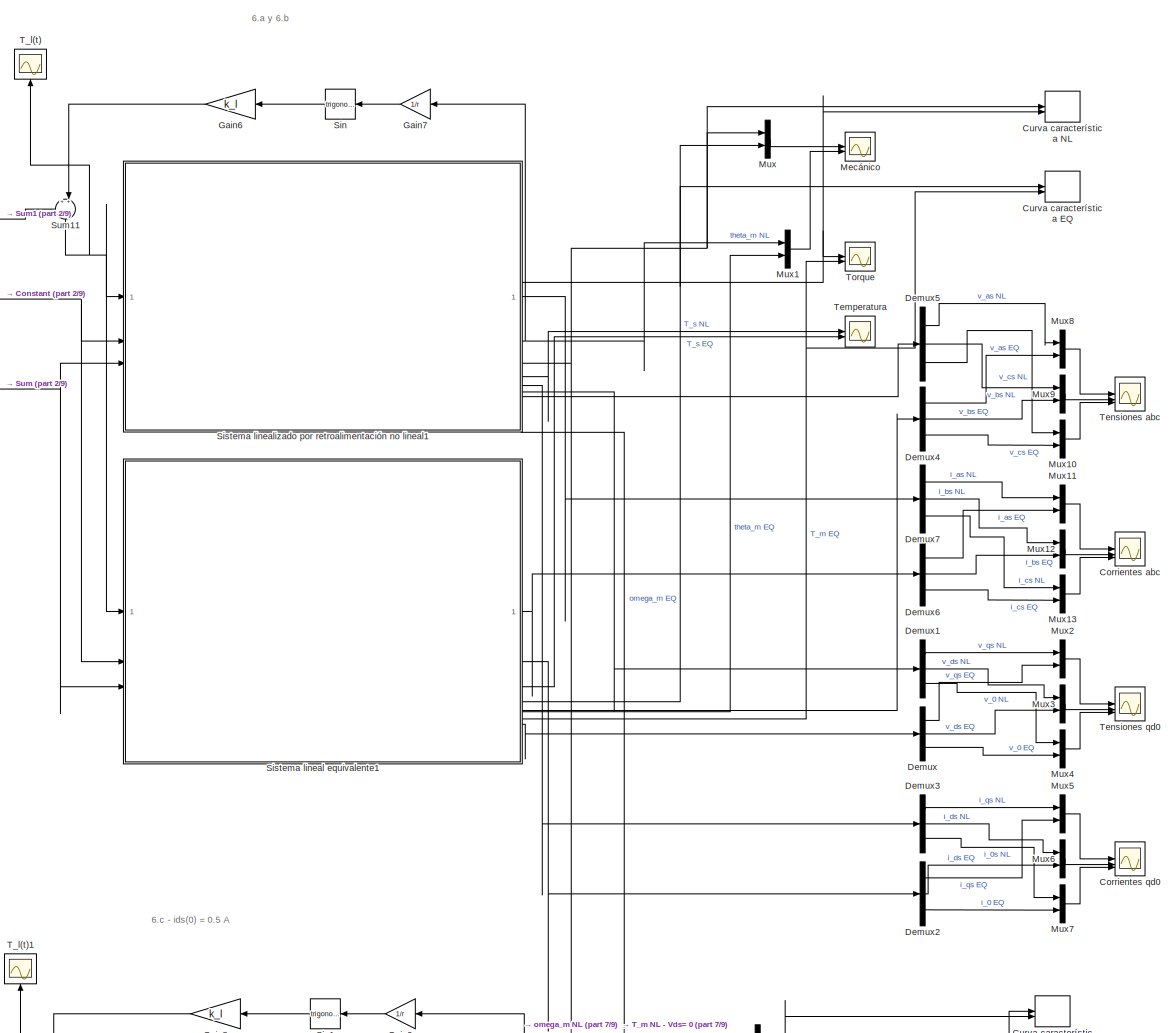
[diagram: root canvas - part 1/9, top right region]
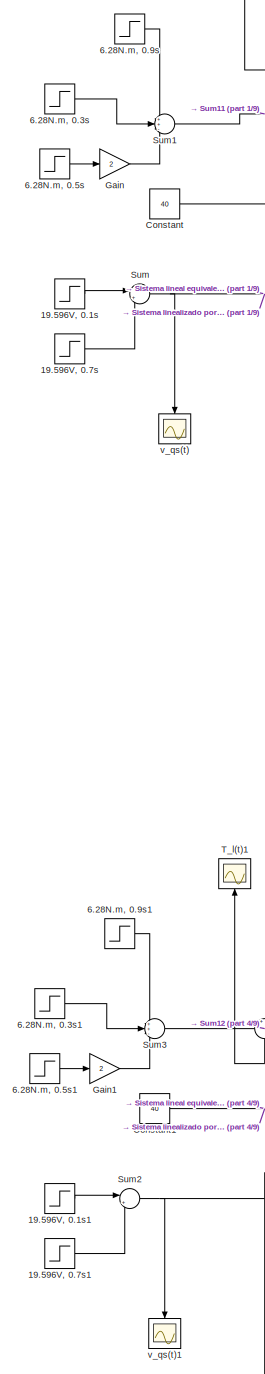
[diagram: root canvas - part 2/9, top center region]
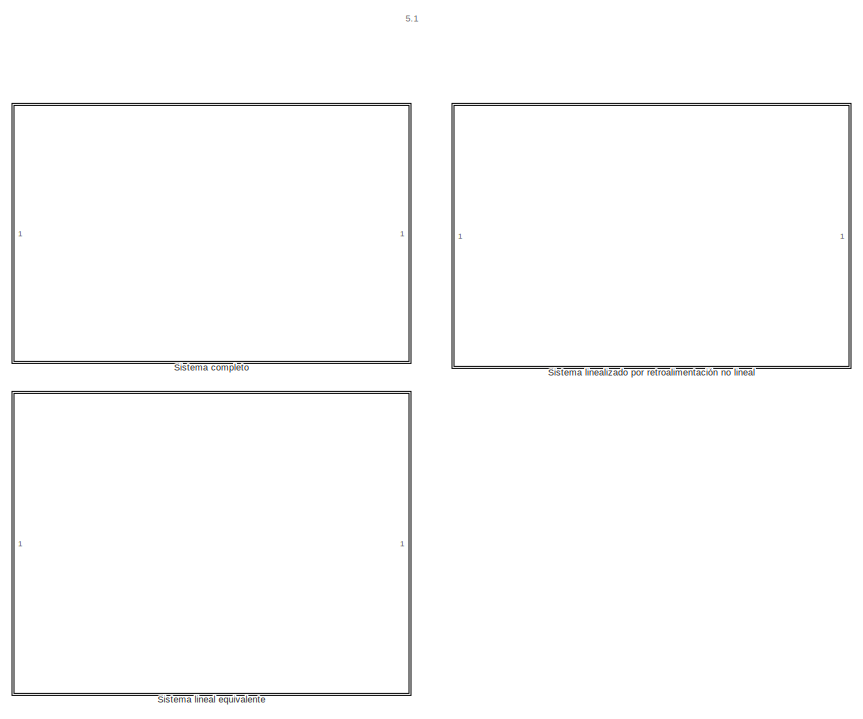
[diagram: root canvas - part 3/9, top left region]
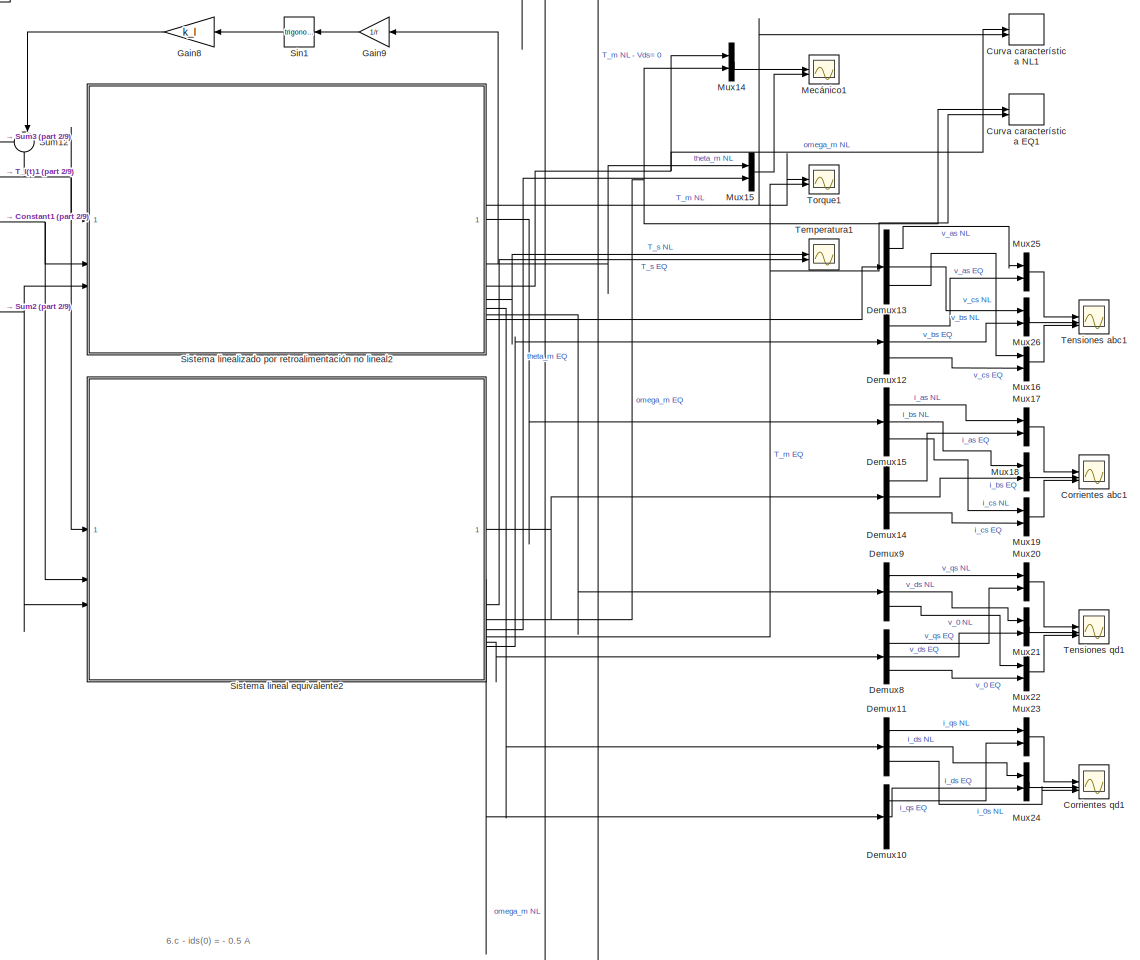
[diagram: root canvas - part 4/9, middle right region]
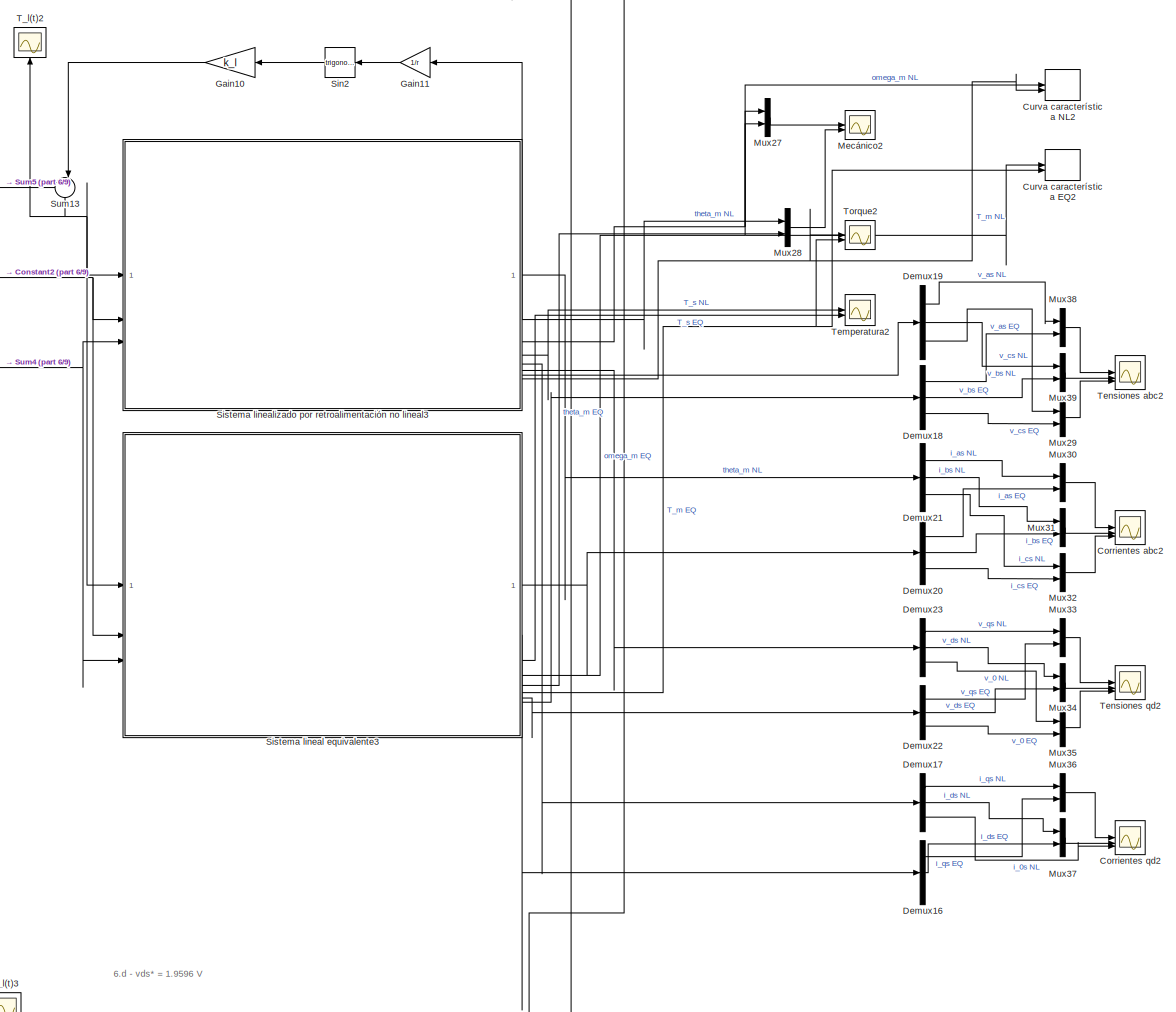
[diagram: root canvas - part 5/9, middle right region]
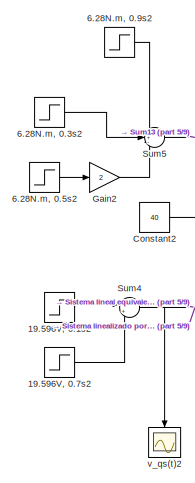
[diagram: root canvas - part 6/9, central region]
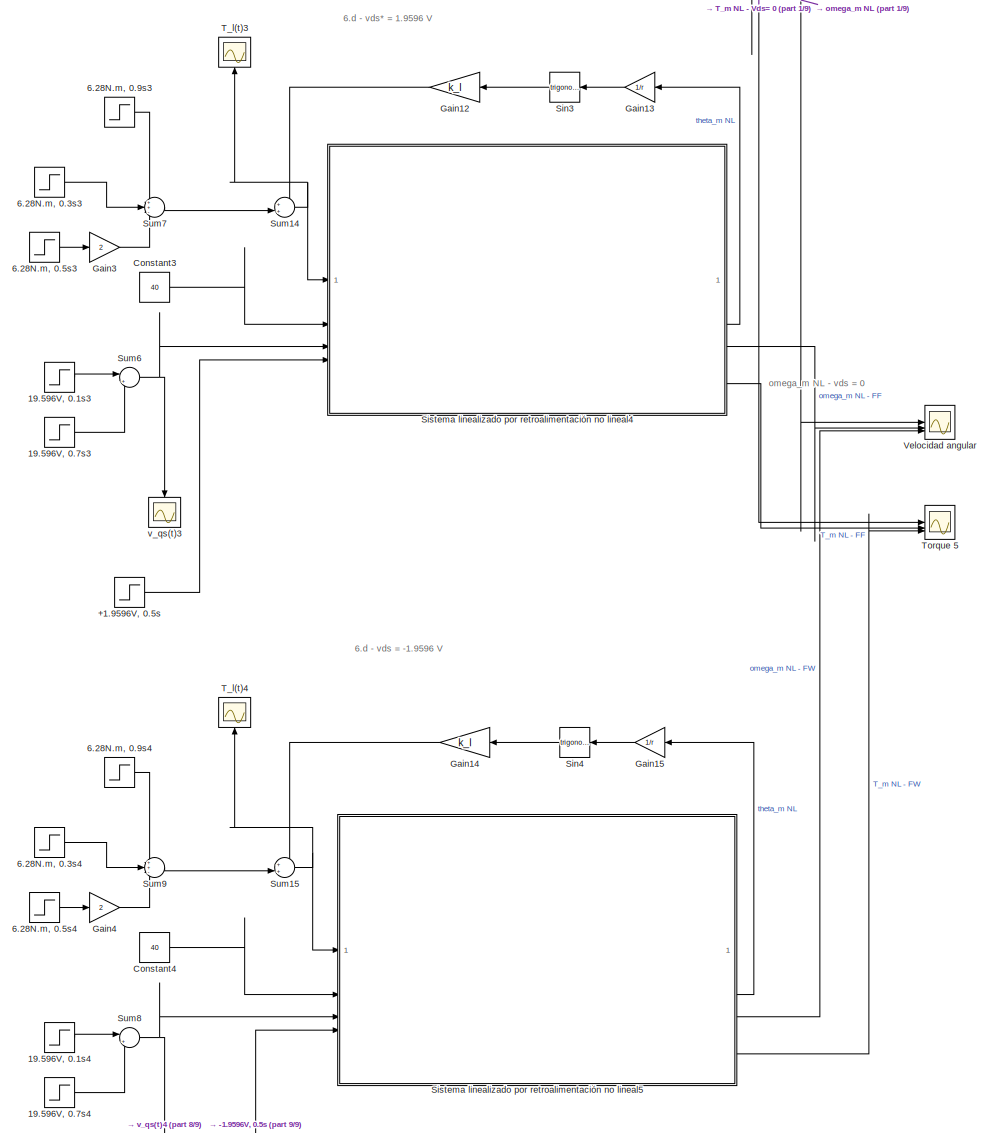
[diagram: root canvas - part 7/9, bottom center region]
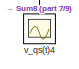
[diagram: root canvas - part 8/9, bottom center region]
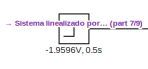
[diagram: root canvas - part 9/9, bottom center region]
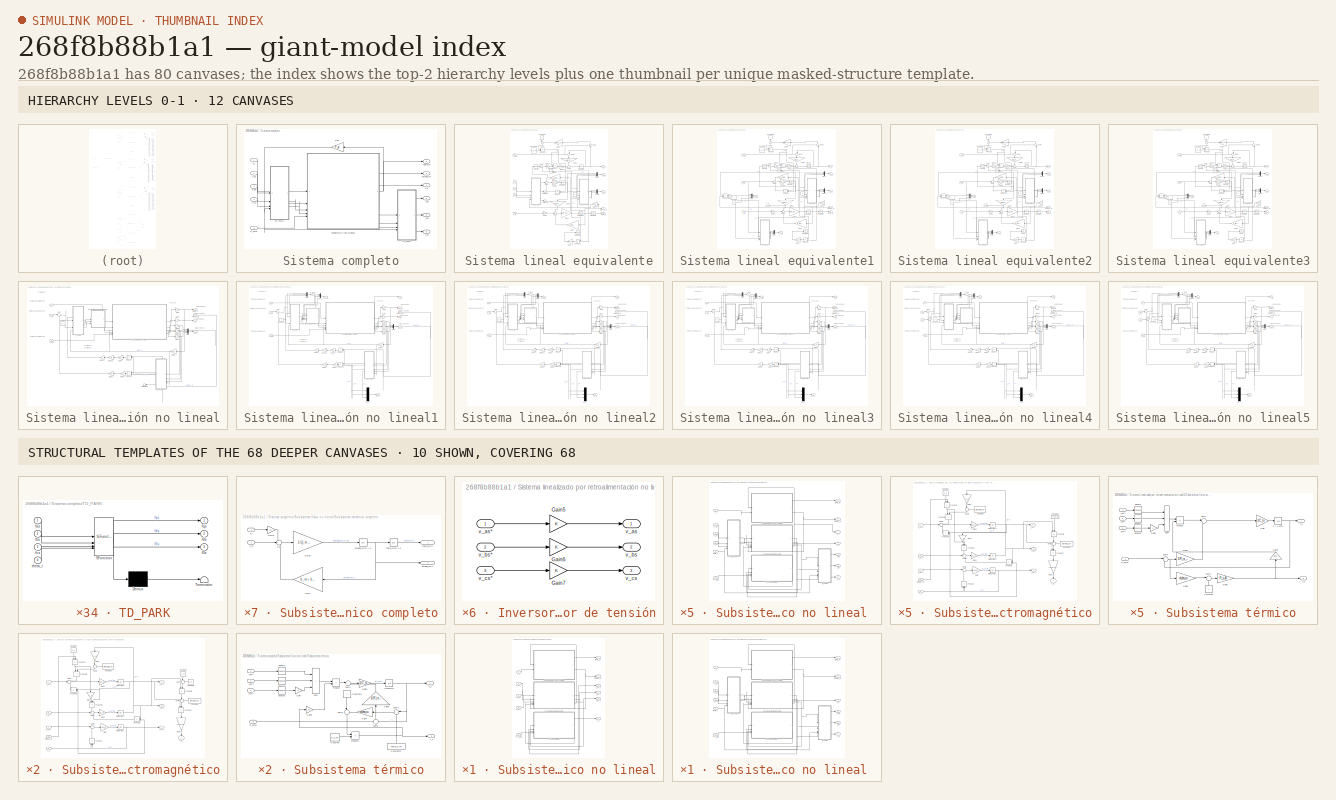
[diagram: thumbnail index - top-2 hierarchy levels (12 canvases) + 10 structural-template representatives of the remaining 68 canvases]
MODEL slx_268f8b88b1a1
KIND model
CONFIG AbsTol = auto
CONFIG EnableMultiTasking = off
CONFIG FixedStep = auto
CONFIG InitFcn = parametros
CONFIG MaxStep = 1e-4
CONFIG MinStep = auto
CONFIG RelTol = 1e-3
CONFIG SampleTimeConstraint = Unconstrained
CONFIG SolverName = VariableStepAuto
CONFIG StartTime = 0.0
CONFIG StopTime = 1
BLOCK [Step] +1.9596V, 0.5s
  After = 1.9596
  SampleTime = 0
  Time = .5
BLOCK [Step] -1.9596V, 0.5s
  After = -1.9596
  SampleTime = 0
  Time = .5
BLOCK [Step] 19.596V, 0.1s
  After = 19.596
  SampleTime = 0
  Time = .1
BLOCK [Step] 19.596V, 0.1s1
  After = 19.596
  SampleTime = 0
  Time = .1
BLOCK [Step] 19.596V, 0.1s2
  After = 19.596
  SampleTime = 0
  Time = .1
BLOCK [Step] 19.596V, 0.1s3
  After = 19.596
  SampleTime = 0
  Time = .1
BLOCK [Step] 19.596V, 0.1s4
  After = 19.596
  SampleTime = 0
  Time = .1
BLOCK [Step] 19.596V, 0.7s
  After = 19.596
  SampleTime = 0
  Time = .7
BLOCK [Step] 19.596V, 0.7s1
  After = 19.596
  SampleTime = 0
  Time = .7
BLOCK [Step] 19.596V, 0.7s2
  After = 19.596
  SampleTime = 0
  Time = .7
BLOCK [Step] 19.596V, 0.7s3
  After = 19.596
  SampleTime = 0
  Time = .7
BLOCK [Step] 19.596V, 0.7s4
  After = 19.596
  SampleTime = 0
  Time = .7
BLOCK [Step] 6.28N.m, 0.3s
  After = 6.28
  SampleTime = 0
  Time = 0.3
BLOCK [Step] 6.28N.m, 0.3s1
  After = 6.28
  SampleTime = 0
  Time = 0.3
BLOCK [Step] 6.28N.m, 0.3s2
  After = 6.28
  SampleTime = 0
  Time = 0.3
BLOCK [Step] 6.28N.m, 0.3s3
  After = 6.28
  SampleTime = 0
  Time = 0.3
BLOCK [Step] 6.28N.m, 0.3s4
  After = 6.28
  SampleTime = 0
  Time = 0.3
BLOCK [Step] 6.28N.m, 0.5s
  After = 6.28
  SampleTime = 0
  Time = .5
BLOCK [Step] 6.28N.m, 0.5s1
  After = 6.28
  SampleTime = 0
  Time = .5
BLOCK [Step] 6.28N.m, 0.5s2
  After = 6.28
  SampleTime = 0
  Time = .5
BLOCK [Step] 6.28N.m, 0.5s3
  After = 6.28
  SampleTime = 0
  Time = .5
BLOCK [Step] 6.28N.m, 0.5s4
  After = 6.28
  SampleTime = 0
  Time = .5
BLOCK [Step] 6.28N.m, 0.9s
  After = 6.28
  SampleTime = 0
  Time = .9
BLOCK [Step] 6.28N.m, 0.9s1
  After = 6.28
  SampleTime = 0
  Time = .9
BLOCK [Step] 6.28N.m, 0.9s2
  After = 6.28
  SampleTime = 0
  Time = .9
BLOCK [Step] 6.28N.m, 0.9s3
  After = 6.28
  SampleTime = 0
  Time = .9
BLOCK [Step] 6.28N.m, 0.9s4
  After = 6.28
  SampleTime = 0
  Time = .9
BLOCK [Constant] Constant
  Value = 40
BLOCK [Constant] Constant1
  Value = 40
BLOCK [Constant] Constant2
  Value = 40
BLOCK [Constant] Constant3
  Value = 40
BLOCK [Constant] Constant4
  Value = 40
BLOCK [Scope] Corrientes abc
  Floating = off
  NumInputPorts = 3
  ScopeSpecificationString = Simulink.scopes.TimeScopeBlockCfg('CurrentConfiguration', extmgr.ConfigurationSet(extmgr.Configuration('Core','General UI',true),extmgr.Configuration('Core','Source UI',true),extmgr.Configuration('Sources','WiredSimulink',true,'DataLoggingVariableName','ScopeData8'),extmgr.Configuration('Visuals','Time Domain',true,'SerializedDisplays',{struct('MinYLimReal','-13.63396','MaxYLimReal','13.25479','YL...<+3020ch>
BLOCK [Scope] Corrientes abc1
  Floating = off
  NumInputPorts = 3
  ScopeSpecificationString = Simulink.scopes.TimeScopeBlockCfg('CurrentConfiguration', extmgr.ConfigurationSet(extmgr.Configuration('Core','General UI',true),extmgr.Configuration('Core','Source UI',true),extmgr.Configuration('Sources','WiredSimulink',true,'DataLoggingVariableName','ScopeData9'),extmgr.Configuration('Visuals','Time Domain',true,'SerializedDisplays',{struct('MinYLimReal','-13.63401','MaxYLimReal','13.25476','YL...<+3025ch>
BLOCK [Scope] Corrientes abc2
  Floating = off
  NumInputPorts = 3
  ScopeSpecificationString = Simulink.scopes.TimeScopeBlockCfg('CurrentConfiguration', extmgr.ConfigurationSet(extmgr.Configuration('Core','General UI',true),extmgr.Configuration('Core','Source UI',true),extmgr.Configuration('Sources','WiredSimulink',true,'DataLoggingVariableName','ScopeData18'),extmgr.Configuration('Visuals','Time Domain',true,'SerializedDisplays',{struct('MinYLimReal','-13.82007','MaxYLimReal','13.27538','Y...<+3022ch>
BLOCK [Scope] Corrientes qd0
  Floating = off
  NumInputPorts = 3
  ScopeSpecificationString = Simulink.scopes.TimeScopeBlockCfg('CurrentConfiguration', extmgr.ConfigurationSet(extmgr.Configuration('Core','General UI',true),extmgr.Configuration('Core','Source UI',true),extmgr.Configuration('Sources','WiredSimulink',true,'DataLoggingVariableName','ScopeData4'),extmgr.Configuration('Visuals','Time Domain',true,'SerializedDisplays',{struct('MinYLimReal','-13.10692','MaxYLimReal','3.97511','YLa...<+3454ch>
BLOCK [Scope] Corrientes qd1
  Floating = off
  NumInputPorts = 3
  ScopeSpecificationString = Simulink.scopes.TimeScopeBlockCfg('CurrentConfiguration', extmgr.ConfigurationSet(extmgr.Configuration('Core','General UI',true),extmgr.Configuration('Core','Source UI',true),extmgr.Configuration('Sources','WiredSimulink',true,'DataLoggingVariableName','ScopeData10'),extmgr.Configuration('Visuals','Time Domain',true,'SerializedDisplays',{struct('MinYLimReal','-13.95819','MaxYLimReal','13.3111','YL...<+3031ch>
BLOCK [Scope] Corrientes qd2
  Floating = off
  NumInputPorts = 3
  ScopeSpecificationString = Simulink.scopes.TimeScopeBlockCfg('CurrentConfiguration', extmgr.ConfigurationSet(extmgr.Configuration('Core','General UI',true),extmgr.Configuration('Core','Source UI',true),extmgr.Configuration('Sources','WiredSimulink',true,'DataLoggingVariableName','ScopeData19'),extmgr.Configuration('Visuals','Time Domain',true,'SerializedDisplays',{struct('MinYLimReal','-13.66618','MaxYLimReal','13.27874','Y...<+3112ch>
BLOCK [Record] Curva característica EQ
  CompatibilityTag = XY
  FileSettingsInternal = {"entries":[{"content":{"excelSettings":{"content":{},"type":"Streamout.ExcelSettings"}},"type":"Streamout.FileSettingStorage","uuid":""}],"packageUris":["http:\/\/schema.mathworks.com\/mf0\/streamout_blocks\/R2020a"],"version":"1.0"}  <repeated x6 — deduplicated; at blocks: Curva característica EQ, Curva característica EQ1, Curva característica EQ2, Curva característica NL, Curva característica NL1, Curva característica NL2>
  Layout = [1 1]
  SignalsInternal = {"entries":[{"content":{"signals":[{"content":{"blockPath":[],"dimensions":[1],"domain":"","lineColor":"#0072bd","lineWidth":2,"plots":[ 1 ],"port":1,"signalID":1,"signalName":"omega_m EQ"},"type":"RecordBlkView.Signal","uuid":""},{"content":{"blockPath":[],"dimensions":[1],"domain":"","lineColor":"#d95319","lineWidth":2,"plots":[ 1 ],"port":2,"signalID":2,"signalName":"T_m EQ"},"type":"RecordBlkV...<+168ch>
  VisualizationBindings = {"xyplotplugin":{"info":[{"series":[{"bindingParametersList":[{"parameter":"X-Axis","signalID":1,"signalName":"omega_m EQ"},{"parameter":"Y-Axis","signalID":2,"signalName":"T_m EQ"}],"seriesID":0}],"subplotID":1}]}}
BLOCK [Record] Curva característica EQ1
  CompatibilityTag = XY
  Layout = [1 1]
  SignalsInternal = {"entries":[{"content":{"signals":[{"content":{"blockPath":[],"dimensions":[1],"domain":"","lineColor":"#77ac30","lineWidth":2,"port":1,"signalID":1,"signalName":"omega_m EQ"},"type":"RecordBlkView.Signal","uuid":""},{"content":{"blockPath":[],"dimensions":[1],"domain":"","lineColor":"#4dbeee","lineWidth":2,"port":2,"signalID":2,"signalName":"T_m EQ"},"type":"RecordBlkView.Signal","uuid":""}]},"ty...<+140ch>
  VisualizationBindings = {"xyplotplugin":{"info":[{"series":[],"subplotID":1}]}}
BLOCK [Record] Curva característica EQ2
  CompatibilityTag = XY
  Layout = [1 1]
  SignalsInternal = {"entries":[{"content":{"signals":[{"content":{"blockPath":[],"dimensions":[1],"domain":"","lineColor":"#ff6929","lineWidth":2,"port":1,"signalID":1,"signalName":"omega_m EQ"},"type":"RecordBlkView.Signal","uuid":""},{"content":{"blockPath":[],"dimensions":[1],"domain":"","lineColor":"#b746ff","lineWidth":2,"port":2,"signalID":2,"signalName":"T_m EQ"},"type":"RecordBlkView.Signal","uuid":""}]},"ty...<+140ch>
  VisualizationBindings = {"xyplotplugin":{"info":[{"series":[],"subplotID":1}]}}
BLOCK [Record] Curva característica NL
  CompatibilityTag = XY
  Layout = [1 1]
  SignalsInternal = {"entries":[{"content":{"signals":[{"content":{"blockPath":[],"dimensions":[1],"domain":"","lineColor":"#edb120","lineWidth":2,"plots":[ 1 ],"port":1,"signalID":1,"signalName":"omega_m NL"},"type":"RecordBlkView.Signal","uuid":""},{"content":{"blockPath":[],"dimensions":[1],"domain":"","lineColor":"#7e2f8e","lineWidth":2,"plots":[ 1 ],"port":2,"signalID":2,"signalName":"T_m NL - Vds= 0"},"type":"R...<+177ch>
  VisualizationBindings = {"xyplotplugin":{"info":[{"series":[{"bindingParametersList":[{"parameter":"X-Axis","signalID":1,"signalName":"omega_m NL"},{"parameter":"Y-Axis","signalID":2,"signalName":"T_m NL - Vds= 0"}],"seriesID":0}],"subplotID":1}]}}
BLOCK [Record] Curva característica NL1
  CompatibilityTag = XY
  Layout = [1 1]
  SignalsInternal = {"entries":[{"content":{"signals":[{"content":{"blockPath":[],"dimensions":[1],"domain":"","lineColor":"#a2142f","lineWidth":2,"plots":[ 1 ],"port":1,"signalID":1,"signalName":"omega_m NL"},"type":"RecordBlkView.Signal","uuid":""},{"content":{"blockPath":[],"dimensions":[1],"domain":"","lineColor":"#139fff","lineWidth":2,"plots":[ 1 ],"port":2,"signalID":2,"signalName":"T_m NL"},"type":"RecordBlkV...<+168ch>
  VisualizationBindings = {"xyplotplugin":{"info":[{"series":[{"bindingParametersList":[{"parameter":"X-Axis","signalID":1,"signalName":"omega_m NL"},{"parameter":"Y-Axis","signalID":2,"signalName":"T_m NL"}],"seriesID":0}],"subplotID":1}]}}
BLOCK [Record] Curva característica NL2
  CompatibilityTag = XY
  Layout = [1 1]
  SignalsInternal = {"entries":[{"content":{"signals":[{"content":{"blockPath":[],"dimensions":[1],"domain":"","lineColor":"#64d413","lineWidth":2,"port":1,"signalID":1,"signalName":"omega_m NL"},"type":"RecordBlkView.Signal","uuid":""},{"content":{"blockPath":[],"dimensions":[1],"domain":"","lineColor":"#ff13a6","lineWidth":2,"port":2,"signalID":2,"signalName":"T_m NL"},"type":"RecordBlkView.Signal","uuid":""}]},"ty...<+140ch>
  VisualizationBindings = {"xyplotplugin":{"info":[{"series":[],"subplotID":1}]}}
BLOCK [Demux] Demux
  Outputs = 3
BLOCK [Demux] Demux1
  Outputs = 3
BLOCK [Demux] Demux10
  Outputs = 3
BLOCK [Demux] Demux11
  Outputs = 3
BLOCK [Demux] Demux12
  Outputs = 3
BLOCK [Demux] Demux13
  Outputs = 3
BLOCK [Demux] Demux14
  Outputs = 3
BLOCK [Demux] Demux15
  Outputs = 3
BLOCK [Demux] Demux16
  Outputs = 3
BLOCK [Demux] Demux17
  Outputs = 3
BLOCK [Demux] Demux18
  Outputs = 3
BLOCK [Demux] Demux19
  Outputs = 3
BLOCK [Demux] Demux2
  Outputs = 3
BLOCK [Demux] Demux20
  Outputs = 3
BLOCK [Demux] Demux21
  Outputs = 3
BLOCK [Demux] Demux22
  Outputs = 3
BLOCK [Demux] Demux23
  Outputs = 3
BLOCK [Demux] Demux3
  Outputs = 3
BLOCK [Demux] Demux4
  Outputs = 3
BLOCK [Demux] Demux5
  Outputs = 3
BLOCK [Demux] Demux6
  Outputs = 3
BLOCK [Demux] Demux7
  Outputs = 3
BLOCK [Demux] Demux8
  Outputs = 3
BLOCK [Demux] Demux9
  Outputs = 3
BLOCK [Gain] Gain
  Gain = 2
BLOCK [Gain] Gain1
  Gain = 2
BLOCK [Gain] Gain10
  Gain = k_l
  NameLocation = top
BLOCK [Gain] Gain11
  Gain = 1/r
  NameLocation = top
BLOCK [Gain] Gain12
  Gain = k_l
  NameLocation = top
BLOCK [Gain] Gain13
  Gain = 1/r
  NameLocation = top
BLOCK [Gain] Gain14
  Gain = k_l
  NameLocation = top
BLOCK [Gain] Gain15
  Gain = 1/r
  NameLocation = top
BLOCK [Gain] Gain2
  Gain = 2
BLOCK [Gain] Gain3
  Gain = 2
BLOCK [Gain] Gain4
  Gain = 2
BLOCK [Gain] Gain6
  Gain = k_l
  NameLocation = top
BLOCK [Gain] Gain7
  Gain = 1/r
  NameLocation = top
BLOCK [Gain] Gain8
  Gain = k_l
  NameLocation = top
BLOCK [Gain] Gain9
  Gain = 1/r
  NameLocation = top
BLOCK [Scope] Mecánico
  Floating = off
  NumInputPorts = 2
  ScopeSpecificationString = Simulink.scopes.TimeScopeBlockCfg('CurrentConfiguration', extmgr.ConfigurationSet(extmgr.Configuration('Core','General UI',true),extmgr.Configuration('Core','Source UI',true),extmgr.Configuration('Sources','WiredSimulink',true),extmgr.Configuration('Visuals','Time Domain',true,'SerializedDisplays',{struct('MinYLimReal','-121.91134','MaxYLimReal','535.49206','YLabelReal','','MinYLimMag',' 0.00000',...<+2313ch>
BLOCK [Scope] Mecánico1
  Floating = off
  NumInputPorts = 2
  ScopeSpecificationString = Simulink.scopes.TimeScopeBlockCfg('CurrentConfiguration', extmgr.ConfigurationSet(extmgr.Configuration('Core','General UI',true),extmgr.Configuration('Core','Source UI',true),extmgr.Configuration('Sources','WiredSimulink',true,'DataLoggingVariableName','ScopeData11'),extmgr.Configuration('Visuals','Time Domain',true,'SerializedDisplays',{struct('MinYLimReal','404.07604','MaxYLimReal','404.08289','...<+2655ch>
BLOCK [Scope] Mecánico2
  Floating = off
  NumInputPorts = 2
  ScopeSpecificationString = Simulink.scopes.TimeScopeBlockCfg('CurrentConfiguration', extmgr.ConfigurationSet(extmgr.Configuration('Core','General UI',true),extmgr.Configuration('Core','Source UI',true),extmgr.Configuration('Sources','WiredSimulink',true,'DataLoggingVariableName','ScopeData20'),extmgr.Configuration('Visuals','Time Domain',true,'SerializedDisplays',{struct('MinYLimReal','404.07604','MaxYLimReal','404.08289','...<+2655ch>
BLOCK [Mux] Mux
  DisplayOption = bar
  Inputs = 2
BLOCK [Mux] Mux1
  DisplayOption = bar
  Inputs = 2
BLOCK [Mux] Mux10
  DisplayOption = bar
  Inputs = 2
BLOCK [Mux] Mux11
  DisplayOption = bar
  Inputs = 2
BLOCK [Mux] Mux12
  DisplayOption = bar
  Inputs = 2
BLOCK [Mux] Mux13
  DisplayOption = bar
  Inputs = 2
BLOCK [Mux] Mux14
  DisplayOption = bar
  Inputs = 2
BLOCK [Mux] Mux15
  DisplayOption = bar
  Inputs = 2
BLOCK [Mux] Mux16
  DisplayOption = bar
  Inputs = 2
BLOCK [Mux] Mux17
  DisplayOption = bar
  Inputs = 2
BLOCK [Mux] Mux18
  DisplayOption = bar
  Inputs = 2
BLOCK [Mux] Mux19
  DisplayOption = bar
  Inputs = 2
BLOCK [Mux] Mux2
  DisplayOption = bar
  Inputs = 2
BLOCK [Mux] Mux20
  DisplayOption = bar
  Inputs = 2
BLOCK [Mux] Mux21
  DisplayOption = bar
  Inputs = 2
BLOCK [Mux] Mux22
  DisplayOption = bar
  Inputs = 2
BLOCK [Mux] Mux23
  DisplayOption = bar
  Inputs = 2
BLOCK [Mux] Mux24
  DisplayOption = bar
  Inputs = 2
BLOCK [Mux] Mux25
  DisplayOption = bar
  Inputs = 2
BLOCK [Mux] Mux26
  DisplayOption = bar
  Inputs = 2
BLOCK [Mux] Mux27
  DisplayOption = bar
  Inputs = 2
BLOCK [Mux] Mux28
  DisplayOption = bar
  Inputs = 2
BLOCK [Mux] Mux29
  DisplayOption = bar
  Inputs = 2
BLOCK [Mux] Mux3
  DisplayOption = bar
  Inputs = 2
BLOCK [Mux] Mux30
  DisplayOption = bar
  Inputs = 2
BLOCK [Mux] Mux31
  DisplayOption = bar
  Inputs = 2
BLOCK [Mux] Mux32
  DisplayOption = bar
  Inputs = 2
BLOCK [Mux] Mux33
  DisplayOption = bar
  Inputs = 2
BLOCK [Mux] Mux34
  DisplayOption = bar
  Inputs = 2
BLOCK [Mux] Mux35
  DisplayOption = bar
  Inputs = 2
BLOCK [Mux] Mux36
  DisplayOption = bar
  Inputs = 2
BLOCK [Mux] Mux37
  DisplayOption = bar
  Inputs = 2
BLOCK [Mux] Mux38
  DisplayOption = bar
  Inputs = 2
BLOCK [Mux] Mux39
  DisplayOption = bar
  Inputs = 2
BLOCK [Mux] Mux4
  DisplayOption = bar
  Inputs = 2
BLOCK [Mux] Mux5
  DisplayOption = bar
  Inputs = 2
BLOCK [Mux] Mux6
  DisplayOption = bar
  Inputs = 2
BLOCK [Mux] Mux7
  DisplayOption = bar
  Inputs = 2
BLOCK [Mux] Mux8
  DisplayOption = bar
  Inputs = 2
BLOCK [Mux] Mux9
  DisplayOption = bar
  Inputs = 2
BLOCK [Trigonometry] Sin
  NameLocation = top
BLOCK [Trigonometry] Sin1
  NameLocation = top
BLOCK [Trigonometry] Sin2
  NameLocation = top
BLOCK [Trigonometry] Sin3
  NameLocation = top
BLOCK [Trigonometry] Sin4
  NameLocation = top
BLOCK [SubSystem] Sistema completo
BLOCK [Gain] Sistema completo/Gain
  Gain = P_p
  NameLocation = top
BLOCK [SubSystem] Sistema completo/Subsistema físico no lineal
BLOCK [SubSystem] Sistema completo/Subsistema físico no lineal/Subsistema electromagnético
BLOCK [Constant] Sistema completo/Subsistema físico no lineal/Subsistema electromagnético/Constant
  NameLocation = left
  Value = P_p
BLOCK [Constant] Sistema completo/Subsistema físico no lineal/Subsistema electromagnético/Constant1
  NameLocation = top
  Value = lambda_m
BLOCK [Constant] Sistema completo/Subsistema físico no lineal/Subsistema electromagnético/Constant2
  NameLocation = left
  Value = L_d
BLOCK [Constant] Sistema completo/Subsistema físico no lineal/Subsistema electromagnético/Constant3
  NameLocation = top
  Value = L_q
BLOCK [Constant] Sistema completo/Subsistema físico no lineal/Subsistema electromagnético/Constant4
  NameLocation = top
  Value = lambda_m
BLOCK [Gain] Sistema completo/Subsistema físico no lineal/Subsistema electromagnético/Gain
  Gain = 1/L_ls
BLOCK [Gain] Sistema completo/Subsistema físico no lineal/Subsistema electromagnético/Gain1
  Gain = 1/L_d
BLOCK [Gain] Sistema completo/Subsistema físico no lineal/Subsistema electromagnético/Gain2
  Gain = 1/L_q
BLOCK [Gain] Sistema completo/Subsistema físico no lineal/Subsistema electromagnético/Gain3
  Gain = L_d
  NameLocation = left
BLOCK [Gain] Sistema completo/Subsistema físico no lineal/Subsistema electromagnético/Gain4
  Gain = L_q
  NameLocation = left
BLOCK [Gain] Sistema completo/Subsistema físico no lineal/Subsistema electromagnético/Gain5
  Gain = (3/2)*P_p
  NameLocation = left
BLOCK [Integrator] Sistema completo/Subsistema físico no lineal/Subsistema electromagnético/Integrator1
BLOCK [Integrator] Sistema completo/Subsistema físico no lineal/Subsistema electromagnético/Integrator2
BLOCK [Integrator] Sistema completo/Subsistema físico no lineal/Subsistema electromagnético/Integrator3
BLOCK [Product] Sistema completo/Subsistema físico no lineal/Subsistema electromagnético/Product
  NameLocation = right
BLOCK [Product] Sistema completo/Subsistema físico no lineal/Subsistema electromagnético/Product1
  NameLocation = left
BLOCK [Product] Sistema completo/Subsistema físico no lineal/Subsistema electromagnético/Product2
  NameLocation = top
BLOCK [Product] Sistema completo/Subsistema físico no lineal/Subsistema electromagnético/Product3
  NameLocation = top
BLOCK [Product] Sistema completo/Subsistema físico no lineal/Subsistema electromagnético/Product4
  NameLocation = left
BLOCK [Product] Sistema completo/Subsistema físico no lineal/Subsistema electromagnético/Product5
  NameLocation = left
BLOCK [Product] Sistema completo/Subsistema físico no lineal/Subsistema electromagnético/Product6
  NameLocation = left
BLOCK [Product] Sistema completo/Subsistema físico no lineal/Subsistema electromagnético/Product7
  NameLocation = left
BLOCK [Sum] Sistema completo/Subsistema físico no lineal/Subsistema electromagnético/Sum
  Inputs = |+-
  NameLocation = left
BLOCK [Sum] Sistema completo/Subsistema físico no lineal/Subsistema electromagnético/Sum1
  Inputs = |+-
BLOCK [Sum] Sistema completo/Subsistema físico no lineal/Subsistema electromagnético/Sum2
  Inputs = ++-
BLOCK [Sum] Sistema completo/Subsistema físico no lineal/Subsistema electromagnético/Sum3
  Inputs = -+-
BLOCK [Sum] Sistema completo/Subsistema físico no lineal/Subsistema electromagnético/Sum4
  Inputs = |++
  NameLocation = left
BLOCK [Sum] Sistema completo/Subsistema físico no lineal/Subsistema electromagnético/Sum5
  Inputs = |++
  NameLocation = left
BLOCK [Outport] Sistema completo/Subsistema físico no lineal/Subsistema electromagnético/T_m
  NameLocation = left
  Port = 4
BLOCK [Outport] Sistema completo/Subsistema físico no lineal/Subsistema electromagnético/i_0s^r
BLOCK [Outport] Sistema completo/Subsistema físico no lineal/Subsistema electromagnético/i_ds^r
  Port = 2
BLOCK [Outport] Sistema completo/Subsistema físico no lineal/Subsistema electromagnético/i_qs^r
  Port = 3
BLOCK [Inport] Sistema completo/Subsistema físico no lineal/Subsistema electromagnético/omega_m
  Port = 4
BLOCK [Inport] Sistema completo/Subsistema físico no lineal/Subsistema electromagnético/r_s
  Port = 5
BLOCK [Inport] Sistema completo/Subsistema físico no lineal/Subsistema electromagnético/v_0s^r
  Port = 3
BLOCK [Inport] Sistema completo/Subsistema físico no lineal/Subsistema electromagnético/v_ds^r
  Port = 2
BLOCK [Inport] Sistema completo/Subsistema físico no lineal/Subsistema electromagnético/v_qs^r
BLOCK [SubSystem] Sistema completo/Subsistema físico no lineal/Subsistema mecánico completo
BLOCK [Gain] Sistema completo/Subsistema físico no lineal/Subsistema mecánico completo/Gain
  Gain = b_m + b_l / (r^2)
  NameLocation = top
BLOCK [Gain] Sistema completo/Subsistema físico no lineal/Subsistema mecánico completo/Gain1
  Gain = 1/r
BLOCK [Gain] Sistema completo/Subsistema físico no lineal/Subsistema mecánico completo/Gain2
  Gain = 1/(J_m + J_l / r^2)
BLOCK [Sum] Sistema completo/Subsistema físico no lineal/Subsistema mecánico completo/Sum
  Inputs = -+-
BLOCK [Inport] Sistema completo/Subsistema físico no lineal/Subsistema mecánico completo/T_l
  Port = 2
BLOCK [Inport] Sistema completo/Subsistema físico no lineal/Subsistema mecánico completo/T_m
BLOCK [Integrator] Sistema completo/Subsistema físico no lineal/Subsistema mecánico completo/omega_m(0) = 0
BLOCK [Outport] Sistema completo/Subsistema físico no lineal/Subsistema mecánico completo/omega_m(t)
  Port = 2
BLOCK [Integrator] Sistema completo/Subsistema físico no lineal/Subsistema mecánico completo/theta_m(0) = 0
BLOCK [Outport] Sistema completo/Subsistema físico no lineal/Subsistema mecánico completo/theta_m(t)
BLOCK [SubSystem] Sistema completo/Subsistema físico no lineal/Subsistema térmico
BLOCK [Constant] Sistema completo/Subsistema físico no lineal/Subsistema térmico/Constant
  Value = R_s_40
BLOCK [Constant] Sistema completo/Subsistema físico no lineal/Subsistema térmico/Constant1
  NameLocation = left
BLOCK [Constant] Sistema completo/Subsistema físico no lineal/Subsistema térmico/Constant2
  NameLocation = right
  Value = Temp_s_ref
BLOCK [Gain] Sistema completo/Subsistema físico no lineal/Subsistema térmico/Gain
  Gain = 2
BLOCK [Gain] Sistema completo/Subsistema físico no lineal/Subsistema térmico/Gain1
  Gain = 1.5
BLOCK [Gain] Sistema completo/Subsistema físico no lineal/Subsistema térmico/Gain2
  Gain = 1/C_ts
BLOCK [Gain] Sistema completo/Subsistema físico no lineal/Subsistema térmico/Gain3
  Gain = 1/(R_ts_amb)
  NameLocation = right
BLOCK [Gain] Sistema completo/Subsistema físico no lineal/Subsistema térmico/Gain4
  Gain = alpha_cu
  NameLocation = top
BLOCK [Integrator] Sistema completo/Subsistema físico no lineal/Subsistema térmico/Integrator
BLOCK [Product] Sistema completo/Subsistema físico no lineal/Subsistema térmico/Product
BLOCK [Product] Sistema completo/Subsistema físico no lineal/Subsistema térmico/Product1
BLOCK [Math] Sistema completo/Subsistema físico no lineal/Subsistema térmico/Square
  Operator = square
BLOCK [Math] Sistema completo/Subsistema físico no lineal/Subsistema térmico/Square1
  Operator = square
BLOCK [Math] Sistema completo/Subsistema físico no lineal/Subsistema térmico/Square2
  Operator = square
BLOCK [Sum] Sistema completo/Subsistema físico no lineal/Subsistema térmico/Sum
  IconShape = rectangular
  Inputs = +++
BLOCK [Sum] Sistema completo/Subsistema físico no lineal/Subsistema térmico/Sum1
  Inputs = |+-
BLOCK [Sum] Sistema completo/Subsistema físico no lineal/Subsistema térmico/Sum2
  Inputs = -+
  NameLocation = right
BLOCK [Sum] Sistema completo/Subsistema físico no lineal/Subsistema térmico/Sum3
  Inputs = |++
  NameLocation = left
BLOCK [Sum] Sistema completo/Subsistema físico no lineal/Subsistema térmico/Sum4
  Inputs = |+-
  NameLocation = top
BLOCK [Outport] Sistema completo/Subsistema físico no lineal/Subsistema térmico/T_s
BLOCK [Inport] Sistema completo/Subsistema físico no lineal/Subsistema térmico/Tº_amb
  Port = 4
BLOCK [Inport] Sistema completo/Subsistema físico no lineal/Subsistema térmico/i_0s^r
  Port = 3
BLOCK [Inport] Sistema completo/Subsistema físico no lineal/Subsistema térmico/i_ds^r
  Port = 2
BLOCK [Inport] Sistema completo/Subsistema físico no lineal/Subsistema térmico/i_qs^r
BLOCK [Outport] Sistema completo/Subsistema físico no lineal/Subsistema térmico/r_s
  Port = 2
BLOCK [Inport] Sistema completo/Subsistema físico no lineal/T_l
BLOCK [Outport] Sistema completo/Subsistema físico no lineal/T_s
  Port = 3
BLOCK [Inport] Sistema completo/Subsistema físico no lineal/Tº_amb
  Port = 5
BLOCK [Outport] Sistema completo/Subsistema físico no lineal/i_0s^r
  Port = 6
BLOCK [Outport] Sistema completo/Subsistema físico no lineal/i_ds^r
  Port = 5
BLOCK [Outport] Sistema completo/Subsistema físico no lineal/i_qs^r
  Port = 4
BLOCK [Outport] Sistema completo/Subsistema físico no lineal/omega_m
  Port = 2
BLOCK [Outport] Sistema completo/Subsistema físico no lineal/theta_m
BLOCK [Inport] Sistema completo/Subsistema físico no lineal/v_0s^r
  Port = 4
BLOCK [Inport] Sistema completo/Subsistema físico no lineal/v_ds^r
  Port = 3
BLOCK [Inport] Sistema completo/Subsistema físico no lineal/v_qs^r
  Port = 2
BLOCK [SubSystem] Sistema completo/TD_PARK
  ErrorFcn = Stateflow.Translate.translate
  LibrarySourceBlock = simulink/User-Defined\nFunctions/MATLAB Function
  PermitHierarchicalResolution = ExplicitOnly
  SFBlockType = MATLAB Function
  TreatAsAtomicUnit = on
BLOCK [Demux] Sistema completo/TD_PARK/ Demux 
  Outputs = 1
BLOCK [S-Function] Sistema completo/TD_PARK/ SFunction 
  EnableBusSupport = on
  FunctionName = sf_sfun
  PortCounts = [4 4]
  SFcnIsStateOwnerBlock = off
  SFunctionDeploymentMode = off
  Tag = Stateflow S-Function 2
BLOCK [Terminator] Sistema completo/TD_PARK/ Terminator 
BLOCK [Outport] Sistema completo/TD_PARK/f0s
  Port = 3
BLOCK [Inport] Sistema completo/TD_PARK/fas
BLOCK [Inport] Sistema completo/TD_PARK/fbs
  Port = 2
BLOCK [Inport] Sistema completo/TD_PARK/fcs
  Port = 3
BLOCK [Outport] Sistema completo/TD_PARK/fds
  Port = 2
BLOCK [Outport] Sistema completo/TD_PARK/fqs
BLOCK [Inport] Sistema completo/TD_PARK/theta_r
  Port = 4
BLOCK [SubSystem] Sistema completo/TI_PARK
  ErrorFcn = Stateflow.Translate.translate
  LibrarySourceBlock = simulink/User-Defined\nFunctions/MATLAB Function
  PermitHierarchicalResolution = ExplicitOnly
  SFBlockType = MATLAB Function
  TreatAsAtomicUnit = on
BLOCK [Demux] Sistema completo/TI_PARK/ Demux 
  Outputs = 1
BLOCK [S-Function] Sistema completo/TI_PARK/ SFunction 
  EnableBusSupport = on
  FunctionName = sf_sfun
  PortCounts = [4 4]
  SFcnIsStateOwnerBlock = off
  SFunctionDeploymentMode = off
  Tag = Stateflow S-Function 1
BLOCK [Terminator] Sistema completo/TI_PARK/ Terminator 
BLOCK [Inport] Sistema completo/TI_PARK/f0s
  Port = 3
BLOCK [Outport] Sistema completo/TI_PARK/fas
BLOCK [Outport] Sistema completo/TI_PARK/fbs
  Port = 2
BLOCK [Outport] Sistema completo/TI_PARK/fcs
  Port = 3
BLOCK [Inport] Sistema completo/TI_PARK/fds
  Port = 2
BLOCK [Inport] Sistema completo/TI_PARK/fqs
BLOCK [Inport] Sistema completo/TI_PARK/theta_r
  Port = 4
BLOCK [Inport] Sistema completo/T_l
BLOCK [Outport] Sistema completo/T_s
  NameLocation = top
  Port = 3
BLOCK [Inport] Sistema completo/Tº_amb
  Port = 5
BLOCK [Outport] Sistema completo/i_as
  Port = 4
BLOCK [Outport] Sistema completo/i_bs
  Port = 5
BLOCK [Outport] Sistema completo/i_cs
  Port = 6
BLOCK [Outport] Sistema completo/omega_m
  Port = 2
BLOCK [Outport] Sistema completo/theta_m
BLOCK [Inport] Sistema completo/v_as
  Port = 2
BLOCK [Inport] Sistema completo/v_bs
  Port = 3
BLOCK [Inport] Sistema completo/v_cs
  Port = 4
BLOCK [SubSystem] Sistema lineal equivalente
BLOCK [Constant] Sistema lineal equivalente/Constant1
  Value = 0
BLOCK [Constant] Sistema lineal equivalente/Constant2
  Value = R_s_40
BLOCK [Constant] Sistema lineal equivalente/Constant3
  NameLocation = left
BLOCK [Gain] Sistema lineal equivalente/Gain
  Gain = -1/L_d
  NameLocation = top
BLOCK [Gain] Sistema lineal equivalente/Gain1
  Gain = b_l/r^2 + b_m
  NameLocation = top
BLOCK [Gain] Sistema lineal equivalente/Gain10
  Gain = 3/2
BLOCK [Gain] Sistema lineal equivalente/Gain11
  Gain = 1/C_ts
BLOCK [Gain] Sistema lineal equivalente/Gain2
  Gain = 1/r
BLOCK [Gain] Sistema lineal equivalente/Gain3
  Gain = (3/2)*P_p*lambda_m
  NameLocation = left
BLOCK [Gain] Sistema lineal equivalente/Gain4
  Gain = 1/(J_m+J_l/r^2)
BLOCK [Gain] Sistema lineal equivalente/Gain5
  Gain = alpha_cu
  NameLocation = top
BLOCK [Gain] Sistema lineal equivalente/Gain6
  Gain = 1/(C_ts*R_ts_amb)
  NameLocation = left
BLOCK [Gain] Sistema lineal equivalente/Gain7
  Gain = P_p*lambda_m
  NameLocation = top
BLOCK [Gain] Sistema lineal equivalente/Gain8
  Gain = 1/L_q
BLOCK [Gain] Sistema lineal equivalente/Gain9
  Gain = P_p
  NameLocation = top
BLOCK [Integrator] Sistema lineal equivalente/Integrator
BLOCK [Integrator] Sistema lineal equivalente/Integrator1
BLOCK [Integrator] Sistema lineal equivalente/Integrator2
BLOCK [Integrator] Sistema lineal equivalente/Integrator3
BLOCK [Integrator] Sistema lineal equivalente/Integrator4
BLOCK [Mux] Sistema lineal equivalente/Mux1
  DisplayOption = bar
  Inputs = 3
BLOCK [Mux] Sistema lineal equivalente/Mux2
  DisplayOption = bar
  Inputs = 3
BLOCK [Product] Sistema lineal equivalente/Product
BLOCK [Product] Sistema lineal equivalente/Product1
BLOCK [Product] Sistema lineal equivalente/Product2
  NameLocation = top
BLOCK [Product] Sistema lineal equivalente/Product3
  NameLocation = top
BLOCK [Math] Sistema lineal equivalente/Square
  Operator = square
BLOCK [Math] Sistema lineal equivalente/Square1
  NameLocation = top
  Operator = square
BLOCK [Sum] Sistema lineal equivalente/Sum
  Inputs = -+-
BLOCK [Sum] Sistema lineal equivalente/Sum1
  Inputs = +--
BLOCK [Sum] Sistema lineal equivalente/Sum2
  Inputs = -+|
BLOCK [Sum] Sistema lineal equivalente/Sum3
  Inputs = -+|
  NameLocation = left
BLOCK [Sum] Sistema lineal equivalente/Sum4
  Inputs = |++
  NameLocation = left
BLOCK [Sum] Sistema lineal equivalente/Sum5
  Inputs = -+|
  NameLocation = right
BLOCK [Sum] Sistema lineal equivalente/Sum6
  Inputs = |++
BLOCK [SubSystem] Sistema lineal equivalente/TD_PARK
  ErrorFcn = Stateflow.Translate.translate
  LibrarySourceBlock = simulink/User-Defined\nFunctions/MATLAB Function
  PermitHierarchicalResolution = ExplicitOnly
  SFBlockType = MATLAB Function
  TreatAsAtomicUnit = on
BLOCK [Demux] Sistema lineal equivalente/TD_PARK/ Demux 
  Outputs = 1
BLOCK [S-Function] Sistema lineal equivalente/TD_PARK/ SFunction 
  EnableBusSupport = on
  FunctionName = sf_sfun
  PortCounts = [4 4]
  SFcnIsStateOwnerBlock = off
  SFunctionDeploymentMode = off
  Tag = Stateflow S-Function 3
BLOCK [Terminator] Sistema lineal equivalente/TD_PARK/ Terminator 
BLOCK [Outport] Sistema lineal equivalente/TD_PARK/f0s
  Port = 3
BLOCK [Inport] Sistema lineal equivalente/TD_PARK/fas
BLOCK [Inport] Sistema lineal equivalente/TD_PARK/fbs
  Port = 2
BLOCK [Inport] Sistema lineal equivalente/TD_PARK/fcs
  Port = 3
BLOCK [Outport] Sistema lineal equivalente/TD_PARK/fds
  Port = 2
BLOCK [Outport] Sistema lineal equivalente/TD_PARK/fqs
BLOCK [Inport] Sistema lineal equivalente/TD_PARK/theta_r
  Port = 4
BLOCK [SubSystem] Sistema lineal equivalente/TI_PARK
  ErrorFcn = Stateflow.Translate.translate
  LibrarySourceBlock = simulink/User-Defined\nFunctions/MATLAB Function
  PermitHierarchicalResolution = ExplicitOnly
  SFBlockType = MATLAB Function
  TreatAsAtomicUnit = on
BLOCK [Demux] Sistema lineal equivalente/TI_PARK/ Demux 
  Outputs = 1
BLOCK [S-Function] Sistema lineal equivalente/TI_PARK/ SFunction 
  EnableBusSupport = on
  FunctionName = sf_sfun
  PortCounts = [4 4]
  SFcnIsStateOwnerBlock = off
  SFunctionDeploymentMode = off
  Tag = Stateflow S-Function 4
BLOCK [Terminator] Sistema lineal equivalente/TI_PARK/ Terminator 
BLOCK [Inport] Sistema lineal equivalente/TI_PARK/f0s
  Port = 3
BLOCK [Outport] Sistema lineal equivalente/TI_PARK/fas
BLOCK [Outport] Sistema lineal equivalente/TI_PARK/fbs
  Port = 2
BLOCK [Outport] Sistema lineal equivalente/TI_PARK/fcs
  Port = 3
BLOCK [Inport] Sistema lineal equivalente/TI_PARK/fds
  Port = 2
BLOCK [Inport] Sistema lineal equivalente/TI_PARK/fqs
BLOCK [Inport] Sistema lineal equivalente/TI_PARK/theta_r
  Port = 4
BLOCK [Inport] Sistema lineal equivalente/T_amb
  Port = 5
BLOCK [Inport] Sistema lineal equivalente/T_l(t)
  Port = 4
BLOCK [Outport] Sistema lineal equivalente/T_s
  Port = 3
BLOCK [Terminator] Sistema lineal equivalente/Terminator
BLOCK [Terminator] Sistema lineal equivalente/Terminator1
BLOCK [Outport] Sistema lineal equivalente/i_abc
BLOCK [Outport] Sistema lineal equivalente/i_qd0
  Port = 2
BLOCK [Outport] Sistema lineal equivalente/omega_m
  Port = 4
BLOCK [Outport] Sistema lineal equivalente/theta_m
  Port = 5
BLOCK [Inport] Sistema lineal equivalente/v_as
BLOCK [Inport] Sistema lineal equivalente/v_bs
  Port = 2
BLOCK [Inport] Sistema lineal equivalente/v_cs
  Port = 3
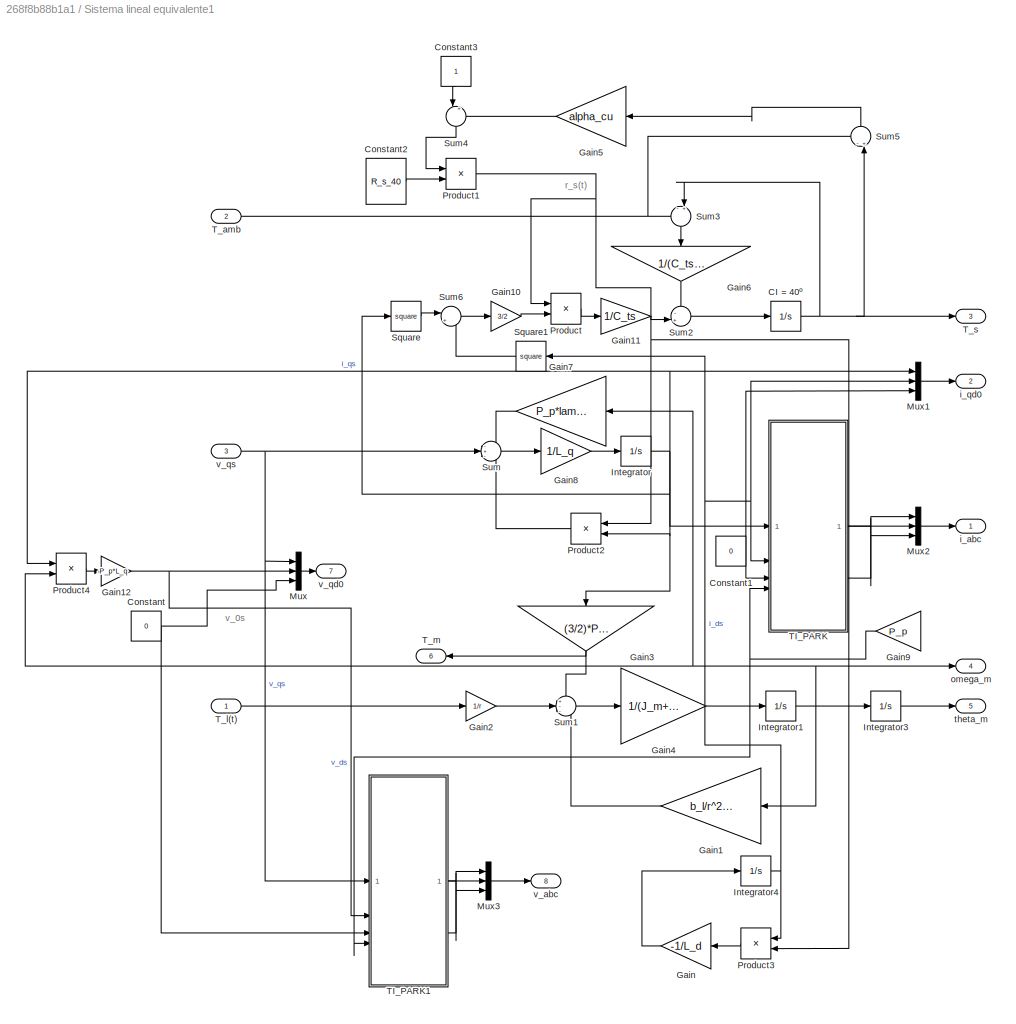
BLOCK [SubSystem] Sistema lineal equivalente1
BLOCK [Integrator] Sistema lineal equivalente1/CI = 40º
  InitialCondition = 40
BLOCK [Constant] Sistema lineal equivalente1/Constant
  Value = 0
BLOCK [Constant] Sistema lineal equivalente1/Constant1
  Value = 0
BLOCK [Constant] Sistema lineal equivalente1/Constant2
  Value = R_s_40
BLOCK [Constant] Sistema lineal equivalente1/Constant3
  NameLocation = left
BLOCK [Gain] Sistema lineal equivalente1/Gain
  Gain = -1/L_d
  NameLocation = top
BLOCK [Gain] Sistema lineal equivalente1/Gain1
  Gain = b_l/r^2 + b_m
  NameLocation = top
BLOCK [Gain] Sistema lineal equivalente1/Gain10
  Gain = 3/2
BLOCK [Gain] Sistema lineal equivalente1/Gain11
  Gain = 1/C_ts
BLOCK [Gain] Sistema lineal equivalente1/Gain12
  Gain = -P_p*L_q
BLOCK [Gain] Sistema lineal equivalente1/Gain2
  Gain = 1/r
BLOCK [Gain] Sistema lineal equivalente1/Gain3
  Gain = (3/2)*P_p*lambda_m
  NameLocation = left
BLOCK [Gain] Sistema lineal equivalente1/Gain4
  Gain = 1/(J_m+J_l/r^2)
BLOCK [Gain] Sistema lineal equivalente1/Gain5
  Gain = alpha_cu
  NameLocation = top
BLOCK [Gain] Sistema lineal equivalente1/Gain6
  Gain = 1/(C_ts*R_ts_amb)
  NameLocation = left
BLOCK [Gain] Sistema lineal equivalente1/Gain7
  Gain = P_p*lambda_m
  NameLocation = top
BLOCK [Gain] Sistema lineal equivalente1/Gain8
  Gain = 1/L_q
BLOCK [Gain] Sistema lineal equivalente1/Gain9
  Gain = P_p
  NameLocation = top
BLOCK [Integrator] Sistema lineal equivalente1/Integrator
BLOCK [Integrator] Sistema lineal equivalente1/Integrator1
BLOCK [Integrator] Sistema lineal equivalente1/Integrator3
BLOCK [Integrator] Sistema lineal equivalente1/Integrator4
BLOCK [Mux] Sistema lineal equivalente1/Mux
  DisplayOption = bar
  Inputs = 3
BLOCK [Mux] Sistema lineal equivalente1/Mux1
  DisplayOption = bar
  Inputs = 3
BLOCK [Mux] Sistema lineal equivalente1/Mux2
  DisplayOption = bar
  Inputs = 3
BLOCK [Mux] Sistema lineal equivalente1/Mux3
  DisplayOption = bar
  Inputs = 3
BLOCK [Product] Sistema lineal equivalente1/Product
BLOCK [Product] Sistema lineal equivalente1/Product1
BLOCK [Product] Sistema lineal equivalente1/Product2
  NameLocation = top
BLOCK [Product] Sistema lineal equivalente1/Product3
  NameLocation = top
BLOCK [Product] Sistema lineal equivalente1/Product4
BLOCK [Math] Sistema lineal equivalente1/Square
  Operator = square
BLOCK [Math] Sistema lineal equivalente1/Square1
  NameLocation = top
  Operator = square
BLOCK [Sum] Sistema lineal equivalente1/Sum
  Inputs = -+-
BLOCK [Sum] Sistema lineal equivalente1/Sum1
  Inputs = +--
BLOCK [Sum] Sistema lineal equivalente1/Sum2
  Inputs = -+|
BLOCK [Sum] Sistema lineal equivalente1/Sum3
  Inputs = -+|
  NameLocation = left
BLOCK [Sum] Sistema lineal equivalente1/Sum4
  Inputs = |++
  NameLocation = left
BLOCK [Sum] Sistema lineal equivalente1/Sum5
  Inputs = -+|
  NameLocation = right
BLOCK [Sum] Sistema lineal equivalente1/Sum6
  Inputs = |++
BLOCK [SubSystem] Sistema lineal equivalente1/TI_PARK
  ErrorFcn = Stateflow.Translate.translate
  LibrarySourceBlock = simulink/User-Defined\nFunctions/MATLAB Function
  PermitHierarchicalResolution = ExplicitOnly
  SFBlockType = MATLAB Function
  TreatAsAtomicUnit = on
BLOCK [Demux] Sistema lineal equivalente1/TI_PARK/ Demux 
  Outputs = 1
BLOCK [S-Function] Sistema lineal equivalente1/TI_PARK/ SFunction 
  EnableBusSupport = on
  FunctionName = sf_sfun
  PortCounts = [4 4]
  SFcnIsStateOwnerBlock = off
  SFunctionDeploymentMode = off
  Tag = Stateflow S-Function 10
BLOCK [Terminator] Sistema lineal equivalente1/TI_PARK/ Terminator 
BLOCK [Inport] Sistema lineal equivalente1/TI_PARK/f0s
  Port = 3
BLOCK [Outport] Sistema lineal equivalente1/TI_PARK/fas
BLOCK [Outport] Sistema lineal equivalente1/TI_PARK/fbs
  Port = 2
BLOCK [Outport] Sistema lineal equivalente1/TI_PARK/fcs
  Port = 3
BLOCK [Inport] Sistema lineal equivalente1/TI_PARK/fds
  Port = 2
BLOCK [Inport] Sistema lineal equivalente1/TI_PARK/fqs
BLOCK [Inport] Sistema lineal equivalente1/TI_PARK/theta_r
  Port = 4
BLOCK [SubSystem] Sistema lineal equivalente1/TI_PARK1
  ErrorFcn = Stateflow.Translate.translate
  LibrarySourceBlock = simulink/User-Defined\nFunctions/MATLAB Function
  PermitHierarchicalResolution = ExplicitOnly
  SFBlockType = MATLAB Function
  TreatAsAtomicUnit = on
BLOCK [Demux] Sistema lineal equivalente1/TI_PARK1/ Demux 
  Outputs = 1
BLOCK [S-Function] Sistema lineal equivalente1/TI_PARK1/ SFunction 
  EnableBusSupport = on
  FunctionName = sf_sfun
  PortCounts = [4 4]
  SFcnIsStateOwnerBlock = off
  SFunctionDeploymentMode = off
  Tag = Stateflow S-Function 9
BLOCK [Terminator] Sistema lineal equivalente1/TI_PARK1/ Terminator 
BLOCK [Inport] Sistema lineal equivalente1/TI_PARK1/f0s
  Port = 3
BLOCK [Outport] Sistema lineal equivalente1/TI_PARK1/fas
BLOCK [Outport] Sistema lineal equivalente1/TI_PARK1/fbs
  Port = 2
BLOCK [Outport] Sistema lineal equivalente1/TI_PARK1/fcs
  Port = 3
BLOCK [Inport] Sistema lineal equivalente1/TI_PARK1/fds
  Port = 2
BLOCK [Inport] Sistema lineal equivalente1/TI_PARK1/fqs
BLOCK [Inport] Sistema lineal equivalente1/TI_PARK1/theta_r
  Port = 4
BLOCK [Inport] Sistema lineal equivalente1/T_amb
  Port = 2
BLOCK [Inport] Sistema lineal equivalente1/T_l(t)
BLOCK [Outport] Sistema lineal equivalente1/T_m
  NameLocation = top
  Port = 6
BLOCK [Outport] Sistema lineal equivalente1/T_s
  Port = 3
BLOCK [Outport] Sistema lineal equivalente1/i_abc
BLOCK [Outport] Sistema lineal equivalente1/i_qd0
  Port = 2
BLOCK [Outport] Sistema lineal equivalente1/omega_m
  Port = 4
BLOCK [Outport] Sistema lineal equivalente1/theta_m
  Port = 5
BLOCK [Outport] Sistema lineal equivalente1/v_abc
  Port = 8
BLOCK [Outport] Sistema lineal equivalente1/v_qd0
  Port = 7
BLOCK [Inport] Sistema lineal equivalente1/v_qs
  Port = 3
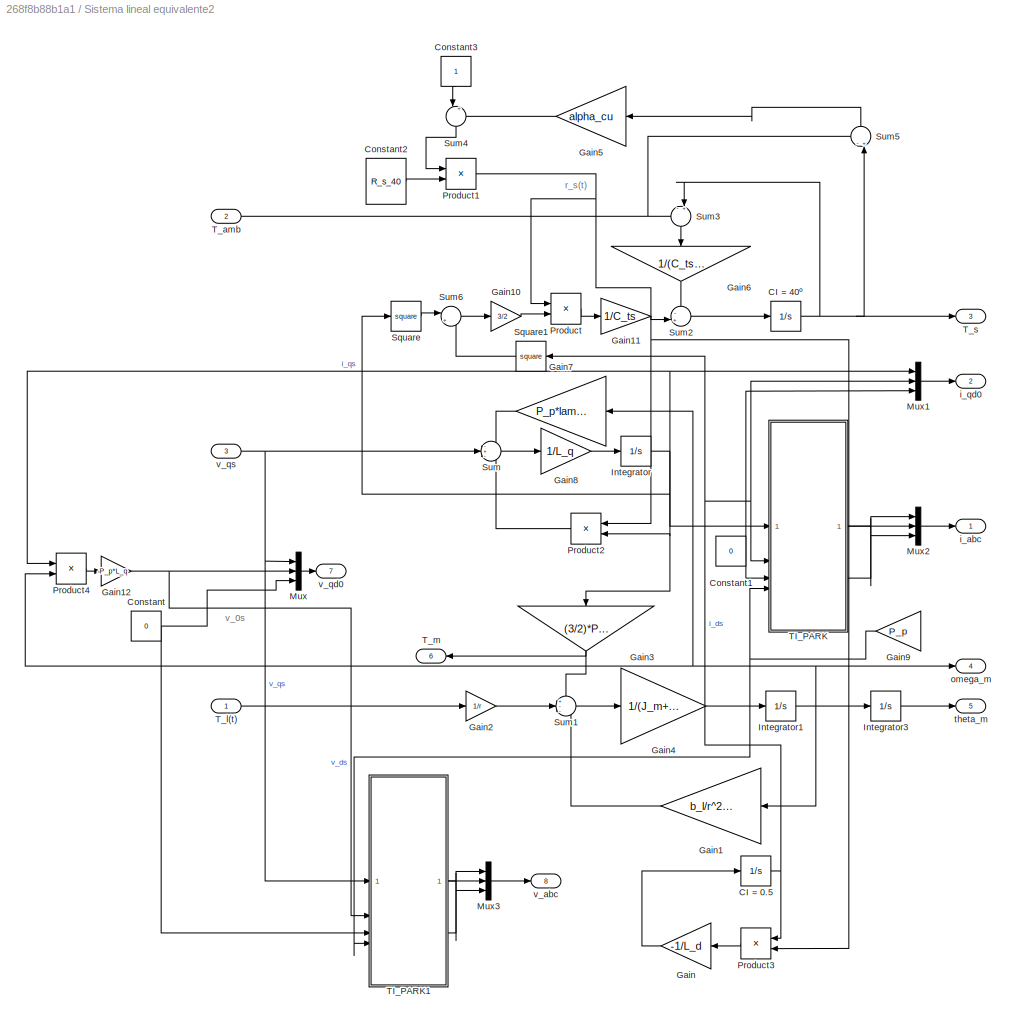
BLOCK [SubSystem] Sistema lineal equivalente2
BLOCK [Integrator] Sistema lineal equivalente2/CI = 0.5
  InitialCondition = 0.5
BLOCK [Integrator] Sistema lineal equivalente2/CI = 40º
  InitialCondition = 40
BLOCK [Constant] Sistema lineal equivalente2/Constant
  Value = 0
BLOCK [Constant] Sistema lineal equivalente2/Constant1
  Value = 0
BLOCK [Constant] Sistema lineal equivalente2/Constant2
  Value = R_s_40
BLOCK [Constant] Sistema lineal equivalente2/Constant3
  NameLocation = left
BLOCK [Gain] Sistema lineal equivalente2/Gain
  Gain = -1/L_d
  NameLocation = top
BLOCK [Gain] Sistema lineal equivalente2/Gain1
  Gain = b_l/r^2 + b_m
  NameLocation = top
BLOCK [Gain] Sistema lineal equivalente2/Gain10
  Gain = 3/2
BLOCK [Gain] Sistema lineal equivalente2/Gain11
  Gain = 1/C_ts
BLOCK [Gain] Sistema lineal equivalente2/Gain12
  Gain = -P_p*L_q
BLOCK [Gain] Sistema lineal equivalente2/Gain2
  Gain = 1/r
BLOCK [Gain] Sistema lineal equivalente2/Gain3
  Gain = (3/2)*P_p*lambda_m
  NameLocation = left
BLOCK [Gain] Sistema lineal equivalente2/Gain4
  Gain = 1/(J_m+J_l/r^2)
BLOCK [Gain] Sistema lineal equivalente2/Gain5
  Gain = alpha_cu
  NameLocation = top
BLOCK [Gain] Sistema lineal equivalente2/Gain6
  Gain = 1/(C_ts*R_ts_amb)
  NameLocation = left
BLOCK [Gain] Sistema lineal equivalente2/Gain7
  Gain = P_p*lambda_m
  NameLocation = top
BLOCK [Gain] Sistema lineal equivalente2/Gain8
  Gain = 1/L_q
BLOCK [Gain] Sistema lineal equivalente2/Gain9
  Gain = P_p
  NameLocation = top
BLOCK [Integrator] Sistema lineal equivalente2/Integrator
BLOCK [Integrator] Sistema lineal equivalente2/Integrator1
BLOCK [Integrator] Sistema lineal equivalente2/Integrator3
BLOCK [Mux] Sistema lineal equivalente2/Mux
  DisplayOption = bar
  Inputs = 3
BLOCK [Mux] Sistema lineal equivalente2/Mux1
  DisplayOption = bar
  Inputs = 3
BLOCK [Mux] Sistema lineal equivalente2/Mux2
  DisplayOption = bar
  Inputs = 3
BLOCK [Mux] Sistema lineal equivalente2/Mux3
  DisplayOption = bar
  Inputs = 3
BLOCK [Product] Sistema lineal equivalente2/Product
BLOCK [Product] Sistema lineal equivalente2/Product1
BLOCK [Product] Sistema lineal equivalente2/Product2
  NameLocation = top
BLOCK [Product] Sistema lineal equivalente2/Product3
  NameLocation = top
BLOCK [Product] Sistema lineal equivalente2/Product4
BLOCK [Math] Sistema lineal equivalente2/Square
  Operator = square
BLOCK [Math] Sistema lineal equivalente2/Square1
  NameLocation = top
  Operator = square
BLOCK [Sum] Sistema lineal equivalente2/Sum
  Inputs = -+-
BLOCK [Sum] Sistema lineal equivalente2/Sum1
  Inputs = +--
BLOCK [Sum] Sistema lineal equivalente2/Sum2
  Inputs = -+|
BLOCK [Sum] Sistema lineal equivalente2/Sum3
  Inputs = -+|
  NameLocation = left
BLOCK [Sum] Sistema lineal equivalente2/Sum4
  Inputs = |++
  NameLocation = left
BLOCK [Sum] Sistema lineal equivalente2/Sum5
  Inputs = -+|
  NameLocation = right
BLOCK [Sum] Sistema lineal equivalente2/Sum6
  Inputs = |++
BLOCK [SubSystem] Sistema lineal equivalente2/TI_PARK
  ErrorFcn = Stateflow.Translate.translate
  LibrarySourceBlock = simulink/User-Defined\nFunctions/MATLAB Function
  PermitHierarchicalResolution = ExplicitOnly
  SFBlockType = MATLAB Function
  TreatAsAtomicUnit = on
BLOCK [Demux] Sistema lineal equivalente2/TI_PARK/ Demux 
  Outputs = 1
BLOCK [S-Function] Sistema lineal equivalente2/TI_PARK/ SFunction 
  EnableBusSupport = on
  FunctionName = sf_sfun
  PortCounts = [4 4]
  SFcnIsStateOwnerBlock = off
  SFunctionDeploymentMode = off
  Tag = Stateflow S-Function 15
BLOCK [Terminator] Sistema lineal equivalente2/TI_PARK/ Terminator 
BLOCK [Inport] Sistema lineal equivalente2/TI_PARK/f0s
  Port = 3
BLOCK [Outport] Sistema lineal equivalente2/TI_PARK/fas
BLOCK [Outport] Sistema lineal equivalente2/TI_PARK/fbs
  Port = 2
BLOCK [Outport] Sistema lineal equivalente2/TI_PARK/fcs
  Port = 3
BLOCK [Inport] Sistema lineal equivalente2/TI_PARK/fds
  Port = 2
BLOCK [Inport] Sistema lineal equivalente2/TI_PARK/fqs
BLOCK [Inport] Sistema lineal equivalente2/TI_PARK/theta_r
  Port = 4
BLOCK [SubSystem] Sistema lineal equivalente2/TI_PARK1
  ErrorFcn = Stateflow.Translate.translate
  LibrarySourceBlock = simulink/User-Defined\nFunctions/MATLAB Function
  PermitHierarchicalResolution = ExplicitOnly
  SFBlockType = MATLAB Function
  TreatAsAtomicUnit = on
BLOCK [Demux] Sistema lineal equivalente2/TI_PARK1/ Demux 
  Outputs = 1
BLOCK [S-Function] Sistema lineal equivalente2/TI_PARK1/ SFunction 
  EnableBusSupport = on
  FunctionName = sf_sfun
  PortCounts = [4 4]
  SFcnIsStateOwnerBlock = off
  SFunctionDeploymentMode = off
  Tag = Stateflow S-Function 16
BLOCK [Terminator] Sistema lineal equivalente2/TI_PARK1/ Terminator 
BLOCK [Inport] Sistema lineal equivalente2/TI_PARK1/f0s
  Port = 3
BLOCK [Outport] Sistema lineal equivalente2/TI_PARK1/fas
BLOCK [Outport] Sistema lineal equivalente2/TI_PARK1/fbs
  Port = 2
BLOCK [Outport] Sistema lineal equivalente2/TI_PARK1/fcs
  Port = 3
BLOCK [Inport] Sistema lineal equivalente2/TI_PARK1/fds
  Port = 2
BLOCK [Inport] Sistema lineal equivalente2/TI_PARK1/fqs
BLOCK [Inport] Sistema lineal equivalente2/TI_PARK1/theta_r
  Port = 4
BLOCK [Inport] Sistema lineal equivalente2/T_amb
  Port = 2
BLOCK [Inport] Sistema lineal equivalente2/T_l(t)
BLOCK [Outport] Sistema lineal equivalente2/T_m
  NameLocation = top
  Port = 6
BLOCK [Outport] Sistema lineal equivalente2/T_s
  Port = 3
BLOCK [Outport] Sistema lineal equivalente2/i_abc
BLOCK [Outport] Sistema lineal equivalente2/i_qd0
  Port = 2
BLOCK [Outport] Sistema lineal equivalente2/omega_m
  Port = 4
BLOCK [Outport] Sistema lineal equivalente2/theta_m
  Port = 5
BLOCK [Outport] Sistema lineal equivalente2/v_abc
  Port = 8
BLOCK [Outport] Sistema lineal equivalente2/v_qd0
  Port = 7
BLOCK [Inport] Sistema lineal equivalente2/v_qs
  Port = 3
BLOCK [SubSystem] Sistema lineal equivalente3
BLOCK [Integrator] Sistema lineal equivalente3/CI = -0.5
  InitialCondition = -0.5
BLOCK [Integrator] Sistema lineal equivalente3/CI = 40º
  InitialCondition = 40
BLOCK [Constant] Sistema lineal equivalente3/Constant
  Value = 0
BLOCK [Constant] Sistema lineal equivalente3/Constant1
  Value = 0
BLOCK [Constant] Sistema lineal equivalente3/Constant2
  Value = R_s_40
BLOCK [Constant] Sistema lineal equivalente3/Constant3
  NameLocation = left
BLOCK [Gain] Sistema lineal equivalente3/Gain
  Gain = -1/L_d
  NameLocation = top
BLOCK [Gain] Sistema lineal equivalente3/Gain1
  Gain = b_l/r^2 + b_m
  NameLocation = top
BLOCK [Gain] Sistema lineal equivalente3/Gain10
  Gain = 3/2
BLOCK [Gain] Sistema lineal equivalente3/Gain11
  Gain = 1/C_ts
BLOCK [Gain] Sistema lineal equivalente3/Gain12
  Gain = -P_p*L_q
BLOCK [Gain] Sistema lineal equivalente3/Gain2
  Gain = 1/r
BLOCK [Gain] Sistema lineal equivalente3/Gain3
  Gain = (3/2)*P_p*lambda_m
  NameLocation = left
BLOCK [Gain] Sistema lineal equivalente3/Gain4
  Gain = 1/(J_m+J_l/r^2)
BLOCK [Gain] Sistema lineal equivalente3/Gain5
  Gain = alpha_cu
  NameLocation = top
BLOCK [Gain] Sistema lineal equivalente3/Gain6
  Gain = 1/(C_ts*R_ts_amb)
  NameLocation = left
BLOCK [Gain] Sistema lineal equivalente3/Gain7
  Gain = P_p*lambda_m
  NameLocation = top
BLOCK [Gain] Sistema lineal equivalente3/Gain8
  Gain = 1/L_q
BLOCK [Gain] Sistema lineal equivalente3/Gain9
  Gain = P_p
  NameLocation = top
BLOCK [Integrator] Sistema lineal equivalente3/Integrator
BLOCK [Integrator] Sistema lineal equivalente3/Integrator1
BLOCK [Integrator] Sistema lineal equivalente3/Integrator3
BLOCK [Mux] Sistema lineal equivalente3/Mux
  DisplayOption = bar
  Inputs = 3
BLOCK [Mux] Sistema lineal equivalente3/Mux1
  DisplayOption = bar
  Inputs = 3
BLOCK [Mux] Sistema lineal equivalente3/Mux2
  DisplayOption = bar
  Inputs = 3
BLOCK [Mux] Sistema lineal equivalente3/Mux3
  DisplayOption = bar
  Inputs = 3
BLOCK [Product] Sistema lineal equivalente3/Product
BLOCK [Product] Sistema lineal equivalente3/Product1
BLOCK [Product] Sistema lineal equivalente3/Product2
  NameLocation = top
BLOCK [Product] Sistema lineal equivalente3/Product3
  NameLocation = top
BLOCK [Product] Sistema lineal equivalente3/Product4
BLOCK [Math] Sistema lineal equivalente3/Square
  Operator = square
BLOCK [Math] Sistema lineal equivalente3/Square1
  NameLocation = top
  Operator = square
BLOCK [Sum] Sistema lineal equivalente3/Sum
  Inputs = -+-
BLOCK [Sum] Sistema lineal equivalente3/Sum1
  Inputs = +--
BLOCK [Sum] Sistema lineal equivalente3/Sum2
  Inputs = -+|
BLOCK [Sum] Sistema lineal equivalente3/Sum3
  Inputs = -+|
  NameLocation = left
BLOCK [Sum] Sistema lineal equivalente3/Sum4
  Inputs = |++
  NameLocation = left
BLOCK [Sum] Sistema lineal equivalente3/Sum5
  Inputs = -+|
  NameLocation = right
BLOCK [Sum] Sistema lineal equivalente3/Sum6
  Inputs = |++
BLOCK [SubSystem] Sistema lineal equivalente3/TI_PARK
  ErrorFcn = Stateflow.Translate.translate
  LibrarySourceBlock = simulink/User-Defined\nFunctions/MATLAB Function
  PermitHierarchicalResolution = ExplicitOnly
  SFBlockType = MATLAB Function
  TreatAsAtomicUnit = on
BLOCK [Demux] Sistema lineal equivalente3/TI_PARK/ Demux 
  Outputs = 1
BLOCK [S-Function] Sistema lineal equivalente3/TI_PARK/ SFunction 
  EnableBusSupport = on
  FunctionName = sf_sfun
  PortCounts = [4 4]
  SFcnIsStateOwnerBlock = off
  SFunctionDeploymentMode = off
  Tag = Stateflow S-Function 21
BLOCK [Terminator] Sistema lineal equivalente3/TI_PARK/ Terminator 
BLOCK [Inport] Sistema lineal equivalente3/TI_PARK/f0s
  Port = 3
BLOCK [Outport] Sistema lineal equivalente3/TI_PARK/fas
BLOCK [Outport] Sistema lineal equivalente3/TI_PARK/fbs
  Port = 2
BLOCK [Outport] Sistema lineal equivalente3/TI_PARK/fcs
  Port = 3
BLOCK [Inport] Sistema lineal equivalente3/TI_PARK/fds
  Port = 2
BLOCK [Inport] Sistema lineal equivalente3/TI_PARK/fqs
BLOCK [Inport] Sistema lineal equivalente3/TI_PARK/theta_r
  Port = 4
BLOCK [SubSystem] Sistema lineal equivalente3/TI_PARK1
  ErrorFcn = Stateflow.Translate.translate
  LibrarySourceBlock = simulink/User-Defined\nFunctions/MATLAB Function
  PermitHierarchicalResolution = ExplicitOnly
  SFBlockType = MATLAB Function
  TreatAsAtomicUnit = on
BLOCK [Demux] Sistema lineal equivalente3/TI_PARK1/ Demux 
  Outputs = 1
BLOCK [S-Function] Sistema lineal equivalente3/TI_PARK1/ SFunction 
  EnableBusSupport = on
  FunctionName = sf_sfun
  PortCounts = [4 4]
  SFcnIsStateOwnerBlock = off
  SFunctionDeploymentMode = off
  Tag = Stateflow S-Function 22
BLOCK [Terminator] Sistema lineal equivalente3/TI_PARK1/ Terminator 
BLOCK [Inport] Sistema lineal equivalente3/TI_PARK1/f0s
  Port = 3
BLOCK [Outport] Sistema lineal equivalente3/TI_PARK1/fas
BLOCK [Outport] Sistema lineal equivalente3/TI_PARK1/fbs
  Port = 2
BLOCK [Outport] Sistema lineal equivalente3/TI_PARK1/fcs
  Port = 3
BLOCK [Inport] Sistema lineal equivalente3/TI_PARK1/fds
  Port = 2
BLOCK [Inport] Sistema lineal equivalente3/TI_PARK1/fqs
BLOCK [Inport] Sistema lineal equivalente3/TI_PARK1/theta_r
  Port = 4
BLOCK [Inport] Sistema lineal equivalente3/T_amb
  Port = 2
BLOCK [Inport] Sistema lineal equivalente3/T_l(t)
BLOCK [Outport] Sistema lineal equivalente3/T_m
  NameLocation = top
  Port = 6
BLOCK [Outport] Sistema lineal equivalente3/T_s
  Port = 3
BLOCK [Outport] Sistema lineal equivalente3/i_abc
BLOCK [Outport] Sistema lineal equivalente3/i_qd0
  Port = 2
BLOCK [Outport] Sistema lineal equivalente3/omega_m
  Port = 4
BLOCK [Outport] Sistema lineal equivalente3/theta_m
  Port = 5
BLOCK [Outport] Sistema lineal equivalente3/v_abc
  Port = 8
BLOCK [Outport] Sistema lineal equivalente3/v_qd0
  Port = 7
BLOCK [Inport] Sistema lineal equivalente3/v_qs
  Port = 3
BLOCK [SubSystem] Sistema linealizado por retroalimentación no lineal
BLOCK [Constant] Sistema linealizado por retroalimentación no lineal/Constant
  Value = 0
BLOCK [Gain] Sistema linealizado por retroalimentación no lineal/Gain
BLOCK [Gain] Sistema linealizado por retroalimentación no lineal/Gain1
BLOCK [Gain] Sistema linealizado por retroalimentación no lineal/Gain10
  Gain = L_q
  NameLocation = top
BLOCK [Gain] Sistema linealizado por retroalimentación no lineal/Gain11
  Gain = -1
  NameLocation = top
BLOCK [Gain] Sistema linealizado por retroalimentación no lineal/Gain2
BLOCK [Gain] Sistema linealizado por retroalimentación no lineal/Gain3
BLOCK [Gain] Sistema linealizado por retroalimentación no lineal/Gain4
BLOCK [Gain] Sistema linealizado por retroalimentación no lineal/Gain5
  Gain = P_p
  NameLocation = top
BLOCK [Gain] Sistema linealizado por retroalimentación no lineal/Gain6
  Gain = L_d
  NameLocation = top
BLOCK [Gain] Sistema linealizado por retroalimentación no lineal/Gain8
  Gain = P_p
  NameLocation = top
BLOCK [Gain] Sistema linealizado por retroalimentación no lineal/Gain9
  Gain = P_p
  NameLocation = top
BLOCK [SubSystem] Sistema linealizado por retroalimentación no lineal/Inversor: Modulador de tensión
BLOCK [Gain] Sistema linealizado por retroalimentación no lineal/Inversor: Modulador de tensión/Gain5
BLOCK [Gain] Sistema linealizado por retroalimentación no lineal/Inversor: Modulador de tensión/Gain6
BLOCK [Gain] Sistema linealizado por retroalimentación no lineal/Inversor: Modulador de tensión/Gain7
BLOCK [Outport] Sistema linealizado por retroalimentación no lineal/Inversor: Modulador de tensión/v_as
BLOCK [Inport] Sistema linealizado por retroalimentación no lineal/Inversor: Modulador de tensión/v_as*
BLOCK [Outport] Sistema linealizado por retroalimentación no lineal/Inversor: Modulador de tensión/v_bs
  Port = 2
BLOCK [Inport] Sistema linealizado por retroalimentación no lineal/Inversor: Modulador de tensión/v_bs*
  Port = 2
BLOCK [Outport] Sistema linealizado por retroalimentación no lineal/Inversor: Modulador de tensión/v_cs
  Port = 3
BLOCK [Inport] Sistema linealizado por retroalimentación no lineal/Inversor: Modulador de tensión/v_cs*
  Port = 3
BLOCK [Mux] Sistema linealizado por retroalimentación no lineal/Mux
  DisplayOption = bar
  Inputs = 3
BLOCK [Product] Sistema linealizado por retroalimentación no lineal/Product
  NameLocation = top
BLOCK [Product] Sistema linealizado por retroalimentación no lineal/Product1
  NameLocation = top
BLOCK [SubSystem] Sistema linealizado por retroalimentación no lineal/Subsistema físico no lineal 
  PortSchema = {"entries":[{"content":{"sides":[{"content":{"connectorIds":["In1","In2","In3","In4","In5","In6"]},"type":"ConnectorPlacement.EquallySpacedRectSide","uuid":"df16c937-5b0d-437b-9581-4e7e4443d731"},{"content":{"connectorIds":["Out1","Out2","Out3","Out4","Out5"],"side":"RIGHT"},"type":"ConnectorPlacement.EquallySpacedRectSide","uuid":"58799b56-1bb2-4861-ad63-3fa3f8181ad5"},{"content":{"connectorIds":...<+304ch>
BLOCK [SubSystem] Sistema linealizado por retroalimentación no lineal/Subsistema físico no lineal /Subsistema electromagnético
BLOCK [Constant] Sistema linealizado por retroalimentación no lineal/Subsistema físico no lineal /Subsistema electromagnético/Constant
  NameLocation = left
  Value = P_p
BLOCK [Constant] Sistema linealizado por retroalimentación no lineal/Subsistema físico no lineal /Subsistema electromagnético/Constant1
  NameLocation = top
  Value = lambda_m
BLOCK [Constant] Sistema linealizado por retroalimentación no lineal/Subsistema físico no lineal /Subsistema electromagnético/Constant2
  NameLocation = left
  Value = L_d
BLOCK [Constant] Sistema linealizado por retroalimentación no lineal/Subsistema físico no lineal /Subsistema electromagnético/Constant3
  NameLocation = top
  Value = L_q
BLOCK [Constant] Sistema linealizado por retroalimentación no lineal/Subsistema físico no lineal /Subsistema electromagnético/Constant4
  NameLocation = top
  Value = lambda_m
BLOCK [Gain] Sistema linealizado por retroalimentación no lineal/Subsistema físico no lineal /Subsistema electromagnético/Gain
  Gain = 1/L_ls
BLOCK [Gain] Sistema linealizado por retroalimentación no lineal/Subsistema físico no lineal /Subsistema electromagnético/Gain1
  Gain = 1/L_d
BLOCK [Gain] Sistema linealizado por retroalimentación no lineal/Subsistema físico no lineal /Subsistema electromagnético/Gain2
  Gain = 1/L_q
BLOCK [Gain] Sistema linealizado por retroalimentación no lineal/Subsistema físico no lineal /Subsistema electromagnético/Gain3
  Gain = L_d
  NameLocation = left
BLOCK [Gain] Sistema linealizado por retroalimentación no lineal/Subsistema físico no lineal /Subsistema electromagnético/Gain4
  Gain = L_q
  NameLocation = left
BLOCK [Gain] Sistema linealizado por retroalimentación no lineal/Subsistema físico no lineal /Subsistema electromagnético/Gain5
  Gain = (3/2)*P_p
  NameLocation = left
BLOCK [Integrator] Sistema linealizado por retroalimentación no lineal/Subsistema físico no lineal /Subsistema electromagnético/Integrator1
BLOCK [Integrator] Sistema linealizado por retroalimentación no lineal/Subsistema físico no lineal /Subsistema electromagnético/Integrator2
BLOCK [Integrator] Sistema linealizado por retroalimentación no lineal/Subsistema físico no lineal /Subsistema electromagnético/Integrator3
BLOCK [Product] Sistema linealizado por retroalimentación no lineal/Subsistema físico no lineal /Subsistema electromagnético/Product
  NameLocation = right
BLOCK [Product] Sistema linealizado por retroalimentación no lineal/Subsistema físico no lineal /Subsistema electromagnético/Product1
  NameLocation = left
BLOCK [Product] Sistema linealizado por retroalimentación no lineal/Subsistema físico no lineal /Subsistema electromagnético/Product2
  NameLocation = top
BLOCK [Product] Sistema linealizado por retroalimentación no lineal/Subsistema físico no lineal /Subsistema electromagnético/Product3
  NameLocation = top
BLOCK [Product] Sistema linealizado por retroalimentación no lineal/Subsistema físico no lineal /Subsistema electromagnético/Product4
  NameLocation = left
BLOCK [Product] Sistema linealizado por retroalimentación no lineal/Subsistema físico no lineal /Subsistema electromagnético/Product5
  NameLocation = left
BLOCK [Product] Sistema linealizado por retroalimentación no lineal/Subsistema físico no lineal /Subsistema electromagnético/Product6
  NameLocation = left
BLOCK [Product] Sistema linealizado por retroalimentación no lineal/Subsistema físico no lineal /Subsistema electromagnético/Product7
  NameLocation = left
BLOCK [Sum] Sistema linealizado por retroalimentación no lineal/Subsistema físico no lineal /Subsistema electromagnético/Sum
  Inputs = |+-
  NameLocation = left
BLOCK [Sum] Sistema linealizado por retroalimentación no lineal/Subsistema físico no lineal /Subsistema electromagnético/Sum1
  Inputs = |+-
BLOCK [Sum] Sistema linealizado por retroalimentación no lineal/Subsistema físico no lineal /Subsistema electromagnético/Sum2
  Inputs = ++-
BLOCK [Sum] Sistema linealizado por retroalimentación no lineal/Subsistema físico no lineal /Subsistema electromagnético/Sum3
  Inputs = -+-
BLOCK [Sum] Sistema linealizado por retroalimentación no lineal/Subsistema físico no lineal /Subsistema electromagnético/Sum4
  Inputs = |++
  NameLocation = left
BLOCK [Sum] Sistema linealizado por retroalimentación no lineal/Subsistema físico no lineal /Subsistema electromagnético/Sum5
  Inputs = |++
  NameLocation = left
BLOCK [Outport] Sistema linealizado por retroalimentación no lineal/Subsistema físico no lineal /Subsistema electromagnético/T_m
  NameLocation = left
  Port = 4
BLOCK [Outport] Sistema linealizado por retroalimentación no lineal/Subsistema físico no lineal /Subsistema electromagnético/i_0s^r
BLOCK [Outport] Sistema linealizado por retroalimentación no lineal/Subsistema físico no lineal /Subsistema electromagnético/i_ds^r
  Port = 2
BLOCK [Outport] Sistema linealizado por retroalimentación no lineal/Subsistema físico no lineal /Subsistema electromagnético/i_qs^r
  Port = 3
BLOCK [Inport] Sistema linealizado por retroalimentación no lineal/Subsistema físico no lineal /Subsistema electromagnético/omega_m
  Port = 4
BLOCK [Inport] Sistema linealizado por retroalimentación no lineal/Subsistema físico no lineal /Subsistema electromagnético/r_s
  Port = 5
BLOCK [Inport] Sistema linealizado por retroalimentación no lineal/Subsistema físico no lineal /Subsistema electromagnético/v_0s^r
  Port = 3
BLOCK [Inport] Sistema linealizado por retroalimentación no lineal/Subsistema físico no lineal /Subsistema electromagnético/v_ds^r
  Port = 2
BLOCK [Inport] Sistema linealizado por retroalimentación no lineal/Subsistema físico no lineal /Subsistema electromagnético/v_qs^r
BLOCK [SubSystem] Sistema linealizado por retroalimentación no lineal/Subsistema físico no lineal /Subsistema mecánico completo
BLOCK [Gain] Sistema linealizado por retroalimentación no lineal/Subsistema físico no lineal /Subsistema mecánico completo/Gain
  Gain = b_m + b_l / (r^2)
  NameLocation = top
BLOCK [Gain] Sistema linealizado por retroalimentación no lineal/Subsistema físico no lineal /Subsistema mecánico completo/Gain1
  Gain = 1/r
BLOCK [Gain] Sistema linealizado por retroalimentación no lineal/Subsistema físico no lineal /Subsistema mecánico completo/Gain2
  Gain = 1/(J_m + J_l / r^2)
BLOCK [Sum] Sistema linealizado por retroalimentación no lineal/Subsistema físico no lineal /Subsistema mecánico completo/Sum
  Inputs = -+-
BLOCK [Inport] Sistema linealizado por retroalimentación no lineal/Subsistema físico no lineal /Subsistema mecánico completo/T_l
  Port = 2
BLOCK [Inport] Sistema linealizado por retroalimentación no lineal/Subsistema físico no lineal /Subsistema mecánico completo/T_m
BLOCK [Integrator] Sistema linealizado por retroalimentación no lineal/Subsistema físico no lineal /Subsistema mecánico completo/omega_m(0) = 0
BLOCK [Outport] Sistema linealizado por retroalimentación no lineal/Subsistema físico no lineal /Subsistema mecánico completo/omega_m(t)
  Port = 2
BLOCK [Integrator] Sistema linealizado por retroalimentación no lineal/Subsistema físico no lineal /Subsistema mecánico completo/theta_m(0) = 0
BLOCK [Outport] Sistema linealizado por retroalimentación no lineal/Subsistema físico no lineal /Subsistema mecánico completo/theta_m(t)
BLOCK [SubSystem] Sistema linealizado por retroalimentación no lineal/Subsistema físico no lineal /Subsistema térmico
BLOCK [Constant] Sistema linealizado por retroalimentación no lineal/Subsistema físico no lineal /Subsistema térmico/Constant
  Value = R_s_40
BLOCK [Constant] Sistema linealizado por retroalimentación no lineal/Subsistema físico no lineal /Subsistema térmico/Constant1
  NameLocation = left
BLOCK [Constant] Sistema linealizado por retroalimentación no lineal/Subsistema físico no lineal /Subsistema térmico/Constant2
  NameLocation = right
  Value = Temp_s_ref
BLOCK [Gain] Sistema linealizado por retroalimentación no lineal/Subsistema físico no lineal /Subsistema térmico/Gain
  Gain = 2
BLOCK [Gain] Sistema linealizado por retroalimentación no lineal/Subsistema físico no lineal /Subsistema térmico/Gain1
  Gain = 1.5
BLOCK [Gain] Sistema linealizado por retroalimentación no lineal/Subsistema físico no lineal /Subsistema térmico/Gain2
  Gain = 1/C_ts
BLOCK [Gain] Sistema linealizado por retroalimentación no lineal/Subsistema físico no lineal /Subsistema térmico/Gain3
  Gain = 1/(R_ts_amb)
  NameLocation = right
BLOCK [Gain] Sistema linealizado por retroalimentación no lineal/Subsistema físico no lineal /Subsistema térmico/Gain4
  Gain = alpha_cu
  NameLocation = top
BLOCK [Integrator] Sistema linealizado por retroalimentación no lineal/Subsistema físico no lineal /Subsistema térmico/Integrator
BLOCK [Product] Sistema linealizado por retroalimentación no lineal/Subsistema físico no lineal /Subsistema térmico/Product
BLOCK [Product] Sistema linealizado por retroalimentación no lineal/Subsistema físico no lineal /Subsistema térmico/Product1
BLOCK [Math] Sistema linealizado por retroalimentación no lineal/Subsistema físico no lineal /Subsistema térmico/Square
  Operator = square
BLOCK [Math] Sistema linealizado por retroalimentación no lineal/Subsistema físico no lineal /Subsistema térmico/Square1
  Operator = square
BLOCK [Math] Sistema linealizado por retroalimentación no lineal/Subsistema físico no lineal /Subsistema térmico/Square2
  Operator = square
BLOCK [Sum] Sistema linealizado por retroalimentación no lineal/Subsistema físico no lineal /Subsistema térmico/Sum
  IconShape = rectangular
  Inputs = +++
BLOCK [Sum] Sistema linealizado por retroalimentación no lineal/Subsistema físico no lineal /Subsistema térmico/Sum1
  Inputs = |+-
BLOCK [Sum] Sistema linealizado por retroalimentación no lineal/Subsistema físico no lineal /Subsistema térmico/Sum2
  Inputs = -+
  NameLocation = right
BLOCK [Sum] Sistema linealizado por retroalimentación no lineal/Subsistema físico no lineal /Subsistema térmico/Sum3
  Inputs = |++
  NameLocation = left
BLOCK [Sum] Sistema linealizado por retroalimentación no lineal/Subsistema físico no lineal /Subsistema térmico/Sum4
  Inputs = |+-
  NameLocation = top
BLOCK [Outport] Sistema linealizado por retroalimentación no lineal/Subsistema físico no lineal /Subsistema térmico/T_s
BLOCK [Inport] Sistema linealizado por retroalimentación no lineal/Subsistema físico no lineal /Subsistema térmico/Tº_amb
  Port = 4
BLOCK [Inport] Sistema linealizado por retroalimentación no lineal/Subsistema físico no lineal /Subsistema térmico/i_0s^r
  Port = 3
BLOCK [Inport] Sistema linealizado por retroalimentación no lineal/Subsistema físico no lineal /Subsistema térmico/i_ds^r
  Port = 2
BLOCK [Inport] Sistema linealizado por retroalimentación no lineal/Subsistema físico no lineal /Subsistema térmico/i_qs^r
BLOCK [Outport] Sistema linealizado por retroalimentación no lineal/Subsistema físico no lineal /Subsistema térmico/r_s
  Port = 2
BLOCK [SubSystem] Sistema linealizado por retroalimentación no lineal/Subsistema físico no lineal /TD_PARK
  ErrorFcn = Stateflow.Translate.translate
  LibrarySourceBlock = simulink/User-Defined\nFunctions/MATLAB Function
  PermitHierarchicalResolution = ExplicitOnly
  SFBlockType = MATLAB Function
  TreatAsAtomicUnit = on
BLOCK [Demux] Sistema linealizado por retroalimentación no lineal/Subsistema físico no lineal /TD_PARK/ Demux 
  Outputs = 1
BLOCK [S-Function] Sistema linealizado por retroalimentación no lineal/Subsistema físico no lineal /TD_PARK/ SFunction 
  EnableBusSupport = on
  FunctionName = sf_sfun
  PortCounts = [4 4]
  SFcnIsStateOwnerBlock = off
  SFunctionDeploymentMode = off
  Tag = Stateflow S-Function 5
BLOCK [Terminator] Sistema linealizado por retroalimentación no lineal/Subsistema físico no lineal /TD_PARK/ Terminator 
BLOCK [Outport] Sistema linealizado por retroalimentación no lineal/Subsistema físico no lineal /TD_PARK/f0s
  Port = 3
BLOCK [Inport] Sistema linealizado por retroalimentación no lineal/Subsistema físico no lineal /TD_PARK/fas
BLOCK [Inport] Sistema linealizado por retroalimentación no lineal/Subsistema físico no lineal /TD_PARK/fbs
  Port = 2
BLOCK [Inport] Sistema linealizado por retroalimentación no lineal/Subsistema físico no lineal /TD_PARK/fcs
  Port = 3
BLOCK [Outport] Sistema linealizado por retroalimentación no lineal/Subsistema físico no lineal /TD_PARK/fds
  Port = 2
BLOCK [Outport] Sistema linealizado por retroalimentación no lineal/Subsistema físico no lineal /TD_PARK/fqs
BLOCK [Inport] Sistema linealizado por retroalimentación no lineal/Subsistema físico no lineal /TD_PARK/theta_r
  Port = 4
BLOCK [SubSystem] Sistema linealizado por retroalimentación no lineal/Subsistema físico no lineal /TI_PARK
  ErrorFcn = Stateflow.Translate.translate
  LibrarySourceBlock = simulink/User-Defined\nFunctions/MATLAB Function
  PermitHierarchicalResolution = ExplicitOnly
  SFBlockType = MATLAB Function
  TreatAsAtomicUnit = on
BLOCK [Demux] Sistema linealizado por retroalimentación no lineal/Subsistema físico no lineal /TI_PARK/ Demux 
  Outputs = 1
BLOCK [S-Function] Sistema linealizado por retroalimentación no lineal/Subsistema físico no lineal /TI_PARK/ SFunction 
  EnableBusSupport = on
  FunctionName = sf_sfun
  PortCounts = [4 4]
  SFcnIsStateOwnerBlock = off
  SFunctionDeploymentMode = off
  Tag = Stateflow S-Function 6
BLOCK [Terminator] Sistema linealizado por retroalimentación no lineal/Subsistema físico no lineal /TI_PARK/ Terminator 
BLOCK [Inport] Sistema linealizado por retroalimentación no lineal/Subsistema físico no lineal /TI_PARK/f0s
  Port = 3
BLOCK [Outport] Sistema linealizado por retroalimentación no lineal/Subsistema físico no lineal /TI_PARK/fas
BLOCK [Outport] Sistema linealizado por retroalimentación no lineal/Subsistema físico no lineal /TI_PARK/fbs
  Port = 2
BLOCK [Outport] Sistema linealizado por retroalimentación no lineal/Subsistema físico no lineal /TI_PARK/fcs
  Port = 3
BLOCK [Inport] Sistema linealizado por retroalimentación no lineal/Subsistema físico no lineal /TI_PARK/fds
  Port = 2
BLOCK [Inport] Sistema linealizado por retroalimentación no lineal/Subsistema físico no lineal /TI_PARK/fqs
BLOCK [Inport] Sistema linealizado por retroalimentación no lineal/Subsistema físico no lineal /TI_PARK/theta_r
  Port = 4
BLOCK [Inport] Sistema linealizado por retroalimentación no lineal/Subsistema físico no lineal /T_l
BLOCK [Outport] Sistema linealizado por retroalimentación no lineal/Subsistema físico no lineal /T_s
  NameLocation = top
  Port = 2
BLOCK [Inport] Sistema linealizado por retroalimentación no lineal/Subsistema físico no lineal /Tº_amb
  Port = 6
BLOCK [Outport] Sistema linealizado por retroalimentación no lineal/Subsistema físico no lineal /i_as
  Port = 3
BLOCK [Outport] Sistema linealizado por retroalimentación no lineal/Subsistema físico no lineal /i_bs
  Port = 4
BLOCK [Outport] Sistema linealizado por retroalimentación no lineal/Subsistema físico no lineal /i_cs
  Port = 5
BLOCK [Outport] Sistema linealizado por retroalimentación no lineal/Subsistema físico no lineal /omega_m
  Port = 6
BLOCK [Outport] Sistema linealizado por retroalimentación no lineal/Subsistema físico no lineal /theta_m
BLOCK [Inport] Sistema linealizado por retroalimentación no lineal/Subsistema físico no lineal /theta_r
  Port = 5
BLOCK [Inport] Sistema linealizado por retroalimentación no lineal/Subsistema físico no lineal /v_as
  Port = 2
BLOCK [Inport] Sistema linealizado por retroalimentación no lineal/Subsistema físico no lineal /v_bs
  Port = 3
BLOCK [Inport] Sistema linealizado por retroalimentación no lineal/Subsistema físico no lineal /v_cs
  Port = 4
BLOCK [Sum] Sistema linealizado por retroalimentación no lineal/Sum
  Inputs = |++
BLOCK [SubSystem] Sistema linealizado por retroalimentación no lineal/TD_PARK
  ErrorFcn = Stateflow.Translate.translate
  LibrarySourceBlock = simulink/User-Defined\nFunctions/MATLAB Function
  NameLocation = top
  PermitHierarchicalResolution = ExplicitOnly
  SFBlockType = MATLAB Function
  TreatAsAtomicUnit = on
BLOCK [Demux] Sistema linealizado por retroalimentación no lineal/TD_PARK/ Demux 
  Outputs = 1
BLOCK [S-Function] Sistema linealizado por retroalimentación no lineal/TD_PARK/ SFunction 
  EnableBusSupport = on
  FunctionName = sf_sfun
  PortCounts = [4 4]
  SFcnIsStateOwnerBlock = off
  SFunctionDeploymentMode = off
  Tag = Stateflow S-Function 8
BLOCK [Terminator] Sistema linealizado por retroalimentación no lineal/TD_PARK/ Terminator 
BLOCK [Outport] Sistema linealizado por retroalimentación no lineal/TD_PARK/f0s
  Port = 3
BLOCK [Inport] Sistema linealizado por retroalimentación no lineal/TD_PARK/fas
BLOCK [Inport] Sistema linealizado por retroalimentación no lineal/TD_PARK/fbs
  Port = 2
BLOCK [Inport] Sistema linealizado por retroalimentación no lineal/TD_PARK/fcs
  Port = 3
BLOCK [Outport] Sistema linealizado por retroalimentación no lineal/TD_PARK/fds
  Port = 2
BLOCK [Outport] Sistema linealizado por retroalimentación no lineal/TD_PARK/fqs
BLOCK [Inport] Sistema linealizado por retroalimentación no lineal/TD_PARK/theta_r
  Port = 4
BLOCK [SubSystem] Sistema linealizado por retroalimentación no lineal/TI_PARK
  ErrorFcn = Stateflow.Translate.translate
  LibrarySourceBlock = simulink/User-Defined\nFunctions/MATLAB Function
  PermitHierarchicalResolution = ExplicitOnly
  SFBlockType = MATLAB Function
  TreatAsAtomicUnit = on
BLOCK [Demux] Sistema linealizado por retroalimentación no lineal/TI_PARK/ Demux 
  Outputs = 1
BLOCK [S-Function] Sistema linealizado por retroalimentación no lineal/TI_PARK/ SFunction 
  EnableBusSupport = on
  FunctionName = sf_sfun
  PortCounts = [4 4]
  SFcnIsStateOwnerBlock = off
  SFunctionDeploymentMode = off
  Tag = Stateflow S-Function 7
BLOCK [Terminator] Sistema linealizado por retroalimentación no lineal/TI_PARK/ Terminator 
BLOCK [Inport] Sistema linealizado por retroalimentación no lineal/TI_PARK/f0s
  Port = 3
BLOCK [Outport] Sistema linealizado por retroalimentación no lineal/TI_PARK/fas
BLOCK [Outport] Sistema linealizado por retroalimentación no lineal/TI_PARK/fbs
  Port = 2
BLOCK [Outport] Sistema linealizado por retroalimentación no lineal/TI_PARK/fcs
  Port = 3
BLOCK [Inport] Sistema linealizado por retroalimentación no lineal/TI_PARK/fds
  Port = 2
BLOCK [Inport] Sistema linealizado por retroalimentación no lineal/TI_PARK/fqs
BLOCK [Inport] Sistema linealizado por retroalimentación no lineal/TI_PARK/theta_r
  Port = 4
BLOCK [Inport] Sistema linealizado por retroalimentación no lineal/T_l
BLOCK [Outport] Sistema linealizado por retroalimentación no lineal/T_s
  Port = 4
BLOCK [Terminator] Sistema linealizado por retroalimentación no lineal/Terminator1
  NameLocation = top
BLOCK [Inport] Sistema linealizado por retroalimentación no lineal/Tº_amb
  Port = 2
BLOCK [Outport] Sistema linealizado por retroalimentación no lineal/i_abcs
BLOCK [Outport] Sistema linealizado por retroalimentación no lineal/omega_m
  Port = 3
BLOCK [Outport] Sistema linealizado por retroalimentación no lineal/theta_m
  Port = 2
BLOCK [Inport] Sistema linealizado por retroalimentación no lineal/v_qs
  Port = 3
BLOCK [SubSystem] Sistema linealizado por retroalimentación no lineal1
BLOCK [Constant] Sistema linealizado por retroalimentación no lineal1/Constant
  Value = 0
BLOCK [Gain] Sistema linealizado por retroalimentación no lineal1/Gain
BLOCK [Gain] Sistema linealizado por retroalimentación no lineal1/Gain1
BLOCK [Gain] Sistema linealizado por retroalimentación no lineal1/Gain10
  Gain = L_q
  NameLocation = top
BLOCK [Gain] Sistema linealizado por retroalimentación no lineal1/Gain11
  Gain = -1
  NameLocation = top
BLOCK [Gain] Sistema linealizado por retroalimentación no lineal1/Gain2
BLOCK [Gain] Sistema linealizado por retroalimentación no lineal1/Gain3
BLOCK [Gain] Sistema linealizado por retroalimentación no lineal1/Gain4
BLOCK [Gain] Sistema linealizado por retroalimentación no lineal1/Gain5
  Gain = P_p
  NameLocation = top
BLOCK [Gain] Sistema linealizado por retroalimentación no lineal1/Gain6
  Gain = L_d
  NameLocation = top
BLOCK [Gain] Sistema linealizado por retroalimentación no lineal1/Gain8
  Gain = P_p
  NameLocation = top
BLOCK [Gain] Sistema linealizado por retroalimentación no lineal1/Gain9
  Gain = P_p
  NameLocation = top
BLOCK [SubSystem] Sistema linealizado por retroalimentación no lineal1/Inversor: Modulador de tensión
BLOCK [Gain] Sistema linealizado por retroalimentación no lineal1/Inversor: Modulador de tensión/Gain5
BLOCK [Gain] Sistema linealizado por retroalimentación no lineal1/Inversor: Modulador de tensión/Gain6
BLOCK [Gain] Sistema linealizado por retroalimentación no lineal1/Inversor: Modulador de tensión/Gain7
BLOCK [Outport] Sistema linealizado por retroalimentación no lineal1/Inversor: Modulador de tensión/v_as
BLOCK [Inport] Sistema linealizado por retroalimentación no lineal1/Inversor: Modulador de tensión/v_as*
BLOCK [Outport] Sistema linealizado por retroalimentación no lineal1/Inversor: Modulador de tensión/v_bs
  Port = 2
BLOCK [Inport] Sistema linealizado por retroalimentación no lineal1/Inversor: Modulador de tensión/v_bs*
  Port = 2
BLOCK [Outport] Sistema linealizado por retroalimentación no lineal1/Inversor: Modulador de tensión/v_cs
  Port = 3
BLOCK [Inport] Sistema linealizado por retroalimentación no lineal1/Inversor: Modulador de tensión/v_cs*
  Port = 3
BLOCK [Mux] Sistema linealizado por retroalimentación no lineal1/Mux
  DisplayOption = bar
  Inputs = 3
BLOCK [Mux] Sistema linealizado por retroalimentación no lineal1/Mux1
  DisplayOption = bar
  Inputs = 3
BLOCK [Mux] Sistema linealizado por retroalimentación no lineal1/Mux2
  DisplayOption = bar
  Inputs = 3
BLOCK [Product] Sistema linealizado por retroalimentación no lineal1/Product
  NameLocation = top
BLOCK [Product] Sistema linealizado por retroalimentación no lineal1/Product1
  NameLocation = top
BLOCK [SubSystem] Sistema linealizado por retroalimentación no lineal1/Subsistema físico no lineal 
  PortSchema = {"entries":[{"content":{"sides":[{"content":{"connectorIds":["In1","In2","In3","In4","In5","In6"]},"type":"ConnectorPlacement.EquallySpacedRectSide","uuid":"df16c937-5b0d-437b-9581-4e7e4443d731"},{"content":{"connectorIds":["Out1","Out2","Out3","Out4","Out5"],"side":"RIGHT"},"type":"ConnectorPlacement.EquallySpacedRectSide","uuid":"58799b56-1bb2-4861-ad63-3fa3f8181ad5"},{"content":{"connectorIds":...<+311ch>  <repeated x5 — deduplicated; at blocks: Subsistema físico no lineal>
BLOCK [SubSystem] Sistema linealizado por retroalimentación no lineal1/Subsistema físico no lineal /Subsistema electromagnético
BLOCK [Constant] Sistema linealizado por retroalimentación no lineal1/Subsistema físico no lineal /Subsistema electromagnético/Constant
  NameLocation = left
  Value = P_p
BLOCK [Constant] Sistema linealizado por retroalimentación no lineal1/Subsistema físico no lineal /Subsistema electromagnético/Constant1
  NameLocation = top
  Value = lambda_m
BLOCK [Constant] Sistema linealizado por retroalimentación no lineal1/Subsistema físico no lineal /Subsistema electromagnético/Constant2
  NameLocation = left
  Value = L_d-L_q
BLOCK [Constant] Sistema linealizado por retroalimentación no lineal1/Subsistema físico no lineal /Subsistema electromagnético/Constant4
  NameLocation = top
  Value = lambda_m
BLOCK [Gain] Sistema linealizado por retroalimentación no lineal1/Subsistema físico no lineal /Subsistema electromagnético/Gain
  Gain = 1/L_ls
BLOCK [Gain] Sistema linealizado por retroalimentación no lineal1/Subsistema físico no lineal /Subsistema electromagnético/Gain1
  Gain = 1/L_d
BLOCK [Gain] Sistema linealizado por retroalimentación no lineal1/Subsistema físico no lineal /Subsistema electromagnético/Gain2
  Gain = 1/L_q
BLOCK [Gain] Sistema linealizado por retroalimentación no lineal1/Subsistema físico no lineal /Subsistema electromagnético/Gain3
  Gain = L_d
  NameLocation = left
BLOCK [Gain] Sistema linealizado por retroalimentación no lineal1/Subsistema físico no lineal /Subsistema electromagnético/Gain4
  Gain = L_q
  NameLocation = left
BLOCK [Gain] Sistema linealizado por retroalimentación no lineal1/Subsistema físico no lineal /Subsistema electromagnético/Gain5
  Gain = (3/2)*P_p
  NameLocation = left
BLOCK [Integrator] Sistema linealizado por retroalimentación no lineal1/Subsistema físico no lineal /Subsistema electromagnético/Integrator1
BLOCK [Integrator] Sistema linealizado por retroalimentación no lineal1/Subsistema físico no lineal /Subsistema electromagnético/Integrator2
BLOCK [Integrator] Sistema linealizado por retroalimentación no lineal1/Subsistema físico no lineal /Subsistema electromagnético/Integrator3
BLOCK [Product] Sistema linealizado por retroalimentación no lineal1/Subsistema físico no lineal /Subsistema electromagnético/Product
  NameLocation = right
BLOCK [Product] Sistema linealizado por retroalimentación no lineal1/Subsistema físico no lineal /Subsistema electromagnético/Product1
  NameLocation = left
BLOCK [Product] Sistema linealizado por retroalimentación no lineal1/Subsistema físico no lineal /Subsistema electromagnético/Product2
  NameLocation = top
BLOCK [Product] Sistema linealizado por retroalimentación no lineal1/Subsistema físico no lineal /Subsistema electromagnético/Product3
  NameLocation = top
BLOCK [Product] Sistema linealizado por retroalimentación no lineal1/Subsistema físico no lineal /Subsistema electromagnético/Product4
  NameLocation = left
BLOCK [Product] Sistema linealizado por retroalimentación no lineal1/Subsistema físico no lineal /Subsistema electromagnético/Product5
  NameLocation = left
BLOCK [Product] Sistema linealizado por retroalimentación no lineal1/Subsistema físico no lineal /Subsistema electromagnético/Product6
  NameLocation = left
BLOCK [Product] Sistema linealizado por retroalimentación no lineal1/Subsistema físico no lineal /Subsistema electromagnético/Product7
  NameLocation = left
BLOCK [Sum] Sistema linealizado por retroalimentación no lineal1/Subsistema físico no lineal /Subsistema electromagnético/Sum1
  Inputs = |+-
BLOCK [Sum] Sistema linealizado por retroalimentación no lineal1/Subsistema físico no lineal /Subsistema electromagnético/Sum2
  Inputs = ++-
BLOCK [Sum] Sistema linealizado por retroalimentación no lineal1/Subsistema físico no lineal /Subsistema electromagnético/Sum3
  Inputs = -+-
BLOCK [Sum] Sistema linealizado por retroalimentación no lineal1/Subsistema físico no lineal /Subsistema electromagnético/Sum4
  Inputs = |++
  NameLocation = left
BLOCK [Sum] Sistema linealizado por retroalimentación no lineal1/Subsistema físico no lineal /Subsistema electromagnético/Sum5
  Inputs = |++
  NameLocation = left
BLOCK [Outport] Sistema linealizado por retroalimentación no lineal1/Subsistema físico no lineal /Subsistema electromagnético/T_m
  NameLocation = left
  Port = 4
BLOCK [Outport] Sistema linealizado por retroalimentación no lineal1/Subsistema físico no lineal /Subsistema electromagnético/i_0s^r
BLOCK [Outport] Sistema linealizado por retroalimentación no lineal1/Subsistema físico no lineal /Subsistema electromagnético/i_ds^r
  Port = 2
BLOCK [Outport] Sistema linealizado por retroalimentación no lineal1/Subsistema físico no lineal /Subsistema electromagnético/i_qs^r
  Port = 3
BLOCK [Inport] Sistema linealizado por retroalimentación no lineal1/Subsistema físico no lineal /Subsistema electromagnético/omega_m
  Port = 4
BLOCK [Inport] Sistema linealizado por retroalimentación no lineal1/Subsistema físico no lineal /Subsistema electromagnético/r_s
  Port = 5
BLOCK [Inport] Sistema linealizado por retroalimentación no lineal1/Subsistema físico no lineal /Subsistema electromagnético/v_0s^r
  Port = 3
BLOCK [Inport] Sistema linealizado por retroalimentación no lineal1/Subsistema físico no lineal /Subsistema electromagnético/v_ds^r
  Port = 2
BLOCK [Inport] Sistema linealizado por retroalimentación no lineal1/Subsistema físico no lineal /Subsistema electromagnético/v_qs^r
BLOCK [SubSystem] Sistema linealizado por retroalimentación no lineal1/Subsistema físico no lineal /Subsistema mecánico completo
BLOCK [Gain] Sistema linealizado por retroalimentación no lineal1/Subsistema físico no lineal /Subsistema mecánico completo/Gain
  Gain = b_m +( b_l / (r^2))
  NameLocation = top
BLOCK [Gain] Sistema linealizado por retroalimentación no lineal1/Subsistema físico no lineal /Subsistema mecánico completo/Gain1
  Gain = 1/r
BLOCK [Gain] Sistema linealizado por retroalimentación no lineal1/Subsistema físico no lineal /Subsistema mecánico completo/Gain2
  Gain = 1/(J_m + J_l / (r^2))
BLOCK [Sum] Sistema linealizado por retroalimentación no lineal1/Subsistema físico no lineal /Subsistema mecánico completo/Sum
  Inputs = -+-
BLOCK [Inport] Sistema linealizado por retroalimentación no lineal1/Subsistema físico no lineal /Subsistema mecánico completo/T_l
  Port = 2
BLOCK [Inport] Sistema linealizado por retroalimentación no lineal1/Subsistema físico no lineal /Subsistema mecánico completo/T_m
BLOCK [Integrator] Sistema linealizado por retroalimentación no lineal1/Subsistema físico no lineal /Subsistema mecánico completo/omega_m(0) = 0
BLOCK [Outport] Sistema linealizado por retroalimentación no lineal1/Subsistema físico no lineal /Subsistema mecánico completo/omega_m(t)
  Port = 2
BLOCK [Integrator] Sistema linealizado por retroalimentación no lineal1/Subsistema físico no lineal /Subsistema mecánico completo/theta_m(0) = 0
BLOCK [Outport] Sistema linealizado por retroalimentación no lineal1/Subsistema físico no lineal /Subsistema mecánico completo/theta_m(t)
BLOCK [SubSystem] Sistema linealizado por retroalimentación no lineal1/Subsistema físico no lineal /Subsistema térmico
BLOCK [Integrator] Sistema linealizado por retroalimentación no lineal1/Subsistema físico no lineal /Subsistema térmico/CI = 40ºC
  InitialCondition = 40
BLOCK [Constant] Sistema linealizado por retroalimentación no lineal1/Subsistema físico no lineal /Subsistema térmico/Constant
  NameLocation = right
BLOCK [Gain] Sistema linealizado por retroalimentación no lineal1/Subsistema físico no lineal /Subsistema térmico/Gain
  Gain = 1/C_ts
BLOCK [Gain] Sistema linealizado por retroalimentación no lineal1/Subsistema físico no lineal /Subsistema térmico/Gain1
  Gain = 2
BLOCK [Gain] Sistema linealizado por retroalimentación no lineal1/Subsistema físico no lineal /Subsistema térmico/Gain2
  Gain = 3/2
  NameLocation = right
BLOCK [Gain] Sistema linealizado por retroalimentación no lineal1/Subsistema físico no lineal /Subsistema térmico/Gain3
  Gain = 1/R_ts_amb
BLOCK [Gain] Sistema linealizado por retroalimentación no lineal1/Subsistema físico no lineal /Subsistema térmico/Gain4
  Gain = alpha_cu
BLOCK [Gain] Sistema linealizado por retroalimentación no lineal1/Subsistema físico no lineal /Subsistema térmico/Gain5
  Gain = R_s_40
BLOCK [Product] Sistema linealizado por retroalimentación no lineal1/Subsistema físico no lineal /Subsistema térmico/Product
BLOCK [Math] Sistema linealizado por retroalimentación no lineal1/Subsistema físico no lineal /Subsistema térmico/Square
  Operator = square
BLOCK [Math] Sistema linealizado por retroalimentación no lineal1/Subsistema físico no lineal /Subsistema térmico/Square1
  Operator = square
BLOCK [Math] Sistema linealizado por retroalimentación no lineal1/Subsistema físico no lineal /Subsistema térmico/Square2
  Operator = square
BLOCK [Sum] Sistema linealizado por retroalimentación no lineal1/Subsistema físico no lineal /Subsistema térmico/Sum
  IconShape = rectangular
  Inputs = +++
BLOCK [Sum] Sistema linealizado por retroalimentación no lineal1/Subsistema físico no lineal /Subsistema térmico/Sum1
  Inputs = |+-
BLOCK [Sum] Sistema linealizado por retroalimentación no lineal1/Subsistema físico no lineal /Subsistema térmico/Sum2
  Inputs = |-+
BLOCK [Sum] Sistema linealizado por retroalimentación no lineal1/Subsistema físico no lineal /Subsistema térmico/Sum3
  Inputs = |++
BLOCK [Outport] Sistema linealizado por retroalimentación no lineal1/Subsistema físico no lineal /Subsistema térmico/T_s
BLOCK [Inport] Sistema linealizado por retroalimentación no lineal1/Subsistema físico no lineal /Subsistema térmico/Tº_amb
  Port = 4
BLOCK [Inport] Sistema linealizado por retroalimentación no lineal1/Subsistema físico no lineal /Subsistema térmico/i_0s^r
  Port = 3
BLOCK [Inport] Sistema linealizado por retroalimentación no lineal1/Subsistema físico no lineal /Subsistema térmico/i_ds^r
  Port = 2
BLOCK [Inport] Sistema linealizado por retroalimentación no lineal1/Subsistema físico no lineal /Subsistema térmico/i_qs^r
BLOCK [Outport] Sistema linealizado por retroalimentación no lineal1/Subsistema físico no lineal /Subsistema térmico/r_s
  Port = 2
BLOCK [SubSystem] Sistema linealizado por retroalimentación no lineal1/Subsistema físico no lineal /TD_PARK
  ErrorFcn = Stateflow.Translate.translate
  LibrarySourceBlock = simulink/User-Defined\nFunctions/MATLAB Function
  PermitHierarchicalResolution = ExplicitOnly
  SFBlockType = MATLAB Function
  TreatAsAtomicUnit = on
BLOCK [Demux] Sistema linealizado por retroalimentación no lineal1/Subsistema físico no lineal /TD_PARK/ Demux 
  Outputs = 1
BLOCK [S-Function] Sistema linealizado por retroalimentación no lineal1/Subsistema físico no lineal /TD_PARK/ SFunction 
  EnableBusSupport = on
  FunctionName = sf_sfun
  PortCounts = [4 4]
  SFcnIsStateOwnerBlock = off
  SFunctionDeploymentMode = off
  Tag = Stateflow S-Function 11
BLOCK [Terminator] Sistema linealizado por retroalimentación no lineal1/Subsistema físico no lineal /TD_PARK/ Terminator 
BLOCK [Outport] Sistema linealizado por retroalimentación no lineal1/Subsistema físico no lineal /TD_PARK/f0s
  Port = 3
BLOCK [Inport] Sistema linealizado por retroalimentación no lineal1/Subsistema físico no lineal /TD_PARK/fas
BLOCK [Inport] Sistema linealizado por retroalimentación no lineal1/Subsistema físico no lineal /TD_PARK/fbs
  Port = 2
BLOCK [Inport] Sistema linealizado por retroalimentación no lineal1/Subsistema físico no lineal /TD_PARK/fcs
  Port = 3
BLOCK [Outport] Sistema linealizado por retroalimentación no lineal1/Subsistema físico no lineal /TD_PARK/fds
  Port = 2
BLOCK [Outport] Sistema linealizado por retroalimentación no lineal1/Subsistema físico no lineal /TD_PARK/fqs
BLOCK [Inport] Sistema linealizado por retroalimentación no lineal1/Subsistema físico no lineal /TD_PARK/theta_r
  Port = 4
BLOCK [SubSystem] Sistema linealizado por retroalimentación no lineal1/Subsistema físico no lineal /TI_PARK
  ErrorFcn = Stateflow.Translate.translate
  LibrarySourceBlock = simulink/User-Defined\nFunctions/MATLAB Function
  PermitHierarchicalResolution = ExplicitOnly
  SFBlockType = MATLAB Function
  TreatAsAtomicUnit = on
BLOCK [Demux] Sistema linealizado por retroalimentación no lineal1/Subsistema físico no lineal /TI_PARK/ Demux 
  Outputs = 1
BLOCK [S-Function] Sistema linealizado por retroalimentación no lineal1/Subsistema físico no lineal /TI_PARK/ SFunction 
  EnableBusSupport = on
  FunctionName = sf_sfun
  PortCounts = [4 4]
  SFcnIsStateOwnerBlock = off
  SFunctionDeploymentMode = off
  Tag = Stateflow S-Function 12
BLOCK [Terminator] Sistema linealizado por retroalimentación no lineal1/Subsistema físico no lineal /TI_PARK/ Terminator 
BLOCK [Inport] Sistema linealizado por retroalimentación no lineal1/Subsistema físico no lineal /TI_PARK/f0s
  Port = 3
BLOCK [Outport] Sistema linealizado por retroalimentación no lineal1/Subsistema físico no lineal /TI_PARK/fas
BLOCK [Outport] Sistema linealizado por retroalimentación no lineal1/Subsistema físico no lineal /TI_PARK/fbs
  Port = 2
BLOCK [Outport] Sistema linealizado por retroalimentación no lineal1/Subsistema físico no lineal /TI_PARK/fcs
  Port = 3
BLOCK [Inport] Sistema linealizado por retroalimentación no lineal1/Subsistema físico no lineal /TI_PARK/fds
  Port = 2
BLOCK [Inport] Sistema linealizado por retroalimentación no lineal1/Subsistema físico no lineal /TI_PARK/fqs
BLOCK [Inport] Sistema linealizado por retroalimentación no lineal1/Subsistema físico no lineal /TI_PARK/theta_r
  Port = 4
BLOCK [Inport] Sistema linealizado por retroalimentación no lineal1/Subsistema físico no lineal /T_l
BLOCK [Outport] Sistema linealizado por retroalimentación no lineal1/Subsistema físico no lineal /T_m
  NameLocation = top
  Port = 7
BLOCK [Outport] Sistema linealizado por retroalimentación no lineal1/Subsistema físico no lineal /T_s
  NameLocation = top
  Port = 2
BLOCK [Inport] Sistema linealizado por retroalimentación no lineal1/Subsistema físico no lineal /Tº_amb
  Port = 6
BLOCK [Outport] Sistema linealizado por retroalimentación no lineal1/Subsistema físico no lineal /i_as
  Port = 3
BLOCK [Outport] Sistema linealizado por retroalimentación no lineal1/Subsistema físico no lineal /i_bs
  Port = 4
BLOCK [Outport] Sistema linealizado por retroalimentación no lineal1/Subsistema físico no lineal /i_cs
  Port = 5
BLOCK [Outport] Sistema linealizado por retroalimentación no lineal1/Subsistema físico no lineal /omega_m
  Port = 6
BLOCK [Outport] Sistema linealizado por retroalimentación no lineal1/Subsistema físico no lineal /theta_m
BLOCK [Inport] Sistema linealizado por retroalimentación no lineal1/Subsistema físico no lineal /theta_r
  Port = 5
BLOCK [Inport] Sistema linealizado por retroalimentación no lineal1/Subsistema físico no lineal /v_as
  Port = 2
BLOCK [Inport] Sistema linealizado por retroalimentación no lineal1/Subsistema físico no lineal /v_bs
  Port = 3
BLOCK [Inport] Sistema linealizado por retroalimentación no lineal1/Subsistema físico no lineal /v_cs
  Port = 4
BLOCK [Sum] Sistema linealizado por retroalimentación no lineal1/Sum
  Inputs = |++
BLOCK [SubSystem] Sistema linealizado por retroalimentación no lineal1/TD_PARK
  ErrorFcn = Stateflow.Translate.translate
  LibrarySourceBlock = simulink/User-Defined\nFunctions/MATLAB Function
  NameLocation = top
  PermitHierarchicalResolution = ExplicitOnly
  SFBlockType = MATLAB Function
  TreatAsAtomicUnit = on
BLOCK [Demux] Sistema linealizado por retroalimentación no lineal1/TD_PARK/ Demux 
  Outputs = 1
BLOCK [S-Function] Sistema linealizado por retroalimentación no lineal1/TD_PARK/ SFunction 
  EnableBusSupport = on
  FunctionName = sf_sfun
  PortCounts = [4 4]
  SFcnIsStateOwnerBlock = off
  SFunctionDeploymentMode = off
  Tag = Stateflow S-Function 13
BLOCK [Terminator] Sistema linealizado por retroalimentación no lineal1/TD_PARK/ Terminator 
BLOCK [Outport] Sistema linealizado por retroalimentación no lineal1/TD_PARK/f0s
  Port = 3
BLOCK [Inport] Sistema linealizado por retroalimentación no lineal1/TD_PARK/fas
BLOCK [Inport] Sistema linealizado por retroalimentación no lineal1/TD_PARK/fbs
  Port = 2
BLOCK [Inport] Sistema linealizado por retroalimentación no lineal1/TD_PARK/fcs
  Port = 3
BLOCK [Outport] Sistema linealizado por retroalimentación no lineal1/TD_PARK/fds
  Port = 2
BLOCK [Outport] Sistema linealizado por retroalimentación no lineal1/TD_PARK/fqs
BLOCK [Inport] Sistema linealizado por retroalimentación no lineal1/TD_PARK/theta_r
  Port = 4
BLOCK [SubSystem] Sistema linealizado por retroalimentación no lineal1/TI_PARK
  ErrorFcn = Stateflow.Translate.translate
  LibrarySourceBlock = simulink/User-Defined\nFunctions/MATLAB Function
  PermitHierarchicalResolution = ExplicitOnly
  SFBlockType = MATLAB Function
  TreatAsAtomicUnit = on
BLOCK [Demux] Sistema linealizado por retroalimentación no lineal1/TI_PARK/ Demux 
  Outputs = 1
BLOCK [S-Function] Sistema linealizado por retroalimentación no lineal1/TI_PARK/ SFunction 
  EnableBusSupport = on
  FunctionName = sf_sfun
  PortCounts = [4 4]
  SFcnIsStateOwnerBlock = off
  SFunctionDeploymentMode = off
  Tag = Stateflow S-Function 14
BLOCK [Terminator] Sistema linealizado por retroalimentación no lineal1/TI_PARK/ Terminator 
BLOCK [Inport] Sistema linealizado por retroalimentación no lineal1/TI_PARK/f0s
  Port = 3
BLOCK [Outport] Sistema linealizado por retroalimentación no lineal1/TI_PARK/fas
BLOCK [Outport] Sistema linealizado por retroalimentación no lineal1/TI_PARK/fbs
  Port = 2
BLOCK [Outport] Sistema linealizado por retroalimentación no lineal1/TI_PARK/fcs
  Port = 3
BLOCK [Inport] Sistema linealizado por retroalimentación no lineal1/TI_PARK/fds
  Port = 2
BLOCK [Inport] Sistema linealizado por retroalimentación no lineal1/TI_PARK/fqs
BLOCK [Inport] Sistema linealizado por retroalimentación no lineal1/TI_PARK/theta_r
  Port = 4
BLOCK [Inport] Sistema linealizado por retroalimentación no lineal1/T_l
BLOCK [Outport] Sistema linealizado por retroalimentación no lineal1/T_m
  Port = 8
BLOCK [Outport] Sistema linealizado por retroalimentación no lineal1/T_s
  Port = 4
BLOCK [Inport] Sistema linealizado por retroalimentación no lineal1/Tº_amb
  Port = 2
BLOCK [Outport] Sistema linealizado por retroalimentación no lineal1/i_abcs
BLOCK [Outport] Sistema linealizado por retroalimentación no lineal1/iqd0s
  Port = 5
BLOCK [Mux] Sistema linealizado por retroalimentación no lineal1/mux
  DisplayOption = bar
  Inputs = 3
BLOCK [Outport] Sistema linealizado por retroalimentación no lineal1/omega_m
  Port = 3
BLOCK [Outport] Sistema linealizado por retroalimentación no lineal1/theta_m
  Port = 2
BLOCK [Outport] Sistema linealizado por retroalimentación no lineal1/v_abc
  Port = 7
BLOCK [Outport] Sistema linealizado por retroalimentación no lineal1/v_qd0
  Port = 6
BLOCK [Inport] Sistema linealizado por retroalimentación no lineal1/v_qs
  Port = 3
BLOCK [SubSystem] Sistema linealizado por retroalimentación no lineal2
BLOCK [Constant] Sistema linealizado por retroalimentación no lineal2/Constant
  Value = 0
BLOCK [Gain] Sistema linealizado por retroalimentación no lineal2/Gain
BLOCK [Gain] Sistema linealizado por retroalimentación no lineal2/Gain1
BLOCK [Gain] Sistema linealizado por retroalimentación no lineal2/Gain10
  Gain = L_q
  NameLocation = top
BLOCK [Gain] Sistema linealizado por retroalimentación no lineal2/Gain11
  Gain = -1
  NameLocation = top
BLOCK [Gain] Sistema linealizado por retroalimentación no lineal2/Gain2
BLOCK [Gain] Sistema linealizado por retroalimentación no lineal2/Gain3
BLOCK [Gain] Sistema linealizado por retroalimentación no lineal2/Gain4
BLOCK [Gain] Sistema linealizado por retroalimentación no lineal2/Gain5
  Gain = P_p
  NameLocation = top
BLOCK [Gain] Sistema linealizado por retroalimentación no lineal2/Gain6
  Gain = L_d
  NameLocation = top
BLOCK [Gain] Sistema linealizado por retroalimentación no lineal2/Gain8
  Gain = P_p
  NameLocation = top
BLOCK [Gain] Sistema linealizado por retroalimentación no lineal2/Gain9
  Gain = P_p
  NameLocation = top
BLOCK [SubSystem] Sistema linealizado por retroalimentación no lineal2/Inversor: Modulador de tensión
BLOCK [Gain] Sistema linealizado por retroalimentación no lineal2/Inversor: Modulador de tensión/Gain5
BLOCK [Gain] Sistema linealizado por retroalimentación no lineal2/Inversor: Modulador de tensión/Gain6
BLOCK [Gain] Sistema linealizado por retroalimentación no lineal2/Inversor: Modulador de tensión/Gain7
BLOCK [Outport] Sistema linealizado por retroalimentación no lineal2/Inversor: Modulador de tensión/v_as
BLOCK [Inport] Sistema linealizado por retroalimentación no lineal2/Inversor: Modulador de tensión/v_as*
BLOCK [Outport] Sistema linealizado por retroalimentación no lineal2/Inversor: Modulador de tensión/v_bs
  Port = 2
BLOCK [Inport] Sistema linealizado por retroalimentación no lineal2/Inversor: Modulador de tensión/v_bs*
  Port = 2
BLOCK [Outport] Sistema linealizado por retroalimentación no lineal2/Inversor: Modulador de tensión/v_cs
  Port = 3
BLOCK [Inport] Sistema linealizado por retroalimentación no lineal2/Inversor: Modulador de tensión/v_cs*
  Port = 3
BLOCK [Mux] Sistema linealizado por retroalimentación no lineal2/Mux
  DisplayOption = bar
  Inputs = 3
BLOCK [Mux] Sistema linealizado por retroalimentación no lineal2/Mux1
  DisplayOption = bar
  Inputs = 3
BLOCK [Mux] Sistema linealizado por retroalimentación no lineal2/Mux2
  DisplayOption = bar
  Inputs = 3
BLOCK [Product] Sistema linealizado por retroalimentación no lineal2/Product
  NameLocation = top
BLOCK [Product] Sistema linealizado por retroalimentación no lineal2/Product1
  NameLocation = top
BLOCK [SubSystem] Sistema linealizado por retroalimentación no lineal2/Subsistema físico no lineal 
BLOCK [SubSystem] Sistema linealizado por retroalimentación no lineal2/Subsistema físico no lineal /Subsistema electromagnético
BLOCK [Integrator] Sistema linealizado por retroalimentación no lineal2/Subsistema físico no lineal /Subsistema electromagnético/CI = 0.5
  InitialCondition = 0.5
BLOCK [Constant] Sistema linealizado por retroalimentación no lineal2/Subsistema físico no lineal /Subsistema electromagnético/Constant
  NameLocation = left
  Value = P_p
BLOCK [Constant] Sistema linealizado por retroalimentación no lineal2/Subsistema físico no lineal /Subsistema electromagnético/Constant1
  NameLocation = top
  Value = lambda_m
BLOCK [Constant] Sistema linealizado por retroalimentación no lineal2/Subsistema físico no lineal /Subsistema electromagnético/Constant2
  NameLocation = left
  Value = L_d-L_q
BLOCK [Constant] Sistema linealizado por retroalimentación no lineal2/Subsistema físico no lineal /Subsistema electromagnético/Constant4
  NameLocation = top
  Value = lambda_m
BLOCK [Gain] Sistema linealizado por retroalimentación no lineal2/Subsistema físico no lineal /Subsistema electromagnético/Gain
  Gain = 1/L_ls
BLOCK [Gain] Sistema linealizado por retroalimentación no lineal2/Subsistema físico no lineal /Subsistema electromagnético/Gain1
  Gain = 1/L_d
BLOCK [Gain] Sistema linealizado por retroalimentación no lineal2/Subsistema físico no lineal /Subsistema electromagnético/Gain2
  Gain = 1/L_q
BLOCK [Gain] Sistema linealizado por retroalimentación no lineal2/Subsistema físico no lineal /Subsistema electromagnético/Gain3
  Gain = L_d
  NameLocation = left
BLOCK [Gain] Sistema linealizado por retroalimentación no lineal2/Subsistema físico no lineal /Subsistema electromagnético/Gain4
  Gain = L_q
  NameLocation = left
BLOCK [Gain] Sistema linealizado por retroalimentación no lineal2/Subsistema físico no lineal /Subsistema electromagnético/Gain5
  Gain = (3/2)*P_p
  NameLocation = left
BLOCK [Integrator] Sistema linealizado por retroalimentación no lineal2/Subsistema físico no lineal /Subsistema electromagnético/Integrator1
BLOCK [Integrator] Sistema linealizado por retroalimentación no lineal2/Subsistema físico no lineal /Subsistema electromagnético/Integrator3
BLOCK [Product] Sistema linealizado por retroalimentación no lineal2/Subsistema físico no lineal /Subsistema electromagnético/Product
  NameLocation = right
BLOCK [Product] Sistema linealizado por retroalimentación no lineal2/Subsistema físico no lineal /Subsistema electromagnético/Product1
  NameLocation = left
BLOCK [Product] Sistema linealizado por retroalimentación no lineal2/Subsistema físico no lineal /Subsistema electromagnético/Product2
  NameLocation = top
BLOCK [Product] Sistema linealizado por retroalimentación no lineal2/Subsistema físico no lineal /Subsistema electromagnético/Product3
  NameLocation = top
BLOCK [Product] Sistema linealizado por retroalimentación no lineal2/Subsistema físico no lineal /Subsistema electromagnético/Product4
  NameLocation = left
BLOCK [Product] Sistema linealizado por retroalimentación no lineal2/Subsistema físico no lineal /Subsistema electromagnético/Product5
  NameLocation = left
BLOCK [Product] Sistema linealizado por retroalimentación no lineal2/Subsistema físico no lineal /Subsistema electromagnético/Product6
  NameLocation = left
BLOCK [Product] Sistema linealizado por retroalimentación no lineal2/Subsistema físico no lineal /Subsistema electromagnético/Product7
  NameLocation = left
BLOCK [Sum] Sistema linealizado por retroalimentación no lineal2/Subsistema físico no lineal /Subsistema electromagnético/Sum1
  Inputs = |+-
BLOCK [Sum] Sistema linealizado por retroalimentación no lineal2/Subsistema físico no lineal /Subsistema electromagnético/Sum2
  Inputs = ++-
BLOCK [Sum] Sistema linealizado por retroalimentación no lineal2/Subsistema físico no lineal /Subsistema electromagnético/Sum3
  Inputs = -+-
BLOCK [Sum] Sistema linealizado por retroalimentación no lineal2/Subsistema físico no lineal /Subsistema electromagnético/Sum4
  Inputs = |++
  NameLocation = left
BLOCK [Sum] Sistema linealizado por retroalimentación no lineal2/Subsistema físico no lineal /Subsistema electromagnético/Sum5
  Inputs = |++
  NameLocation = left
BLOCK [Outport] Sistema linealizado por retroalimentación no lineal2/Subsistema físico no lineal /Subsistema electromagnético/T_m
  NameLocation = left
  Port = 4
BLOCK [Outport] Sistema linealizado por retroalimentación no lineal2/Subsistema físico no lineal /Subsistema electromagnético/i_0s^r
BLOCK [Outport] Sistema linealizado por retroalimentación no lineal2/Subsistema físico no lineal /Subsistema electromagnético/i_ds^r
  Port = 2
BLOCK [Outport] Sistema linealizado por retroalimentación no lineal2/Subsistema físico no lineal /Subsistema electromagnético/i_qs^r
  Port = 3
BLOCK [Inport] Sistema linealizado por retroalimentación no lineal2/Subsistema físico no lineal /Subsistema electromagnético/omega_m
  Port = 4
BLOCK [Inport] Sistema linealizado por retroalimentación no lineal2/Subsistema físico no lineal /Subsistema electromagnético/r_s
  Port = 5
BLOCK [Inport] Sistema linealizado por retroalimentación no lineal2/Subsistema físico no lineal /Subsistema electromagnético/v_0s^r
  Port = 3
BLOCK [Inport] Sistema linealizado por retroalimentación no lineal2/Subsistema físico no lineal /Subsistema electromagnético/v_ds^r
  Port = 2
BLOCK [Inport] Sistema linealizado por retroalimentación no lineal2/Subsistema físico no lineal /Subsistema electromagnético/v_qs^r
BLOCK [SubSystem] Sistema linealizado por retroalimentación no lineal2/Subsistema físico no lineal /Subsistema mecánico completo
BLOCK [Gain] Sistema linealizado por retroalimentación no lineal2/Subsistema físico no lineal /Subsistema mecánico completo/Gain
  Gain = b_m +( b_l / (r^2))
  NameLocation = top
BLOCK [Gain] Sistema linealizado por retroalimentación no lineal2/Subsistema físico no lineal /Subsistema mecánico completo/Gain1
  Gain = 1/r
BLOCK [Gain] Sistema linealizado por retroalimentación no lineal2/Subsistema físico no lineal /Subsistema mecánico completo/Gain2
  Gain = 1/(J_m + J_l / (r^2))
BLOCK [Sum] Sistema linealizado por retroalimentación no lineal2/Subsistema físico no lineal /Subsistema mecánico completo/Sum
  Inputs = -+-
BLOCK [Inport] Sistema linealizado por retroalimentación no lineal2/Subsistema físico no lineal /Subsistema mecánico completo/T_l
  Port = 2
BLOCK [Inport] Sistema linealizado por retroalimentación no lineal2/Subsistema físico no lineal /Subsistema mecánico completo/T_m
BLOCK [Integrator] Sistema linealizado por retroalimentación no lineal2/Subsistema físico no lineal /Subsistema mecánico completo/omega_m(0) = 0
BLOCK [Outport] Sistema linealizado por retroalimentación no lineal2/Subsistema físico no lineal /Subsistema mecánico completo/omega_m(t)
  Port = 2
BLOCK [Integrator] Sistema linealizado por retroalimentación no lineal2/Subsistema físico no lineal /Subsistema mecánico completo/theta_m(0) = 0
BLOCK [Outport] Sistema linealizado por retroalimentación no lineal2/Subsistema físico no lineal /Subsistema mecánico completo/theta_m(t)
BLOCK [SubSystem] Sistema linealizado por retroalimentación no lineal2/Subsistema físico no lineal /Subsistema térmico
BLOCK [Integrator] Sistema linealizado por retroalimentación no lineal2/Subsistema físico no lineal /Subsistema térmico/CI = 40ºC
  InitialCondition = 40
BLOCK [Constant] Sistema linealizado por retroalimentación no lineal2/Subsistema físico no lineal /Subsistema térmico/Constant
  NameLocation = right
BLOCK [Gain] Sistema linealizado por retroalimentación no lineal2/Subsistema físico no lineal /Subsistema térmico/Gain
  Gain = 1/C_ts
BLOCK [Gain] Sistema linealizado por retroalimentación no lineal2/Subsistema físico no lineal /Subsistema térmico/Gain1
  Gain = 2
BLOCK [Gain] Sistema linealizado por retroalimentación no lineal2/Subsistema físico no lineal /Subsistema térmico/Gain2
  Gain = 3/2
  NameLocation = right
BLOCK [Gain] Sistema linealizado por retroalimentación no lineal2/Subsistema físico no lineal /Subsistema térmico/Gain3
  Gain = 1/R_ts_amb
BLOCK [Gain] Sistema linealizado por retroalimentación no lineal2/Subsistema físico no lineal /Subsistema térmico/Gain4
  Gain = alpha_cu
BLOCK [Gain] Sistema linealizado por retroalimentación no lineal2/Subsistema físico no lineal /Subsistema térmico/Gain5
  Gain = R_s_40
BLOCK [Product] Sistema linealizado por retroalimentación no lineal2/Subsistema físico no lineal /Subsistema térmico/Product
BLOCK [Math] Sistema linealizado por retroalimentación no lineal2/Subsistema físico no lineal /Subsistema térmico/Square
  Operator = square
BLOCK [Math] Sistema linealizado por retroalimentación no lineal2/Subsistema físico no lineal /Subsistema térmico/Square1
  Operator = square
BLOCK [Math] Sistema linealizado por retroalimentación no lineal2/Subsistema físico no lineal /Subsistema térmico/Square2
  Operator = square
BLOCK [Sum] Sistema linealizado por retroalimentación no lineal2/Subsistema físico no lineal /Subsistema térmico/Sum
  IconShape = rectangular
  Inputs = +++
BLOCK [Sum] Sistema linealizado por retroalimentación no lineal2/Subsistema físico no lineal /Subsistema térmico/Sum1
  Inputs = |+-
BLOCK [Sum] Sistema linealizado por retroalimentación no lineal2/Subsistema físico no lineal /Subsistema térmico/Sum2
  Inputs = |-+
BLOCK [Sum] Sistema linealizado por retroalimentación no lineal2/Subsistema físico no lineal /Subsistema térmico/Sum3
  Inputs = |++
BLOCK [Outport] Sistema linealizado por retroalimentación no lineal2/Subsistema físico no lineal /Subsistema térmico/T_s
BLOCK [Inport] Sistema linealizado por retroalimentación no lineal2/Subsistema físico no lineal /Subsistema térmico/Tº_amb
  Port = 4
BLOCK [Inport] Sistema linealizado por retroalimentación no lineal2/Subsistema físico no lineal /Subsistema térmico/i_0s^r
  Port = 3
BLOCK [Inport] Sistema linealizado por retroalimentación no lineal2/Subsistema físico no lineal /Subsistema térmico/i_ds^r
  Port = 2
BLOCK [Inport] Sistema linealizado por retroalimentación no lineal2/Subsistema físico no lineal /Subsistema térmico/i_qs^r
BLOCK [Outport] Sistema linealizado por retroalimentación no lineal2/Subsistema físico no lineal /Subsistema térmico/r_s
  Port = 2
BLOCK [SubSystem] Sistema linealizado por retroalimentación no lineal2/Subsistema físico no lineal /TD_PARK
  ErrorFcn = Stateflow.Translate.translate
  LibrarySourceBlock = simulink/User-Defined\nFunctions/MATLAB Function
  PermitHierarchicalResolution = ExplicitOnly
  SFBlockType = MATLAB Function
  TreatAsAtomicUnit = on
BLOCK [Demux] Sistema linealizado por retroalimentación no lineal2/Subsistema físico no lineal /TD_PARK/ Demux 
  Outputs = 1
BLOCK [S-Function] Sistema linealizado por retroalimentación no lineal2/Subsistema físico no lineal /TD_PARK/ SFunction 
  EnableBusSupport = on
  FunctionName = sf_sfun
  PortCounts = [4 4]
  SFcnIsStateOwnerBlock = off
  SFunctionDeploymentMode = off
  Tag = Stateflow S-Function 17
BLOCK [Terminator] Sistema linealizado por retroalimentación no lineal2/Subsistema físico no lineal /TD_PARK/ Terminator 
BLOCK [Outport] Sistema linealizado por retroalimentación no lineal2/Subsistema físico no lineal /TD_PARK/f0s
  Port = 3
BLOCK [Inport] Sistema linealizado por retroalimentación no lineal2/Subsistema físico no lineal /TD_PARK/fas
BLOCK [Inport] Sistema linealizado por retroalimentación no lineal2/Subsistema físico no lineal /TD_PARK/fbs
  Port = 2
BLOCK [Inport] Sistema linealizado por retroalimentación no lineal2/Subsistema físico no lineal /TD_PARK/fcs
  Port = 3
BLOCK [Outport] Sistema linealizado por retroalimentación no lineal2/Subsistema físico no lineal /TD_PARK/fds
  Port = 2
BLOCK [Outport] Sistema linealizado por retroalimentación no lineal2/Subsistema físico no lineal /TD_PARK/fqs
BLOCK [Inport] Sistema linealizado por retroalimentación no lineal2/Subsistema físico no lineal /TD_PARK/theta_r
  Port = 4
BLOCK [SubSystem] Sistema linealizado por retroalimentación no lineal2/Subsistema físico no lineal /TI_PARK
  ErrorFcn = Stateflow.Translate.translate
  LibrarySourceBlock = simulink/User-Defined\nFunctions/MATLAB Function
  PermitHierarchicalResolution = ExplicitOnly
  SFBlockType = MATLAB Function
  TreatAsAtomicUnit = on
BLOCK [Demux] Sistema linealizado por retroalimentación no lineal2/Subsistema físico no lineal /TI_PARK/ Demux 
  Outputs = 1
BLOCK [S-Function] Sistema linealizado por retroalimentación no lineal2/Subsistema físico no lineal /TI_PARK/ SFunction 
  EnableBusSupport = on
  FunctionName = sf_sfun
  PortCounts = [4 4]
  SFcnIsStateOwnerBlock = off
  SFunctionDeploymentMode = off
  Tag = Stateflow S-Function 18
BLOCK [Terminator] Sistema linealizado por retroalimentación no lineal2/Subsistema físico no lineal /TI_PARK/ Terminator 
BLOCK [Inport] Sistema linealizado por retroalimentación no lineal2/Subsistema físico no lineal /TI_PARK/f0s
  Port = 3
BLOCK [Outport] Sistema linealizado por retroalimentación no lineal2/Subsistema físico no lineal /TI_PARK/fas
BLOCK [Outport] Sistema linealizado por retroalimentación no lineal2/Subsistema físico no lineal /TI_PARK/fbs
  Port = 2
BLOCK [Outport] Sistema linealizado por retroalimentación no lineal2/Subsistema físico no lineal /TI_PARK/fcs
  Port = 3
BLOCK [Inport] Sistema linealizado por retroalimentación no lineal2/Subsistema físico no lineal /TI_PARK/fds
  Port = 2
BLOCK [Inport] Sistema linealizado por retroalimentación no lineal2/Subsistema físico no lineal /TI_PARK/fqs
BLOCK [Inport] Sistema linealizado por retroalimentación no lineal2/Subsistema físico no lineal /TI_PARK/theta_r
  Port = 4
BLOCK [Inport] Sistema linealizado por retroalimentación no lineal2/Subsistema físico no lineal /T_l
BLOCK [Outport] Sistema linealizado por retroalimentación no lineal2/Subsistema físico no lineal /T_m
  NameLocation = top
  Port = 7
BLOCK [Outport] Sistema linealizado por retroalimentación no lineal2/Subsistema físico no lineal /T_s
  NameLocation = top
  Port = 2
BLOCK [Inport] Sistema linealizado por retroalimentación no lineal2/Subsistema físico no lineal /Tº_amb
  Port = 6
BLOCK [Outport] Sistema linealizado por retroalimentación no lineal2/Subsistema físico no lineal /i_as
  Port = 3
BLOCK [Outport] Sistema linealizado por retroalimentación no lineal2/Subsistema físico no lineal /i_bs
  Port = 4
BLOCK [Outport] Sistema linealizado por retroalimentación no lineal2/Subsistema físico no lineal /i_cs
  Port = 5
BLOCK [Outport] Sistema linealizado por retroalimentación no lineal2/Subsistema físico no lineal /omega_m
  Port = 6
BLOCK [Outport] Sistema linealizado por retroalimentación no lineal2/Subsistema físico no lineal /theta_m
BLOCK [Inport] Sistema linealizado por retroalimentación no lineal2/Subsistema físico no lineal /theta_r
  Port = 5
BLOCK [Inport] Sistema linealizado por retroalimentación no lineal2/Subsistema físico no lineal /v_as
  Port = 2
BLOCK [Inport] Sistema linealizado por retroalimentación no lineal2/Subsistema físico no lineal /v_bs
  Port = 3
BLOCK [Inport] Sistema linealizado por retroalimentación no lineal2/Subsistema físico no lineal /v_cs
  Port = 4
BLOCK [Sum] Sistema linealizado por retroalimentación no lineal2/Sum
  Inputs = |++
BLOCK [SubSystem] Sistema linealizado por retroalimentación no lineal2/TD_PARK
  ErrorFcn = Stateflow.Translate.translate
  LibrarySourceBlock = simulink/User-Defined\nFunctions/MATLAB Function
  NameLocation = top
  PermitHierarchicalResolution = ExplicitOnly
  SFBlockType = MATLAB Function
  TreatAsAtomicUnit = on
BLOCK [Demux] Sistema linealizado por retroalimentación no lineal2/TD_PARK/ Demux 
  Outputs = 1
BLOCK [S-Function] Sistema linealizado por retroalimentación no lineal2/TD_PARK/ SFunction 
  EnableBusSupport = on
  FunctionName = sf_sfun
  PortCounts = [4 4]
  SFcnIsStateOwnerBlock = off
  SFunctionDeploymentMode = off
  Tag = Stateflow S-Function 19
BLOCK [Terminator] Sistema linealizado por retroalimentación no lineal2/TD_PARK/ Terminator 
BLOCK [Outport] Sistema linealizado por retroalimentación no lineal2/TD_PARK/f0s
  Port = 3
BLOCK [Inport] Sistema linealizado por retroalimentación no lineal2/TD_PARK/fas
BLOCK [Inport] Sistema linealizado por retroalimentación no lineal2/TD_PARK/fbs
  Port = 2
BLOCK [Inport] Sistema linealizado por retroalimentación no lineal2/TD_PARK/fcs
  Port = 3
BLOCK [Outport] Sistema linealizado por retroalimentación no lineal2/TD_PARK/fds
  Port = 2
BLOCK [Outport] Sistema linealizado por retroalimentación no lineal2/TD_PARK/fqs
BLOCK [Inport] Sistema linealizado por retroalimentación no lineal2/TD_PARK/theta_r
  Port = 4
BLOCK [SubSystem] Sistema linealizado por retroalimentación no lineal2/TI_PARK
  ErrorFcn = Stateflow.Translate.translate
  LibrarySourceBlock = simulink/User-Defined\nFunctions/MATLAB Function
  PermitHierarchicalResolution = ExplicitOnly
  SFBlockType = MATLAB Function
  TreatAsAtomicUnit = on
BLOCK [Demux] Sistema linealizado por retroalimentación no lineal2/TI_PARK/ Demux 
  Outputs = 1
BLOCK [S-Function] Sistema linealizado por retroalimentación no lineal2/TI_PARK/ SFunction 
  EnableBusSupport = on
  FunctionName = sf_sfun
  PortCounts = [4 4]
  SFcnIsStateOwnerBlock = off
  SFunctionDeploymentMode = off
  Tag = Stateflow S-Function 20
BLOCK [Terminator] Sistema linealizado por retroalimentación no lineal2/TI_PARK/ Terminator 
BLOCK [Inport] Sistema linealizado por retroalimentación no lineal2/TI_PARK/f0s
  Port = 3
BLOCK [Outport] Sistema linealizado por retroalimentación no lineal2/TI_PARK/fas
BLOCK [Outport] Sistema linealizado por retroalimentación no lineal2/TI_PARK/fbs
  Port = 2
BLOCK [Outport] Sistema linealizado por retroalimentación no lineal2/TI_PARK/fcs
  Port = 3
BLOCK [Inport] Sistema linealizado por retroalimentación no lineal2/TI_PARK/fds
  Port = 2
BLOCK [Inport] Sistema linealizado por retroalimentación no lineal2/TI_PARK/fqs
BLOCK [Inport] Sistema linealizado por retroalimentación no lineal2/TI_PARK/theta_r
  Port = 4
BLOCK [Inport] Sistema linealizado por retroalimentación no lineal2/T_l
BLOCK [Outport] Sistema linealizado por retroalimentación no lineal2/T_m
  Port = 8
BLOCK [Outport] Sistema linealizado por retroalimentación no lineal2/T_s
  Port = 4
BLOCK [Inport] Sistema linealizado por retroalimentación no lineal2/Tº_amb
  Port = 2
BLOCK [Outport] Sistema linealizado por retroalimentación no lineal2/i_abcs
BLOCK [Outport] Sistema linealizado por retroalimentación no lineal2/iqd0s
  Port = 5
BLOCK [Mux] Sistema linealizado por retroalimentación no lineal2/mux
  DisplayOption = bar
  Inputs = 3
BLOCK [Outport] Sistema linealizado por retroalimentación no lineal2/omega_m
  Port = 3
BLOCK [Outport] Sistema linealizado por retroalimentación no lineal2/theta_m
  Port = 2
BLOCK [Outport] Sistema linealizado por retroalimentación no lineal2/v_abc
  Port = 7
BLOCK [Outport] Sistema linealizado por retroalimentación no lineal2/v_qd0
  Port = 6
BLOCK [Inport] Sistema linealizado por retroalimentación no lineal2/v_qs
  Port = 3
BLOCK [SubSystem] Sistema linealizado por retroalimentación no lineal3
BLOCK [Constant] Sistema linealizado por retroalimentación no lineal3/Constant
  Value = 0
BLOCK [Gain] Sistema linealizado por retroalimentación no lineal3/Gain
BLOCK [Gain] Sistema linealizado por retroalimentación no lineal3/Gain1
BLOCK [Gain] Sistema linealizado por retroalimentación no lineal3/Gain10
  Gain = L_q
  NameLocation = top
BLOCK [Gain] Sistema linealizado por retroalimentación no lineal3/Gain11
  Gain = -1
  NameLocation = top
BLOCK [Gain] Sistema linealizado por retroalimentación no lineal3/Gain2
BLOCK [Gain] Sistema linealizado por retroalimentación no lineal3/Gain3
BLOCK [Gain] Sistema linealizado por retroalimentación no lineal3/Gain4
BLOCK [Gain] Sistema linealizado por retroalimentación no lineal3/Gain5
  Gain = P_p
  NameLocation = top
BLOCK [Gain] Sistema linealizado por retroalimentación no lineal3/Gain6
  Gain = L_d
  NameLocation = top
BLOCK [Gain] Sistema linealizado por retroalimentación no lineal3/Gain8
  Gain = P_p
  NameLocation = top
BLOCK [Gain] Sistema linealizado por retroalimentación no lineal3/Gain9
  Gain = P_p
  NameLocation = top
BLOCK [SubSystem] Sistema linealizado por retroalimentación no lineal3/Inversor: Modulador de tensión
BLOCK [Gain] Sistema linealizado por retroalimentación no lineal3/Inversor: Modulador de tensión/Gain5
BLOCK [Gain] Sistema linealizado por retroalimentación no lineal3/Inversor: Modulador de tensión/Gain6
BLOCK [Gain] Sistema linealizado por retroalimentación no lineal3/Inversor: Modulador de tensión/Gain7
BLOCK [Outport] Sistema linealizado por retroalimentación no lineal3/Inversor: Modulador de tensión/v_as
BLOCK [Inport] Sistema linealizado por retroalimentación no lineal3/Inversor: Modulador de tensión/v_as*
BLOCK [Outport] Sistema linealizado por retroalimentación no lineal3/Inversor: Modulador de tensión/v_bs
  Port = 2
BLOCK [Inport] Sistema linealizado por retroalimentación no lineal3/Inversor: Modulador de tensión/v_bs*
  Port = 2
BLOCK [Outport] Sistema linealizado por retroalimentación no lineal3/Inversor: Modulador de tensión/v_cs
  Port = 3
BLOCK [Inport] Sistema linealizado por retroalimentación no lineal3/Inversor: Modulador de tensión/v_cs*
  Port = 3
BLOCK [Mux] Sistema linealizado por retroalimentación no lineal3/Mux
  DisplayOption = bar
  Inputs = 3
BLOCK [Mux] Sistema linealizado por retroalimentación no lineal3/Mux1
  DisplayOption = bar
  Inputs = 3
BLOCK [Mux] Sistema linealizado por retroalimentación no lineal3/Mux2
  DisplayOption = bar
  Inputs = 3
BLOCK [Product] Sistema linealizado por retroalimentación no lineal3/Product
  NameLocation = top
BLOCK [Product] Sistema linealizado por retroalimentación no lineal3/Product1
  NameLocation = top
BLOCK [SubSystem] Sistema linealizado por retroalimentación no lineal3/Subsistema físico no lineal 
BLOCK [SubSystem] Sistema linealizado por retroalimentación no lineal3/Subsistema físico no lineal /Subsistema electromagnético
BLOCK [Integrator] Sistema linealizado por retroalimentación no lineal3/Subsistema físico no lineal /Subsistema electromagnético/CI = -0.5
  InitialCondition = -0.5
BLOCK [Constant] Sistema linealizado por retroalimentación no lineal3/Subsistema físico no lineal /Subsistema electromagnético/Constant
  NameLocation = left
  Value = P_p
BLOCK [Constant] Sistema linealizado por retroalimentación no lineal3/Subsistema físico no lineal /Subsistema electromagnético/Constant1
  NameLocation = top
  Value = lambda_m
BLOCK [Constant] Sistema linealizado por retroalimentación no lineal3/Subsistema físico no lineal /Subsistema electromagnético/Constant2
  NameLocation = left
  Value = L_d-L_q
BLOCK [Constant] Sistema linealizado por retroalimentación no lineal3/Subsistema físico no lineal /Subsistema electromagnético/Constant4
  NameLocation = top
  Value = lambda_m
BLOCK [Gain] Sistema linealizado por retroalimentación no lineal3/Subsistema físico no lineal /Subsistema electromagnético/Gain
  Gain = 1/L_ls
BLOCK [Gain] Sistema linealizado por retroalimentación no lineal3/Subsistema físico no lineal /Subsistema electromagnético/Gain1
  Gain = 1/L_d
BLOCK [Gain] Sistema linealizado por retroalimentación no lineal3/Subsistema físico no lineal /Subsistema electromagnético/Gain2
  Gain = 1/L_q
BLOCK [Gain] Sistema linealizado por retroalimentación no lineal3/Subsistema físico no lineal /Subsistema electromagnético/Gain3
  Gain = L_d
  NameLocation = left
BLOCK [Gain] Sistema linealizado por retroalimentación no lineal3/Subsistema físico no lineal /Subsistema electromagnético/Gain4
  Gain = L_q
  NameLocation = left
BLOCK [Gain] Sistema linealizado por retroalimentación no lineal3/Subsistema físico no lineal /Subsistema electromagnético/Gain5
  Gain = (3/2)*P_p
  NameLocation = left
BLOCK [Integrator] Sistema linealizado por retroalimentación no lineal3/Subsistema físico no lineal /Subsistema electromagnético/Integrator1
BLOCK [Integrator] Sistema linealizado por retroalimentación no lineal3/Subsistema físico no lineal /Subsistema electromagnético/Integrator3
BLOCK [Product] Sistema linealizado por retroalimentación no lineal3/Subsistema físico no lineal /Subsistema electromagnético/Product
  NameLocation = right
BLOCK [Product] Sistema linealizado por retroalimentación no lineal3/Subsistema físico no lineal /Subsistema electromagnético/Product1
  NameLocation = left
BLOCK [Product] Sistema linealizado por retroalimentación no lineal3/Subsistema físico no lineal /Subsistema electromagnético/Product2
  NameLocation = top
BLOCK [Product] Sistema linealizado por retroalimentación no lineal3/Subsistema físico no lineal /Subsistema electromagnético/Product3
  NameLocation = top
BLOCK [Product] Sistema linealizado por retroalimentación no lineal3/Subsistema físico no lineal /Subsistema electromagnético/Product4
  NameLocation = left
BLOCK [Product] Sistema linealizado por retroalimentación no lineal3/Subsistema físico no lineal /Subsistema electromagnético/Product5
  NameLocation = left
BLOCK [Product] Sistema linealizado por retroalimentación no lineal3/Subsistema físico no lineal /Subsistema electromagnético/Product6
  NameLocation = left
BLOCK [Product] Sistema linealizado por retroalimentación no lineal3/Subsistema físico no lineal /Subsistema electromagnético/Product7
  NameLocation = left
BLOCK [Sum] Sistema linealizado por retroalimentación no lineal3/Subsistema físico no lineal /Subsistema electromagnético/Sum1
  Inputs = |+-
BLOCK [Sum] Sistema linealizado por retroalimentación no lineal3/Subsistema físico no lineal /Subsistema electromagnético/Sum2
  Inputs = ++-
BLOCK [Sum] Sistema linealizado por retroalimentación no lineal3/Subsistema físico no lineal /Subsistema electromagnético/Sum3
  Inputs = -+-
BLOCK [Sum] Sistema linealizado por retroalimentación no lineal3/Subsistema físico no lineal /Subsistema electromagnético/Sum4
  Inputs = |++
  NameLocation = left
BLOCK [Sum] Sistema linealizado por retroalimentación no lineal3/Subsistema físico no lineal /Subsistema electromagnético/Sum5
  Inputs = |++
  NameLocation = left
BLOCK [Outport] Sistema linealizado por retroalimentación no lineal3/Subsistema físico no lineal /Subsistema electromagnético/T_m
  NameLocation = left
  Port = 4
BLOCK [Outport] Sistema linealizado por retroalimentación no lineal3/Subsistema físico no lineal /Subsistema electromagnético/i_0s^r
BLOCK [Outport] Sistema linealizado por retroalimentación no lineal3/Subsistema físico no lineal /Subsistema electromagnético/i_ds^r
  Port = 2
BLOCK [Outport] Sistema linealizado por retroalimentación no lineal3/Subsistema físico no lineal /Subsistema electromagnético/i_qs^r
  Port = 3
BLOCK [Inport] Sistema linealizado por retroalimentación no lineal3/Subsistema físico no lineal /Subsistema electromagnético/omega_m
  Port = 4
BLOCK [Inport] Sistema linealizado por retroalimentación no lineal3/Subsistema físico no lineal /Subsistema electromagnético/r_s
  Port = 5
BLOCK [Inport] Sistema linealizado por retroalimentación no lineal3/Subsistema físico no lineal /Subsistema electromagnético/v_0s^r
  Port = 3
BLOCK [Inport] Sistema linealizado por retroalimentación no lineal3/Subsistema físico no lineal /Subsistema electromagnético/v_ds^r
  Port = 2
BLOCK [Inport] Sistema linealizado por retroalimentación no lineal3/Subsistema físico no lineal /Subsistema electromagnético/v_qs^r
BLOCK [SubSystem] Sistema linealizado por retroalimentación no lineal3/Subsistema físico no lineal /Subsistema mecánico completo
BLOCK [Gain] Sistema linealizado por retroalimentación no lineal3/Subsistema físico no lineal /Subsistema mecánico completo/Gain
  Gain = b_m +( b_l / (r^2))
  NameLocation = top
BLOCK [Gain] Sistema linealizado por retroalimentación no lineal3/Subsistema físico no lineal /Subsistema mecánico completo/Gain1
  Gain = 1/r
BLOCK [Gain] Sistema linealizado por retroalimentación no lineal3/Subsistema físico no lineal /Subsistema mecánico completo/Gain2
  Gain = 1/(J_m + J_l / (r^2))
BLOCK [Sum] Sistema linealizado por retroalimentación no lineal3/Subsistema físico no lineal /Subsistema mecánico completo/Sum
  Inputs = -+-
BLOCK [Inport] Sistema linealizado por retroalimentación no lineal3/Subsistema físico no lineal /Subsistema mecánico completo/T_l
  Port = 2
BLOCK [Inport] Sistema linealizado por retroalimentación no lineal3/Subsistema físico no lineal /Subsistema mecánico completo/T_m
BLOCK [Integrator] Sistema linealizado por retroalimentación no lineal3/Subsistema físico no lineal /Subsistema mecánico completo/omega_m(0) = 0
BLOCK [Outport] Sistema linealizado por retroalimentación no lineal3/Subsistema físico no lineal /Subsistema mecánico completo/omega_m(t)
  Port = 2
BLOCK [Integrator] Sistema linealizado por retroalimentación no lineal3/Subsistema físico no lineal /Subsistema mecánico completo/theta_m(0) = 0
BLOCK [Outport] Sistema linealizado por retroalimentación no lineal3/Subsistema físico no lineal /Subsistema mecánico completo/theta_m(t)
BLOCK [SubSystem] Sistema linealizado por retroalimentación no lineal3/Subsistema físico no lineal /Subsistema térmico
BLOCK [Integrator] Sistema linealizado por retroalimentación no lineal3/Subsistema físico no lineal /Subsistema térmico/CI = 40ºC
  InitialCondition = 40
BLOCK [Constant] Sistema linealizado por retroalimentación no lineal3/Subsistema físico no lineal /Subsistema térmico/Constant
  NameLocation = right
BLOCK [Gain] Sistema linealizado por retroalimentación no lineal3/Subsistema físico no lineal /Subsistema térmico/Gain
  Gain = 1/C_ts
BLOCK [Gain] Sistema linealizado por retroalimentación no lineal3/Subsistema físico no lineal /Subsistema térmico/Gain1
  Gain = 2
BLOCK [Gain] Sistema linealizado por retroalimentación no lineal3/Subsistema físico no lineal /Subsistema térmico/Gain2
  Gain = 3/2
  NameLocation = right
BLOCK [Gain] Sistema linealizado por retroalimentación no lineal3/Subsistema físico no lineal /Subsistema térmico/Gain3
  Gain = 1/R_ts_amb
BLOCK [Gain] Sistema linealizado por retroalimentación no lineal3/Subsistema físico no lineal /Subsistema térmico/Gain4
  Gain = alpha_cu
BLOCK [Gain] Sistema linealizado por retroalimentación no lineal3/Subsistema físico no lineal /Subsistema térmico/Gain5
  Gain = R_s_40
BLOCK [Product] Sistema linealizado por retroalimentación no lineal3/Subsistema físico no lineal /Subsistema térmico/Product
BLOCK [Math] Sistema linealizado por retroalimentación no lineal3/Subsistema físico no lineal /Subsistema térmico/Square
  Operator = square
BLOCK [Math] Sistema linealizado por retroalimentación no lineal3/Subsistema físico no lineal /Subsistema térmico/Square1
  Operator = square
BLOCK [Math] Sistema linealizado por retroalimentación no lineal3/Subsistema físico no lineal /Subsistema térmico/Square2
  Operator = square
BLOCK [Sum] Sistema linealizado por retroalimentación no lineal3/Subsistema físico no lineal /Subsistema térmico/Sum
  IconShape = rectangular
  Inputs = +++
BLOCK [Sum] Sistema linealizado por retroalimentación no lineal3/Subsistema físico no lineal /Subsistema térmico/Sum1
  Inputs = |+-
BLOCK [Sum] Sistema linealizado por retroalimentación no lineal3/Subsistema físico no lineal /Subsistema térmico/Sum2
  Inputs = |-+
BLOCK [Sum] Sistema linealizado por retroalimentación no lineal3/Subsistema físico no lineal /Subsistema térmico/Sum3
  Inputs = |++
BLOCK [Outport] Sistema linealizado por retroalimentación no lineal3/Subsistema físico no lineal /Subsistema térmico/T_s
BLOCK [Inport] Sistema linealizado por retroalimentación no lineal3/Subsistema físico no lineal /Subsistema térmico/Tº_amb
  Port = 4
BLOCK [Inport] Sistema linealizado por retroalimentación no lineal3/Subsistema físico no lineal /Subsistema térmico/i_0s^r
  Port = 3
BLOCK [Inport] Sistema linealizado por retroalimentación no lineal3/Subsistema físico no lineal /Subsistema térmico/i_ds^r
  Port = 2
BLOCK [Inport] Sistema linealizado por retroalimentación no lineal3/Subsistema físico no lineal /Subsistema térmico/i_qs^r
BLOCK [Outport] Sistema linealizado por retroalimentación no lineal3/Subsistema físico no lineal /Subsistema térmico/r_s
  Port = 2
BLOCK [SubSystem] Sistema linealizado por retroalimentación no lineal3/Subsistema físico no lineal /TD_PARK
  ErrorFcn = Stateflow.Translate.translate
  LibrarySourceBlock = simulink/User-Defined\nFunctions/MATLAB Function
  PermitHierarchicalResolution = ExplicitOnly
  SFBlockType = MATLAB Function
  TreatAsAtomicUnit = on
BLOCK [Demux] Sistema linealizado por retroalimentación no lineal3/Subsistema físico no lineal /TD_PARK/ Demux 
  Outputs = 1
BLOCK [S-Function] Sistema linealizado por retroalimentación no lineal3/Subsistema físico no lineal /TD_PARK/ SFunction 
  EnableBusSupport = on
  FunctionName = sf_sfun
  PortCounts = [4 4]
  SFcnIsStateOwnerBlock = off
  SFunctionDeploymentMode = off
  Tag = Stateflow S-Function 23
BLOCK [Terminator] Sistema linealizado por retroalimentación no lineal3/Subsistema físico no lineal /TD_PARK/ Terminator 
BLOCK [Outport] Sistema linealizado por retroalimentación no lineal3/Subsistema físico no lineal /TD_PARK/f0s
  Port = 3
BLOCK [Inport] Sistema linealizado por retroalimentación no lineal3/Subsistema físico no lineal /TD_PARK/fas
BLOCK [Inport] Sistema linealizado por retroalimentación no lineal3/Subsistema físico no lineal /TD_PARK/fbs
  Port = 2
BLOCK [Inport] Sistema linealizado por retroalimentación no lineal3/Subsistema físico no lineal /TD_PARK/fcs
  Port = 3
BLOCK [Outport] Sistema linealizado por retroalimentación no lineal3/Subsistema físico no lineal /TD_PARK/fds
  Port = 2
BLOCK [Outport] Sistema linealizado por retroalimentación no lineal3/Subsistema físico no lineal /TD_PARK/fqs
BLOCK [Inport] Sistema linealizado por retroalimentación no lineal3/Subsistema físico no lineal /TD_PARK/theta_r
  Port = 4
BLOCK [SubSystem] Sistema linealizado por retroalimentación no lineal3/Subsistema físico no lineal /TI_PARK
  ErrorFcn = Stateflow.Translate.translate
  LibrarySourceBlock = simulink/User-Defined\nFunctions/MATLAB Function
  PermitHierarchicalResolution = ExplicitOnly
  SFBlockType = MATLAB Function
  TreatAsAtomicUnit = on
BLOCK [Demux] Sistema linealizado por retroalimentación no lineal3/Subsistema físico no lineal /TI_PARK/ Demux 
  Outputs = 1
BLOCK [S-Function] Sistema linealizado por retroalimentación no lineal3/Subsistema físico no lineal /TI_PARK/ SFunction 
  EnableBusSupport = on
  FunctionName = sf_sfun
  PortCounts = [4 4]
  SFcnIsStateOwnerBlock = off
  SFunctionDeploymentMode = off
  Tag = Stateflow S-Function 24
BLOCK [Terminator] Sistema linealizado por retroalimentación no lineal3/Subsistema físico no lineal /TI_PARK/ Terminator 
BLOCK [Inport] Sistema linealizado por retroalimentación no lineal3/Subsistema físico no lineal /TI_PARK/f0s
  Port = 3
BLOCK [Outport] Sistema linealizado por retroalimentación no lineal3/Subsistema físico no lineal /TI_PARK/fas
BLOCK [Outport] Sistema linealizado por retroalimentación no lineal3/Subsistema físico no lineal /TI_PARK/fbs
  Port = 2
BLOCK [Outport] Sistema linealizado por retroalimentación no lineal3/Subsistema físico no lineal /TI_PARK/fcs
  Port = 3
BLOCK [Inport] Sistema linealizado por retroalimentación no lineal3/Subsistema físico no lineal /TI_PARK/fds
  Port = 2
BLOCK [Inport] Sistema linealizado por retroalimentación no lineal3/Subsistema físico no lineal /TI_PARK/fqs
BLOCK [Inport] Sistema linealizado por retroalimentación no lineal3/Subsistema físico no lineal /TI_PARK/theta_r
  Port = 4
BLOCK [Inport] Sistema linealizado por retroalimentación no lineal3/Subsistema físico no lineal /T_l
BLOCK [Outport] Sistema linealizado por retroalimentación no lineal3/Subsistema físico no lineal /T_m
  NameLocation = top
  Port = 7
BLOCK [Outport] Sistema linealizado por retroalimentación no lineal3/Subsistema físico no lineal /T_s
  NameLocation = top
  Port = 2
BLOCK [Inport] Sistema linealizado por retroalimentación no lineal3/Subsistema físico no lineal /Tº_amb
  Port = 6
BLOCK [Outport] Sistema linealizado por retroalimentación no lineal3/Subsistema físico no lineal /i_as
  Port = 3
BLOCK [Outport] Sistema linealizado por retroalimentación no lineal3/Subsistema físico no lineal /i_bs
  Port = 4
BLOCK [Outport] Sistema linealizado por retroalimentación no lineal3/Subsistema físico no lineal /i_cs
  Port = 5
BLOCK [Outport] Sistema linealizado por retroalimentación no lineal3/Subsistema físico no lineal /omega_m
  Port = 6
BLOCK [Outport] Sistema linealizado por retroalimentación no lineal3/Subsistema físico no lineal /theta_m
BLOCK [Inport] Sistema linealizado por retroalimentación no lineal3/Subsistema físico no lineal /theta_r
  Port = 5
BLOCK [Inport] Sistema linealizado por retroalimentación no lineal3/Subsistema físico no lineal /v_as
  Port = 2
BLOCK [Inport] Sistema linealizado por retroalimentación no lineal3/Subsistema físico no lineal /v_bs
  Port = 3
BLOCK [Inport] Sistema linealizado por retroalimentación no lineal3/Subsistema físico no lineal /v_cs
  Port = 4
BLOCK [Sum] Sistema linealizado por retroalimentación no lineal3/Sum
  Inputs = |++
BLOCK [SubSystem] Sistema linealizado por retroalimentación no lineal3/TD_PARK
  ErrorFcn = Stateflow.Translate.translate
  LibrarySourceBlock = simulink/User-Defined\nFunctions/MATLAB Function
  NameLocation = top
  PermitHierarchicalResolution = ExplicitOnly
  SFBlockType = MATLAB Function
  TreatAsAtomicUnit = on
BLOCK [Demux] Sistema linealizado por retroalimentación no lineal3/TD_PARK/ Demux 
  Outputs = 1
BLOCK [S-Function] Sistema linealizado por retroalimentación no lineal3/TD_PARK/ SFunction 
  EnableBusSupport = on
  FunctionName = sf_sfun
  PortCounts = [4 4]
  SFcnIsStateOwnerBlock = off
  SFunctionDeploymentMode = off
  Tag = Stateflow S-Function 25
BLOCK [Terminator] Sistema linealizado por retroalimentación no lineal3/TD_PARK/ Terminator 
BLOCK [Outport] Sistema linealizado por retroalimentación no lineal3/TD_PARK/f0s
  Port = 3
BLOCK [Inport] Sistema linealizado por retroalimentación no lineal3/TD_PARK/fas
BLOCK [Inport] Sistema linealizado por retroalimentación no lineal3/TD_PARK/fbs
  Port = 2
BLOCK [Inport] Sistema linealizado por retroalimentación no lineal3/TD_PARK/fcs
  Port = 3
BLOCK [Outport] Sistema linealizado por retroalimentación no lineal3/TD_PARK/fds
  Port = 2
BLOCK [Outport] Sistema linealizado por retroalimentación no lineal3/TD_PARK/fqs
BLOCK [Inport] Sistema linealizado por retroalimentación no lineal3/TD_PARK/theta_r
  Port = 4
BLOCK [SubSystem] Sistema linealizado por retroalimentación no lineal3/TI_PARK
  ErrorFcn = Stateflow.Translate.translate
  LibrarySourceBlock = simulink/User-Defined\nFunctions/MATLAB Function
  PermitHierarchicalResolution = ExplicitOnly
  SFBlockType = MATLAB Function
  TreatAsAtomicUnit = on
BLOCK [Demux] Sistema linealizado por retroalimentación no lineal3/TI_PARK/ Demux 
  Outputs = 1
BLOCK [S-Function] Sistema linealizado por retroalimentación no lineal3/TI_PARK/ SFunction 
  EnableBusSupport = on
  FunctionName = sf_sfun
  PortCounts = [4 4]
  SFcnIsStateOwnerBlock = off
  SFunctionDeploymentMode = off
  Tag = Stateflow S-Function 26
BLOCK [Terminator] Sistema linealizado por retroalimentación no lineal3/TI_PARK/ Terminator 
BLOCK [Inport] Sistema linealizado por retroalimentación no lineal3/TI_PARK/f0s
  Port = 3
BLOCK [Outport] Sistema linealizado por retroalimentación no lineal3/TI_PARK/fas
BLOCK [Outport] Sistema linealizado por retroalimentación no lineal3/TI_PARK/fbs
  Port = 2
BLOCK [Outport] Sistema linealizado por retroalimentación no lineal3/TI_PARK/fcs
  Port = 3
BLOCK [Inport] Sistema linealizado por retroalimentación no lineal3/TI_PARK/fds
  Port = 2
BLOCK [Inport] Sistema linealizado por retroalimentación no lineal3/TI_PARK/fqs
BLOCK [Inport] Sistema linealizado por retroalimentación no lineal3/TI_PARK/theta_r
  Port = 4
BLOCK [Inport] Sistema linealizado por retroalimentación no lineal3/T_l
BLOCK [Outport] Sistema linealizado por retroalimentación no lineal3/T_m
  Port = 8
BLOCK [Outport] Sistema linealizado por retroalimentación no lineal3/T_s
  Port = 4
BLOCK [Inport] Sistema linealizado por retroalimentación no lineal3/Tº_amb
  Port = 2
BLOCK [Outport] Sistema linealizado por retroalimentación no lineal3/i_abcs
BLOCK [Outport] Sistema linealizado por retroalimentación no lineal3/iqd0s
  Port = 5
BLOCK [Mux] Sistema linealizado por retroalimentación no lineal3/mux
  DisplayOption = bar
  Inputs = 3
BLOCK [Outport] Sistema linealizado por retroalimentación no lineal3/omega_m
  Port = 3
BLOCK [Outport] Sistema linealizado por retroalimentación no lineal3/theta_m
  Port = 2
BLOCK [Outport] Sistema linealizado por retroalimentación no lineal3/v_abc
  Port = 7
BLOCK [Outport] Sistema linealizado por retroalimentación no lineal3/v_qd0
  Port = 6
BLOCK [Inport] Sistema linealizado por retroalimentación no lineal3/v_qs
  Port = 3
BLOCK [SubSystem] Sistema linealizado por retroalimentación no lineal4
BLOCK [Constant] Sistema linealizado por retroalimentación no lineal4/Constant
  Value = 0
BLOCK [Gain] Sistema linealizado por retroalimentación no lineal4/Gain
BLOCK [Gain] Sistema linealizado por retroalimentación no lineal4/Gain1
BLOCK [Gain] Sistema linealizado por retroalimentación no lineal4/Gain10
  Gain = L_q
  NameLocation = top
BLOCK [Gain] Sistema linealizado por retroalimentación no lineal4/Gain11
  Gain = -1
  NameLocation = top
BLOCK [Gain] Sistema linealizado por retroalimentación no lineal4/Gain2
BLOCK [Gain] Sistema linealizado por retroalimentación no lineal4/Gain3
BLOCK [Gain] Sistema linealizado por retroalimentación no lineal4/Gain4
BLOCK [Gain] Sistema linealizado por retroalimentación no lineal4/Gain5
  Gain = P_p
  NameLocation = top
BLOCK [Gain] Sistema linealizado por retroalimentación no lineal4/Gain6
  Gain = L_d
  NameLocation = top
BLOCK [Gain] Sistema linealizado por retroalimentación no lineal4/Gain8
  Gain = P_p
  NameLocation = top
BLOCK [Gain] Sistema linealizado por retroalimentación no lineal4/Gain9
  Gain = P_p
  NameLocation = top
BLOCK [SubSystem] Sistema linealizado por retroalimentación no lineal4/Inversor: Modulador de tensión
BLOCK [Gain] Sistema linealizado por retroalimentación no lineal4/Inversor: Modulador de tensión/Gain5
BLOCK [Gain] Sistema linealizado por retroalimentación no lineal4/Inversor: Modulador de tensión/Gain6
BLOCK [Gain] Sistema linealizado por retroalimentación no lineal4/Inversor: Modulador de tensión/Gain7
BLOCK [Outport] Sistema linealizado por retroalimentación no lineal4/Inversor: Modulador de tensión/v_as
BLOCK [Inport] Sistema linealizado por retroalimentación no lineal4/Inversor: Modulador de tensión/v_as*
BLOCK [Outport] Sistema linealizado por retroalimentación no lineal4/Inversor: Modulador de tensión/v_bs
  Port = 2
BLOCK [Inport] Sistema linealizado por retroalimentación no lineal4/Inversor: Modulador de tensión/v_bs*
  Port = 2
BLOCK [Outport] Sistema linealizado por retroalimentación no lineal4/Inversor: Modulador de tensión/v_cs
  Port = 3
BLOCK [Inport] Sistema linealizado por retroalimentación no lineal4/Inversor: Modulador de tensión/v_cs*
  Port = 3
BLOCK [Mux] Sistema linealizado por retroalimentación no lineal4/Mux
  DisplayOption = bar
  Inputs = 3
BLOCK [Mux] Sistema linealizado por retroalimentación no lineal4/Mux1
  DisplayOption = bar
  Inputs = 3
BLOCK [Mux] Sistema linealizado por retroalimentación no lineal4/Mux2
  DisplayOption = bar
  Inputs = 3
BLOCK [Product] Sistema linealizado por retroalimentación no lineal4/Product
  NameLocation = top
BLOCK [Product] Sistema linealizado por retroalimentación no lineal4/Product1
  NameLocation = top
BLOCK [SubSystem] Sistema linealizado por retroalimentación no lineal4/Subsistema físico no lineal 
BLOCK [SubSystem] Sistema linealizado por retroalimentación no lineal4/Subsistema físico no lineal /Subsistema electromagnético
BLOCK [Integrator] Sistema linealizado por retroalimentación no lineal4/Subsistema físico no lineal /Subsistema electromagnético/CI = 0
BLOCK [Constant] Sistema linealizado por retroalimentación no lineal4/Subsistema físico no lineal /Subsistema electromagnético/Constant
  NameLocation = left
  Value = P_p
BLOCK [Constant] Sistema linealizado por retroalimentación no lineal4/Subsistema físico no lineal /Subsistema electromagnético/Constant1
  NameLocation = top
  Value = lambda_m
BLOCK [Constant] Sistema linealizado por retroalimentación no lineal4/Subsistema físico no lineal /Subsistema electromagnético/Constant2
  NameLocation = left
  Value = L_d-L_q
BLOCK [Constant] Sistema linealizado por retroalimentación no lineal4/Subsistema físico no lineal /Subsistema electromagnético/Constant4
  NameLocation = top
  Value = lambda_m
BLOCK [Gain] Sistema linealizado por retroalimentación no lineal4/Subsistema físico no lineal /Subsistema electromagnético/Gain
  Gain = 1/L_ls
BLOCK [Gain] Sistema linealizado por retroalimentación no lineal4/Subsistema físico no lineal /Subsistema electromagnético/Gain1
  Gain = 1/L_d
BLOCK [Gain] Sistema linealizado por retroalimentación no lineal4/Subsistema físico no lineal /Subsistema electromagnético/Gain2
  Gain = 1/L_q
BLOCK [Gain] Sistema linealizado por retroalimentación no lineal4/Subsistema físico no lineal /Subsistema electromagnético/Gain3
  Gain = L_d
  NameLocation = left
BLOCK [Gain] Sistema linealizado por retroalimentación no lineal4/Subsistema físico no lineal /Subsistema electromagnético/Gain4
  Gain = L_q
  NameLocation = left
BLOCK [Gain] Sistema linealizado por retroalimentación no lineal4/Subsistema físico no lineal /Subsistema electromagnético/Gain5
  Gain = (3/2)*P_p
  NameLocation = left
BLOCK [Integrator] Sistema linealizado por retroalimentación no lineal4/Subsistema físico no lineal /Subsistema electromagnético/Integrator1
BLOCK [Integrator] Sistema linealizado por retroalimentación no lineal4/Subsistema físico no lineal /Subsistema electromagnético/Integrator3
BLOCK [Product] Sistema linealizado por retroalimentación no lineal4/Subsistema físico no lineal /Subsistema electromagnético/Product
  NameLocation = right
BLOCK [Product] Sistema linealizado por retroalimentación no lineal4/Subsistema físico no lineal /Subsistema electromagnético/Product1
  NameLocation = left
BLOCK [Product] Sistema linealizado por retroalimentación no lineal4/Subsistema físico no lineal /Subsistema electromagnético/Product2
  NameLocation = top
BLOCK [Product] Sistema linealizado por retroalimentación no lineal4/Subsistema físico no lineal /Subsistema electromagnético/Product3
  NameLocation = top
BLOCK [Product] Sistema linealizado por retroalimentación no lineal4/Subsistema físico no lineal /Subsistema electromagnético/Product4
  NameLocation = left
BLOCK [Product] Sistema linealizado por retroalimentación no lineal4/Subsistema físico no lineal /Subsistema electromagnético/Product5
  NameLocation = left
BLOCK [Product] Sistema linealizado por retroalimentación no lineal4/Subsistema físico no lineal /Subsistema electromagnético/Product6
  NameLocation = left
BLOCK [Product] Sistema linealizado por retroalimentación no lineal4/Subsistema físico no lineal /Subsistema electromagnético/Product7
  NameLocation = left
BLOCK [Sum] Sistema linealizado por retroalimentación no lineal4/Subsistema físico no lineal /Subsistema electromagnético/Sum1
  Inputs = |+-
BLOCK [Sum] Sistema linealizado por retroalimentación no lineal4/Subsistema físico no lineal /Subsistema electromagnético/Sum2
  Inputs = ++-
BLOCK [Sum] Sistema linealizado por retroalimentación no lineal4/Subsistema físico no lineal /Subsistema electromagnético/Sum3
  Inputs = -+-
BLOCK [Sum] Sistema linealizado por retroalimentación no lineal4/Subsistema físico no lineal /Subsistema electromagnético/Sum4
  Inputs = |++
  NameLocation = left
BLOCK [Sum] Sistema linealizado por retroalimentación no lineal4/Subsistema físico no lineal /Subsistema electromagnético/Sum5
  Inputs = |++
  NameLocation = left
BLOCK [Outport] Sistema linealizado por retroalimentación no lineal4/Subsistema físico no lineal /Subsistema electromagnético/T_m
  NameLocation = left
  Port = 4
BLOCK [Outport] Sistema linealizado por retroalimentación no lineal4/Subsistema físico no lineal /Subsistema electromagnético/i_0s^r
BLOCK [Outport] Sistema linealizado por retroalimentación no lineal4/Subsistema físico no lineal /Subsistema electromagnético/i_ds^r
  Port = 2
BLOCK [Outport] Sistema linealizado por retroalimentación no lineal4/Subsistema físico no lineal /Subsistema electromagnético/i_qs^r
  Port = 3
BLOCK [Inport] Sistema linealizado por retroalimentación no lineal4/Subsistema físico no lineal /Subsistema electromagnético/omega_m
  Port = 4
BLOCK [Inport] Sistema linealizado por retroalimentación no lineal4/Subsistema físico no lineal /Subsistema electromagnético/r_s
  Port = 5
BLOCK [Inport] Sistema linealizado por retroalimentación no lineal4/Subsistema físico no lineal /Subsistema electromagnético/v_0s^r
  Port = 3
BLOCK [Inport] Sistema linealizado por retroalimentación no lineal4/Subsistema físico no lineal /Subsistema electromagnético/v_ds^r
  Port = 2
BLOCK [Inport] Sistema linealizado por retroalimentación no lineal4/Subsistema físico no lineal /Subsistema electromagnético/v_qs^r
BLOCK [SubSystem] Sistema linealizado por retroalimentación no lineal4/Subsistema físico no lineal /Subsistema mecánico completo
BLOCK [Gain] Sistema linealizado por retroalimentación no lineal4/Subsistema físico no lineal /Subsistema mecánico completo/Gain
  Gain = b_m +( b_l / (r^2))
  NameLocation = top
BLOCK [Gain] Sistema linealizado por retroalimentación no lineal4/Subsistema físico no lineal /Subsistema mecánico completo/Gain1
  Gain = 1/r
BLOCK [Gain] Sistema linealizado por retroalimentación no lineal4/Subsistema físico no lineal /Subsistema mecánico completo/Gain2
  Gain = 1/(J_m + J_l / (r^2))
BLOCK [Sum] Sistema linealizado por retroalimentación no lineal4/Subsistema físico no lineal /Subsistema mecánico completo/Sum
  Inputs = -+-
BLOCK [Inport] Sistema linealizado por retroalimentación no lineal4/Subsistema físico no lineal /Subsistema mecánico completo/T_l
  Port = 2
BLOCK [Inport] Sistema linealizado por retroalimentación no lineal4/Subsistema físico no lineal /Subsistema mecánico completo/T_m
BLOCK [Integrator] Sistema linealizado por retroalimentación no lineal4/Subsistema físico no lineal /Subsistema mecánico completo/omega_m(0) = 0
BLOCK [Outport] Sistema linealizado por retroalimentación no lineal4/Subsistema físico no lineal /Subsistema mecánico completo/omega_m(t)
  Port = 2
BLOCK [Integrator] Sistema linealizado por retroalimentación no lineal4/Subsistema físico no lineal /Subsistema mecánico completo/theta_m(0) = 0
BLOCK [Outport] Sistema linealizado por retroalimentación no lineal4/Subsistema físico no lineal /Subsistema mecánico completo/theta_m(t)
BLOCK [SubSystem] Sistema linealizado por retroalimentación no lineal4/Subsistema físico no lineal /Subsistema térmico
BLOCK [Integrator] Sistema linealizado por retroalimentación no lineal4/Subsistema físico no lineal /Subsistema térmico/CI = 40ºC
  InitialCondition = 40
BLOCK [Constant] Sistema linealizado por retroalimentación no lineal4/Subsistema físico no lineal /Subsistema térmico/Constant
  NameLocation = right
BLOCK [Gain] Sistema linealizado por retroalimentación no lineal4/Subsistema físico no lineal /Subsistema térmico/Gain
  Gain = 1/C_ts
BLOCK [Gain] Sistema linealizado por retroalimentación no lineal4/Subsistema físico no lineal /Subsistema térmico/Gain1
  Gain = 2
BLOCK [Gain] Sistema linealizado por retroalimentación no lineal4/Subsistema físico no lineal /Subsistema térmico/Gain2
  Gain = 3/2
  NameLocation = right
BLOCK [Gain] Sistema linealizado por retroalimentación no lineal4/Subsistema físico no lineal /Subsistema térmico/Gain3
  Gain = 1/R_ts_amb
BLOCK [Gain] Sistema linealizado por retroalimentación no lineal4/Subsistema físico no lineal /Subsistema térmico/Gain4
  Gain = alpha_cu
BLOCK [Gain] Sistema linealizado por retroalimentación no lineal4/Subsistema físico no lineal /Subsistema térmico/Gain5
  Gain = R_s_40
BLOCK [Product] Sistema linealizado por retroalimentación no lineal4/Subsistema físico no lineal /Subsistema térmico/Product
BLOCK [Math] Sistema linealizado por retroalimentación no lineal4/Subsistema físico no lineal /Subsistema térmico/Square
  Operator = square
BLOCK [Math] Sistema linealizado por retroalimentación no lineal4/Subsistema físico no lineal /Subsistema térmico/Square1
  Operator = square
BLOCK [Math] Sistema linealizado por retroalimentación no lineal4/Subsistema físico no lineal /Subsistema térmico/Square2
  Operator = square
BLOCK [Sum] Sistema linealizado por retroalimentación no lineal4/Subsistema físico no lineal /Subsistema térmico/Sum
  IconShape = rectangular
  Inputs = +++
BLOCK [Sum] Sistema linealizado por retroalimentación no lineal4/Subsistema físico no lineal /Subsistema térmico/Sum1
  Inputs = |+-
BLOCK [Sum] Sistema linealizado por retroalimentación no lineal4/Subsistema físico no lineal /Subsistema térmico/Sum2
  Inputs = |-+
BLOCK [Sum] Sistema linealizado por retroalimentación no lineal4/Subsistema físico no lineal /Subsistema térmico/Sum3
  Inputs = |++
BLOCK [Outport] Sistema linealizado por retroalimentación no lineal4/Subsistema físico no lineal /Subsistema térmico/T_s
BLOCK [Inport] Sistema linealizado por retroalimentación no lineal4/Subsistema físico no lineal /Subsistema térmico/Tº_amb
  Port = 4
BLOCK [Inport] Sistema linealizado por retroalimentación no lineal4/Subsistema físico no lineal /Subsistema térmico/i_0s^r
  Port = 3
BLOCK [Inport] Sistema linealizado por retroalimentación no lineal4/Subsistema físico no lineal /Subsistema térmico/i_ds^r
  Port = 2
BLOCK [Inport] Sistema linealizado por retroalimentación no lineal4/Subsistema físico no lineal /Subsistema térmico/i_qs^r
BLOCK [Outport] Sistema linealizado por retroalimentación no lineal4/Subsistema físico no lineal /Subsistema térmico/r_s
  Port = 2
BLOCK [SubSystem] Sistema linealizado por retroalimentación no lineal4/Subsistema físico no lineal /TD_PARK
  ErrorFcn = Stateflow.Translate.translate
  LibrarySourceBlock = simulink/User-Defined\nFunctions/MATLAB Function
  PermitHierarchicalResolution = ExplicitOnly
  SFBlockType = MATLAB Function
  TreatAsAtomicUnit = on
BLOCK [Demux] Sistema linealizado por retroalimentación no lineal4/Subsistema físico no lineal /TD_PARK/ Demux 
  Outputs = 1
BLOCK [S-Function] Sistema linealizado por retroalimentación no lineal4/Subsistema físico no lineal /TD_PARK/ SFunction 
  EnableBusSupport = on
  FunctionName = sf_sfun
  PortCounts = [4 4]
  SFcnIsStateOwnerBlock = off
  SFunctionDeploymentMode = off
  Tag = Stateflow S-Function 27
BLOCK [Terminator] Sistema linealizado por retroalimentación no lineal4/Subsistema físico no lineal /TD_PARK/ Terminator 
BLOCK [Outport] Sistema linealizado por retroalimentación no lineal4/Subsistema físico no lineal /TD_PARK/f0s
  Port = 3
BLOCK [Inport] Sistema linealizado por retroalimentación no lineal4/Subsistema físico no lineal /TD_PARK/fas
BLOCK [Inport] Sistema linealizado por retroalimentación no lineal4/Subsistema físico no lineal /TD_PARK/fbs
  Port = 2
BLOCK [Inport] Sistema linealizado por retroalimentación no lineal4/Subsistema físico no lineal /TD_PARK/fcs
  Port = 3
BLOCK [Outport] Sistema linealizado por retroalimentación no lineal4/Subsistema físico no lineal /TD_PARK/fds
  Port = 2
BLOCK [Outport] Sistema linealizado por retroalimentación no lineal4/Subsistema físico no lineal /TD_PARK/fqs
BLOCK [Inport] Sistema linealizado por retroalimentación no lineal4/Subsistema físico no lineal /TD_PARK/theta_r
  Port = 4
BLOCK [SubSystem] Sistema linealizado por retroalimentación no lineal4/Subsistema físico no lineal /TI_PARK
  ErrorFcn = Stateflow.Translate.translate
  LibrarySourceBlock = simulink/User-Defined\nFunctions/MATLAB Function
  PermitHierarchicalResolution = ExplicitOnly
  SFBlockType = MATLAB Function
  TreatAsAtomicUnit = on
BLOCK [Demux] Sistema linealizado por retroalimentación no lineal4/Subsistema físico no lineal /TI_PARK/ Demux 
  Outputs = 1
BLOCK [S-Function] Sistema linealizado por retroalimentación no lineal4/Subsistema físico no lineal /TI_PARK/ SFunction 
  EnableBusSupport = on
  FunctionName = sf_sfun
  PortCounts = [4 4]
  SFcnIsStateOwnerBlock = off
  SFunctionDeploymentMode = off
  Tag = Stateflow S-Function 28
BLOCK [Terminator] Sistema linealizado por retroalimentación no lineal4/Subsistema físico no lineal /TI_PARK/ Terminator 
BLOCK [Inport] Sistema linealizado por retroalimentación no lineal4/Subsistema físico no lineal /TI_PARK/f0s
  Port = 3
BLOCK [Outport] Sistema linealizado por retroalimentación no lineal4/Subsistema físico no lineal /TI_PARK/fas
BLOCK [Outport] Sistema linealizado por retroalimentación no lineal4/Subsistema físico no lineal /TI_PARK/fbs
  Port = 2
BLOCK [Outport] Sistema linealizado por retroalimentación no lineal4/Subsistema físico no lineal /TI_PARK/fcs
  Port = 3
BLOCK [Inport] Sistema linealizado por retroalimentación no lineal4/Subsistema físico no lineal /TI_PARK/fds
  Port = 2
BLOCK [Inport] Sistema linealizado por retroalimentación no lineal4/Subsistema físico no lineal /TI_PARK/fqs
BLOCK [Inport] Sistema linealizado por retroalimentación no lineal4/Subsistema físico no lineal /TI_PARK/theta_r
  Port = 4
BLOCK [Inport] Sistema linealizado por retroalimentación no lineal4/Subsistema físico no lineal /T_l
BLOCK [Outport] Sistema linealizado por retroalimentación no lineal4/Subsistema físico no lineal /T_m
  NameLocation = top
  Port = 7
BLOCK [Outport] Sistema linealizado por retroalimentación no lineal4/Subsistema físico no lineal /T_s
  NameLocation = top
  Port = 2
BLOCK [Inport] Sistema linealizado por retroalimentación no lineal4/Subsistema físico no lineal /Tº_amb
  Port = 6
BLOCK [Outport] Sistema linealizado por retroalimentación no lineal4/Subsistema físico no lineal /i_as
  Port = 3
BLOCK [Outport] Sistema linealizado por retroalimentación no lineal4/Subsistema físico no lineal /i_bs
  Port = 4
BLOCK [Outport] Sistema linealizado por retroalimentación no lineal4/Subsistema físico no lineal /i_cs
  Port = 5
BLOCK [Outport] Sistema linealizado por retroalimentación no lineal4/Subsistema físico no lineal /omega_m
  Port = 6
BLOCK [Outport] Sistema linealizado por retroalimentación no lineal4/Subsistema físico no lineal /theta_m
BLOCK [Inport] Sistema linealizado por retroalimentación no lineal4/Subsistema físico no lineal /theta_r
  Port = 5
BLOCK [Inport] Sistema linealizado por retroalimentación no lineal4/Subsistema físico no lineal /v_as
  Port = 2
BLOCK [Inport] Sistema linealizado por retroalimentación no lineal4/Subsistema físico no lineal /v_bs
  Port = 3
BLOCK [Inport] Sistema linealizado por retroalimentación no lineal4/Subsistema físico no lineal /v_cs
  Port = 4
BLOCK [Sum] Sistema linealizado por retroalimentación no lineal4/Sum
  Inputs = |++
BLOCK [Sum] Sistema linealizado por retroalimentación no lineal4/Sum1
  Inputs = |++
BLOCK [SubSystem] Sistema linealizado por retroalimentación no lineal4/TD_PARK
  ErrorFcn = Stateflow.Translate.translate
  LibrarySourceBlock = simulink/User-Defined\nFunctions/MATLAB Function
  NameLocation = top
  PermitHierarchicalResolution = ExplicitOnly
  SFBlockType = MATLAB Function
  TreatAsAtomicUnit = on
BLOCK [Demux] Sistema linealizado por retroalimentación no lineal4/TD_PARK/ Demux 
  Outputs = 1
BLOCK [S-Function] Sistema linealizado por retroalimentación no lineal4/TD_PARK/ SFunction 
  EnableBusSupport = on
  FunctionName = sf_sfun
  PortCounts = [4 4]
  SFcnIsStateOwnerBlock = off
  SFunctionDeploymentMode = off
  Tag = Stateflow S-Function 31
BLOCK [Terminator] Sistema linealizado por retroalimentación no lineal4/TD_PARK/ Terminator 
BLOCK [Outport] Sistema linealizado por retroalimentación no lineal4/TD_PARK/f0s
  Port = 3
BLOCK [Inport] Sistema linealizado por retroalimentación no lineal4/TD_PARK/fas
BLOCK [Inport] Sistema linealizado por retroalimentación no lineal4/TD_PARK/fbs
  Port = 2
BLOCK [Inport] Sistema linealizado por retroalimentación no lineal4/TD_PARK/fcs
  Port = 3
BLOCK [Outport] Sistema linealizado por retroalimentación no lineal4/TD_PARK/fds
  Port = 2
BLOCK [Outport] Sistema linealizado por retroalimentación no lineal4/TD_PARK/fqs
BLOCK [Inport] Sistema linealizado por retroalimentación no lineal4/TD_PARK/theta_r
  Port = 4
BLOCK [SubSystem] Sistema linealizado por retroalimentación no lineal4/TI_PARK
  ErrorFcn = Stateflow.Translate.translate
  LibrarySourceBlock = simulink/User-Defined\nFunctions/MATLAB Function
  PermitHierarchicalResolution = ExplicitOnly
  SFBlockType = MATLAB Function
  TreatAsAtomicUnit = on
BLOCK [Demux] Sistema linealizado por retroalimentación no lineal4/TI_PARK/ Demux 
  Outputs = 1
BLOCK [S-Function] Sistema linealizado por retroalimentación no lineal4/TI_PARK/ SFunction 
  EnableBusSupport = on
  FunctionName = sf_sfun
  PortCounts = [4 4]
  SFcnIsStateOwnerBlock = off
  SFunctionDeploymentMode = off
  Tag = Stateflow S-Function 32
BLOCK [Terminator] Sistema linealizado por retroalimentación no lineal4/TI_PARK/ Terminator 
BLOCK [Inport] Sistema linealizado por retroalimentación no lineal4/TI_PARK/f0s
  Port = 3
BLOCK [Outport] Sistema linealizado por retroalimentación no lineal4/TI_PARK/fas
BLOCK [Outport] Sistema linealizado por retroalimentación no lineal4/TI_PARK/fbs
  Port = 2
BLOCK [Outport] Sistema linealizado por retroalimentación no lineal4/TI_PARK/fcs
  Port = 3
BLOCK [Inport] Sistema linealizado por retroalimentación no lineal4/TI_PARK/fds
  Port = 2
BLOCK [Inport] Sistema linealizado por retroalimentación no lineal4/TI_PARK/fqs
BLOCK [Inport] Sistema linealizado por retroalimentación no lineal4/TI_PARK/theta_r
  Port = 4
BLOCK [Inport] Sistema linealizado por retroalimentación no lineal4/T_l
BLOCK [Outport] Sistema linealizado por retroalimentación no lineal4/T_m
  Port = 8
BLOCK [Outport] Sistema linealizado por retroalimentación no lineal4/T_s
  Port = 4
BLOCK [Inport] Sistema linealizado por retroalimentación no lineal4/Tº_amb
  Port = 2
BLOCK [Outport] Sistema linealizado por retroalimentación no lineal4/i_abcs
BLOCK [Outport] Sistema linealizado por retroalimentación no lineal4/iqd0s
  Port = 5
BLOCK [Mux] Sistema linealizado por retroalimentación no lineal4/mux
  DisplayOption = bar
  Inputs = 3
BLOCK [Outport] Sistema linealizado por retroalimentación no lineal4/omega_m
  Port = 3
BLOCK [Outport] Sistema linealizado por retroalimentación no lineal4/theta_m
  Port = 2
BLOCK [Outport] Sistema linealizado por retroalimentación no lineal4/v_abc
  Port = 7
BLOCK [Inport] Sistema linealizado por retroalimentación no lineal4/v_ds
  Port = 4
BLOCK [Outport] Sistema linealizado por retroalimentación no lineal4/v_qd0
  Port = 6
BLOCK [Inport] Sistema linealizado por retroalimentación no lineal4/v_qs
  Port = 3
BLOCK [SubSystem] Sistema linealizado por retroalimentación no lineal5
BLOCK [Constant] Sistema linealizado por retroalimentación no lineal5/Constant
  Value = 0
BLOCK [Gain] Sistema linealizado por retroalimentación no lineal5/Gain
BLOCK [Gain] Sistema linealizado por retroalimentación no lineal5/Gain1
BLOCK [Gain] Sistema linealizado por retroalimentación no lineal5/Gain10
  Gain = L_q
  NameLocation = top
BLOCK [Gain] Sistema linealizado por retroalimentación no lineal5/Gain11
  Gain = -1
  NameLocation = top
BLOCK [Gain] Sistema linealizado por retroalimentación no lineal5/Gain2
BLOCK [Gain] Sistema linealizado por retroalimentación no lineal5/Gain3
BLOCK [Gain] Sistema linealizado por retroalimentación no lineal5/Gain4
BLOCK [Gain] Sistema linealizado por retroalimentación no lineal5/Gain5
  Gain = P_p
  NameLocation = top
BLOCK [Gain] Sistema linealizado por retroalimentación no lineal5/Gain6
  Gain = L_d
  NameLocation = top
BLOCK [Gain] Sistema linealizado por retroalimentación no lineal5/Gain8
  Gain = P_p
  NameLocation = top
BLOCK [Gain] Sistema linealizado por retroalimentación no lineal5/Gain9
  Gain = P_p
  NameLocation = top
BLOCK [SubSystem] Sistema linealizado por retroalimentación no lineal5/Inversor: Modulador de tensión
BLOCK [Gain] Sistema linealizado por retroalimentación no lineal5/Inversor: Modulador de tensión/Gain5
BLOCK [Gain] Sistema linealizado por retroalimentación no lineal5/Inversor: Modulador de tensión/Gain6
BLOCK [Gain] Sistema linealizado por retroalimentación no lineal5/Inversor: Modulador de tensión/Gain7
BLOCK [Outport] Sistema linealizado por retroalimentación no lineal5/Inversor: Modulador de tensión/v_as
BLOCK [Inport] Sistema linealizado por retroalimentación no lineal5/Inversor: Modulador de tensión/v_as*
BLOCK [Outport] Sistema linealizado por retroalimentación no lineal5/Inversor: Modulador de tensión/v_bs
  Port = 2
BLOCK [Inport] Sistema linealizado por retroalimentación no lineal5/Inversor: Modulador de tensión/v_bs*
  Port = 2
BLOCK [Outport] Sistema linealizado por retroalimentación no lineal5/Inversor: Modulador de tensión/v_cs
  Port = 3
BLOCK [Inport] Sistema linealizado por retroalimentación no lineal5/Inversor: Modulador de tensión/v_cs*
  Port = 3
BLOCK [Mux] Sistema linealizado por retroalimentación no lineal5/Mux
  DisplayOption = bar
  Inputs = 3
BLOCK [Mux] Sistema linealizado por retroalimentación no lineal5/Mux1
  DisplayOption = bar
  Inputs = 3
BLOCK [Mux] Sistema linealizado por retroalimentación no lineal5/Mux2
  DisplayOption = bar
  Inputs = 3
BLOCK [Product] Sistema linealizado por retroalimentación no lineal5/Product
  NameLocation = top
BLOCK [Product] Sistema linealizado por retroalimentación no lineal5/Product1
  NameLocation = top
BLOCK [SubSystem] Sistema linealizado por retroalimentación no lineal5/Subsistema físico no lineal 
BLOCK [SubSystem] Sistema linealizado por retroalimentación no lineal5/Subsistema físico no lineal /Subsistema electromagnético
BLOCK [Integrator] Sistema linealizado por retroalimentación no lineal5/Subsistema físico no lineal /Subsistema electromagnético/CI = 0
BLOCK [Constant] Sistema linealizado por retroalimentación no lineal5/Subsistema físico no lineal /Subsistema electromagnético/Constant
  NameLocation = left
  Value = P_p
BLOCK [Constant] Sistema linealizado por retroalimentación no lineal5/Subsistema físico no lineal /Subsistema electromagnético/Constant1
  NameLocation = top
  Value = lambda_m
BLOCK [Constant] Sistema linealizado por retroalimentación no lineal5/Subsistema físico no lineal /Subsistema electromagnético/Constant2
  NameLocation = left
  Value = L_d-L_q
BLOCK [Constant] Sistema linealizado por retroalimentación no lineal5/Subsistema físico no lineal /Subsistema electromagnético/Constant4
  NameLocation = top
  Value = lambda_m
BLOCK [Gain] Sistema linealizado por retroalimentación no lineal5/Subsistema físico no lineal /Subsistema electromagnético/Gain
  Gain = 1/L_ls
BLOCK [Gain] Sistema linealizado por retroalimentación no lineal5/Subsistema físico no lineal /Subsistema electromagnético/Gain1
  Gain = 1/L_d
BLOCK [Gain] Sistema linealizado por retroalimentación no lineal5/Subsistema físico no lineal /Subsistema electromagnético/Gain2
  Gain = 1/L_q
BLOCK [Gain] Sistema linealizado por retroalimentación no lineal5/Subsistema físico no lineal /Subsistema electromagnético/Gain3
  Gain = L_d
  NameLocation = left
BLOCK [Gain] Sistema linealizado por retroalimentación no lineal5/Subsistema físico no lineal /Subsistema electromagnético/Gain4
  Gain = L_q
  NameLocation = left
BLOCK [Gain] Sistema linealizado por retroalimentación no lineal5/Subsistema físico no lineal /Subsistema electromagnético/Gain5
  Gain = (3/2)*P_p
  NameLocation = left
BLOCK [Integrator] Sistema linealizado por retroalimentación no lineal5/Subsistema físico no lineal /Subsistema electromagnético/Integrator1
BLOCK [Integrator] Sistema linealizado por retroalimentación no lineal5/Subsistema físico no lineal /Subsistema electromagnético/Integrator3
BLOCK [Product] Sistema linealizado por retroalimentación no lineal5/Subsistema físico no lineal /Subsistema electromagnético/Product
  NameLocation = right
BLOCK [Product] Sistema linealizado por retroalimentación no lineal5/Subsistema físico no lineal /Subsistema electromagnético/Product1
  NameLocation = left
BLOCK [Product] Sistema linealizado por retroalimentación no lineal5/Subsistema físico no lineal /Subsistema electromagnético/Product2
  NameLocation = top
BLOCK [Product] Sistema linealizado por retroalimentación no lineal5/Subsistema físico no lineal /Subsistema electromagnético/Product3
  NameLocation = top
BLOCK [Product] Sistema linealizado por retroalimentación no lineal5/Subsistema físico no lineal /Subsistema electromagnético/Product4
  NameLocation = left
BLOCK [Product] Sistema linealizado por retroalimentación no lineal5/Subsistema físico no lineal /Subsistema electromagnético/Product5
  NameLocation = left
BLOCK [Product] Sistema linealizado por retroalimentación no lineal5/Subsistema físico no lineal /Subsistema electromagnético/Product6
  NameLocation = left
BLOCK [Product] Sistema linealizado por retroalimentación no lineal5/Subsistema físico no lineal /Subsistema electromagnético/Product7
  NameLocation = left
BLOCK [Sum] Sistema linealizado por retroalimentación no lineal5/Subsistema físico no lineal /Subsistema electromagnético/Sum1
  Inputs = |+-
BLOCK [Sum] Sistema linealizado por retroalimentación no lineal5/Subsistema físico no lineal /Subsistema electromagnético/Sum2
  Inputs = ++-
BLOCK [Sum] Sistema linealizado por retroalimentación no lineal5/Subsistema físico no lineal /Subsistema electromagnético/Sum3
  Inputs = -+-
BLOCK [Sum] Sistema linealizado por retroalimentación no lineal5/Subsistema físico no lineal /Subsistema electromagnético/Sum4
  Inputs = |++
  NameLocation = left
BLOCK [Sum] Sistema linealizado por retroalimentación no lineal5/Subsistema físico no lineal /Subsistema electromagnético/Sum5
  Inputs = |++
  NameLocation = left
BLOCK [Outport] Sistema linealizado por retroalimentación no lineal5/Subsistema físico no lineal /Subsistema electromagnético/T_m
  NameLocation = left
  Port = 4
BLOCK [Outport] Sistema linealizado por retroalimentación no lineal5/Subsistema físico no lineal /Subsistema electromagnético/i_0s^r
BLOCK [Outport] Sistema linealizado por retroalimentación no lineal5/Subsistema físico no lineal /Subsistema electromagnético/i_ds^r
  Port = 2
BLOCK [Outport] Sistema linealizado por retroalimentación no lineal5/Subsistema físico no lineal /Subsistema electromagnético/i_qs^r
  Port = 3
BLOCK [Inport] Sistema linealizado por retroalimentación no lineal5/Subsistema físico no lineal /Subsistema electromagnético/omega_m
  Port = 4
BLOCK [Inport] Sistema linealizado por retroalimentación no lineal5/Subsistema físico no lineal /Subsistema electromagnético/r_s
  Port = 5
BLOCK [Inport] Sistema linealizado por retroalimentación no lineal5/Subsistema físico no lineal /Subsistema electromagnético/v_0s^r
  Port = 3
BLOCK [Inport] Sistema linealizado por retroalimentación no lineal5/Subsistema físico no lineal /Subsistema electromagnético/v_ds^r
  Port = 2
BLOCK [Inport] Sistema linealizado por retroalimentación no lineal5/Subsistema físico no lineal /Subsistema electromagnético/v_qs^r
BLOCK [SubSystem] Sistema linealizado por retroalimentación no lineal5/Subsistema físico no lineal /Subsistema mecánico completo
BLOCK [Gain] Sistema linealizado por retroalimentación no lineal5/Subsistema físico no lineal /Subsistema mecánico completo/Gain
  Gain = b_m +( b_l / (r^2))
  NameLocation = top
BLOCK [Gain] Sistema linealizado por retroalimentación no lineal5/Subsistema físico no lineal /Subsistema mecánico completo/Gain1
  Gain = 1/r
BLOCK [Gain] Sistema linealizado por retroalimentación no lineal5/Subsistema físico no lineal /Subsistema mecánico completo/Gain2
  Gain = 1/(J_m + J_l / (r^2))
BLOCK [Sum] Sistema linealizado por retroalimentación no lineal5/Subsistema físico no lineal /Subsistema mecánico completo/Sum
  Inputs = -+-
BLOCK [Inport] Sistema linealizado por retroalimentación no lineal5/Subsistema físico no lineal /Subsistema mecánico completo/T_l
  Port = 2
BLOCK [Inport] Sistema linealizado por retroalimentación no lineal5/Subsistema físico no lineal /Subsistema mecánico completo/T_m
BLOCK [Integrator] Sistema linealizado por retroalimentación no lineal5/Subsistema físico no lineal /Subsistema mecánico completo/omega_m(0) = 0
BLOCK [Outport] Sistema linealizado por retroalimentación no lineal5/Subsistema físico no lineal /Subsistema mecánico completo/omega_m(t)
  Port = 2
BLOCK [Integrator] Sistema linealizado por retroalimentación no lineal5/Subsistema físico no lineal /Subsistema mecánico completo/theta_m(0) = 0
BLOCK [Outport] Sistema linealizado por retroalimentación no lineal5/Subsistema físico no lineal /Subsistema mecánico completo/theta_m(t)
BLOCK [SubSystem] Sistema linealizado por retroalimentación no lineal5/Subsistema físico no lineal /Subsistema térmico
BLOCK [Integrator] Sistema linealizado por retroalimentación no lineal5/Subsistema físico no lineal /Subsistema térmico/CI = 40ºC
  InitialCondition = 40
BLOCK [Constant] Sistema linealizado por retroalimentación no lineal5/Subsistema físico no lineal /Subsistema térmico/Constant
  NameLocation = right
BLOCK [Gain] Sistema linealizado por retroalimentación no lineal5/Subsistema físico no lineal /Subsistema térmico/Gain
  Gain = 1/C_ts
BLOCK [Gain] Sistema linealizado por retroalimentación no lineal5/Subsistema físico no lineal /Subsistema térmico/Gain1
  Gain = 2
BLOCK [Gain] Sistema linealizado por retroalimentación no lineal5/Subsistema físico no lineal /Subsistema térmico/Gain2
  Gain = 3/2
  NameLocation = right
BLOCK [Gain] Sistema linealizado por retroalimentación no lineal5/Subsistema físico no lineal /Subsistema térmico/Gain3
  Gain = 1/R_ts_amb
BLOCK [Gain] Sistema linealizado por retroalimentación no lineal5/Subsistema físico no lineal /Subsistema térmico/Gain4
  Gain = alpha_cu
BLOCK [Gain] Sistema linealizado por retroalimentación no lineal5/Subsistema físico no lineal /Subsistema térmico/Gain5
  Gain = R_s_40
BLOCK [Product] Sistema linealizado por retroalimentación no lineal5/Subsistema físico no lineal /Subsistema térmico/Product
BLOCK [Math] Sistema linealizado por retroalimentación no lineal5/Subsistema físico no lineal /Subsistema térmico/Square
  Operator = square
BLOCK [Math] Sistema linealizado por retroalimentación no lineal5/Subsistema físico no lineal /Subsistema térmico/Square1
  Operator = square
BLOCK [Math] Sistema linealizado por retroalimentación no lineal5/Subsistema físico no lineal /Subsistema térmico/Square2
  Operator = square
BLOCK [Sum] Sistema linealizado por retroalimentación no lineal5/Subsistema físico no lineal /Subsistema térmico/Sum
  IconShape = rectangular
  Inputs = +++
BLOCK [Sum] Sistema linealizado por retroalimentación no lineal5/Subsistema físico no lineal /Subsistema térmico/Sum1
  Inputs = |+-
BLOCK [Sum] Sistema linealizado por retroalimentación no lineal5/Subsistema físico no lineal /Subsistema térmico/Sum2
  Inputs = |-+
BLOCK [Sum] Sistema linealizado por retroalimentación no lineal5/Subsistema físico no lineal /Subsistema térmico/Sum3
  Inputs = |++
BLOCK [Outport] Sistema linealizado por retroalimentación no lineal5/Subsistema físico no lineal /Subsistema térmico/T_s
BLOCK [Inport] Sistema linealizado por retroalimentación no lineal5/Subsistema físico no lineal /Subsistema térmico/Tº_amb
  Port = 4
BLOCK [Inport] Sistema linealizado por retroalimentación no lineal5/Subsistema físico no lineal /Subsistema térmico/i_0s^r
  Port = 3
BLOCK [Inport] Sistema linealizado por retroalimentación no lineal5/Subsistema físico no lineal /Subsistema térmico/i_ds^r
  Port = 2
BLOCK [Inport] Sistema linealizado por retroalimentación no lineal5/Subsistema físico no lineal /Subsistema térmico/i_qs^r
BLOCK [Outport] Sistema linealizado por retroalimentación no lineal5/Subsistema físico no lineal /Subsistema térmico/r_s
  Port = 2
BLOCK [SubSystem] Sistema linealizado por retroalimentación no lineal5/Subsistema físico no lineal /TD_PARK
  ErrorFcn = Stateflow.Translate.translate
  LibrarySourceBlock = simulink/User-Defined\nFunctions/MATLAB Function
  PermitHierarchicalResolution = ExplicitOnly
  SFBlockType = MATLAB Function
  TreatAsAtomicUnit = on
BLOCK [Demux] Sistema linealizado por retroalimentación no lineal5/Subsistema físico no lineal /TD_PARK/ Demux 
  Outputs = 1
BLOCK [S-Function] Sistema linealizado por retroalimentación no lineal5/Subsistema físico no lineal /TD_PARK/ SFunction 
  EnableBusSupport = on
  FunctionName = sf_sfun
  PortCounts = [4 4]
  SFcnIsStateOwnerBlock = off
  SFunctionDeploymentMode = off
  Tag = Stateflow S-Function 29
BLOCK [Terminator] Sistema linealizado por retroalimentación no lineal5/Subsistema físico no lineal /TD_PARK/ Terminator 
BLOCK [Outport] Sistema linealizado por retroalimentación no lineal5/Subsistema físico no lineal /TD_PARK/f0s
  Port = 3
BLOCK [Inport] Sistema linealizado por retroalimentación no lineal5/Subsistema físico no lineal /TD_PARK/fas
BLOCK [Inport] Sistema linealizado por retroalimentación no lineal5/Subsistema físico no lineal /TD_PARK/fbs
  Port = 2
BLOCK [Inport] Sistema linealizado por retroalimentación no lineal5/Subsistema físico no lineal /TD_PARK/fcs
  Port = 3
BLOCK [Outport] Sistema linealizado por retroalimentación no lineal5/Subsistema físico no lineal /TD_PARK/fds
  Port = 2
BLOCK [Outport] Sistema linealizado por retroalimentación no lineal5/Subsistema físico no lineal /TD_PARK/fqs
BLOCK [Inport] Sistema linealizado por retroalimentación no lineal5/Subsistema físico no lineal /TD_PARK/theta_r
  Port = 4
BLOCK [SubSystem] Sistema linealizado por retroalimentación no lineal5/Subsistema físico no lineal /TI_PARK
  ErrorFcn = Stateflow.Translate.translate
  LibrarySourceBlock = simulink/User-Defined\nFunctions/MATLAB Function
  PermitHierarchicalResolution = ExplicitOnly
  SFBlockType = MATLAB Function
  TreatAsAtomicUnit = on
BLOCK [Demux] Sistema linealizado por retroalimentación no lineal5/Subsistema físico no lineal /TI_PARK/ Demux 
  Outputs = 1
BLOCK [S-Function] Sistema linealizado por retroalimentación no lineal5/Subsistema físico no lineal /TI_PARK/ SFunction 
  EnableBusSupport = on
  FunctionName = sf_sfun
  PortCounts = [4 4]
  SFcnIsStateOwnerBlock = off
  SFunctionDeploymentMode = off
  Tag = Stateflow S-Function 30
BLOCK [Terminator] Sistema linealizado por retroalimentación no lineal5/Subsistema físico no lineal /TI_PARK/ Terminator 
BLOCK [Inport] Sistema linealizado por retroalimentación no lineal5/Subsistema físico no lineal /TI_PARK/f0s
  Port = 3
BLOCK [Outport] Sistema linealizado por retroalimentación no lineal5/Subsistema físico no lineal /TI_PARK/fas
BLOCK [Outport] Sistema linealizado por retroalimentación no lineal5/Subsistema físico no lineal /TI_PARK/fbs
  Port = 2
BLOCK [Outport] Sistema linealizado por retroalimentación no lineal5/Subsistema físico no lineal /TI_PARK/fcs
  Port = 3
BLOCK [Inport] Sistema linealizado por retroalimentación no lineal5/Subsistema físico no lineal /TI_PARK/fds
  Port = 2
BLOCK [Inport] Sistema linealizado por retroalimentación no lineal5/Subsistema físico no lineal /TI_PARK/fqs
BLOCK [Inport] Sistema linealizado por retroalimentación no lineal5/Subsistema físico no lineal /TI_PARK/theta_r
  Port = 4
BLOCK [Inport] Sistema linealizado por retroalimentación no lineal5/Subsistema físico no lineal /T_l
BLOCK [Outport] Sistema linealizado por retroalimentación no lineal5/Subsistema físico no lineal /T_m
  NameLocation = top
  Port = 7
BLOCK [Outport] Sistema linealizado por retroalimentación no lineal5/Subsistema físico no lineal /T_s
  NameLocation = top
  Port = 2
BLOCK [Inport] Sistema linealizado por retroalimentación no lineal5/Subsistema físico no lineal /Tº_amb
  Port = 6
BLOCK [Outport] Sistema linealizado por retroalimentación no lineal5/Subsistema físico no lineal /i_as
  Port = 3
BLOCK [Outport] Sistema linealizado por retroalimentación no lineal5/Subsistema físico no lineal /i_bs
  Port = 4
BLOCK [Outport] Sistema linealizado por retroalimentación no lineal5/Subsistema físico no lineal /i_cs
  Port = 5
BLOCK [Outport] Sistema linealizado por retroalimentación no lineal5/Subsistema físico no lineal /omega_m
  Port = 6
BLOCK [Outport] Sistema linealizado por retroalimentación no lineal5/Subsistema físico no lineal /theta_m
BLOCK [Inport] Sistema linealizado por retroalimentación no lineal5/Subsistema físico no lineal /theta_r
  Port = 5
BLOCK [Inport] Sistema linealizado por retroalimentación no lineal5/Subsistema físico no lineal /v_as
  Port = 2
BLOCK [Inport] Sistema linealizado por retroalimentación no lineal5/Subsistema físico no lineal /v_bs
  Port = 3
BLOCK [Inport] Sistema linealizado por retroalimentación no lineal5/Subsistema físico no lineal /v_cs
  Port = 4
BLOCK [Sum] Sistema linealizado por retroalimentación no lineal5/Sum
  Inputs = |++
BLOCK [Sum] Sistema linealizado por retroalimentación no lineal5/Sum1
  Inputs = |++
BLOCK [SubSystem] Sistema linealizado por retroalimentación no lineal5/TD_PARK
  ErrorFcn = Stateflow.Translate.translate
  LibrarySourceBlock = simulink/User-Defined\nFunctions/MATLAB Function
  NameLocation = top
  PermitHierarchicalResolution = ExplicitOnly
  SFBlockType = MATLAB Function
  TreatAsAtomicUnit = on
BLOCK [Demux] Sistema linealizado por retroalimentación no lineal5/TD_PARK/ Demux 
  Outputs = 1
BLOCK [S-Function] Sistema linealizado por retroalimentación no lineal5/TD_PARK/ SFunction 
  EnableBusSupport = on
  FunctionName = sf_sfun
  PortCounts = [4 4]
  SFcnIsStateOwnerBlock = off
  SFunctionDeploymentMode = off
  Tag = Stateflow S-Function 33
BLOCK [Terminator] Sistema linealizado por retroalimentación no lineal5/TD_PARK/ Terminator 
BLOCK [Outport] Sistema linealizado por retroalimentación no lineal5/TD_PARK/f0s
  Port = 3
BLOCK [Inport] Sistema linealizado por retroalimentación no lineal5/TD_PARK/fas
BLOCK [Inport] Sistema linealizado por retroalimentación no lineal5/TD_PARK/fbs
  Port = 2
BLOCK [Inport] Sistema linealizado por retroalimentación no lineal5/TD_PARK/fcs
  Port = 3
BLOCK [Outport] Sistema linealizado por retroalimentación no lineal5/TD_PARK/fds
  Port = 2
BLOCK [Outport] Sistema linealizado por retroalimentación no lineal5/TD_PARK/fqs
BLOCK [Inport] Sistema linealizado por retroalimentación no lineal5/TD_PARK/theta_r
  Port = 4
BLOCK [SubSystem] Sistema linealizado por retroalimentación no lineal5/TI_PARK
  ErrorFcn = Stateflow.Translate.translate
  LibrarySourceBlock = simulink/User-Defined\nFunctions/MATLAB Function
  PermitHierarchicalResolution = ExplicitOnly
  SFBlockType = MATLAB Function
  TreatAsAtomicUnit = on
BLOCK [Demux] Sistema linealizado por retroalimentación no lineal5/TI_PARK/ Demux 
  Outputs = 1
BLOCK [S-Function] Sistema linealizado por retroalimentación no lineal5/TI_PARK/ SFunction 
  EnableBusSupport = on
  FunctionName = sf_sfun
  PortCounts = [4 4]
  SFcnIsStateOwnerBlock = off
  SFunctionDeploymentMode = off
  Tag = Stateflow S-Function 34
BLOCK [Terminator] Sistema linealizado por retroalimentación no lineal5/TI_PARK/ Terminator 
BLOCK [Inport] Sistema linealizado por retroalimentación no lineal5/TI_PARK/f0s
  Port = 3
BLOCK [Outport] Sistema linealizado por retroalimentación no lineal5/TI_PARK/fas
BLOCK [Outport] Sistema linealizado por retroalimentación no lineal5/TI_PARK/fbs
  Port = 2
BLOCK [Outport] Sistema linealizado por retroalimentación no lineal5/TI_PARK/fcs
  Port = 3
BLOCK [Inport] Sistema linealizado por retroalimentación no lineal5/TI_PARK/fds
  Port = 2
BLOCK [Inport] Sistema linealizado por retroalimentación no lineal5/TI_PARK/fqs
BLOCK [Inport] Sistema linealizado por retroalimentación no lineal5/TI_PARK/theta_r
  Port = 4
BLOCK [Inport] Sistema linealizado por retroalimentación no lineal5/T_l
BLOCK [Outport] Sistema linealizado por retroalimentación no lineal5/T_m
  Port = 8
BLOCK [Outport] Sistema linealizado por retroalimentación no lineal5/T_s
  Port = 4
BLOCK [Inport] Sistema linealizado por retroalimentación no lineal5/Tº_amb
  Port = 2
BLOCK [Outport] Sistema linealizado por retroalimentación no lineal5/i_abcs
BLOCK [Outport] Sistema linealizado por retroalimentación no lineal5/iqd0s
  Port = 5
BLOCK [Mux] Sistema linealizado por retroalimentación no lineal5/mux
  DisplayOption = bar
  Inputs = 3
BLOCK [Outport] Sistema linealizado por retroalimentación no lineal5/omega_m
  Port = 3
BLOCK [Outport] Sistema linealizado por retroalimentación no lineal5/theta_m
  Port = 2
BLOCK [Outport] Sistema linealizado por retroalimentación no lineal5/v_abc
  Port = 7
BLOCK [Inport] Sistema linealizado por retroalimentación no lineal5/v_ds
  Port = 4
BLOCK [Outport] Sistema linealizado por retroalimentación no lineal5/v_qd0
  Port = 6
BLOCK [Inport] Sistema linealizado por retroalimentación no lineal5/v_qs
  Port = 3
BLOCK [Sum] Sum
  Inputs = |+-
BLOCK [Sum] Sum1
  Inputs = ++-
BLOCK [Sum] Sum11
  Inputs = ++|
  NameLocation = left
BLOCK [Sum] Sum12
  Inputs = ++|
  NameLocation = left
BLOCK [Sum] Sum13
  Inputs = ++|
  NameLocation = left
BLOCK [Sum] Sum14
  Inputs = ++|
BLOCK [Sum] Sum15
  Inputs = ++|
BLOCK [Sum] Sum2
  Inputs = |+-
BLOCK [Sum] Sum3
  Inputs = ++-
BLOCK [Sum] Sum4
  Inputs = |+-
BLOCK [Sum] Sum5
  Inputs = ++-
BLOCK [Sum] Sum6
  Inputs = |+-
BLOCK [Sum] Sum7
  Inputs = ++-
BLOCK [Sum] Sum8
  Inputs = |+-
BLOCK [Sum] Sum9
  Inputs = ++-
BLOCK [Scope] T_l(t)
  Floating = off
  NameLocation = right
  NumInputPorts = 1
  ScopeSpecificationString = Simulink.scopes.TimeScopeBlockCfg('CurrentConfiguration', extmgr.ConfigurationSet(extmgr.Configuration('Core','General UI',true),extmgr.Configuration('Core','Source UI',true),extmgr.Configuration('Sources','WiredSimulink',true,'DataLoggingVariableName','ScopeData1'),extmgr.Configuration('Visuals','Time Domain',true,'SerializedDisplays',{struct('MinYLimReal','-6.86629','MaxYLimReal','7.85','YLabelR...<+1510ch>
BLOCK [Scope] T_l(t)1
  Floating = off
  NameLocation = right
  NumInputPorts = 1
  ScopeSpecificationString = Simulink.scopes.TimeScopeBlockCfg('CurrentConfiguration', extmgr.ConfigurationSet(extmgr.Configuration('Core','General UI',true),extmgr.Configuration('Core','Source UI',true),extmgr.Configuration('Sources','WiredSimulink',true,'DataLoggingVariableName','ScopeData12'),extmgr.Configuration('Visuals','Time Domain',true,'SerializedDisplays',{struct('MinYLimReal','-6.86629','MaxYLimReal','7.85','YLabel...<+1511ch>
BLOCK [Scope] T_l(t)2
  Floating = off
  NameLocation = right
  NumInputPorts = 1
  ScopeSpecificationString = Simulink.scopes.TimeScopeBlockCfg('CurrentConfiguration', extmgr.ConfigurationSet(extmgr.Configuration('Core','General UI',true),extmgr.Configuration('Core','Source UI',true),extmgr.Configuration('Sources','WiredSimulink',true,'DataLoggingVariableName','ScopeData21'),extmgr.Configuration('Visuals','Time Domain',true,'SerializedDisplays',{struct('MinYLimReal','-6.86629','MaxYLimReal','7.85','YLabel...<+1511ch>
BLOCK [Scope] T_l(t)3
  Floating = off
  NameLocation = right
  NumInputPorts = 1
  ScopeSpecificationString = Simulink.scopes.TimeScopeBlockCfg('CurrentConfiguration', extmgr.ConfigurationSet(extmgr.Configuration('Core','General UI',true),extmgr.Configuration('Core','Source UI',true),extmgr.Configuration('Sources','WiredSimulink',true,'DataLoggingVariableName','ScopeData30'),extmgr.Configuration('Visuals','Time Domain',true,'SerializedDisplays',{struct('MinYLimReal','-6.86629','MaxYLimReal','7.85','YLabel...<+1511ch>
BLOCK [Scope] T_l(t)4
  Floating = off
  NameLocation = right
  NumInputPorts = 1
  ScopeSpecificationString = Simulink.scopes.TimeScopeBlockCfg('CurrentConfiguration', extmgr.ConfigurationSet(extmgr.Configuration('Core','General UI',true),extmgr.Configuration('Core','Source UI',true),extmgr.Configuration('Sources','WiredSimulink',true,'DataLoggingVariableName','ScopeData39'),extmgr.Configuration('Visuals','Time Domain',true,'SerializedDisplays',{struct('MinYLimReal','-6.86629','MaxYLimReal','7.85','YLabel...<+1511ch>
BLOCK [Scope] Temperatura
  Floating = off
  NumInputPorts = 2
  ScopeSpecificationString = Simulink.scopes.TimeScopeBlockCfg('CurrentConfiguration', extmgr.ConfigurationSet(extmgr.Configuration('Core','General UI',true),extmgr.Configuration('Core','Source UI',true),extmgr.Configuration('Sources','WiredSimulink',true,'DataLoggingVariableName','ScopeData3'),extmgr.Configuration('Visuals','Time Domain',true,'SerializedDisplays',{struct('MinYLimReal','37.76007','MaxYLimReal','60.15935','YLa...<+1822ch>
BLOCK [Scope] Temperatura1
  Floating = off
  NumInputPorts = 2
  ScopeSpecificationString = Simulink.scopes.TimeScopeBlockCfg('CurrentConfiguration', extmgr.ConfigurationSet(extmgr.Configuration('Core','General UI',true),extmgr.Configuration('Core','Source UI',true),extmgr.Configuration('Sources','WiredSimulink',true,'DataLoggingVariableName','ScopeData13'),extmgr.Configuration('Visuals','Time Domain',true,'SerializedDisplays',{struct('MinYLimReal','37.76007','MaxYLimReal','60.15935','YL...<+1823ch>
BLOCK [Scope] Temperatura2
  Floating = off
  NumInputPorts = 2
  ScopeSpecificationString = Simulink.scopes.TimeScopeBlockCfg('CurrentConfiguration', extmgr.ConfigurationSet(extmgr.Configuration('Core','General UI',true),extmgr.Configuration('Core','Source UI',true),extmgr.Configuration('Sources','WiredSimulink',true,'DataLoggingVariableName','ScopeData22'),extmgr.Configuration('Visuals','Time Domain',true,'SerializedDisplays',{struct('MinYLimReal','37.76007','MaxYLimReal','60.15935','YL...<+1823ch>
BLOCK [Scope] Tensiones abc
  Floating = off
  NumInputPorts = 3
  ScopeSpecificationString = Simulink.scopes.TimeScopeBlockCfg('CurrentConfiguration', extmgr.ConfigurationSet(extmgr.Configuration('Core','General UI',true),extmgr.Configuration('Core','Source UI',true),extmgr.Configuration('Sources','WiredSimulink',true,'DataLoggingVariableName','ScopeData7'),extmgr.Configuration('Visuals','Time Domain',true,'SerializedDisplays',{struct('MinYLimReal','-68.49467','MaxYLimReal','66.03761','YL...<+3135ch>
BLOCK [Scope] Tensiones abc1
  Floating = off
  NumInputPorts = 3
  ScopeSpecificationString = Simulink.scopes.TimeScopeBlockCfg('CurrentConfiguration', extmgr.ConfigurationSet(extmgr.Configuration('Core','General UI',true),extmgr.Configuration('Core','Source UI',true),extmgr.Configuration('Sources','WiredSimulink',true,'DataLoggingVariableName','ScopeData14'),extmgr.Configuration('Visuals','Time Domain',true,'SerializedDisplays',{struct('MinYLimReal','-68.49519','MaxYLimReal','66.03799','Y...<+3046ch>
BLOCK [Scope] Tensiones abc2
  Floating = off
  NumInputPorts = 3
  ScopeSpecificationString = Simulink.scopes.TimeScopeBlockCfg('CurrentConfiguration', extmgr.ConfigurationSet(extmgr.Configuration('Core','General UI',true),extmgr.Configuration('Core','Source UI',true),extmgr.Configuration('Sources','WiredSimulink',true,'DataLoggingVariableName','ScopeData23'),extmgr.Configuration('Visuals','Time Domain',true,'SerializedDisplays',{struct('MinYLimReal','-69.67428','MaxYLimReal','66.17167','Y...<+3047ch>
BLOCK [Scope] Tensiones qd0
  Floating = off
  NumInputPorts = 3
  ScopeSpecificationString = Simulink.scopes.TimeScopeBlockCfg('CurrentConfiguration', extmgr.ConfigurationSet(extmgr.Configuration('Core','General UI',true),extmgr.Configuration('Core','Source UI',true),extmgr.Configuration('Sources','WiredSimulink',true,'DataLoggingVariableName','ScopeData5'),extmgr.Configuration('Visuals','Time Domain',true,'SerializedDisplays',{struct('MinYLimReal','-2.4495','MaxYLimReal','22.0455','YLabe...<+3013ch>
BLOCK [Scope] Tensiones qd1
  Floating = off
  NumInputPorts = 3
  ScopeSpecificationString = Simulink.scopes.TimeScopeBlockCfg('CurrentConfiguration', extmgr.ConfigurationSet(extmgr.Configuration('Core','General UI',true),extmgr.Configuration('Core','Source UI',true),extmgr.Configuration('Sources','WiredSimulink',true,'DataLoggingVariableName','ScopeData15'),extmgr.Configuration('Visuals','Time Domain',true,'SerializedDisplays',{struct('MinYLimReal','-2.4495','MaxYLimReal','22.0455','YLab...<+3013ch>
BLOCK [Scope] Tensiones qd2
  Floating = off
  NumInputPorts = 3
  ScopeSpecificationString = Simulink.scopes.TimeScopeBlockCfg('CurrentConfiguration', extmgr.ConfigurationSet(extmgr.Configuration('Core','General UI',true),extmgr.Configuration('Core','Source UI',true),extmgr.Configuration('Sources','WiredSimulink',true,'DataLoggingVariableName','ScopeData24'),extmgr.Configuration('Visuals','Time Domain',true,'SerializedDisplays',{struct('MinYLimReal','-2.4495','MaxYLimReal','22.0455','YLab...<+3014ch>
BLOCK [Scope] Torque
  Floating = off
  NumInputPorts = 2
  ScopeSpecificationString = Simulink.scopes.TimeScopeBlockCfg('CurrentConfiguration', extmgr.ConfigurationSet(extmgr.Configuration('Core','General UI',true),extmgr.Configuration('Core','Source UI',true),extmgr.Configuration('Sources','WiredSimulink',true,'DataLoggingVariableName','ScopeData6'),extmgr.Configuration('Visuals','Time Domain',true,'SerializedDisplays',{struct('MinYLimReal','-0.99532','MaxYLimReal','0.95586','YLab...<+1542ch>
BLOCK [Scope] Torque 5
  Floating = off
  NumInputPorts = 3
  ScopeSpecificationString = Simulink.scopes.TimeScopeBlockCfg('CurrentConfiguration', extmgr.ConfigurationSet(extmgr.Configuration('Core','General UI',true),extmgr.Configuration('Core','Source UI',true),extmgr.Configuration('Sources','WiredSimulink',true,'DataLoggingVariableName','ScopeData2'),extmgr.Configuration('Visuals','Time Domain',true,'SerializedDisplays',{struct('MinYLimReal','-0.91044','MaxYLimReal','0.16963','YLab...<+1627ch>
BLOCK [Scope] Torque1
  Floating = off
  NumInputPorts = 2
  ScopeSpecificationString = Simulink.scopes.TimeScopeBlockCfg('CurrentConfiguration', extmgr.ConfigurationSet(extmgr.Configuration('Core','General UI',true),extmgr.Configuration('Core','Source UI',true),extmgr.Configuration('Sources','WiredSimulink',true,'DataLoggingVariableName','ScopeData16'),extmgr.Configuration('Visuals','Time Domain',true,'SerializedDisplays',{struct('MinYLimReal','-0.99532','MaxYLimReal','0.95586','YLa...<+1534ch>
BLOCK [Scope] Torque2
  Floating = off
  NumInputPorts = 2
  ScopeSpecificationString = Simulink.scopes.TimeScopeBlockCfg('CurrentConfiguration', extmgr.ConfigurationSet(extmgr.Configuration('Core','General UI',true),extmgr.Configuration('Core','Source UI',true),extmgr.Configuration('Sources','WiredSimulink',true,'DataLoggingVariableName','ScopeData25'),extmgr.Configuration('Visuals','Time Domain',true,'SerializedDisplays',{struct('MinYLimReal','-0.99532','MaxYLimReal','0.95586','YLa...<+1534ch>
BLOCK [Scope] Velocidad angular
  Floating = off
  NumInputPorts = 3
  ScopeSpecificationString = Simulink.scopes.TimeScopeBlockCfg('CurrentConfiguration', extmgr.ConfigurationSet(extmgr.Configuration('Core','General UI',true),extmgr.Configuration('Core','Source UI',true),extmgr.Configuration('Sources','WiredSimulink',true,'DataLoggingVariableName','ScopeData1'),extmgr.Configuration('Visuals','Time Domain',true,'SerializedDisplays',{struct('MinYLimReal','411.36319','MaxYLimReal','424.67301','Y...<+1576ch>
BLOCK [Scope] v_qs(t)
  Floating = off
  NameLocation = left
  NumInputPorts = 1
  ScopeSpecificationString = Simulink.scopes.TimeScopeBlockCfg('CurrentConfiguration', extmgr.ConfigurationSet(extmgr.Configuration('Core','General UI',true),extmgr.Configuration('Core','Source UI',true),extmgr.Configuration('Sources','WiredSimulink',true,'DataLoggingVariableName','ScopeData2'),extmgr.Configuration('Visuals','Time Domain',true,'SerializedDisplays',{struct('MinYLimReal','-2.4495','MaxYLimReal','22.0455','YLabe...<+1475ch>
BLOCK [Scope] v_qs(t)1
  Floating = off
  NameLocation = left
  NumInputPorts = 1
  ScopeSpecificationString = Simulink.scopes.TimeScopeBlockCfg('CurrentConfiguration', extmgr.ConfigurationSet(extmgr.Configuration('Core','General UI',true),extmgr.Configuration('Core','Source UI',true),extmgr.Configuration('Sources','WiredSimulink',true,'DataLoggingVariableName','ScopeData17'),extmgr.Configuration('Visuals','Time Domain',true,'SerializedDisplays',{struct('MinYLimReal','-2.4495','MaxYLimReal','22.0455','YLab...<+1476ch>
BLOCK [Scope] v_qs(t)2
  Floating = off
  NameLocation = left
  NumInputPorts = 1
  ScopeSpecificationString = Simulink.scopes.TimeScopeBlockCfg('CurrentConfiguration', extmgr.ConfigurationSet(extmgr.Configuration('Core','General UI',true),extmgr.Configuration('Core','Source UI',true),extmgr.Configuration('Sources','WiredSimulink',true,'DataLoggingVariableName','ScopeData26'),extmgr.Configuration('Visuals','Time Domain',true,'SerializedDisplays',{struct('MinYLimReal','-2.4495','MaxYLimReal','22.0455','YLab...<+1476ch>
BLOCK [Scope] v_qs(t)3
  Floating = off
  NameLocation = left
  NumInputPorts = 1
  ScopeSpecificationString = Simulink.scopes.TimeScopeBlockCfg('CurrentConfiguration', extmgr.ConfigurationSet(extmgr.Configuration('Core','General UI',true),extmgr.Configuration('Core','Source UI',true),extmgr.Configuration('Sources','WiredSimulink',true,'DataLoggingVariableName','ScopeData35'),extmgr.Configuration('Visuals','Time Domain',true,'SerializedDisplays',{struct('MinYLimReal','-2.4495','MaxYLimReal','22.0455','YLab...<+1476ch>
BLOCK [Scope] v_qs(t)4
  Floating = off
  NameLocation = left
  NumInputPorts = 1
  ScopeSpecificationString = Simulink.scopes.TimeScopeBlockCfg('CurrentConfiguration', extmgr.ConfigurationSet(extmgr.Configuration('Core','General UI',true),extmgr.Configuration('Core','Source UI',true),extmgr.Configuration('Sources','WiredSimulink',true,'DataLoggingVariableName','ScopeData44'),extmgr.Configuration('Visuals','Time Domain',true,'SerializedDisplays',{struct('MinYLimReal','-2.4495','MaxYLimReal','22.0455','YLab...<+1476ch>
ANNOTATION (root): 5.1
ANNOTATION (root): 6.a y 6.b
ANNOTATION (root): 6.c - ids(0) = - 0.5 A
ANNOTATION (root): 6.c - ids(0) = 0.5 A
ANNOTATION (root): 6.d - vds = -1.9596 V
ANNOTATION (root): 6.d - vds* = 1.9596 V
ANNOTATION (root): omega_m NL - vds = 0
ANNOTATION Sistema lineal equivalente: r_s(t)
ANNOTATION Sistema lineal equivalente1: r_s(t)
ANNOTATION Sistema lineal equivalente1: v_0s
ANNOTATION Sistema lineal equivalente2: r_s(t)
ANNOTATION Sistema lineal equivalente2: v_0s
ANNOTATION Sistema lineal equivalente3: r_s(t)
ANNOTATION Sistema lineal equivalente3: v_0s
ANNOTATION Sistema linealizado por retroalimentación no lineal: Controlador
ANNOTATION Sistema linealizado por retroalimentación no lineal: Sensores
ANNOTATION Sistema linealizado por retroalimentación no lineal: Entrada de manipulación
ANNOTATION Sistema linealizado por retroalimentación no lineal: Entrada de perturbación
ANNOTATION Sistema linealizado por retroalimentación no lineal: Salida medida
ANNOTATION Sistema linealizado por retroalimentación no lineal: Salida no medida.
ANNOTATION Sistema linealizado por retroalimentación no lineal: Salidas medida
ANNOTATION Sistema linealizado por retroalimentación no lineal1: Controlador
ANNOTATION Sistema linealizado por retroalimentación no lineal1: Sensores
ANNOTATION Sistema linealizado por retroalimentación no lineal1: Entrada de manipulación
ANNOTATION Sistema linealizado por retroalimentación no lineal1: Entrada de perturbación
ANNOTATION Sistema linealizado por retroalimentación no lineal1: Salida medida
ANNOTATION Sistema linealizado por retroalimentación no lineal1: Salida no medida.
ANNOTATION Sistema linealizado por retroalimentación no lineal1: Salidas medidas
ANNOTATION Sistema linealizado por retroalimentación no lineal2: Controlador
ANNOTATION Sistema linealizado por retroalimentación no lineal2: Sensores
ANNOTATION Sistema linealizado por retroalimentación no lineal2: Entrada de manipulación
ANNOTATION Sistema linealizado por retroalimentación no lineal2: Entrada de perturbación
ANNOTATION Sistema linealizado por retroalimentación no lineal2: Salida medida
ANNOTATION Sistema linealizado por retroalimentación no lineal2: Salida no medida.
ANNOTATION Sistema linealizado por retroalimentación no lineal2: Salidas medidas
ANNOTATION Sistema linealizado por retroalimentación no lineal3: Controlador
ANNOTATION Sistema linealizado por retroalimentación no lineal3: Sensores
ANNOTATION Sistema linealizado por retroalimentación no lineal3: Entrada de manipulación
ANNOTATION Sistema linealizado por retroalimentación no lineal3: Entrada de perturbación
ANNOTATION Sistema linealizado por retroalimentación no lineal3: Salida medida
ANNOTATION Sistema linealizado por retroalimentación no lineal3: Salida no medida.
ANNOTATION Sistema linealizado por retroalimentación no lineal3: Salidas medidas
ANNOTATION Sistema linealizado por retroalimentación no lineal4: Controlador
ANNOTATION Sistema linealizado por retroalimentación no lineal4: Sensores
ANNOTATION Sistema linealizado por retroalimentación no lineal4: Entrada de manipulación
ANNOTATION Sistema linealizado por retroalimentación no lineal4: Entrada de perturbación
ANNOTATION Sistema linealizado por retroalimentación no lineal4: Salida medida
ANNOTATION Sistema linealizado por retroalimentación no lineal4: Salida no medida.
ANNOTATION Sistema linealizado por retroalimentación no lineal4: Salidas medidas
ANNOTATION Sistema linealizado por retroalimentación no lineal5: Controlador
ANNOTATION Sistema linealizado por retroalimentación no lineal5: Sensores
ANNOTATION Sistema linealizado por retroalimentación no lineal5: Entrada de manipulación
ANNOTATION Sistema linealizado por retroalimentación no lineal5: Entrada de perturbación
ANNOTATION Sistema linealizado por retroalimentación no lineal5: Salida medida
ANNOTATION Sistema linealizado por retroalimentación no lineal5: Salida no medida.
ANNOTATION Sistema linealizado por retroalimentación no lineal5: Salidas medidas
LINE +1.9596V, 0.5s:1 -> Sistema linealizado por retroalimentación no lineal4:4
LINE -1.9596V, 0.5s:1 -> Sistema linealizado por retroalimentación no lineal5:4
LINE 19.596V, 0.1s1:1 -> Sum2:1
LINE 19.596V, 0.1s2:1 -> Sum4:1
LINE 19.596V, 0.1s3:1 -> Sum6:1
LINE 19.596V, 0.1s4:1 -> Sum8:1
LINE 19.596V, 0.1s:1 -> Sum:1
LINE 19.596V, 0.7s1:1 -> Sum2:2
LINE 19.596V, 0.7s2:1 -> Sum4:2
LINE 19.596V, 0.7s3:1 -> Sum6:2
LINE 19.596V, 0.7s4:1 -> Sum8:2
LINE 19.596V, 0.7s:1 -> Sum:2
LINE 6.28N.m, 0.3s1:1 -> Sum3:2
LINE 6.28N.m, 0.3s2:1 -> Sum5:2
LINE 6.28N.m, 0.3s3:1 -> Sum7:2
LINE 6.28N.m, 0.3s4:1 -> Sum9:2
LINE 6.28N.m, 0.3s:1 -> Sum1:2
LINE 6.28N.m, 0.5s1:1 -> Gain1:1
LINE 6.28N.m, 0.5s2:1 -> Gain2:1
LINE 6.28N.m, 0.5s3:1 -> Gain3:1
LINE 6.28N.m, 0.5s4:1 -> Gain4:1
LINE 6.28N.m, 0.5s:1 -> Gain:1
LINE 6.28N.m, 0.9s1:1 -> Sum3:1
LINE 6.28N.m, 0.9s2:1 -> Sum5:1
LINE 6.28N.m, 0.9s3:1 -> Sum7:1
LINE 6.28N.m, 0.9s4:1 -> Sum9:1
LINE 6.28N.m, 0.9s:1 -> Sum1:1
NET Constant1:1 -> Sistema lineal equivalente2:2, Sistema linealizado por retroalimentación no lineal2:2
NET Constant2:1 -> Sistema lineal equivalente3:2, Sistema linealizado por retroalimentación no lineal3:2
LINE Constant3:1 -> Sistema linealizado por retroalimentación no lineal4:2
LINE Constant4:1 -> Sistema linealizado por retroalimentación no lineal5:2
NET Constant:1 -> Sistema lineal equivalente1:2, Sistema linealizado por retroalimentación no lineal1:2
LINE Demux10:1 -> Mux23:2
LINE Demux10:2 -> Mux24:2
LINE Demux11:1 -> Mux23:1
LINE Demux11:2 -> Mux24:1
LINE Demux11:3 -> Corrientes qd1:3
LINE Demux12:1 -> Mux25:2
LINE Demux12:2 -> Mux26:2
LINE Demux12:3 -> Mux16:2
LINE Demux13:1 -> Mux25:1
LINE Demux13:2 -> Mux26:1
LINE Demux13:3 -> Mux16:1
LINE Demux14:1 -> Mux17:2
LINE Demux14:2 -> Mux18:2
LINE Demux14:3 -> Mux19:2
LINE Demux15:1 -> Mux17:1
LINE Demux15:2 -> Mux18:1
LINE Demux15:3 -> Mux19:1
LINE Demux16:1 -> Mux36:2
LINE Demux16:2 -> Mux37:2
LINE Demux17:1 -> Mux36:1
LINE Demux17:2 -> Mux37:1
LINE Demux17:3 -> Corrientes qd2:3
LINE Demux18:1 -> Mux38:2
LINE Demux18:2 -> Mux39:2
LINE Demux18:3 -> Mux29:2
LINE Demux19:1 -> Mux38:1
LINE Demux19:2 -> Mux39:1
LINE Demux19:3 -> Mux29:1
LINE Demux1:1 -> Mux2:1
LINE Demux1:2 -> Mux3:1
LINE Demux1:3 -> Mux4:1
LINE Demux20:1 -> Mux30:2
LINE Demux20:2 -> Mux31:2
LINE Demux20:3 -> Mux32:2
LINE Demux21:1 -> Mux30:1
LINE Demux21:2 -> Mux31:1
LINE Demux21:3 -> Mux32:1
LINE Demux22:1 -> Mux33:2
LINE Demux22:2 -> Mux34:2
LINE Demux22:3 -> Mux35:2
LINE Demux23:1 -> Mux33:1
LINE Demux23:2 -> Mux34:1
LINE Demux23:3 -> Mux35:1
LINE Demux2:1 -> Mux5:2
LINE Demux2:2 -> Mux6:2
LINE Demux2:3 -> Mux7:2
LINE Demux3:1 -> Mux5:1
LINE Demux3:2 -> Mux6:1
LINE Demux3:3 -> Mux7:1
LINE Demux4:1 -> Mux8:2
LINE Demux4:2 -> Mux9:2
LINE Demux4:3 -> Mux10:2
LINE Demux5:1 -> Mux8:1
LINE Demux5:2 -> Mux9:1
LINE Demux5:3 -> Mux10:1
LINE Demux6:1 -> Mux11:2
LINE Demux6:2 -> Mux12:2
LINE Demux6:3 -> Mux13:2
LINE Demux7:1 -> Mux11:1
LINE Demux7:2 -> Mux12:1
LINE Demux7:3 -> Mux13:1
LINE Demux8:1 -> Mux20:2
LINE Demux8:2 -> Mux21:2
LINE Demux8:3 -> Mux22:2
LINE Demux9:1 -> Mux20:1
LINE Demux9:2 -> Mux21:1
LINE Demux9:3 -> Mux22:1
LINE Demux:1 -> Mux2:2
LINE Demux:2 -> Mux3:2
LINE Demux:3 -> Mux4:2
LINE Gain10:1 -> Sum13:2
LINE Gain11:1 -> Sin2:1
LINE Gain12:1 -> Sum14:1
LINE Gain13:1 -> Sin3:1
LINE Gain14:1 -> Sum15:1
LINE Gain15:1 -> Sin4:1
LINE Gain1:1 -> Sum3:3
LINE Gain2:1 -> Sum5:3
LINE Gain3:1 -> Sum7:3
LINE Gain4:1 -> Sum9:3
LINE Gain6:1 -> Sum11:2
LINE Gain7:1 -> Sin:1
LINE Gain8:1 -> Sum12:2
LINE Gain9:1 -> Sin1:1
LINE Gain:1 -> Sum1:3
LINE Mux10:1 -> Tensiones abc:3
LINE Mux11:1 -> Corrientes abc:1
LINE Mux12:1 -> Corrientes abc:2
LINE Mux13:1 -> Corrientes abc:3
LINE Mux14:1 -> Mecánico1:1
LINE Mux15:1 -> Mecánico1:2
LINE Mux16:1 -> Tensiones abc1:3
LINE Mux17:1 -> Corrientes abc1:1
LINE Mux18:1 -> Corrientes abc1:2
LINE Mux19:1 -> Corrientes abc1:3
LINE Mux1:1 -> Mecánico:2
LINE Mux20:1 -> Tensiones qd1:1
LINE Mux21:1 -> Tensiones qd1:2
LINE Mux22:1 -> Tensiones qd1:3
LINE Mux23:1 -> Corrientes qd1:1
LINE Mux24:1 -> Corrientes qd1:2
LINE Mux25:1 -> Tensiones abc1:1
LINE Mux26:1 -> Tensiones abc1:2
LINE Mux27:1 -> Mecánico2:1
LINE Mux28:1 -> Mecánico2:2
LINE Mux29:1 -> Tensiones abc2:3
LINE Mux2:1 -> Tensiones qd0:1
LINE Mux30:1 -> Corrientes abc2:1
LINE Mux31:1 -> Corrientes abc2:2
LINE Mux32:1 -> Corrientes abc2:3
LINE Mux33:1 -> Tensiones qd2:1
LINE Mux34:1 -> Tensiones qd2:2
LINE Mux35:1 -> Tensiones qd2:3
LINE Mux36:1 -> Corrientes qd2:1
LINE Mux37:1 -> Corrientes qd2:2
LINE Mux38:1 -> Tensiones abc2:1
LINE Mux39:1 -> Tensiones abc2:2
LINE Mux3:1 -> Tensiones qd0:2
LINE Mux4:1 -> Tensiones qd0:3
LINE Mux5:1 -> Corrientes qd0:1
LINE Mux6:1 -> Corrientes qd0:2
LINE Mux7:1 -> Corrientes qd0:3
LINE Mux8:1 -> Tensiones abc:1
LINE Mux9:1 -> Tensiones abc:2
LINE Mux:1 -> Mecánico:1
LINE Sin1:1 -> Gain8:1
LINE Sin2:1 -> Gain10:1
LINE Sin3:1 -> Gain12:1
LINE Sin4:1 -> Gain14:1
LINE Sin:1 -> Gain6:1
NET Sistema completo/Gain:1 -> Sistema completo/TD_PARK:4, Sistema completo/TI_PARK:4
LINE Sistema completo/Subsistema físico no lineal/Subsistema electromagnético/Constant1:1 -> Sistema completo/Subsistema físico no lineal/Subsistema electromagnético/Sum4:2
LINE Sistema completo/Subsistema físico no lineal/Subsistema electromagnético/Constant2:1 -> Sistema completo/Subsistema físico no lineal/Subsistema electromagnético/Sum:1
LINE Sistema completo/Subsistema físico no lineal/Subsistema electromagnético/Constant3:1 -> Sistema completo/Subsistema físico no lineal/Subsistema electromagnético/Sum:2
LINE Sistema completo/Subsistema físico no lineal/Subsistema electromagnético/Constant4:1 -> Sistema completo/Subsistema físico no lineal/Subsistema electromagnético/Sum5:2
LINE Sistema completo/Subsistema físico no lineal/Subsistema electromagnético/Constant:1 -> Sistema completo/Subsistema físico no lineal/Subsistema electromagnético/Product4:1
LINE Sistema completo/Subsistema físico no lineal/Subsistema electromagnético/Gain1:1 -> Sistema completo/Subsistema físico no lineal/Subsistema electromagnético/Integrator2:1
LINE Sistema completo/Subsistema físico no lineal/Subsistema electromagnético/Gain2:1 -> Sistema completo/Subsistema físico no lineal/Subsistema electromagnético/Integrator3:1
LINE Sistema completo/Subsistema físico no lineal/Subsistema electromagnético/Gain3:1 -> Sistema completo/Subsistema físico no lineal/Subsistema electromagnético/Sum4:1
LINE Sistema completo/Subsistema físico no lineal/Subsistema electromagnético/Gain4:1 -> Sistema completo/Subsistema físico no lineal/Subsistema electromagnético/Product1:1
LINE Sistema completo/Subsistema físico no lineal/Subsistema electromagnético/Gain5:1 -> Sistema completo/Subsistema físico no lineal/Subsistema electromagnético/T_m:1
LINE Sistema completo/Subsistema físico no lineal/Subsistema electromagnético/Gain:1 -> Sistema completo/Subsistema físico no lineal/Subsistema electromagnético/Integrator1:1
NET Sistema completo/Subsistema físico no lineal/Subsistema electromagnético/Integrator1:1 -> Sistema completo/Subsistema físico no lineal/Subsistema electromagnético/Product:2, Sistema completo/Subsistema físico no lineal/Subsistema electromagnético/i_0s^r:1
NET Sistema completo/Subsistema físico no lineal/Subsistema electromagnético/Integrator2:1 -> Sistema completo/Subsistema físico no lineal/Subsistema electromagnético/Gain3:1, Sistema completo/Subsistema físico no lineal/Subsistema electromagnético/Product2:1, Sistema completo/Subsistema físico no lineal/Subsistema electromagnético/Product6:1, Sistema completo/Subsistema físico no lineal/Subsistema electromagnético/i_ds^r:1
NET Sistema completo/Subsistema físico no lineal/Subsistema electromagnético/Integrator3:1 -> Sistema completo/Subsistema físico no lineal/Subsistema electromagnético/Product1:2, Sistema completo/Subsistema físico no lineal/Subsistema electromagnético/Product3:1, Sistema completo/Subsistema físico no lineal/Subsistema electromagnético/Product7:1, Sistema completo/Subsistema físico no lineal/Subsistema electromagnético/i_qs^r:1
LINE Sistema completo/Subsistema físico no lineal/Subsistema electromagnético/Product1:1 -> Sistema completo/Subsistema físico no lineal/Subsistema electromagnético/Sum2:1
LINE Sistema completo/Subsistema físico no lineal/Subsistema electromagnético/Product2:1 -> Sistema completo/Subsistema físico no lineal/Subsistema electromagnético/Sum2:3
LINE Sistema completo/Subsistema físico no lineal/Subsistema electromagnético/Product3:1 -> Sistema completo/Subsistema físico no lineal/Subsistema electromagnético/Sum3:3
NET Sistema completo/Subsistema físico no lineal/Subsistema electromagnético/Product4:1 -> Sistema completo/Subsistema físico no lineal/Subsistema electromagnético/Gain4:1, Sistema completo/Subsistema físico no lineal/Subsistema electromagnético/Product5:1
LINE Sistema completo/Subsistema físico no lineal/Subsistema electromagnético/Product5:1 -> Sistema completo/Subsistema físico no lineal/Subsistema electromagnético/Sum3:1
LINE Sistema completo/Subsistema físico no lineal/Subsistema electromagnético/Product6:1 -> Sistema completo/Subsistema físico no lineal/Subsistema electromagnético/Sum5:1
LINE Sistema completo/Subsistema físico no lineal/Subsistema electromagnético/Product7:1 -> Sistema completo/Subsistema físico no lineal/Subsistema electromagnético/Gain5:1
LINE Sistema completo/Subsistema físico no lineal/Subsistema electromagnético/Product:1 -> Sistema completo/Subsistema físico no lineal/Subsistema electromagnético/Sum1:2
LINE Sistema completo/Subsistema físico no lineal/Subsistema electromagnético/Sum1:1 -> Sistema completo/Subsistema físico no lineal/Subsistema electromagnético/Gain:1
LINE Sistema completo/Subsistema físico no lineal/Subsistema electromagnético/Sum2:1 -> Sistema completo/Subsistema físico no lineal/Subsistema electromagnético/Gain1:1
LINE Sistema completo/Subsistema físico no lineal/Subsistema electromagnético/Sum3:1 -> Sistema completo/Subsistema físico no lineal/Subsistema electromagnético/Gain2:1
LINE Sistema completo/Subsistema físico no lineal/Subsistema electromagnético/Sum4:1 -> Sistema completo/Subsistema físico no lineal/Subsistema electromagnético/Product5:2
LINE Sistema completo/Subsistema físico no lineal/Subsistema electromagnético/Sum5:1 -> Sistema completo/Subsistema físico no lineal/Subsistema electromagnético/Product7:2
LINE Sistema completo/Subsistema físico no lineal/Subsistema electromagnético/Sum:1 -> Sistema completo/Subsistema físico no lineal/Subsistema electromagnético/Product6:2
LINE Sistema completo/Subsistema físico no lineal/Subsistema electromagnético/omega_m:1 -> Sistema completo/Subsistema físico no lineal/Subsistema electromagnético/Product4:2
NET Sistema completo/Subsistema físico no lineal/Subsistema electromagnético/r_s:1 -> Sistema completo/Subsistema físico no lineal/Subsistema electromagnético/Product2:2, Sistema completo/Subsistema físico no lineal/Subsistema electromagnético/Product3:2, Sistema completo/Subsistema físico no lineal/Subsistema electromagnético/Product:1
LINE Sistema completo/Subsistema físico no lineal/Subsistema electromagnético/v_0s^r:1 -> Sistema completo/Subsistema físico no lineal/Subsistema electromagnético/Sum1:1
LINE Sistema completo/Subsistema físico no lineal/Subsistema electromagnético/v_ds^r:1 -> Sistema completo/Subsistema físico no lineal/Subsistema electromagnético/Sum2:2
LINE Sistema completo/Subsistema físico no lineal/Subsistema electromagnético/v_qs^r:1 -> Sistema completo/Subsistema físico no lineal/Subsistema electromagnético/Sum3:2
NET Sistema completo/Subsistema físico no lineal/Subsistema electromagnético:1 -> Sistema completo/Subsistema físico no lineal/Subsistema térmico:3, Sistema completo/Subsistema físico no lineal/i_0s^r:1
NET Sistema completo/Subsistema físico no lineal/Subsistema electromagnético:2 -> Sistema completo/Subsistema físico no lineal/Subsistema térmico:2, Sistema completo/Subsistema físico no lineal/i_ds^r:1
NET Sistema completo/Subsistema físico no lineal/Subsistema electromagnético:3 -> Sistema completo/Subsistema físico no lineal/Subsistema térmico:1, Sistema completo/Subsistema físico no lineal/i_qs^r:1
LINE Sistema completo/Subsistema físico no lineal/Subsistema electromagnético:4 -> Sistema completo/Subsistema físico no lineal/Subsistema mecánico completo:1
LINE Sistema completo/Subsistema físico no lineal/Subsistema mecánico completo/Gain1:1 -> Sistema completo/Subsistema físico no lineal/Subsistema mecánico completo/Sum:1
LINE Sistema completo/Subsistema físico no lineal/Subsistema mecánico completo/Gain2:1 -> Sistema completo/Subsistema físico no lineal/Subsistema mecánico completo/omega_m(0) = 0:1
LINE Sistema completo/Subsistema físico no lineal/Subsistema mecánico completo/Gain:1 -> Sistema completo/Subsistema físico no lineal/Subsistema mecánico completo/Sum:3
LINE Sistema completo/Subsistema físico no lineal/Subsistema mecánico completo/Sum:1 -> Sistema completo/Subsistema físico no lineal/Subsistema mecánico completo/Gain2:1
LINE Sistema completo/Subsistema físico no lineal/Subsistema mecánico completo/T_l:1 -> Sistema completo/Subsistema físico no lineal/Subsistema mecánico completo/Gain1:1
LINE Sistema completo/Subsistema físico no lineal/Subsistema mecánico completo/T_m:1 -> Sistema completo/Subsistema físico no lineal/Subsistema mecánico completo/Sum:2
NET Sistema completo/Subsistema físico no lineal/Subsistema mecánico completo/omega_m(0) = 0:1 -> Sistema completo/Subsistema físico no lineal/Subsistema mecánico completo/Gain:1, Sistema completo/Subsistema físico no lineal/Subsistema mecánico completo/omega_m(t):1, Sistema completo/Subsistema físico no lineal/Subsistema mecánico completo/theta_m(0) = 0:1
LINE Sistema completo/Subsistema físico no lineal/Subsistema mecánico completo/theta_m(0) = 0:1 -> Sistema completo/Subsistema físico no lineal/Subsistema mecánico completo/theta_m(t):1
LINE Sistema completo/Subsistema físico no lineal/Subsistema mecánico completo:1 -> Sistema completo/Subsistema físico no lineal/theta_m:1
NET Sistema completo/Subsistema físico no lineal/Subsistema mecánico completo:2 -> Sistema completo/Subsistema físico no lineal/Subsistema electromagnético:4, Sistema completo/Subsistema físico no lineal/omega_m:1
LINE Sistema completo/Subsistema físico no lineal/Subsistema térmico/Constant1:1 -> Sistema completo/Subsistema físico no lineal/Subsistema térmico/Sum3:1
LINE Sistema completo/Subsistema físico no lineal/Subsistema térmico/Constant2:1 -> Sistema completo/Subsistema físico no lineal/Subsistema térmico/Sum4:2
LINE Sistema completo/Subsistema físico no lineal/Subsistema térmico/Constant:1 -> Sistema completo/Subsistema físico no lineal/Subsistema térmico/Product1:2
LINE Sistema completo/Subsistema físico no lineal/Subsistema térmico/Gain1:1 -> Sistema completo/Subsistema físico no lineal/Subsistema térmico/Product:2
LINE Sistema completo/Subsistema físico no lineal/Subsistema térmico/Gain2:1 -> Sistema completo/Subsistema físico no lineal/Subsistema térmico/Integrator:1
LINE Sistema completo/Subsistema físico no lineal/Subsistema térmico/Gain3:1 -> Sistema completo/Subsistema físico no lineal/Subsistema térmico/Sum1:2
LINE Sistema completo/Subsistema físico no lineal/Subsistema térmico/Gain4:1 -> Sistema completo/Subsistema físico no lineal/Subsistema térmico/Sum3:2
LINE Sistema completo/Subsistema físico no lineal/Subsistema térmico/Gain:1 -> Sistema completo/Subsistema físico no lineal/Subsistema térmico/Sum:3
NET Sistema completo/Subsistema físico no lineal/Subsistema térmico/Integrator:1 -> Sistema completo/Subsistema físico no lineal/Subsistema térmico/Sum2:2, Sistema completo/Subsistema físico no lineal/Subsistema térmico/Sum4:1, Sistema completo/Subsistema físico no lineal/Subsistema térmico/T_s:1
NET Sistema completo/Subsistema físico no lineal/Subsistema térmico/Product1:1 -> Sistema completo/Subsistema físico no lineal/Subsistema térmico/Gain1:1, Sistema completo/Subsistema físico no lineal/Subsistema térmico/r_s:1
LINE Sistema completo/Subsistema físico no lineal/Subsistema térmico/Product:1 -> Sistema completo/Subsistema físico no lineal/Subsistema térmico/Sum1:1
LINE Sistema completo/Subsistema físico no lineal/Subsistema térmico/Square1:1 -> Sistema completo/Subsistema físico no lineal/Subsistema térmico/Sum:2
LINE Sistema completo/Subsistema físico no lineal/Subsistema térmico/Square2:1 -> Sistema completo/Subsistema físico no lineal/Subsistema térmico/Gain:1
LINE Sistema completo/Subsistema físico no lineal/Subsistema térmico/Square:1 -> Sistema completo/Subsistema físico no lineal/Subsistema térmico/Sum:1
LINE Sistema completo/Subsistema físico no lineal/Subsistema térmico/Sum1:1 -> Sistema completo/Subsistema físico no lineal/Subsistema térmico/Gain2:1
LINE Sistema completo/Subsistema físico no lineal/Subsistema térmico/Sum2:1 -> Sistema completo/Subsistema físico no lineal/Subsistema térmico/Gain3:1
LINE Sistema completo/Subsistema físico no lineal/Subsistema térmico/Sum3:1 -> Sistema completo/Subsistema físico no lineal/Subsistema térmico/Product1:1
LINE Sistema completo/Subsistema físico no lineal/Subsistema térmico/Sum4:1 -> Sistema completo/Subsistema físico no lineal/Subsistema térmico/Gain4:1
LINE Sistema completo/Subsistema físico no lineal/Subsistema térmico/Sum:1 -> Sistema completo/Subsistema físico no lineal/Subsistema térmico/Product:1
LINE Sistema completo/Subsistema físico no lineal/Subsistema térmico/Tº_amb:1 -> Sistema completo/Subsistema físico no lineal/Subsistema térmico/Sum2:1
LINE Sistema completo/Subsistema físico no lineal/Subsistema térmico/i_0s^r:1 -> Sistema completo/Subsistema físico no lineal/Subsistema térmico/Square2:1
LINE Sistema completo/Subsistema físico no lineal/Subsistema térmico/i_ds^r:1 -> Sistema completo/Subsistema físico no lineal/Subsistema térmico/Square1:1
LINE Sistema completo/Subsistema físico no lineal/Subsistema térmico/i_qs^r:1 -> Sistema completo/Subsistema físico no lineal/Subsistema térmico/Square:1
LINE Sistema completo/Subsistema físico no lineal/Subsistema térmico:1 -> Sistema completo/Subsistema físico no lineal/T_s:1
LINE Sistema completo/Subsistema físico no lineal/Subsistema térmico:2 -> Sistema completo/Subsistema físico no lineal/Subsistema electromagnético:5
LINE Sistema completo/Subsistema físico no lineal/T_l:1 -> Sistema completo/Subsistema físico no lineal/Subsistema mecánico completo:2
LINE Sistema completo/Subsistema físico no lineal/Tº_amb:1 -> Sistema completo/Subsistema físico no lineal/Subsistema térmico:4
LINE Sistema completo/Subsistema físico no lineal/v_0s^r:1 -> Sistema completo/Subsistema físico no lineal/Subsistema electromagnético:3
LINE Sistema completo/Subsistema físico no lineal/v_ds^r:1 -> Sistema completo/Subsistema físico no lineal/Subsistema electromagnético:2
LINE Sistema completo/Subsistema físico no lineal/v_qs^r:1 -> Sistema completo/Subsistema físico no lineal/Subsistema electromagnético:1
NET Sistema completo/Subsistema físico no lineal:1 -> Sistema completo/Gain:1, Sistema completo/theta_m:1
LINE Sistema completo/Subsistema físico no lineal:2 -> Sistema completo/omega_m:1
LINE Sistema completo/Subsistema físico no lineal:3 -> Sistema completo/T_s:1
LINE Sistema completo/Subsistema físico no lineal:4 -> Sistema completo/TI_PARK:1
LINE Sistema completo/Subsistema físico no lineal:5 -> Sistema completo/TI_PARK:2
LINE Sistema completo/Subsistema físico no lineal:6 -> Sistema completo/TI_PARK:3
LINE Sistema completo/TD_PARK:1 -> Sistema completo/Subsistema físico no lineal:2
LINE Sistema completo/TD_PARK:2 -> Sistema completo/Subsistema físico no lineal:3
LINE Sistema completo/TD_PARK:3 -> Sistema completo/Subsistema físico no lineal:4
LINE Sistema completo/TI_PARK:1 -> Sistema completo/i_as:1
LINE Sistema completo/TI_PARK:2 -> Sistema completo/i_bs:1
LINE Sistema completo/TI_PARK:3 -> Sistema completo/i_cs:1
LINE Sistema completo/T_l:1 -> Sistema completo/Subsistema físico no lineal:1
LINE Sistema completo/Tº_amb:1 -> Sistema completo/Subsistema físico no lineal:5
LINE Sistema completo/v_as:1 -> Sistema completo/TD_PARK:1
LINE Sistema completo/v_bs:1 -> Sistema completo/TD_PARK:2
LINE Sistema completo/v_cs:1 -> Sistema completo/TD_PARK:3
NET Sistema lineal equivalente/Constant1:1 -> Sistema lineal equivalente/Mux1:3, Sistema lineal equivalente/TI_PARK:3
LINE Sistema lineal equivalente/Constant2:1 -> Sistema lineal equivalente/Product1:2
LINE Sistema lineal equivalente/Constant3:1 -> Sistema lineal equivalente/Sum4:1
LINE Sistema lineal equivalente/Gain10:1 -> Sistema lineal equivalente/Product:2
LINE Sistema lineal equivalente/Gain11:1 -> Sistema lineal equivalente/Sum2:2
LINE Sistema lineal equivalente/Gain1:1 -> Sistema lineal equivalente/Sum1:3
LINE Sistema lineal equivalente/Gain2:1 -> Sistema lineal equivalente/Sum1:2
LINE Sistema lineal equivalente/Gain3:1 -> Sistema lineal equivalente/Sum1:1
LINE Sistema lineal equivalente/Gain4:1 -> Sistema lineal equivalente/Integrator1:1
LINE Sistema lineal equivalente/Gain5:1 -> Sistema lineal equivalente/Sum4:2
LINE Sistema lineal equivalente/Gain6:1 -> Sistema lineal equivalente/Sum2:1
NET Sistema lineal equivalente/Gain7:1 -> Sistema lineal equivalente/Square:1, Sistema lineal equivalente/Sum:1
LINE Sistema lineal equivalente/Gain8:1 -> Sistema lineal equivalente/Integrator:1
NET Sistema lineal equivalente/Gain9:1 -> Sistema lineal equivalente/TD_PARK:4, Sistema lineal equivalente/TI_PARK:4
LINE Sistema lineal equivalente/Gain:1 -> Sistema lineal equivalente/Integrator4:1
NET Sistema lineal equivalente/Integrator1:1 -> Sistema lineal equivalente/Gain1:1, Sistema lineal equivalente/Gain7:1, Sistema lineal equivalente/Gain9:1, Sistema lineal equivalente/Integrator3:1, Sistema lineal equivalente/omega_m:1
NET Sistema lineal equivalente/Integrator2:1 -> Sistema lineal equivalente/Sum3:2, Sistema lineal equivalente/Sum5:2, Sistema lineal equivalente/T_s:1
LINE Sistema lineal equivalente/Integrator3:1 -> Sistema lineal equivalente/theta_m:1
NET Sistema lineal equivalente/Integrator4:1 -> Sistema lineal equivalente/Mux1:2, Sistema lineal equivalente/Product3:1, Sistema lineal equivalente/Square1:1, Sistema lineal equivalente/TI_PARK:2
NET Sistema lineal equivalente/Integrator:1 -> Sistema lineal equivalente/Gain3:1, Sistema lineal equivalente/Mux1:1, Sistema lineal equivalente/Product2:2, Sistema lineal equivalente/TI_PARK:1
LINE Sistema lineal equivalente/Mux1:1 -> Sistema lineal equivalente/i_qd0:1
LINE Sistema lineal equivalente/Mux2:1 -> Sistema lineal equivalente/i_abc:1
NET Sistema lineal equivalente/Product1:1 -> Sistema lineal equivalente/Product2:1, Sistema lineal equivalente/Product3:2, Sistema lineal equivalente/Product:1
LINE Sistema lineal equivalente/Product2:1 -> Sistema lineal equivalente/Sum:3
LINE Sistema lineal equivalente/Product3:1 -> Sistema lineal equivalente/Gain:1
LINE Sistema lineal equivalente/Product:1 -> Sistema lineal equivalente/Gain11:1
LINE Sistema lineal equivalente/Square1:1 -> Sistema lineal equivalente/Sum6:2
LINE Sistema lineal equivalente/Square:1 -> Sistema lineal equivalente/Sum6:1
LINE Sistema lineal equivalente/Sum1:1 -> Sistema lineal equivalente/Gain4:1
LINE Sistema lineal equivalente/Sum2:1 -> Sistema lineal equivalente/Integrator2:1
LINE Sistema lineal equivalente/Sum3:1 -> Sistema lineal equivalente/Gain6:1
LINE Sistema lineal equivalente/Sum4:1 -> Sistema lineal equivalente/Product1:1
LINE Sistema lineal equivalente/Sum5:1 -> Sistema lineal equivalente/Gain5:1
LINE Sistema lineal equivalente/Sum6:1 -> Sistema lineal equivalente/Gain10:1
LINE Sistema lineal equivalente/Sum:1 -> Sistema lineal equivalente/Gain8:1
LINE Sistema lineal equivalente/TD_PARK:1 -> Sistema lineal equivalente/Sum:2
LINE Sistema lineal equivalente/TD_PARK:2 -> Sistema lineal equivalente/Terminator:1
LINE Sistema lineal equivalente/TD_PARK:3 -> Sistema lineal equivalente/Terminator1:1
LINE Sistema lineal equivalente/TI_PARK:1 -> Sistema lineal equivalente/Mux2:1
LINE Sistema lineal equivalente/TI_PARK:2 -> Sistema lineal equivalente/Mux2:2
LINE Sistema lineal equivalente/TI_PARK:3 -> Sistema lineal equivalente/Mux2:3
NET Sistema lineal equivalente/T_amb:1 -> Sistema lineal equivalente/Sum3:1, Sistema lineal equivalente/Sum5:1
LINE Sistema lineal equivalente/T_l(t):1 -> Sistema lineal equivalente/Gain2:1
LINE Sistema lineal equivalente/v_as:1 -> Sistema lineal equivalente/TD_PARK:1
LINE Sistema lineal equivalente/v_bs:1 -> Sistema lineal equivalente/TD_PARK:2
LINE Sistema lineal equivalente/v_cs:1 -> Sistema lineal equivalente/TD_PARK:3
NET Sistema lineal equivalente1/CI = 40º:1 -> Sistema lineal equivalente1/Sum3:2, Sistema lineal equivalente1/Sum5:2, Sistema lineal equivalente1/T_s:1
NET Sistema lineal equivalente1/Constant1:1 -> Sistema lineal equivalente1/Mux1:3, Sistema lineal equivalente1/TI_PARK:3
LINE Sistema lineal equivalente1/Constant2:1 -> Sistema lineal equivalente1/Product1:2
LINE Sistema lineal equivalente1/Constant3:1 -> Sistema lineal equivalente1/Sum4:1
NET Sistema lineal equivalente1/Constant:1 -> Sistema lineal equivalente1/Mux:3, Sistema lineal equivalente1/TI_PARK1:3
LINE Sistema lineal equivalente1/Gain10:1 -> Sistema lineal equivalente1/Product:2
LINE Sistema lineal equivalente1/Gain11:1 -> Sistema lineal equivalente1/Sum2:2
NET Sistema lineal equivalente1/Gain12:1 -> Sistema lineal equivalente1/Mux:2, Sistema lineal equivalente1/TI_PARK1:2
LINE Sistema lineal equivalente1/Gain1:1 -> Sistema lineal equivalente1/Sum1:3
LINE Sistema lineal equivalente1/Gain2:1 -> Sistema lineal equivalente1/Sum1:2
NET Sistema lineal equivalente1/Gain3:1 -> Sistema lineal equivalente1/Sum1:1, Sistema lineal equivalente1/T_m:1
LINE Sistema lineal equivalente1/Gain4:1 -> Sistema lineal equivalente1/Integrator1:1
LINE Sistema lineal equivalente1/Gain5:1 -> Sistema lineal equivalente1/Sum4:2
LINE Sistema lineal equivalente1/Gain6:1 -> Sistema lineal equivalente1/Sum2:1
LINE Sistema lineal equivalente1/Gain7:1 -> Sistema lineal equivalente1/Sum:1
LINE Sistema lineal equivalente1/Gain8:1 -> Sistema lineal equivalente1/Integrator:1
NET Sistema lineal equivalente1/Gain9:1 -> Sistema lineal equivalente1/TI_PARK1:4, Sistema lineal equivalente1/TI_PARK:4
LINE Sistema lineal equivalente1/Gain:1 -> Sistema lineal equivalente1/Integrator4:1
NET Sistema lineal equivalente1/Integrator1:1 -> Sistema lineal equivalente1/Gain1:1, Sistema lineal equivalente1/Gain7:1, Sistema lineal equivalente1/Integrator3:1, Sistema lineal equivalente1/Product4:2, Sistema lineal equivalente1/omega_m:1
LINE Sistema lineal equivalente1/Integrator3:1 -> Sistema lineal equivalente1/theta_m:1
NET Sistema lineal equivalente1/Integrator4:1 -> Sistema lineal equivalente1/Mux1:2, Sistema lineal equivalente1/Product3:1, Sistema lineal equivalente1/Square1:1, Sistema lineal equivalente1/TI_PARK:2
NET Sistema lineal equivalente1/Integrator:1 -> Sistema lineal equivalente1/Gain3:1, Sistema lineal equivalente1/Mux1:1, Sistema lineal equivalente1/Product2:2, Sistema lineal equivalente1/Product4:1, Sistema lineal equivalente1/Square:1, Sistema lineal equivalente1/TI_PARK:1
LINE Sistema lineal equivalente1/Mux1:1 -> Sistema lineal equivalente1/i_qd0:1
LINE Sistema lineal equivalente1/Mux2:1 -> Sistema lineal equivalente1/i_abc:1
LINE Sistema lineal equivalente1/Mux3:1 -> Sistema lineal equivalente1/v_abc:1
LINE Sistema lineal equivalente1/Mux:1 -> Sistema lineal equivalente1/v_qd0:1
NET Sistema lineal equivalente1/Product1:1 -> Sistema lineal equivalente1/Product2:1, Sistema lineal equivalente1/Product3:2, Sistema lineal equivalente1/Product:1
LINE Sistema lineal equivalente1/Product2:1 -> Sistema lineal equivalente1/Sum:3
LINE Sistema lineal equivalente1/Product3:1 -> Sistema lineal equivalente1/Gain:1
LINE Sistema lineal equivalente1/Product4:1 -> Sistema lineal equivalente1/Gain12:1
LINE Sistema lineal equivalente1/Product:1 -> Sistema lineal equivalente1/Gain11:1
LINE Sistema lineal equivalente1/Square1:1 -> Sistema lineal equivalente1/Sum6:2
LINE Sistema lineal equivalente1/Square:1 -> Sistema lineal equivalente1/Sum6:1
LINE Sistema lineal equivalente1/Sum1:1 -> Sistema lineal equivalente1/Gain4:1
LINE Sistema lineal equivalente1/Sum2:1 -> Sistema lineal equivalente1/CI = 40º:1
LINE Sistema lineal equivalente1/Sum3:1 -> Sistema lineal equivalente1/Gain6:1
LINE Sistema lineal equivalente1/Sum4:1 -> Sistema lineal equivalente1/Product1:1
LINE Sistema lineal equivalente1/Sum5:1 -> Sistema lineal equivalente1/Gain5:1
LINE Sistema lineal equivalente1/Sum6:1 -> Sistema lineal equivalente1/Gain10:1
LINE Sistema lineal equivalente1/Sum:1 -> Sistema lineal equivalente1/Gain8:1
LINE Sistema lineal equivalente1/TI_PARK1:1 -> Sistema lineal equivalente1/Mux3:1
LINE Sistema lineal equivalente1/TI_PARK1:2 -> Sistema lineal equivalente1/Mux3:2
LINE Sistema lineal equivalente1/TI_PARK1:3 -> Sistema lineal equivalente1/Mux3:3
LINE Sistema lineal equivalente1/TI_PARK:1 -> Sistema lineal equivalente1/Mux2:1
LINE Sistema lineal equivalente1/TI_PARK:2 -> Sistema lineal equivalente1/Mux2:2
LINE Sistema lineal equivalente1/TI_PARK:3 -> Sistema lineal equivalente1/Mux2:3
NET Sistema lineal equivalente1/T_amb:1 -> Sistema lineal equivalente1/Sum3:1, Sistema lineal equivalente1/Sum5:1
LINE Sistema lineal equivalente1/T_l(t):1 -> Sistema lineal equivalente1/Gain2:1
NET Sistema lineal equivalente1/v_qs:1 -> Sistema lineal equivalente1/Mux:1, Sistema lineal equivalente1/Sum:2, Sistema lineal equivalente1/TI_PARK1:1
LINE Sistema lineal equivalente1:1 -> Demux6:1
LINE Sistema lineal equivalente1:2 -> Demux2:1
LINE Sistema lineal equivalente1:3 -> Temperatura:2
NET Sistema lineal equivalente1:4 -> Curva característica EQ:1, Mux:2
LINE Sistema lineal equivalente1:5 -> Mux1:2
NET Sistema lineal equivalente1:6 -> Curva característica EQ:2, Torque:2
LINE Sistema lineal equivalente1:7 -> Demux:1
LINE Sistema lineal equivalente1:8 -> Demux4:1
NET Sistema lineal equivalente2/CI = 0.5:1 -> Sistema lineal equivalente2/Mux1:2, Sistema lineal equivalente2/Product3:1, Sistema lineal equivalente2/Square1:1, Sistema lineal equivalente2/TI_PARK:2
NET Sistema lineal equivalente2/CI = 40º:1 -> Sistema lineal equivalente2/Sum3:2, Sistema lineal equivalente2/Sum5:2, Sistema lineal equivalente2/T_s:1
NET Sistema lineal equivalente2/Constant1:1 -> Sistema lineal equivalente2/Mux1:3, Sistema lineal equivalente2/TI_PARK:3
LINE Sistema lineal equivalente2/Constant2:1 -> Sistema lineal equivalente2/Product1:2
LINE Sistema lineal equivalente2/Constant3:1 -> Sistema lineal equivalente2/Sum4:1
NET Sistema lineal equivalente2/Constant:1 -> Sistema lineal equivalente2/Mux:3, Sistema lineal equivalente2/TI_PARK1:3
LINE Sistema lineal equivalente2/Gain10:1 -> Sistema lineal equivalente2/Product:2
LINE Sistema lineal equivalente2/Gain11:1 -> Sistema lineal equivalente2/Sum2:2
NET Sistema lineal equivalente2/Gain12:1 -> Sistema lineal equivalente2/Mux:2, Sistema lineal equivalente2/TI_PARK1:2
LINE Sistema lineal equivalente2/Gain1:1 -> Sistema lineal equivalente2/Sum1:3
LINE Sistema lineal equivalente2/Gain2:1 -> Sistema lineal equivalente2/Sum1:2
NET Sistema lineal equivalente2/Gain3:1 -> Sistema lineal equivalente2/Sum1:1, Sistema lineal equivalente2/T_m:1
LINE Sistema lineal equivalente2/Gain4:1 -> Sistema lineal equivalente2/Integrator1:1
LINE Sistema lineal equivalente2/Gain5:1 -> Sistema lineal equivalente2/Sum4:2
LINE Sistema lineal equivalente2/Gain6:1 -> Sistema lineal equivalente2/Sum2:1
LINE Sistema lineal equivalente2/Gain7:1 -> Sistema lineal equivalente2/Sum:1
LINE Sistema lineal equivalente2/Gain8:1 -> Sistema lineal equivalente2/Integrator:1
NET Sistema lineal equivalente2/Gain9:1 -> Sistema lineal equivalente2/TI_PARK1:4, Sistema lineal equivalente2/TI_PARK:4
LINE Sistema lineal equivalente2/Gain:1 -> Sistema lineal equivalente2/CI = 0.5:1
NET Sistema lineal equivalente2/Integrator1:1 -> Sistema lineal equivalente2/Gain1:1, Sistema lineal equivalente2/Gain7:1, Sistema lineal equivalente2/Integrator3:1, Sistema lineal equivalente2/Product4:2, Sistema lineal equivalente2/omega_m:1
LINE Sistema lineal equivalente2/Integrator3:1 -> Sistema lineal equivalente2/theta_m:1
NET Sistema lineal equivalente2/Integrator:1 -> Sistema lineal equivalente2/Gain3:1, Sistema lineal equivalente2/Mux1:1, Sistema lineal equivalente2/Product2:2, Sistema lineal equivalente2/Product4:1, Sistema lineal equivalente2/Square:1, Sistema lineal equivalente2/TI_PARK:1
LINE Sistema lineal equivalente2/Mux1:1 -> Sistema lineal equivalente2/i_qd0:1
LINE Sistema lineal equivalente2/Mux2:1 -> Sistema lineal equivalente2/i_abc:1
LINE Sistema lineal equivalente2/Mux3:1 -> Sistema lineal equivalente2/v_abc:1
LINE Sistema lineal equivalente2/Mux:1 -> Sistema lineal equivalente2/v_qd0:1
NET Sistema lineal equivalente2/Product1:1 -> Sistema lineal equivalente2/Product2:1, Sistema lineal equivalente2/Product3:2, Sistema lineal equivalente2/Product:1
LINE Sistema lineal equivalente2/Product2:1 -> Sistema lineal equivalente2/Sum:3
LINE Sistema lineal equivalente2/Product3:1 -> Sistema lineal equivalente2/Gain:1
LINE Sistema lineal equivalente2/Product4:1 -> Sistema lineal equivalente2/Gain12:1
LINE Sistema lineal equivalente2/Product:1 -> Sistema lineal equivalente2/Gain11:1
LINE Sistema lineal equivalente2/Square1:1 -> Sistema lineal equivalente2/Sum6:2
LINE Sistema lineal equivalente2/Square:1 -> Sistema lineal equivalente2/Sum6:1
LINE Sistema lineal equivalente2/Sum1:1 -> Sistema lineal equivalente2/Gain4:1
LINE Sistema lineal equivalente2/Sum2:1 -> Sistema lineal equivalente2/CI = 40º:1
LINE Sistema lineal equivalente2/Sum3:1 -> Sistema lineal equivalente2/Gain6:1
LINE Sistema lineal equivalente2/Sum4:1 -> Sistema lineal equivalente2/Product1:1
LINE Sistema lineal equivalente2/Sum5:1 -> Sistema lineal equivalente2/Gain5:1
LINE Sistema lineal equivalente2/Sum6:1 -> Sistema lineal equivalente2/Gain10:1
LINE Sistema lineal equivalente2/Sum:1 -> Sistema lineal equivalente2/Gain8:1
LINE Sistema lineal equivalente2/TI_PARK1:1 -> Sistema lineal equivalente2/Mux3:1
LINE Sistema lineal equivalente2/TI_PARK1:2 -> Sistema lineal equivalente2/Mux3:2
LINE Sistema lineal equivalente2/TI_PARK1:3 -> Sistema lineal equivalente2/Mux3:3
LINE Sistema lineal equivalente2/TI_PARK:1 -> Sistema lineal equivalente2/Mux2:1
LINE Sistema lineal equivalente2/TI_PARK:2 -> Sistema lineal equivalente2/Mux2:2
LINE Sistema lineal equivalente2/TI_PARK:3 -> Sistema lineal equivalente2/Mux2:3
NET Sistema lineal equivalente2/T_amb:1 -> Sistema lineal equivalente2/Sum3:1, Sistema lineal equivalente2/Sum5:1
LINE Sistema lineal equivalente2/T_l(t):1 -> Sistema lineal equivalente2/Gain2:1
NET Sistema lineal equivalente2/v_qs:1 -> Sistema lineal equivalente2/Mux:1, Sistema lineal equivalente2/Sum:2, Sistema lineal equivalente2/TI_PARK1:1
LINE Sistema lineal equivalente2:1 -> Demux14:1
LINE Sistema lineal equivalente2:2 -> Demux10:1
LINE Sistema lineal equivalente2:3 -> Temperatura1:2
NET Sistema lineal equivalente2:4 -> Curva característica EQ1:1, Mux14:2
LINE Sistema lineal equivalente2:5 -> Mux15:2
NET Sistema lineal equivalente2:6 -> Curva característica EQ1:2, Torque1:2
LINE Sistema lineal equivalente2:7 -> Demux8:1
LINE Sistema lineal equivalente2:8 -> Demux12:1
NET Sistema lineal equivalente3/CI = -0.5:1 -> Sistema lineal equivalente3/Mux1:2, Sistema lineal equivalente3/Product3:1, Sistema lineal equivalente3/Square1:1, Sistema lineal equivalente3/TI_PARK:2
NET Sistema lineal equivalente3/CI = 40º:1 -> Sistema lineal equivalente3/Sum3:2, Sistema lineal equivalente3/Sum5:2, Sistema lineal equivalente3/T_s:1
NET Sistema lineal equivalente3/Constant1:1 -> Sistema lineal equivalente3/Mux1:3, Sistema lineal equivalente3/TI_PARK:3
LINE Sistema lineal equivalente3/Constant2:1 -> Sistema lineal equivalente3/Product1:2
LINE Sistema lineal equivalente3/Constant3:1 -> Sistema lineal equivalente3/Sum4:1
NET Sistema lineal equivalente3/Constant:1 -> Sistema lineal equivalente3/Mux:3, Sistema lineal equivalente3/TI_PARK1:3
LINE Sistema lineal equivalente3/Gain10:1 -> Sistema lineal equivalente3/Product:2
LINE Sistema lineal equivalente3/Gain11:1 -> Sistema lineal equivalente3/Sum2:2
NET Sistema lineal equivalente3/Gain12:1 -> Sistema lineal equivalente3/Mux:2, Sistema lineal equivalente3/TI_PARK1:2
LINE Sistema lineal equivalente3/Gain1:1 -> Sistema lineal equivalente3/Sum1:3
LINE Sistema lineal equivalente3/Gain2:1 -> Sistema lineal equivalente3/Sum1:2
NET Sistema lineal equivalente3/Gain3:1 -> Sistema lineal equivalente3/Sum1:1, Sistema lineal equivalente3/T_m:1
LINE Sistema lineal equivalente3/Gain4:1 -> Sistema lineal equivalente3/Integrator1:1
LINE Sistema lineal equivalente3/Gain5:1 -> Sistema lineal equivalente3/Sum4:2
LINE Sistema lineal equivalente3/Gain6:1 -> Sistema lineal equivalente3/Sum2:1
LINE Sistema lineal equivalente3/Gain7:1 -> Sistema lineal equivalente3/Sum:1
LINE Sistema lineal equivalente3/Gain8:1 -> Sistema lineal equivalente3/Integrator:1
NET Sistema lineal equivalente3/Gain9:1 -> Sistema lineal equivalente3/TI_PARK1:4, Sistema lineal equivalente3/TI_PARK:4
LINE Sistema lineal equivalente3/Gain:1 -> Sistema lineal equivalente3/CI = -0.5:1
NET Sistema lineal equivalente3/Integrator1:1 -> Sistema lineal equivalente3/Gain1:1, Sistema lineal equivalente3/Gain7:1, Sistema lineal equivalente3/Integrator3:1, Sistema lineal equivalente3/Product4:2, Sistema lineal equivalente3/omega_m:1
LINE Sistema lineal equivalente3/Integrator3:1 -> Sistema lineal equivalente3/theta_m:1
NET Sistema lineal equivalente3/Integrator:1 -> Sistema lineal equivalente3/Gain3:1, Sistema lineal equivalente3/Mux1:1, Sistema lineal equivalente3/Product2:2, Sistema lineal equivalente3/Product4:1, Sistema lineal equivalente3/Square:1, Sistema lineal equivalente3/TI_PARK:1
LINE Sistema lineal equivalente3/Mux1:1 -> Sistema lineal equivalente3/i_qd0:1
LINE Sistema lineal equivalente3/Mux2:1 -> Sistema lineal equivalente3/i_abc:1
LINE Sistema lineal equivalente3/Mux3:1 -> Sistema lineal equivalente3/v_abc:1
LINE Sistema lineal equivalente3/Mux:1 -> Sistema lineal equivalente3/v_qd0:1
NET Sistema lineal equivalente3/Product1:1 -> Sistema lineal equivalente3/Product2:1, Sistema lineal equivalente3/Product3:2, Sistema lineal equivalente3/Product:1
LINE Sistema lineal equivalente3/Product2:1 -> Sistema lineal equivalente3/Sum:3
LINE Sistema lineal equivalente3/Product3:1 -> Sistema lineal equivalente3/Gain:1
LINE Sistema lineal equivalente3/Product4:1 -> Sistema lineal equivalente3/Gain12:1
LINE Sistema lineal equivalente3/Product:1 -> Sistema lineal equivalente3/Gain11:1
LINE Sistema lineal equivalente3/Square1:1 -> Sistema lineal equivalente3/Sum6:2
LINE Sistema lineal equivalente3/Square:1 -> Sistema lineal equivalente3/Sum6:1
LINE Sistema lineal equivalente3/Sum1:1 -> Sistema lineal equivalente3/Gain4:1
LINE Sistema lineal equivalente3/Sum2:1 -> Sistema lineal equivalente3/CI = 40º:1
LINE Sistema lineal equivalente3/Sum3:1 -> Sistema lineal equivalente3/Gain6:1
LINE Sistema lineal equivalente3/Sum4:1 -> Sistema lineal equivalente3/Product1:1
LINE Sistema lineal equivalente3/Sum5:1 -> Sistema lineal equivalente3/Gain5:1
LINE Sistema lineal equivalente3/Sum6:1 -> Sistema lineal equivalente3/Gain10:1
LINE Sistema lineal equivalente3/Sum:1 -> Sistema lineal equivalente3/Gain8:1
LINE Sistema lineal equivalente3/TI_PARK1:1 -> Sistema lineal equivalente3/Mux3:1
LINE Sistema lineal equivalente3/TI_PARK1:2 -> Sistema lineal equivalente3/Mux3:2
LINE Sistema lineal equivalente3/TI_PARK1:3 -> Sistema lineal equivalente3/Mux3:3
LINE Sistema lineal equivalente3/TI_PARK:1 -> Sistema lineal equivalente3/Mux2:1
LINE Sistema lineal equivalente3/TI_PARK:2 -> Sistema lineal equivalente3/Mux2:2
LINE Sistema lineal equivalente3/TI_PARK:3 -> Sistema lineal equivalente3/Mux2:3
NET Sistema lineal equivalente3/T_amb:1 -> Sistema lineal equivalente3/Sum3:1, Sistema lineal equivalente3/Sum5:1
LINE Sistema lineal equivalente3/T_l(t):1 -> Sistema lineal equivalente3/Gain2:1
NET Sistema lineal equivalente3/v_qs:1 -> Sistema lineal equivalente3/Mux:1, Sistema lineal equivalente3/Sum:2, Sistema lineal equivalente3/TI_PARK1:1
LINE Sistema lineal equivalente3:1 -> Demux20:1
LINE Sistema lineal equivalente3:2 -> Demux16:1
LINE Sistema lineal equivalente3:3 -> Temperatura2:2
NET Sistema lineal equivalente3:4 -> Curva característica EQ2:1, Mux27:2
LINE Sistema lineal equivalente3:5 -> Mux28:2
NET Sistema lineal equivalente3:6 -> Curva característica EQ2:2, Torque2:2
LINE Sistema lineal equivalente3:7 -> Demux22:1
LINE Sistema lineal equivalente3:8 -> Demux18:1
LINE Sistema linealizado por retroalimentación no lineal/Constant:1 -> Sistema linealizado por retroalimentación no lineal/TI_PARK:3
LINE Sistema linealizado por retroalimentación no lineal/Gain10:1 -> Sistema linealizado por retroalimentación no lineal/Gain11:1
LINE Sistema linealizado por retroalimentación no lineal/Gain11:1 -> Sistema linealizado por retroalimentación no lineal/TI_PARK:2
LINE Sistema linealizado por retroalimentación no lineal/Gain1:1 -> Sistema linealizado por retroalimentación no lineal/T_s:1
NET Sistema linealizado por retroalimentación no lineal/Gain2:1 -> Sistema linealizado por retroalimentación no lineal/Mux:1, Sistema linealizado por retroalimentación no lineal/TD_PARK:1
NET Sistema linealizado por retroalimentación no lineal/Gain3:1 -> Sistema linealizado por retroalimentación no lineal/Mux:2, Sistema linealizado por retroalimentación no lineal/TD_PARK:2
NET Sistema linealizado por retroalimentación no lineal/Gain4:1 -> Sistema linealizado por retroalimentación no lineal/Mux:3, Sistema linealizado por retroalimentación no lineal/TD_PARK:3
LINE Sistema linealizado por retroalimentación no lineal/Gain5:1 -> Sistema linealizado por retroalimentación no lineal/Gain6:1
LINE Sistema linealizado por retroalimentación no lineal/Gain6:1 -> Sistema linealizado por retroalimentación no lineal/Sum:2
NET Sistema linealizado por retroalimentación no lineal/Gain8:1 -> Sistema linealizado por retroalimentación no lineal/Subsistema físico no lineal :5, Sistema linealizado por retroalimentación no lineal/TD_PARK:4, Sistema linealizado por retroalimentación no lineal/TI_PARK:4
LINE Sistema linealizado por retroalimentación no lineal/Gain9:1 -> Sistema linealizado por retroalimentación no lineal/Gain10:1
NET Sistema linealizado por retroalimentación no lineal/Gain:1 -> Sistema linealizado por retroalimentación no lineal/Gain8:1, Sistema linealizado por retroalimentación no lineal/theta_m:1
LINE Sistema linealizado por retroalimentación no lineal/Inversor: Modulador de tensión/Gain5:1 -> Sistema linealizado por retroalimentación no lineal/Inversor: Modulador de tensión/v_as:1
LINE Sistema linealizado por retroalimentación no lineal/Inversor: Modulador de tensión/Gain6:1 -> Sistema linealizado por retroalimentación no lineal/Inversor: Modulador de tensión/v_bs:1
LINE Sistema linealizado por retroalimentación no lineal/Inversor: Modulador de tensión/Gain7:1 -> Sistema linealizado por retroalimentación no lineal/Inversor: Modulador de tensión/v_cs:1
LINE Sistema linealizado por retroalimentación no lineal/Inversor: Modulador de tensión/v_as*:1 -> Sistema linealizado por retroalimentación no lineal/Inversor: Modulador de tensión/Gain5:1
LINE Sistema linealizado por retroalimentación no lineal/Inversor: Modulador de tensión/v_bs*:1 -> Sistema linealizado por retroalimentación no lineal/Inversor: Modulador de tensión/Gain6:1
LINE Sistema linealizado por retroalimentación no lineal/Inversor: Modulador de tensión/v_cs*:1 -> Sistema linealizado por retroalimentación no lineal/Inversor: Modulador de tensión/Gain7:1
LINE Sistema linealizado por retroalimentación no lineal/Inversor: Modulador de tensión:1 -> Sistema linealizado por retroalimentación no lineal/Subsistema físico no lineal :2
LINE Sistema linealizado por retroalimentación no lineal/Inversor: Modulador de tensión:2 -> Sistema linealizado por retroalimentación no lineal/Subsistema físico no lineal :3
LINE Sistema linealizado por retroalimentación no lineal/Inversor: Modulador de tensión:3 -> Sistema linealizado por retroalimentación no lineal/Subsistema físico no lineal :4
LINE Sistema linealizado por retroalimentación no lineal/Mux:1 -> Sistema linealizado por retroalimentación no lineal/i_abcs:1
LINE Sistema linealizado por retroalimentación no lineal/Product1:1 -> Sistema linealizado por retroalimentación no lineal/Gain5:1
LINE Sistema linealizado por retroalimentación no lineal/Product:1 -> Sistema linealizado por retroalimentación no lineal/Gain9:1
LINE Sistema linealizado por retroalimentación no lineal/Subsistema físico no lineal /Subsistema electromagnético/Constant1:1 -> Sistema linealizado por retroalimentación no lineal/Subsistema físico no lineal /Subsistema electromagnético/Sum4:2
LINE Sistema linealizado por retroalimentación no lineal/Subsistema físico no lineal /Subsistema electromagnético/Constant2:1 -> Sistema linealizado por retroalimentación no lineal/Subsistema físico no lineal /Subsistema electromagnético/Sum:1
LINE Sistema linealizado por retroalimentación no lineal/Subsistema físico no lineal /Subsistema electromagnético/Constant3:1 -> Sistema linealizado por retroalimentación no lineal/Subsistema físico no lineal /Subsistema electromagnético/Sum:2
LINE Sistema linealizado por retroalimentación no lineal/Subsistema físico no lineal /Subsistema electromagnético/Constant4:1 -> Sistema linealizado por retroalimentación no lineal/Subsistema físico no lineal /Subsistema electromagnético/Sum5:2
LINE Sistema linealizado por retroalimentación no lineal/Subsistema físico no lineal /Subsistema electromagnético/Constant:1 -> Sistema linealizado por retroalimentación no lineal/Subsistema físico no lineal /Subsistema electromagnético/Product4:1
LINE Sistema linealizado por retroalimentación no lineal/Subsistema físico no lineal /Subsistema electromagnético/Gain1:1 -> Sistema linealizado por retroalimentación no lineal/Subsistema físico no lineal /Subsistema electromagnético/Integrator2:1
LINE Sistema linealizado por retroalimentación no lineal/Subsistema físico no lineal /Subsistema electromagnético/Gain2:1 -> Sistema linealizado por retroalimentación no lineal/Subsistema físico no lineal /Subsistema electromagnético/Integrator3:1
LINE Sistema linealizado por retroalimentación no lineal/Subsistema físico no lineal /Subsistema electromagnético/Gain3:1 -> Sistema linealizado por retroalimentación no lineal/Subsistema físico no lineal /Subsistema electromagnético/Sum4:1
LINE Sistema linealizado por retroalimentación no lineal/Subsistema físico no lineal /Subsistema electromagnético/Gain4:1 -> Sistema linealizado por retroalimentación no lineal/Subsistema físico no lineal /Subsistema electromagnético/Product1:1
LINE Sistema linealizado por retroalimentación no lineal/Subsistema físico no lineal /Subsistema electromagnético/Gain5:1 -> Sistema linealizado por retroalimentación no lineal/Subsistema físico no lineal /Subsistema electromagnético/T_m:1
LINE Sistema linealizado por retroalimentación no lineal/Subsistema físico no lineal /Subsistema electromagnético/Gain:1 -> Sistema linealizado por retroalimentación no lineal/Subsistema físico no lineal /Subsistema electromagnético/Integrator1:1
NET Sistema linealizado por retroalimentación no lineal/Subsistema físico no lineal /Subsistema electromagnético/Integrator1:1 -> Sistema linealizado por retroalimentación no lineal/Subsistema físico no lineal /Subsistema electromagnético/Product:2, Sistema linealizado por retroalimentación no lineal/Subsistema físico no lineal /Subsistema electromagnético/i_0s^r:1
NET Sistema linealizado por retroalimentación no lineal/Subsistema físico no lineal /Subsistema electromagnético/Integrator2:1 -> Sistema linealizado por retroalimentación no lineal/Subsistema físico no lineal /Subsistema electromagnético/Gain3:1, Sistema linealizado por retroalimentación no lineal/Subsistema físico no lineal /Subsistema electromagnético/Product2:1, Sistema linealizado por retroalimentación no lineal/Subsistema físico no lineal /Subsistema electromagnético/Product6:1, Sistema linealizado por retroalimentación no lineal/Subsistema físico no lineal /Subsistema electromagnético/i_ds^r:1
NET Sistema linealizado por retroalimentación no lineal/Subsistema físico no lineal /Subsistema electromagnético/Integrator3:1 -> Sistema linealizado por retroalimentación no lineal/Subsistema físico no lineal /Subsistema electromagnético/Product1:2, Sistema linealizado por retroalimentación no lineal/Subsistema físico no lineal /Subsistema electromagnético/Product3:1, Sistema linealizado por retroalimentación no lineal/Subsistema físico no lineal /Subsistema electromagnético/Product7:1, Sistema linealizado por retroalimentación no lineal/Subsistema físico no lineal /Subsistema electromagnético/i_qs^r:1
LINE Sistema linealizado por retroalimentación no lineal/Subsistema físico no lineal /Subsistema electromagnético/Product1:1 -> Sistema linealizado por retroalimentación no lineal/Subsistema físico no lineal /Subsistema electromagnético/Sum2:1
LINE Sistema linealizado por retroalimentación no lineal/Subsistema físico no lineal /Subsistema electromagnético/Product2:1 -> Sistema linealizado por retroalimentación no lineal/Subsistema físico no lineal /Subsistema electromagnético/Sum2:3
LINE Sistema linealizado por retroalimentación no lineal/Subsistema físico no lineal /Subsistema electromagnético/Product3:1 -> Sistema linealizado por retroalimentación no lineal/Subsistema físico no lineal /Subsistema electromagnético/Sum3:3
NET Sistema linealizado por retroalimentación no lineal/Subsistema físico no lineal /Subsistema electromagnético/Product4:1 -> Sistema linealizado por retroalimentación no lineal/Subsistema físico no lineal /Subsistema electromagnético/Gain4:1, Sistema linealizado por retroalimentación no lineal/Subsistema físico no lineal /Subsistema electromagnético/Product5:1
LINE Sistema linealizado por retroalimentación no lineal/Subsistema físico no lineal /Subsistema electromagnético/Product5:1 -> Sistema linealizado por retroalimentación no lineal/Subsistema físico no lineal /Subsistema electromagnético/Sum3:1
LINE Sistema linealizado por retroalimentación no lineal/Subsistema físico no lineal /Subsistema electromagnético/Product6:1 -> Sistema linealizado por retroalimentación no lineal/Subsistema físico no lineal /Subsistema electromagnético/Sum5:1
LINE Sistema linealizado por retroalimentación no lineal/Subsistema físico no lineal /Subsistema electromagnético/Product7:1 -> Sistema linealizado por retroalimentación no lineal/Subsistema físico no lineal /Subsistema electromagnético/Gain5:1
LINE Sistema linealizado por retroalimentación no lineal/Subsistema físico no lineal /Subsistema electromagnético/Product:1 -> Sistema linealizado por retroalimentación no lineal/Subsistema físico no lineal /Subsistema electromagnético/Sum1:2
LINE Sistema linealizado por retroalimentación no lineal/Subsistema físico no lineal /Subsistema electromagnético/Sum1:1 -> Sistema linealizado por retroalimentación no lineal/Subsistema físico no lineal /Subsistema electromagnético/Gain:1
LINE Sistema linealizado por retroalimentación no lineal/Subsistema físico no lineal /Subsistema electromagnético/Sum2:1 -> Sistema linealizado por retroalimentación no lineal/Subsistema físico no lineal /Subsistema electromagnético/Gain1:1
LINE Sistema linealizado por retroalimentación no lineal/Subsistema físico no lineal /Subsistema electromagnético/Sum3:1 -> Sistema linealizado por retroalimentación no lineal/Subsistema físico no lineal /Subsistema electromagnético/Gain2:1
LINE Sistema linealizado por retroalimentación no lineal/Subsistema físico no lineal /Subsistema electromagnético/Sum4:1 -> Sistema linealizado por retroalimentación no lineal/Subsistema físico no lineal /Subsistema electromagnético/Product5:2
LINE Sistema linealizado por retroalimentación no lineal/Subsistema físico no lineal /Subsistema electromagnético/Sum5:1 -> Sistema linealizado por retroalimentación no lineal/Subsistema físico no lineal /Subsistema electromagnético/Product7:2
LINE Sistema linealizado por retroalimentación no lineal/Subsistema físico no lineal /Subsistema electromagnético/Sum:1 -> Sistema linealizado por retroalimentación no lineal/Subsistema físico no lineal /Subsistema electromagnético/Product6:2
LINE Sistema linealizado por retroalimentación no lineal/Subsistema físico no lineal /Subsistema electromagnético/omega_m:1 -> Sistema linealizado por retroalimentación no lineal/Subsistema físico no lineal /Subsistema electromagnético/Product4:2
NET Sistema linealizado por retroalimentación no lineal/Subsistema físico no lineal /Subsistema electromagnético/r_s:1 -> Sistema linealizado por retroalimentación no lineal/Subsistema físico no lineal /Subsistema electromagnético/Product2:2, Sistema linealizado por retroalimentación no lineal/Subsistema físico no lineal /Subsistema electromagnético/Product3:2, Sistema linealizado por retroalimentación no lineal/Subsistema físico no lineal /Subsistema electromagnético/Product:1
LINE Sistema linealizado por retroalimentación no lineal/Subsistema físico no lineal /Subsistema electromagnético/v_0s^r:1 -> Sistema linealizado por retroalimentación no lineal/Subsistema físico no lineal /Subsistema electromagnético/Sum1:1
LINE Sistema linealizado por retroalimentación no lineal/Subsistema físico no lineal /Subsistema electromagnético/v_ds^r:1 -> Sistema linealizado por retroalimentación no lineal/Subsistema físico no lineal /Subsistema electromagnético/Sum2:2
LINE Sistema linealizado por retroalimentación no lineal/Subsistema físico no lineal /Subsistema electromagnético/v_qs^r:1 -> Sistema linealizado por retroalimentación no lineal/Subsistema físico no lineal /Subsistema electromagnético/Sum3:2
NET Sistema linealizado por retroalimentación no lineal/Subsistema físico no lineal /Subsistema electromagnético:1 -> Sistema linealizado por retroalimentación no lineal/Subsistema físico no lineal /Subsistema térmico:3, Sistema linealizado por retroalimentación no lineal/Subsistema físico no lineal /TI_PARK:3
NET Sistema linealizado por retroalimentación no lineal/Subsistema físico no lineal /Subsistema electromagnético:2 -> Sistema linealizado por retroalimentación no lineal/Subsistema físico no lineal /Subsistema térmico:2, Sistema linealizado por retroalimentación no lineal/Subsistema físico no lineal /TI_PARK:2
NET Sistema linealizado por retroalimentación no lineal/Subsistema físico no lineal /Subsistema electromagnético:3 -> Sistema linealizado por retroalimentación no lineal/Subsistema físico no lineal /Subsistema térmico:1, Sistema linealizado por retroalimentación no lineal/Subsistema físico no lineal /TI_PARK:1
LINE Sistema linealizado por retroalimentación no lineal/Subsistema físico no lineal /Subsistema electromagnético:4 -> Sistema linealizado por retroalimentación no lineal/Subsistema físico no lineal /Subsistema mecánico completo:1
LINE Sistema linealizado por retroalimentación no lineal/Subsistema físico no lineal /Subsistema mecánico completo/Gain1:1 -> Sistema linealizado por retroalimentación no lineal/Subsistema físico no lineal /Subsistema mecánico completo/Sum:1
LINE Sistema linealizado por retroalimentación no lineal/Subsistema físico no lineal /Subsistema mecánico completo/Gain2:1 -> Sistema linealizado por retroalimentación no lineal/Subsistema físico no lineal /Subsistema mecánico completo/omega_m(0) = 0:1
LINE Sistema linealizado por retroalimentación no lineal/Subsistema físico no lineal /Subsistema mecánico completo/Gain:1 -> Sistema linealizado por retroalimentación no lineal/Subsistema físico no lineal /Subsistema mecánico completo/Sum:3
LINE Sistema linealizado por retroalimentación no lineal/Subsistema físico no lineal /Subsistema mecánico completo/Sum:1 -> Sistema linealizado por retroalimentación no lineal/Subsistema físico no lineal /Subsistema mecánico completo/Gain2:1
LINE Sistema linealizado por retroalimentación no lineal/Subsistema físico no lineal /Subsistema mecánico completo/T_l:1 -> Sistema linealizado por retroalimentación no lineal/Subsistema físico no lineal /Subsistema mecánico completo/Gain1:1
LINE Sistema linealizado por retroalimentación no lineal/Subsistema físico no lineal /Subsistema mecánico completo/T_m:1 -> Sistema linealizado por retroalimentación no lineal/Subsistema físico no lineal /Subsistema mecánico completo/Sum:2
NET Sistema linealizado por retroalimentación no lineal/Subsistema físico no lineal /Subsistema mecánico completo/omega_m(0) = 0:1 -> Sistema linealizado por retroalimentación no lineal/Subsistema físico no lineal /Subsistema mecánico completo/Gain:1, Sistema linealizado por retroalimentación no lineal/Subsistema físico no lineal /Subsistema mecánico completo/omega_m(t):1, Sistema linealizado por retroalimentación no lineal/Subsistema físico no lineal /Subsistema mecánico completo/theta_m(0) = 0:1
LINE Sistema linealizado por retroalimentación no lineal/Subsistema físico no lineal /Subsistema mecánico completo/theta_m(0) = 0:1 -> Sistema linealizado por retroalimentación no lineal/Subsistema físico no lineal /Subsistema mecánico completo/theta_m(t):1
LINE Sistema linealizado por retroalimentación no lineal/Subsistema físico no lineal /Subsistema mecánico completo:1 -> Sistema linealizado por retroalimentación no lineal/Subsistema físico no lineal /theta_m:1
NET Sistema linealizado por retroalimentación no lineal/Subsistema físico no lineal /Subsistema mecánico completo:2 -> Sistema linealizado por retroalimentación no lineal/Subsistema físico no lineal /Subsistema electromagnético:4, Sistema linealizado por retroalimentación no lineal/Subsistema físico no lineal /omega_m:1
LINE Sistema linealizado por retroalimentación no lineal/Subsistema físico no lineal /Subsistema térmico/Constant1:1 -> Sistema linealizado por retroalimentación no lineal/Subsistema físico no lineal /Subsistema térmico/Sum3:1
LINE Sistema linealizado por retroalimentación no lineal/Subsistema físico no lineal /Subsistema térmico/Constant2:1 -> Sistema linealizado por retroalimentación no lineal/Subsistema físico no lineal /Subsistema térmico/Sum4:2
LINE Sistema linealizado por retroalimentación no lineal/Subsistema físico no lineal /Subsistema térmico/Constant:1 -> Sistema linealizado por retroalimentación no lineal/Subsistema físico no lineal /Subsistema térmico/Product1:2
LINE Sistema linealizado por retroalimentación no lineal/Subsistema físico no lineal /Subsistema térmico/Gain1:1 -> Sistema linealizado por retroalimentación no lineal/Subsistema físico no lineal /Subsistema térmico/Product:2
LINE Sistema linealizado por retroalimentación no lineal/Subsistema físico no lineal /Subsistema térmico/Gain2:1 -> Sistema linealizado por retroalimentación no lineal/Subsistema físico no lineal /Subsistema térmico/Integrator:1
LINE Sistema linealizado por retroalimentación no lineal/Subsistema físico no lineal /Subsistema térmico/Gain3:1 -> Sistema linealizado por retroalimentación no lineal/Subsistema físico no lineal /Subsistema térmico/Sum1:2
LINE Sistema linealizado por retroalimentación no lineal/Subsistema físico no lineal /Subsistema térmico/Gain4:1 -> Sistema linealizado por retroalimentación no lineal/Subsistema físico no lineal /Subsistema térmico/Sum3:2
LINE Sistema linealizado por retroalimentación no lineal/Subsistema físico no lineal /Subsistema térmico/Gain:1 -> Sistema linealizado por retroalimentación no lineal/Subsistema físico no lineal /Subsistema térmico/Sum:3
NET Sistema linealizado por retroalimentación no lineal/Subsistema físico no lineal /Subsistema térmico/Integrator:1 -> Sistema linealizado por retroalimentación no lineal/Subsistema físico no lineal /Subsistema térmico/Sum2:2, Sistema linealizado por retroalimentación no lineal/Subsistema físico no lineal /Subsistema térmico/Sum4:1, Sistema linealizado por retroalimentación no lineal/Subsistema físico no lineal /Subsistema térmico/T_s:1
NET Sistema linealizado por retroalimentación no lineal/Subsistema físico no lineal /Subsistema térmico/Product1:1 -> Sistema linealizado por retroalimentación no lineal/Subsistema físico no lineal /Subsistema térmico/Gain1:1, Sistema linealizado por retroalimentación no lineal/Subsistema físico no lineal /Subsistema térmico/r_s:1
LINE Sistema linealizado por retroalimentación no lineal/Subsistema físico no lineal /Subsistema térmico/Product:1 -> Sistema linealizado por retroalimentación no lineal/Subsistema físico no lineal /Subsistema térmico/Sum1:1
LINE Sistema linealizado por retroalimentación no lineal/Subsistema físico no lineal /Subsistema térmico/Square1:1 -> Sistema linealizado por retroalimentación no lineal/Subsistema físico no lineal /Subsistema térmico/Sum:2
LINE Sistema linealizado por retroalimentación no lineal/Subsistema físico no lineal /Subsistema térmico/Square2:1 -> Sistema linealizado por retroalimentación no lineal/Subsistema físico no lineal /Subsistema térmico/Gain:1
LINE Sistema linealizado por retroalimentación no lineal/Subsistema físico no lineal /Subsistema térmico/Square:1 -> Sistema linealizado por retroalimentación no lineal/Subsistema físico no lineal /Subsistema térmico/Sum:1
LINE Sistema linealizado por retroalimentación no lineal/Subsistema físico no lineal /Subsistema térmico/Sum1:1 -> Sistema linealizado por retroalimentación no lineal/Subsistema físico no lineal /Subsistema térmico/Gain2:1
LINE Sistema linealizado por retroalimentación no lineal/Subsistema físico no lineal /Subsistema térmico/Sum2:1 -> Sistema linealizado por retroalimentación no lineal/Subsistema físico no lineal /Subsistema térmico/Gain3:1
LINE Sistema linealizado por retroalimentación no lineal/Subsistema físico no lineal /Subsistema térmico/Sum3:1 -> Sistema linealizado por retroalimentación no lineal/Subsistema físico no lineal /Subsistema térmico/Product1:1
LINE Sistema linealizado por retroalimentación no lineal/Subsistema físico no lineal /Subsistema térmico/Sum4:1 -> Sistema linealizado por retroalimentación no lineal/Subsistema físico no lineal /Subsistema térmico/Gain4:1
LINE Sistema linealizado por retroalimentación no lineal/Subsistema físico no lineal /Subsistema térmico/Sum:1 -> Sistema linealizado por retroalimentación no lineal/Subsistema físico no lineal /Subsistema térmico/Product:1
LINE Sistema linealizado por retroalimentación no lineal/Subsistema físico no lineal /Subsistema térmico/Tº_amb:1 -> Sistema linealizado por retroalimentación no lineal/Subsistema físico no lineal /Subsistema térmico/Sum2:1
LINE Sistema linealizado por retroalimentación no lineal/Subsistema físico no lineal /Subsistema térmico/i_0s^r:1 -> Sistema linealizado por retroalimentación no lineal/Subsistema físico no lineal /Subsistema térmico/Square2:1
LINE Sistema linealizado por retroalimentación no lineal/Subsistema físico no lineal /Subsistema térmico/i_ds^r:1 -> Sistema linealizado por retroalimentación no lineal/Subsistema físico no lineal /Subsistema térmico/Square1:1
LINE Sistema linealizado por retroalimentación no lineal/Subsistema físico no lineal /Subsistema térmico/i_qs^r:1 -> Sistema linealizado por retroalimentación no lineal/Subsistema físico no lineal /Subsistema térmico/Square:1
LINE Sistema linealizado por retroalimentación no lineal/Subsistema físico no lineal /Subsistema térmico:1 -> Sistema linealizado por retroalimentación no lineal/Subsistema físico no lineal /T_s:1
LINE Sistema linealizado por retroalimentación no lineal/Subsistema físico no lineal /Subsistema térmico:2 -> Sistema linealizado por retroalimentación no lineal/Subsistema físico no lineal /Subsistema electromagnético:5
LINE Sistema linealizado por retroalimentación no lineal/Subsistema físico no lineal /TD_PARK:1 -> Sistema linealizado por retroalimentación no lineal/Subsistema físico no lineal /Subsistema electromagnético:1
LINE Sistema linealizado por retroalimentación no lineal/Subsistema físico no lineal /TD_PARK:2 -> Sistema linealizado por retroalimentación no lineal/Subsistema físico no lineal /Subsistema electromagnético:2
LINE Sistema linealizado por retroalimentación no lineal/Subsistema físico no lineal /TD_PARK:3 -> Sistema linealizado por retroalimentación no lineal/Subsistema físico no lineal /Subsistema electromagnético:3
LINE Sistema linealizado por retroalimentación no lineal/Subsistema físico no lineal /TI_PARK:1 -> Sistema linealizado por retroalimentación no lineal/Subsistema físico no lineal /i_as:1
LINE Sistema linealizado por retroalimentación no lineal/Subsistema físico no lineal /TI_PARK:2 -> Sistema linealizado por retroalimentación no lineal/Subsistema físico no lineal /i_bs:1
LINE Sistema linealizado por retroalimentación no lineal/Subsistema físico no lineal /TI_PARK:3 -> Sistema linealizado por retroalimentación no lineal/Subsistema físico no lineal /i_cs:1
LINE Sistema linealizado por retroalimentación no lineal/Subsistema físico no lineal /T_l:1 -> Sistema linealizado por retroalimentación no lineal/Subsistema físico no lineal /Subsistema mecánico completo:2
LINE Sistema linealizado por retroalimentación no lineal/Subsistema físico no lineal /Tº_amb:1 -> Sistema linealizado por retroalimentación no lineal/Subsistema físico no lineal /Subsistema térmico:4
NET Sistema linealizado por retroalimentación no lineal/Subsistema físico no lineal /theta_r:1 -> Sistema linealizado por retroalimentación no lineal/Subsistema físico no lineal /TD_PARK:4, Sistema linealizado por retroalimentación no lineal/Subsistema físico no lineal /TI_PARK:4
LINE Sistema linealizado por retroalimentación no lineal/Subsistema físico no lineal /v_as:1 -> Sistema linealizado por retroalimentación no lineal/Subsistema físico no lineal /TD_PARK:1
LINE Sistema linealizado por retroalimentación no lineal/Subsistema físico no lineal /v_bs:1 -> Sistema linealizado por retroalimentación no lineal/Subsistema físico no lineal /TD_PARK:2
LINE Sistema linealizado por retroalimentación no lineal/Subsistema físico no lineal /v_cs:1 -> Sistema linealizado por retroalimentación no lineal/Subsistema físico no lineal /TD_PARK:3
LINE Sistema linealizado por retroalimentación no lineal/Subsistema físico no lineal :1 -> Sistema linealizado por retroalimentación no lineal/Gain:1
LINE Sistema linealizado por retroalimentación no lineal/Subsistema físico no lineal :2 -> Sistema linealizado por retroalimentación no lineal/Gain1:1
LINE Sistema linealizado por retroalimentación no lineal/Subsistema físico no lineal :3 -> Sistema linealizado por retroalimentación no lineal/Gain2:1
LINE Sistema linealizado por retroalimentación no lineal/Subsistema físico no lineal :4 -> Sistema linealizado por retroalimentación no lineal/Gain3:1
LINE Sistema linealizado por retroalimentación no lineal/Subsistema físico no lineal :5 -> Sistema linealizado por retroalimentación no lineal/Gain4:1
NET Sistema linealizado por retroalimentación no lineal/Subsistema físico no lineal :6 -> Sistema linealizado por retroalimentación no lineal/Product1:1, Sistema linealizado por retroalimentación no lineal/Product:1, Sistema linealizado por retroalimentación no lineal/omega_m:1
LINE Sistema linealizado por retroalimentación no lineal/Sum:1 -> Sistema linealizado por retroalimentación no lineal/TI_PARK:1
LINE Sistema linealizado por retroalimentación no lineal/TD_PARK:1 -> Sistema linealizado por retroalimentación no lineal/Product:2
LINE Sistema linealizado por retroalimentación no lineal/TD_PARK:2 -> Sistema linealizado por retroalimentación no lineal/Product1:2
LINE Sistema linealizado por retroalimentación no lineal/TD_PARK:3 -> Sistema linealizado por retroalimentación no lineal/Terminator1:1
LINE Sistema linealizado por retroalimentación no lineal/TI_PARK:1 -> Sistema linealizado por retroalimentación no lineal/Inversor: Modulador de tensión:1
LINE Sistema linealizado por retroalimentación no lineal/TI_PARK:2 -> Sistema linealizado por retroalimentación no lineal/Inversor: Modulador de tensión:2
LINE Sistema linealizado por retroalimentación no lineal/TI_PARK:3 -> Sistema linealizado por retroalimentación no lineal/Inversor: Modulador de tensión:3
LINE Sistema linealizado por retroalimentación no lineal/T_l:1 -> Sistema linealizado por retroalimentación no lineal/Subsistema físico no lineal :1
LINE Sistema linealizado por retroalimentación no lineal/Tº_amb:1 -> Sistema linealizado por retroalimentación no lineal/Subsistema físico no lineal :6
LINE Sistema linealizado por retroalimentación no lineal/v_qs:1 -> Sistema linealizado por retroalimentación no lineal/Sum:1
NET Sistema linealizado por retroalimentación no lineal1/Constant:1 -> Sistema linealizado por retroalimentación no lineal1/TI_PARK:3, Sistema linealizado por retroalimentación no lineal1/mux:3
LINE Sistema linealizado por retroalimentación no lineal1/Gain10:1 -> Sistema linealizado por retroalimentación no lineal1/Gain11:1
NET Sistema linealizado por retroalimentación no lineal1/Gain11:1 -> Sistema linealizado por retroalimentación no lineal1/TI_PARK:2, Sistema linealizado por retroalimentación no lineal1/mux:2
LINE Sistema linealizado por retroalimentación no lineal1/Gain1:1 -> Sistema linealizado por retroalimentación no lineal1/T_s:1
NET Sistema linealizado por retroalimentación no lineal1/Gain2:1 -> Sistema linealizado por retroalimentación no lineal1/Mux:1, Sistema linealizado por retroalimentación no lineal1/TD_PARK:1
NET Sistema linealizado por retroalimentación no lineal1/Gain3:1 -> Sistema linealizado por retroalimentación no lineal1/Mux:2, Sistema linealizado por retroalimentación no lineal1/TD_PARK:2
NET Sistema linealizado por retroalimentación no lineal1/Gain4:1 -> Sistema linealizado por retroalimentación no lineal1/Mux:3, Sistema linealizado por retroalimentación no lineal1/TD_PARK:3
LINE Sistema linealizado por retroalimentación no lineal1/Gain5:1 -> Sistema linealizado por retroalimentación no lineal1/Gain6:1
LINE Sistema linealizado por retroalimentación no lineal1/Gain6:1 -> Sistema linealizado por retroalimentación no lineal1/Sum:2
NET Sistema linealizado por retroalimentación no lineal1/Gain8:1 -> Sistema linealizado por retroalimentación no lineal1/Subsistema físico no lineal :5, Sistema linealizado por retroalimentación no lineal1/TD_PARK:4, Sistema linealizado por retroalimentación no lineal1/TI_PARK:4
LINE Sistema linealizado por retroalimentación no lineal1/Gain9:1 -> Sistema linealizado por retroalimentación no lineal1/Gain10:1
NET Sistema linealizado por retroalimentación no lineal1/Gain:1 -> Sistema linealizado por retroalimentación no lineal1/Gain8:1, Sistema linealizado por retroalimentación no lineal1/theta_m:1
LINE Sistema linealizado por retroalimentación no lineal1/Inversor: Modulador de tensión/Gain5:1 -> Sistema linealizado por retroalimentación no lineal1/Inversor: Modulador de tensión/v_as:1
LINE Sistema linealizado por retroalimentación no lineal1/Inversor: Modulador de tensión/Gain6:1 -> Sistema linealizado por retroalimentación no lineal1/Inversor: Modulador de tensión/v_bs:1
LINE Sistema linealizado por retroalimentación no lineal1/Inversor: Modulador de tensión/Gain7:1 -> Sistema linealizado por retroalimentación no lineal1/Inversor: Modulador de tensión/v_cs:1
LINE Sistema linealizado por retroalimentación no lineal1/Inversor: Modulador de tensión/v_as*:1 -> Sistema linealizado por retroalimentación no lineal1/Inversor: Modulador de tensión/Gain5:1
LINE Sistema linealizado por retroalimentación no lineal1/Inversor: Modulador de tensión/v_bs*:1 -> Sistema linealizado por retroalimentación no lineal1/Inversor: Modulador de tensión/Gain6:1
LINE Sistema linealizado por retroalimentación no lineal1/Inversor: Modulador de tensión/v_cs*:1 -> Sistema linealizado por retroalimentación no lineal1/Inversor: Modulador de tensión/Gain7:1
LINE Sistema linealizado por retroalimentación no lineal1/Inversor: Modulador de tensión:1 -> Sistema linealizado por retroalimentación no lineal1/Subsistema físico no lineal :2
LINE Sistema linealizado por retroalimentación no lineal1/Inversor: Modulador de tensión:2 -> Sistema linealizado por retroalimentación no lineal1/Subsistema físico no lineal :3
LINE Sistema linealizado por retroalimentación no lineal1/Inversor: Modulador de tensión:3 -> Sistema linealizado por retroalimentación no lineal1/Subsistema físico no lineal :4
LINE Sistema linealizado por retroalimentación no lineal1/Mux1:1 -> Sistema linealizado por retroalimentación no lineal1/iqd0s:1
LINE Sistema linealizado por retroalimentación no lineal1/Mux2:1 -> Sistema linealizado por retroalimentación no lineal1/v_abc:1
LINE Sistema linealizado por retroalimentación no lineal1/Mux:1 -> Sistema linealizado por retroalimentación no lineal1/i_abcs:1
LINE Sistema linealizado por retroalimentación no lineal1/Product1:1 -> Sistema linealizado por retroalimentación no lineal1/Gain5:1
LINE Sistema linealizado por retroalimentación no lineal1/Product:1 -> Sistema linealizado por retroalimentación no lineal1/Gain9:1
LINE Sistema linealizado por retroalimentación no lineal1/Subsistema físico no lineal /Subsistema electromagnético/Constant1:1 -> Sistema linealizado por retroalimentación no lineal1/Subsistema físico no lineal /Subsistema electromagnético/Sum4:2
LINE Sistema linealizado por retroalimentación no lineal1/Subsistema físico no lineal /Subsistema electromagnético/Constant2:1 -> Sistema linealizado por retroalimentación no lineal1/Subsistema físico no lineal /Subsistema electromagnético/Product6:2
LINE Sistema linealizado por retroalimentación no lineal1/Subsistema físico no lineal /Subsistema electromagnético/Constant4:1 -> Sistema linealizado por retroalimentación no lineal1/Subsistema físico no lineal /Subsistema electromagnético/Sum5:2
LINE Sistema linealizado por retroalimentación no lineal1/Subsistema físico no lineal /Subsistema electromagnético/Constant:1 -> Sistema linealizado por retroalimentación no lineal1/Subsistema físico no lineal /Subsistema electromagnético/Product4:1
LINE Sistema linealizado por retroalimentación no lineal1/Subsistema físico no lineal /Subsistema electromagnético/Gain1:1 -> Sistema linealizado por retroalimentación no lineal1/Subsistema físico no lineal /Subsistema electromagnético/Integrator2:1
LINE Sistema linealizado por retroalimentación no lineal1/Subsistema físico no lineal /Subsistema electromagnético/Gain2:1 -> Sistema linealizado por retroalimentación no lineal1/Subsistema físico no lineal /Subsistema electromagnético/Integrator3:1
LINE Sistema linealizado por retroalimentación no lineal1/Subsistema físico no lineal /Subsistema electromagnético/Gain3:1 -> Sistema linealizado por retroalimentación no lineal1/Subsistema físico no lineal /Subsistema electromagnético/Sum4:1
LINE Sistema linealizado por retroalimentación no lineal1/Subsistema físico no lineal /Subsistema electromagnético/Gain4:1 -> Sistema linealizado por retroalimentación no lineal1/Subsistema físico no lineal /Subsistema electromagnético/Product1:1
LINE Sistema linealizado por retroalimentación no lineal1/Subsistema físico no lineal /Subsistema electromagnético/Gain5:1 -> Sistema linealizado por retroalimentación no lineal1/Subsistema físico no lineal /Subsistema electromagnético/T_m:1
LINE Sistema linealizado por retroalimentación no lineal1/Subsistema físico no lineal /Subsistema electromagnético/Gain:1 -> Sistema linealizado por retroalimentación no lineal1/Subsistema físico no lineal /Subsistema electromagnético/Integrator1:1
NET Sistema linealizado por retroalimentación no lineal1/Subsistema físico no lineal /Subsistema electromagnético/Integrator1:1 -> Sistema linealizado por retroalimentación no lineal1/Subsistema físico no lineal /Subsistema electromagnético/Product:2, Sistema linealizado por retroalimentación no lineal1/Subsistema físico no lineal /Subsistema electromagnético/i_0s^r:1
NET Sistema linealizado por retroalimentación no lineal1/Subsistema físico no lineal /Subsistema electromagnético/Integrator2:1 -> Sistema linealizado por retroalimentación no lineal1/Subsistema físico no lineal /Subsistema electromagnético/Gain3:1, Sistema linealizado por retroalimentación no lineal1/Subsistema físico no lineal /Subsistema electromagnético/Product2:1, Sistema linealizado por retroalimentación no lineal1/Subsistema físico no lineal /Subsistema electromagnético/Product6:1, Sistema linealizado por retroalimentación no lineal1/Subsistema físico no lineal /Subsistema electromagnético/i_ds^r:1
NET Sistema linealizado por retroalimentación no lineal1/Subsistema físico no lineal /Subsistema electromagnético/Integrator3:1 -> Sistema linealizado por retroalimentación no lineal1/Subsistema físico no lineal /Subsistema electromagnético/Gain4:1, Sistema linealizado por retroalimentación no lineal1/Subsistema físico no lineal /Subsistema electromagnético/Product3:1, Sistema linealizado por retroalimentación no lineal1/Subsistema físico no lineal /Subsistema electromagnético/Product7:1, Sistema linealizado por retroalimentación no lineal1/Subsistema físico no lineal /Subsistema electromagnético/i_qs^r:1
LINE Sistema linealizado por retroalimentación no lineal1/Subsistema físico no lineal /Subsistema electromagnético/Product1:1 -> Sistema linealizado por retroalimentación no lineal1/Subsistema físico no lineal /Subsistema electromagnético/Sum2:1
LINE Sistema linealizado por retroalimentación no lineal1/Subsistema físico no lineal /Subsistema electromagnético/Product2:1 -> Sistema linealizado por retroalimentación no lineal1/Subsistema físico no lineal /Subsistema electromagnético/Sum2:3
LINE Sistema linealizado por retroalimentación no lineal1/Subsistema físico no lineal /Subsistema electromagnético/Product3:1 -> Sistema linealizado por retroalimentación no lineal1/Subsistema físico no lineal /Subsistema electromagnético/Sum3:3
NET Sistema linealizado por retroalimentación no lineal1/Subsistema físico no lineal /Subsistema electromagnético/Product4:1 -> Sistema linealizado por retroalimentación no lineal1/Subsistema físico no lineal /Subsistema electromagnético/Product1:2, Sistema linealizado por retroalimentación no lineal1/Subsistema físico no lineal /Subsistema electromagnético/Product5:1
LINE Sistema linealizado por retroalimentación no lineal1/Subsistema físico no lineal /Subsistema electromagnético/Product5:1 -> Sistema linealizado por retroalimentación no lineal1/Subsistema físico no lineal /Subsistema electromagnético/Sum3:1
LINE Sistema linealizado por retroalimentación no lineal1/Subsistema físico no lineal /Subsistema electromagnético/Product6:1 -> Sistema linealizado por retroalimentación no lineal1/Subsistema físico no lineal /Subsistema electromagnético/Sum5:1
LINE Sistema linealizado por retroalimentación no lineal1/Subsistema físico no lineal /Subsistema electromagnético/Product7:1 -> Sistema linealizado por retroalimentación no lineal1/Subsistema físico no lineal /Subsistema electromagnético/Gain5:1
LINE Sistema linealizado por retroalimentación no lineal1/Subsistema físico no lineal /Subsistema electromagnético/Product:1 -> Sistema linealizado por retroalimentación no lineal1/Subsistema físico no lineal /Subsistema electromagnético/Sum1:2
LINE Sistema linealizado por retroalimentación no lineal1/Subsistema físico no lineal /Subsistema electromagnético/Sum1:1 -> Sistema linealizado por retroalimentación no lineal1/Subsistema físico no lineal /Subsistema electromagnético/Gain:1
LINE Sistema linealizado por retroalimentación no lineal1/Subsistema físico no lineal /Subsistema electromagnético/Sum2:1 -> Sistema linealizado por retroalimentación no lineal1/Subsistema físico no lineal /Subsistema electromagnético/Gain1:1
LINE Sistema linealizado por retroalimentación no lineal1/Subsistema físico no lineal /Subsistema electromagnético/Sum3:1 -> Sistema linealizado por retroalimentación no lineal1/Subsistema físico no lineal /Subsistema electromagnético/Gain2:1
LINE Sistema linealizado por retroalimentación no lineal1/Subsistema físico no lineal /Subsistema electromagnético/Sum4:1 -> Sistema linealizado por retroalimentación no lineal1/Subsistema físico no lineal /Subsistema electromagnético/Product5:2
LINE Sistema linealizado por retroalimentación no lineal1/Subsistema físico no lineal /Subsistema electromagnético/Sum5:1 -> Sistema linealizado por retroalimentación no lineal1/Subsistema físico no lineal /Subsistema electromagnético/Product7:2
LINE Sistema linealizado por retroalimentación no lineal1/Subsistema físico no lineal /Subsistema electromagnético/omega_m:1 -> Sistema linealizado por retroalimentación no lineal1/Subsistema físico no lineal /Subsistema electromagnético/Product4:2
NET Sistema linealizado por retroalimentación no lineal1/Subsistema físico no lineal /Subsistema electromagnético/r_s:1 -> Sistema linealizado por retroalimentación no lineal1/Subsistema físico no lineal /Subsistema electromagnético/Product2:2, Sistema linealizado por retroalimentación no lineal1/Subsistema físico no lineal /Subsistema electromagnético/Product3:2, Sistema linealizado por retroalimentación no lineal1/Subsistema físico no lineal /Subsistema electromagnético/Product:1
LINE Sistema linealizado por retroalimentación no lineal1/Subsistema físico no lineal /Subsistema electromagnético/v_0s^r:1 -> Sistema linealizado por retroalimentación no lineal1/Subsistema físico no lineal /Subsistema electromagnético/Sum1:1
LINE Sistema linealizado por retroalimentación no lineal1/Subsistema físico no lineal /Subsistema electromagnético/v_ds^r:1 -> Sistema linealizado por retroalimentación no lineal1/Subsistema físico no lineal /Subsistema electromagnético/Sum2:2
LINE Sistema linealizado por retroalimentación no lineal1/Subsistema físico no lineal /Subsistema electromagnético/v_qs^r:1 -> Sistema linealizado por retroalimentación no lineal1/Subsistema físico no lineal /Subsistema electromagnético/Sum3:2
NET Sistema linealizado por retroalimentación no lineal1/Subsistema físico no lineal /Subsistema electromagnético:1 -> Sistema linealizado por retroalimentación no lineal1/Subsistema físico no lineal /Subsistema térmico:3, Sistema linealizado por retroalimentación no lineal1/Subsistema físico no lineal /TI_PARK:3
NET Sistema linealizado por retroalimentación no lineal1/Subsistema físico no lineal /Subsistema electromagnético:2 -> Sistema linealizado por retroalimentación no lineal1/Subsistema físico no lineal /Subsistema térmico:2, Sistema linealizado por retroalimentación no lineal1/Subsistema físico no lineal /TI_PARK:2
NET Sistema linealizado por retroalimentación no lineal1/Subsistema físico no lineal /Subsistema electromagnético:3 -> Sistema linealizado por retroalimentación no lineal1/Subsistema físico no lineal /Subsistema térmico:1, Sistema linealizado por retroalimentación no lineal1/Subsistema físico no lineal /TI_PARK:1
NET Sistema linealizado por retroalimentación no lineal1/Subsistema físico no lineal /Subsistema electromagnético:4 -> Sistema linealizado por retroalimentación no lineal1/Subsistema físico no lineal /Subsistema mecánico completo:1, Sistema linealizado por retroalimentación no lineal1/Subsistema físico no lineal /T_m:1
LINE Sistema linealizado por retroalimentación no lineal1/Subsistema físico no lineal /Subsistema mecánico completo/Gain1:1 -> Sistema linealizado por retroalimentación no lineal1/Subsistema físico no lineal /Subsistema mecánico completo/Sum:1
LINE Sistema linealizado por retroalimentación no lineal1/Subsistema físico no lineal /Subsistema mecánico completo/Gain2:1 -> Sistema linealizado por retroalimentación no lineal1/Subsistema físico no lineal /Subsistema mecánico completo/omega_m(0) = 0:1
LINE Sistema linealizado por retroalimentación no lineal1/Subsistema físico no lineal /Subsistema mecánico completo/Gain:1 -> Sistema linealizado por retroalimentación no lineal1/Subsistema físico no lineal /Subsistema mecánico completo/Sum:3
LINE Sistema linealizado por retroalimentación no lineal1/Subsistema físico no lineal /Subsistema mecánico completo/Sum:1 -> Sistema linealizado por retroalimentación no lineal1/Subsistema físico no lineal /Subsistema mecánico completo/Gain2:1
LINE Sistema linealizado por retroalimentación no lineal1/Subsistema físico no lineal /Subsistema mecánico completo/T_l:1 -> Sistema linealizado por retroalimentación no lineal1/Subsistema físico no lineal /Subsistema mecánico completo/Gain1:1
LINE Sistema linealizado por retroalimentación no lineal1/Subsistema físico no lineal /Subsistema mecánico completo/T_m:1 -> Sistema linealizado por retroalimentación no lineal1/Subsistema físico no lineal /Subsistema mecánico completo/Sum:2
NET Sistema linealizado por retroalimentación no lineal1/Subsistema físico no lineal /Subsistema mecánico completo/omega_m(0) = 0:1 -> Sistema linealizado por retroalimentación no lineal1/Subsistema físico no lineal /Subsistema mecánico completo/Gain:1, Sistema linealizado por retroalimentación no lineal1/Subsistema físico no lineal /Subsistema mecánico completo/omega_m(t):1, Sistema linealizado por retroalimentación no lineal1/Subsistema físico no lineal /Subsistema mecánico completo/theta_m(0) = 0:1
LINE Sistema linealizado por retroalimentación no lineal1/Subsistema físico no lineal /Subsistema mecánico completo/theta_m(0) = 0:1 -> Sistema linealizado por retroalimentación no lineal1/Subsistema físico no lineal /Subsistema mecánico completo/theta_m(t):1
LINE Sistema linealizado por retroalimentación no lineal1/Subsistema físico no lineal /Subsistema mecánico completo:1 -> Sistema linealizado por retroalimentación no lineal1/Subsistema físico no lineal /theta_m:1
NET Sistema linealizado por retroalimentación no lineal1/Subsistema físico no lineal /Subsistema mecánico completo:2 -> Sistema linealizado por retroalimentación no lineal1/Subsistema físico no lineal /Subsistema electromagnético:4, Sistema linealizado por retroalimentación no lineal1/Subsistema físico no lineal /omega_m:1
NET Sistema linealizado por retroalimentación no lineal1/Subsistema físico no lineal /Subsistema térmico/CI = 40ºC:1 -> Sistema linealizado por retroalimentación no lineal1/Subsistema físico no lineal /Subsistema térmico/Sum2:2, Sistema linealizado por retroalimentación no lineal1/Subsistema físico no lineal /Subsistema térmico/T_s:1
LINE Sistema linealizado por retroalimentación no lineal1/Subsistema físico no lineal /Subsistema térmico/Constant:1 -> Sistema linealizado por retroalimentación no lineal1/Subsistema físico no lineal /Subsistema térmico/Sum3:2
LINE Sistema linealizado por retroalimentación no lineal1/Subsistema físico no lineal /Subsistema térmico/Gain1:1 -> Sistema linealizado por retroalimentación no lineal1/Subsistema físico no lineal /Subsistema térmico/Sum:3
LINE Sistema linealizado por retroalimentación no lineal1/Subsistema físico no lineal /Subsistema térmico/Gain2:1 -> Sistema linealizado por retroalimentación no lineal1/Subsistema físico no lineal /Subsistema térmico/Product:2
LINE Sistema linealizado por retroalimentación no lineal1/Subsistema físico no lineal /Subsistema térmico/Gain3:1 -> Sistema linealizado por retroalimentación no lineal1/Subsistema físico no lineal /Subsistema térmico/Sum1:2
LINE Sistema linealizado por retroalimentación no lineal1/Subsistema físico no lineal /Subsistema térmico/Gain4:1 -> Sistema linealizado por retroalimentación no lineal1/Subsistema físico no lineal /Subsistema térmico/Sum3:1
NET Sistema linealizado por retroalimentación no lineal1/Subsistema físico no lineal /Subsistema térmico/Gain5:1 -> Sistema linealizado por retroalimentación no lineal1/Subsistema físico no lineal /Subsistema térmico/Gain2:1, Sistema linealizado por retroalimentación no lineal1/Subsistema físico no lineal /Subsistema térmico/r_s:1
LINE Sistema linealizado por retroalimentación no lineal1/Subsistema físico no lineal /Subsistema térmico/Gain:1 -> Sistema linealizado por retroalimentación no lineal1/Subsistema físico no lineal /Subsistema térmico/CI = 40ºC:1
LINE Sistema linealizado por retroalimentación no lineal1/Subsistema físico no lineal /Subsistema térmico/Product:1 -> Sistema linealizado por retroalimentación no lineal1/Subsistema físico no lineal /Subsistema térmico/Sum1:1
LINE Sistema linealizado por retroalimentación no lineal1/Subsistema físico no lineal /Subsistema térmico/Square1:1 -> Sistema linealizado por retroalimentación no lineal1/Subsistema físico no lineal /Subsistema térmico/Sum:2
LINE Sistema linealizado por retroalimentación no lineal1/Subsistema físico no lineal /Subsistema térmico/Square2:1 -> Sistema linealizado por retroalimentación no lineal1/Subsistema físico no lineal /Subsistema térmico/Gain1:1
LINE Sistema linealizado por retroalimentación no lineal1/Subsistema físico no lineal /Subsistema térmico/Square:1 -> Sistema linealizado por retroalimentación no lineal1/Subsistema físico no lineal /Subsistema térmico/Sum:1
LINE Sistema linealizado por retroalimentación no lineal1/Subsistema físico no lineal /Subsistema térmico/Sum1:1 -> Sistema linealizado por retroalimentación no lineal1/Subsistema físico no lineal /Subsistema térmico/Gain:1
NET Sistema linealizado por retroalimentación no lineal1/Subsistema físico no lineal /Subsistema térmico/Sum2:1 -> Sistema linealizado por retroalimentación no lineal1/Subsistema físico no lineal /Subsistema térmico/Gain3:1, Sistema linealizado por retroalimentación no lineal1/Subsistema físico no lineal /Subsistema térmico/Gain4:1
LINE Sistema linealizado por retroalimentación no lineal1/Subsistema físico no lineal /Subsistema térmico/Sum3:1 -> Sistema linealizado por retroalimentación no lineal1/Subsistema físico no lineal /Subsistema térmico/Gain5:1
LINE Sistema linealizado por retroalimentación no lineal1/Subsistema físico no lineal /Subsistema térmico/Sum:1 -> Sistema linealizado por retroalimentación no lineal1/Subsistema físico no lineal /Subsistema térmico/Product:1
LINE Sistema linealizado por retroalimentación no lineal1/Subsistema físico no lineal /Subsistema térmico/Tº_amb:1 -> Sistema linealizado por retroalimentación no lineal1/Subsistema físico no lineal /Subsistema térmico/Sum2:1
LINE Sistema linealizado por retroalimentación no lineal1/Subsistema físico no lineal /Subsistema térmico/i_0s^r:1 -> Sistema linealizado por retroalimentación no lineal1/Subsistema físico no lineal /Subsistema térmico/Square2:1
LINE Sistema linealizado por retroalimentación no lineal1/Subsistema físico no lineal /Subsistema térmico/i_ds^r:1 -> Sistema linealizado por retroalimentación no lineal1/Subsistema físico no lineal /Subsistema térmico/Square1:1
LINE Sistema linealizado por retroalimentación no lineal1/Subsistema físico no lineal /Subsistema térmico/i_qs^r:1 -> Sistema linealizado por retroalimentación no lineal1/Subsistema físico no lineal /Subsistema térmico/Square:1
LINE Sistema linealizado por retroalimentación no lineal1/Subsistema físico no lineal /Subsistema térmico:1 -> Sistema linealizado por retroalimentación no lineal1/Subsistema físico no lineal /T_s:1
LINE Sistema linealizado por retroalimentación no lineal1/Subsistema físico no lineal /Subsistema térmico:2 -> Sistema linealizado por retroalimentación no lineal1/Subsistema físico no lineal /Subsistema electromagnético:5
LINE Sistema linealizado por retroalimentación no lineal1/Subsistema físico no lineal /TD_PARK:1 -> Sistema linealizado por retroalimentación no lineal1/Subsistema físico no lineal /Subsistema electromagnético:1
LINE Sistema linealizado por retroalimentación no lineal1/Subsistema físico no lineal /TD_PARK:2 -> Sistema linealizado por retroalimentación no lineal1/Subsistema físico no lineal /Subsistema electromagnético:2
LINE Sistema linealizado por retroalimentación no lineal1/Subsistema físico no lineal /TD_PARK:3 -> Sistema linealizado por retroalimentación no lineal1/Subsistema físico no lineal /Subsistema electromagnético:3
LINE Sistema linealizado por retroalimentación no lineal1/Subsistema físico no lineal /TI_PARK:1 -> Sistema linealizado por retroalimentación no lineal1/Subsistema físico no lineal /i_as:1
LINE Sistema linealizado por retroalimentación no lineal1/Subsistema físico no lineal /TI_PARK:2 -> Sistema linealizado por retroalimentación no lineal1/Subsistema físico no lineal /i_bs:1
LINE Sistema linealizado por retroalimentación no lineal1/Subsistema físico no lineal /TI_PARK:3 -> Sistema linealizado por retroalimentación no lineal1/Subsistema físico no lineal /i_cs:1
LINE Sistema linealizado por retroalimentación no lineal1/Subsistema físico no lineal /T_l:1 -> Sistema linealizado por retroalimentación no lineal1/Subsistema físico no lineal /Subsistema mecánico completo:2
LINE Sistema linealizado por retroalimentación no lineal1/Subsistema físico no lineal /Tº_amb:1 -> Sistema linealizado por retroalimentación no lineal1/Subsistema físico no lineal /Subsistema térmico:4
NET Sistema linealizado por retroalimentación no lineal1/Subsistema físico no lineal /theta_r:1 -> Sistema linealizado por retroalimentación no lineal1/Subsistema físico no lineal /TD_PARK:4, Sistema linealizado por retroalimentación no lineal1/Subsistema físico no lineal /TI_PARK:4
LINE Sistema linealizado por retroalimentación no lineal1/Subsistema físico no lineal /v_as:1 -> Sistema linealizado por retroalimentación no lineal1/Subsistema físico no lineal /TD_PARK:1
LINE Sistema linealizado por retroalimentación no lineal1/Subsistema físico no lineal /v_bs:1 -> Sistema linealizado por retroalimentación no lineal1/Subsistema físico no lineal /TD_PARK:2
LINE Sistema linealizado por retroalimentación no lineal1/Subsistema físico no lineal /v_cs:1 -> Sistema linealizado por retroalimentación no lineal1/Subsistema físico no lineal /TD_PARK:3
LINE Sistema linealizado por retroalimentación no lineal1/Subsistema físico no lineal :1 -> Sistema linealizado por retroalimentación no lineal1/Gain:1
LINE Sistema linealizado por retroalimentación no lineal1/Subsistema físico no lineal :2 -> Sistema linealizado por retroalimentación no lineal1/Gain1:1
LINE Sistema linealizado por retroalimentación no lineal1/Subsistema físico no lineal :3 -> Sistema linealizado por retroalimentación no lineal1/Gain2:1
LINE Sistema linealizado por retroalimentación no lineal1/Subsistema físico no lineal :4 -> Sistema linealizado por retroalimentación no lineal1/Gain3:1
LINE Sistema linealizado por retroalimentación no lineal1/Subsistema físico no lineal :5 -> Sistema linealizado por retroalimentación no lineal1/Gain4:1
NET Sistema linealizado por retroalimentación no lineal1/Subsistema físico no lineal :6 -> Sistema linealizado por retroalimentación no lineal1/Product1:1, Sistema linealizado por retroalimentación no lineal1/Product:1, Sistema linealizado por retroalimentación no lineal1/omega_m:1
LINE Sistema linealizado por retroalimentación no lineal1/Subsistema físico no lineal :7 -> Sistema linealizado por retroalimentación no lineal1/T_m:1
NET Sistema linealizado por retroalimentación no lineal1/Sum:1 -> Sistema linealizado por retroalimentación no lineal1/TI_PARK:1, Sistema linealizado por retroalimentación no lineal1/mux:1
NET Sistema linealizado por retroalimentación no lineal1/TD_PARK:1 -> Sistema linealizado por retroalimentación no lineal1/Mux1:1, Sistema linealizado por retroalimentación no lineal1/Product:2
NET Sistema linealizado por retroalimentación no lineal1/TD_PARK:2 -> Sistema linealizado por retroalimentación no lineal1/Mux1:2, Sistema linealizado por retroalimentación no lineal1/Product1:2
LINE Sistema linealizado por retroalimentación no lineal1/TD_PARK:3 -> Sistema linealizado por retroalimentación no lineal1/Mux1:3
NET Sistema linealizado por retroalimentación no lineal1/TI_PARK:1 -> Sistema linealizado por retroalimentación no lineal1/Inversor: Modulador de tensión:1, Sistema linealizado por retroalimentación no lineal1/Mux2:1
NET Sistema linealizado por retroalimentación no lineal1/TI_PARK:2 -> Sistema linealizado por retroalimentación no lineal1/Inversor: Modulador de tensión:2, Sistema linealizado por retroalimentación no lineal1/Mux2:2
NET Sistema linealizado por retroalimentación no lineal1/TI_PARK:3 -> Sistema linealizado por retroalimentación no lineal1/Inversor: Modulador de tensión:3, Sistema linealizado por retroalimentación no lineal1/Mux2:3
LINE Sistema linealizado por retroalimentación no lineal1/T_l:1 -> Sistema linealizado por retroalimentación no lineal1/Subsistema físico no lineal :1
LINE Sistema linealizado por retroalimentación no lineal1/Tº_amb:1 -> Sistema linealizado por retroalimentación no lineal1/Subsistema físico no lineal :6
LINE Sistema linealizado por retroalimentación no lineal1/mux:1 -> Sistema linealizado por retroalimentación no lineal1/v_qd0:1
LINE Sistema linealizado por retroalimentación no lineal1/v_qs:1 -> Sistema linealizado por retroalimentación no lineal1/Sum:1
LINE Sistema linealizado por retroalimentación no lineal1:1 -> Demux7:1
NET Sistema linealizado por retroalimentación no lineal1:2 -> Gain7:1, Mux1:1
NET Sistema linealizado por retroalimentación no lineal1:3 -> Curva característica NL:1, Mux:1, Velocidad angular:1
LINE Sistema linealizado por retroalimentación no lineal1:4 -> Temperatura:1
LINE Sistema linealizado por retroalimentación no lineal1:5 -> Demux3:1
LINE Sistema linealizado por retroalimentación no lineal1:6 -> Demux1:1
LINE Sistema linealizado por retroalimentación no lineal1:7 -> Demux5:1
NET Sistema linealizado por retroalimentación no lineal1:8 -> Curva característica NL:2, Torque 5:1, Torque:1
NET Sistema linealizado por retroalimentación no lineal2/Constant:1 -> Sistema linealizado por retroalimentación no lineal2/TI_PARK:3, Sistema linealizado por retroalimentación no lineal2/mux:3
LINE Sistema linealizado por retroalimentación no lineal2/Gain10:1 -> Sistema linealizado por retroalimentación no lineal2/Gain11:1
NET Sistema linealizado por retroalimentación no lineal2/Gain11:1 -> Sistema linealizado por retroalimentación no lineal2/TI_PARK:2, Sistema linealizado por retroalimentación no lineal2/mux:2
LINE Sistema linealizado por retroalimentación no lineal2/Gain1:1 -> Sistema linealizado por retroalimentación no lineal2/T_s:1
NET Sistema linealizado por retroalimentación no lineal2/Gain2:1 -> Sistema linealizado por retroalimentación no lineal2/Mux:1, Sistema linealizado por retroalimentación no lineal2/TD_PARK:1
NET Sistema linealizado por retroalimentación no lineal2/Gain3:1 -> Sistema linealizado por retroalimentación no lineal2/Mux:2, Sistema linealizado por retroalimentación no lineal2/TD_PARK:2
NET Sistema linealizado por retroalimentación no lineal2/Gain4:1 -> Sistema linealizado por retroalimentación no lineal2/Mux:3, Sistema linealizado por retroalimentación no lineal2/TD_PARK:3
LINE Sistema linealizado por retroalimentación no lineal2/Gain5:1 -> Sistema linealizado por retroalimentación no lineal2/Gain6:1
LINE Sistema linealizado por retroalimentación no lineal2/Gain6:1 -> Sistema linealizado por retroalimentación no lineal2/Sum:2
NET Sistema linealizado por retroalimentación no lineal2/Gain8:1 -> Sistema linealizado por retroalimentación no lineal2/Subsistema físico no lineal :5, Sistema linealizado por retroalimentación no lineal2/TD_PARK:4, Sistema linealizado por retroalimentación no lineal2/TI_PARK:4
LINE Sistema linealizado por retroalimentación no lineal2/Gain9:1 -> Sistema linealizado por retroalimentación no lineal2/Gain10:1
NET Sistema linealizado por retroalimentación no lineal2/Gain:1 -> Sistema linealizado por retroalimentación no lineal2/Gain8:1, Sistema linealizado por retroalimentación no lineal2/theta_m:1
LINE Sistema linealizado por retroalimentación no lineal2/Inversor: Modulador de tensión/Gain5:1 -> Sistema linealizado por retroalimentación no lineal2/Inversor: Modulador de tensión/v_as:1
LINE Sistema linealizado por retroalimentación no lineal2/Inversor: Modulador de tensión/Gain6:1 -> Sistema linealizado por retroalimentación no lineal2/Inversor: Modulador de tensión/v_bs:1
LINE Sistema linealizado por retroalimentación no lineal2/Inversor: Modulador de tensión/Gain7:1 -> Sistema linealizado por retroalimentación no lineal2/Inversor: Modulador de tensión/v_cs:1
LINE Sistema linealizado por retroalimentación no lineal2/Inversor: Modulador de tensión/v_as*:1 -> Sistema linealizado por retroalimentación no lineal2/Inversor: Modulador de tensión/Gain5:1
LINE Sistema linealizado por retroalimentación no lineal2/Inversor: Modulador de tensión/v_bs*:1 -> Sistema linealizado por retroalimentación no lineal2/Inversor: Modulador de tensión/Gain6:1
LINE Sistema linealizado por retroalimentación no lineal2/Inversor: Modulador de tensión/v_cs*:1 -> Sistema linealizado por retroalimentación no lineal2/Inversor: Modulador de tensión/Gain7:1
LINE Sistema linealizado por retroalimentación no lineal2/Inversor: Modulador de tensión:1 -> Sistema linealizado por retroalimentación no lineal2/Subsistema físico no lineal :2
LINE Sistema linealizado por retroalimentación no lineal2/Inversor: Modulador de tensión:2 -> Sistema linealizado por retroalimentación no lineal2/Subsistema físico no lineal :3
LINE Sistema linealizado por retroalimentación no lineal2/Inversor: Modulador de tensión:3 -> Sistema linealizado por retroalimentación no lineal2/Subsistema físico no lineal :4
LINE Sistema linealizado por retroalimentación no lineal2/Mux1:1 -> Sistema linealizado por retroalimentación no lineal2/iqd0s:1
LINE Sistema linealizado por retroalimentación no lineal2/Mux2:1 -> Sistema linealizado por retroalimentación no lineal2/v_abc:1
LINE Sistema linealizado por retroalimentación no lineal2/Mux:1 -> Sistema linealizado por retroalimentación no lineal2/i_abcs:1
LINE Sistema linealizado por retroalimentación no lineal2/Product1:1 -> Sistema linealizado por retroalimentación no lineal2/Gain5:1
LINE Sistema linealizado por retroalimentación no lineal2/Product:1 -> Sistema linealizado por retroalimentación no lineal2/Gain9:1
NET Sistema linealizado por retroalimentación no lineal2/Subsistema físico no lineal /Subsistema electromagnético/CI = 0.5:1 -> Sistema linealizado por retroalimentación no lineal2/Subsistema físico no lineal /Subsistema electromagnético/Gain3:1, Sistema linealizado por retroalimentación no lineal2/Subsistema físico no lineal /Subsistema electromagnético/Product2:1, Sistema linealizado por retroalimentación no lineal2/Subsistema físico no lineal /Subsistema electromagnético/Product6:1, Sistema linealizado por retroalimentación no lineal2/Subsistema físico no lineal /Subsistema electromagnético/i_ds^r:1
LINE Sistema linealizado por retroalimentación no lineal2/Subsistema físico no lineal /Subsistema electromagnético/Constant1:1 -> Sistema linealizado por retroalimentación no lineal2/Subsistema físico no lineal /Subsistema electromagnético/Sum4:2
LINE Sistema linealizado por retroalimentación no lineal2/Subsistema físico no lineal /Subsistema electromagnético/Constant2:1 -> Sistema linealizado por retroalimentación no lineal2/Subsistema físico no lineal /Subsistema electromagnético/Product6:2
LINE Sistema linealizado por retroalimentación no lineal2/Subsistema físico no lineal /Subsistema electromagnético/Constant4:1 -> Sistema linealizado por retroalimentación no lineal2/Subsistema físico no lineal /Subsistema electromagnético/Sum5:2
LINE Sistema linealizado por retroalimentación no lineal2/Subsistema físico no lineal /Subsistema electromagnético/Constant:1 -> Sistema linealizado por retroalimentación no lineal2/Subsistema físico no lineal /Subsistema electromagnético/Product4:1
LINE Sistema linealizado por retroalimentación no lineal2/Subsistema físico no lineal /Subsistema electromagnético/Gain1:1 -> Sistema linealizado por retroalimentación no lineal2/Subsistema físico no lineal /Subsistema electromagnético/CI = 0.5:1
LINE Sistema linealizado por retroalimentación no lineal2/Subsistema físico no lineal /Subsistema electromagnético/Gain2:1 -> Sistema linealizado por retroalimentación no lineal2/Subsistema físico no lineal /Subsistema electromagnético/Integrator3:1
LINE Sistema linealizado por retroalimentación no lineal2/Subsistema físico no lineal /Subsistema electromagnético/Gain3:1 -> Sistema linealizado por retroalimentación no lineal2/Subsistema físico no lineal /Subsistema electromagnético/Sum4:1
LINE Sistema linealizado por retroalimentación no lineal2/Subsistema físico no lineal /Subsistema electromagnético/Gain4:1 -> Sistema linealizado por retroalimentación no lineal2/Subsistema físico no lineal /Subsistema electromagnético/Product1:1
LINE Sistema linealizado por retroalimentación no lineal2/Subsistema físico no lineal /Subsistema electromagnético/Gain5:1 -> Sistema linealizado por retroalimentación no lineal2/Subsistema físico no lineal /Subsistema electromagnético/T_m:1
LINE Sistema linealizado por retroalimentación no lineal2/Subsistema físico no lineal /Subsistema electromagnético/Gain:1 -> Sistema linealizado por retroalimentación no lineal2/Subsistema físico no lineal /Subsistema electromagnético/Integrator1:1
NET Sistema linealizado por retroalimentación no lineal2/Subsistema físico no lineal /Subsistema electromagnético/Integrator1:1 -> Sistema linealizado por retroalimentación no lineal2/Subsistema físico no lineal /Subsistema electromagnético/Product:2, Sistema linealizado por retroalimentación no lineal2/Subsistema físico no lineal /Subsistema electromagnético/i_0s^r:1
NET Sistema linealizado por retroalimentación no lineal2/Subsistema físico no lineal /Subsistema electromagnético/Integrator3:1 -> Sistema linealizado por retroalimentación no lineal2/Subsistema físico no lineal /Subsistema electromagnético/Gain4:1, Sistema linealizado por retroalimentación no lineal2/Subsistema físico no lineal /Subsistema electromagnético/Product3:1, Sistema linealizado por retroalimentación no lineal2/Subsistema físico no lineal /Subsistema electromagnético/Product7:1, Sistema linealizado por retroalimentación no lineal2/Subsistema físico no lineal /Subsistema electromagnético/i_qs^r:1
LINE Sistema linealizado por retroalimentación no lineal2/Subsistema físico no lineal /Subsistema electromagnético/Product1:1 -> Sistema linealizado por retroalimentación no lineal2/Subsistema físico no lineal /Subsistema electromagnético/Sum2:1
LINE Sistema linealizado por retroalimentación no lineal2/Subsistema físico no lineal /Subsistema electromagnético/Product2:1 -> Sistema linealizado por retroalimentación no lineal2/Subsistema físico no lineal /Subsistema electromagnético/Sum2:3
LINE Sistema linealizado por retroalimentación no lineal2/Subsistema físico no lineal /Subsistema electromagnético/Product3:1 -> Sistema linealizado por retroalimentación no lineal2/Subsistema físico no lineal /Subsistema electromagnético/Sum3:3
NET Sistema linealizado por retroalimentación no lineal2/Subsistema físico no lineal /Subsistema electromagnético/Product4:1 -> Sistema linealizado por retroalimentación no lineal2/Subsistema físico no lineal /Subsistema electromagnético/Product1:2, Sistema linealizado por retroalimentación no lineal2/Subsistema físico no lineal /Subsistema electromagnético/Product5:1
LINE Sistema linealizado por retroalimentación no lineal2/Subsistema físico no lineal /Subsistema electromagnético/Product5:1 -> Sistema linealizado por retroalimentación no lineal2/Subsistema físico no lineal /Subsistema electromagnético/Sum3:1
LINE Sistema linealizado por retroalimentación no lineal2/Subsistema físico no lineal /Subsistema electromagnético/Product6:1 -> Sistema linealizado por retroalimentación no lineal2/Subsistema físico no lineal /Subsistema electromagnético/Sum5:1
LINE Sistema linealizado por retroalimentación no lineal2/Subsistema físico no lineal /Subsistema electromagnético/Product7:1 -> Sistema linealizado por retroalimentación no lineal2/Subsistema físico no lineal /Subsistema electromagnético/Gain5:1
LINE Sistema linealizado por retroalimentación no lineal2/Subsistema físico no lineal /Subsistema electromagnético/Product:1 -> Sistema linealizado por retroalimentación no lineal2/Subsistema físico no lineal /Subsistema electromagnético/Sum1:2
LINE Sistema linealizado por retroalimentación no lineal2/Subsistema físico no lineal /Subsistema electromagnético/Sum1:1 -> Sistema linealizado por retroalimentación no lineal2/Subsistema físico no lineal /Subsistema electromagnético/Gain:1
LINE Sistema linealizado por retroalimentación no lineal2/Subsistema físico no lineal /Subsistema electromagnético/Sum2:1 -> Sistema linealizado por retroalimentación no lineal2/Subsistema físico no lineal /Subsistema electromagnético/Gain1:1
LINE Sistema linealizado por retroalimentación no lineal2/Subsistema físico no lineal /Subsistema electromagnético/Sum3:1 -> Sistema linealizado por retroalimentación no lineal2/Subsistema físico no lineal /Subsistema electromagnético/Gain2:1
LINE Sistema linealizado por retroalimentación no lineal2/Subsistema físico no lineal /Subsistema electromagnético/Sum4:1 -> Sistema linealizado por retroalimentación no lineal2/Subsistema físico no lineal /Subsistema electromagnético/Product5:2
LINE Sistema linealizado por retroalimentación no lineal2/Subsistema físico no lineal /Subsistema electromagnético/Sum5:1 -> Sistema linealizado por retroalimentación no lineal2/Subsistema físico no lineal /Subsistema electromagnético/Product7:2
LINE Sistema linealizado por retroalimentación no lineal2/Subsistema físico no lineal /Subsistema electromagnético/omega_m:1 -> Sistema linealizado por retroalimentación no lineal2/Subsistema físico no lineal /Subsistema electromagnético/Product4:2
NET Sistema linealizado por retroalimentación no lineal2/Subsistema físico no lineal /Subsistema electromagnético/r_s:1 -> Sistema linealizado por retroalimentación no lineal2/Subsistema físico no lineal /Subsistema electromagnético/Product2:2, Sistema linealizado por retroalimentación no lineal2/Subsistema físico no lineal /Subsistema electromagnético/Product3:2, Sistema linealizado por retroalimentación no lineal2/Subsistema físico no lineal /Subsistema electromagnético/Product:1
LINE Sistema linealizado por retroalimentación no lineal2/Subsistema físico no lineal /Subsistema electromagnético/v_0s^r:1 -> Sistema linealizado por retroalimentación no lineal2/Subsistema físico no lineal /Subsistema electromagnético/Sum1:1
LINE Sistema linealizado por retroalimentación no lineal2/Subsistema físico no lineal /Subsistema electromagnético/v_ds^r:1 -> Sistema linealizado por retroalimentación no lineal2/Subsistema físico no lineal /Subsistema electromagnético/Sum2:2
LINE Sistema linealizado por retroalimentación no lineal2/Subsistema físico no lineal /Subsistema electromagnético/v_qs^r:1 -> Sistema linealizado por retroalimentación no lineal2/Subsistema físico no lineal /Subsistema electromagnético/Sum3:2
NET Sistema linealizado por retroalimentación no lineal2/Subsistema físico no lineal /Subsistema electromagnético:1 -> Sistema linealizado por retroalimentación no lineal2/Subsistema físico no lineal /Subsistema térmico:3, Sistema linealizado por retroalimentación no lineal2/Subsistema físico no lineal /TI_PARK:3
NET Sistema linealizado por retroalimentación no lineal2/Subsistema físico no lineal /Subsistema electromagnético:2 -> Sistema linealizado por retroalimentación no lineal2/Subsistema físico no lineal /Subsistema térmico:2, Sistema linealizado por retroalimentación no lineal2/Subsistema físico no lineal /TI_PARK:2
NET Sistema linealizado por retroalimentación no lineal2/Subsistema físico no lineal /Subsistema electromagnético:3 -> Sistema linealizado por retroalimentación no lineal2/Subsistema físico no lineal /Subsistema térmico:1, Sistema linealizado por retroalimentación no lineal2/Subsistema físico no lineal /TI_PARK:1
NET Sistema linealizado por retroalimentación no lineal2/Subsistema físico no lineal /Subsistema electromagnético:4 -> Sistema linealizado por retroalimentación no lineal2/Subsistema físico no lineal /Subsistema mecánico completo:1, Sistema linealizado por retroalimentación no lineal2/Subsistema físico no lineal /T_m:1
LINE Sistema linealizado por retroalimentación no lineal2/Subsistema físico no lineal /Subsistema mecánico completo/Gain1:1 -> Sistema linealizado por retroalimentación no lineal2/Subsistema físico no lineal /Subsistema mecánico completo/Sum:1
LINE Sistema linealizado por retroalimentación no lineal2/Subsistema físico no lineal /Subsistema mecánico completo/Gain2:1 -> Sistema linealizado por retroalimentación no lineal2/Subsistema físico no lineal /Subsistema mecánico completo/omega_m(0) = 0:1
LINE Sistema linealizado por retroalimentación no lineal2/Subsistema físico no lineal /Subsistema mecánico completo/Gain:1 -> Sistema linealizado por retroalimentación no lineal2/Subsistema físico no lineal /Subsistema mecánico completo/Sum:3
LINE Sistema linealizado por retroalimentación no lineal2/Subsistema físico no lineal /Subsistema mecánico completo/Sum:1 -> Sistema linealizado por retroalimentación no lineal2/Subsistema físico no lineal /Subsistema mecánico completo/Gain2:1
LINE Sistema linealizado por retroalimentación no lineal2/Subsistema físico no lineal /Subsistema mecánico completo/T_l:1 -> Sistema linealizado por retroalimentación no lineal2/Subsistema físico no lineal /Subsistema mecánico completo/Gain1:1
LINE Sistema linealizado por retroalimentación no lineal2/Subsistema físico no lineal /Subsistema mecánico completo/T_m:1 -> Sistema linealizado por retroalimentación no lineal2/Subsistema físico no lineal /Subsistema mecánico completo/Sum:2
NET Sistema linealizado por retroalimentación no lineal2/Subsistema físico no lineal /Subsistema mecánico completo/omega_m(0) = 0:1 -> Sistema linealizado por retroalimentación no lineal2/Subsistema físico no lineal /Subsistema mecánico completo/Gain:1, Sistema linealizado por retroalimentación no lineal2/Subsistema físico no lineal /Subsistema mecánico completo/omega_m(t):1, Sistema linealizado por retroalimentación no lineal2/Subsistema físico no lineal /Subsistema mecánico completo/theta_m(0) = 0:1
LINE Sistema linealizado por retroalimentación no lineal2/Subsistema físico no lineal /Subsistema mecánico completo/theta_m(0) = 0:1 -> Sistema linealizado por retroalimentación no lineal2/Subsistema físico no lineal /Subsistema mecánico completo/theta_m(t):1
LINE Sistema linealizado por retroalimentación no lineal2/Subsistema físico no lineal /Subsistema mecánico completo:1 -> Sistema linealizado por retroalimentación no lineal2/Subsistema físico no lineal /theta_m:1
NET Sistema linealizado por retroalimentación no lineal2/Subsistema físico no lineal /Subsistema mecánico completo:2 -> Sistema linealizado por retroalimentación no lineal2/Subsistema físico no lineal /Subsistema electromagnético:4, Sistema linealizado por retroalimentación no lineal2/Subsistema físico no lineal /omega_m:1
NET Sistema linealizado por retroalimentación no lineal2/Subsistema físico no lineal /Subsistema térmico/CI = 40ºC:1 -> Sistema linealizado por retroalimentación no lineal2/Subsistema físico no lineal /Subsistema térmico/Sum2:2, Sistema linealizado por retroalimentación no lineal2/Subsistema físico no lineal /Subsistema térmico/T_s:1
LINE Sistema linealizado por retroalimentación no lineal2/Subsistema físico no lineal /Subsistema térmico/Constant:1 -> Sistema linealizado por retroalimentación no lineal2/Subsistema físico no lineal /Subsistema térmico/Sum3:2
LINE Sistema linealizado por retroalimentación no lineal2/Subsistema físico no lineal /Subsistema térmico/Gain1:1 -> Sistema linealizado por retroalimentación no lineal2/Subsistema físico no lineal /Subsistema térmico/Sum:3
LINE Sistema linealizado por retroalimentación no lineal2/Subsistema físico no lineal /Subsistema térmico/Gain2:1 -> Sistema linealizado por retroalimentación no lineal2/Subsistema físico no lineal /Subsistema térmico/Product:2
LINE Sistema linealizado por retroalimentación no lineal2/Subsistema físico no lineal /Subsistema térmico/Gain3:1 -> Sistema linealizado por retroalimentación no lineal2/Subsistema físico no lineal /Subsistema térmico/Sum1:2
LINE Sistema linealizado por retroalimentación no lineal2/Subsistema físico no lineal /Subsistema térmico/Gain4:1 -> Sistema linealizado por retroalimentación no lineal2/Subsistema físico no lineal /Subsistema térmico/Sum3:1
NET Sistema linealizado por retroalimentación no lineal2/Subsistema físico no lineal /Subsistema térmico/Gain5:1 -> Sistema linealizado por retroalimentación no lineal2/Subsistema físico no lineal /Subsistema térmico/Gain2:1, Sistema linealizado por retroalimentación no lineal2/Subsistema físico no lineal /Subsistema térmico/r_s:1
LINE Sistema linealizado por retroalimentación no lineal2/Subsistema físico no lineal /Subsistema térmico/Gain:1 -> Sistema linealizado por retroalimentación no lineal2/Subsistema físico no lineal /Subsistema térmico/CI = 40ºC:1
LINE Sistema linealizado por retroalimentación no lineal2/Subsistema físico no lineal /Subsistema térmico/Product:1 -> Sistema linealizado por retroalimentación no lineal2/Subsistema físico no lineal /Subsistema térmico/Sum1:1
LINE Sistema linealizado por retroalimentación no lineal2/Subsistema físico no lineal /Subsistema térmico/Square1:1 -> Sistema linealizado por retroalimentación no lineal2/Subsistema físico no lineal /Subsistema térmico/Sum:2
LINE Sistema linealizado por retroalimentación no lineal2/Subsistema físico no lineal /Subsistema térmico/Square2:1 -> Sistema linealizado por retroalimentación no lineal2/Subsistema físico no lineal /Subsistema térmico/Gain1:1
LINE Sistema linealizado por retroalimentación no lineal2/Subsistema físico no lineal /Subsistema térmico/Square:1 -> Sistema linealizado por retroalimentación no lineal2/Subsistema físico no lineal /Subsistema térmico/Sum:1
LINE Sistema linealizado por retroalimentación no lineal2/Subsistema físico no lineal /Subsistema térmico/Sum1:1 -> Sistema linealizado por retroalimentación no lineal2/Subsistema físico no lineal /Subsistema térmico/Gain:1
NET Sistema linealizado por retroalimentación no lineal2/Subsistema físico no lineal /Subsistema térmico/Sum2:1 -> Sistema linealizado por retroalimentación no lineal2/Subsistema físico no lineal /Subsistema térmico/Gain3:1, Sistema linealizado por retroalimentación no lineal2/Subsistema físico no lineal /Subsistema térmico/Gain4:1
LINE Sistema linealizado por retroalimentación no lineal2/Subsistema físico no lineal /Subsistema térmico/Sum3:1 -> Sistema linealizado por retroalimentación no lineal2/Subsistema físico no lineal /Subsistema térmico/Gain5:1
LINE Sistema linealizado por retroalimentación no lineal2/Subsistema físico no lineal /Subsistema térmico/Sum:1 -> Sistema linealizado por retroalimentación no lineal2/Subsistema físico no lineal /Subsistema térmico/Product:1
LINE Sistema linealizado por retroalimentación no lineal2/Subsistema físico no lineal /Subsistema térmico/Tº_amb:1 -> Sistema linealizado por retroalimentación no lineal2/Subsistema físico no lineal /Subsistema térmico/Sum2:1
LINE Sistema linealizado por retroalimentación no lineal2/Subsistema físico no lineal /Subsistema térmico/i_0s^r:1 -> Sistema linealizado por retroalimentación no lineal2/Subsistema físico no lineal /Subsistema térmico/Square2:1
LINE Sistema linealizado por retroalimentación no lineal2/Subsistema físico no lineal /Subsistema térmico/i_ds^r:1 -> Sistema linealizado por retroalimentación no lineal2/Subsistema físico no lineal /Subsistema térmico/Square1:1
LINE Sistema linealizado por retroalimentación no lineal2/Subsistema físico no lineal /Subsistema térmico/i_qs^r:1 -> Sistema linealizado por retroalimentación no lineal2/Subsistema físico no lineal /Subsistema térmico/Square:1
LINE Sistema linealizado por retroalimentación no lineal2/Subsistema físico no lineal /Subsistema térmico:1 -> Sistema linealizado por retroalimentación no lineal2/Subsistema físico no lineal /T_s:1
LINE Sistema linealizado por retroalimentación no lineal2/Subsistema físico no lineal /Subsistema térmico:2 -> Sistema linealizado por retroalimentación no lineal2/Subsistema físico no lineal /Subsistema electromagnético:5
LINE Sistema linealizado por retroalimentación no lineal2/Subsistema físico no lineal /TD_PARK:1 -> Sistema linealizado por retroalimentación no lineal2/Subsistema físico no lineal /Subsistema electromagnético:1
LINE Sistema linealizado por retroalimentación no lineal2/Subsistema físico no lineal /TD_PARK:2 -> Sistema linealizado por retroalimentación no lineal2/Subsistema físico no lineal /Subsistema electromagnético:2
LINE Sistema linealizado por retroalimentación no lineal2/Subsistema físico no lineal /TD_PARK:3 -> Sistema linealizado por retroalimentación no lineal2/Subsistema físico no lineal /Subsistema electromagnético:3
LINE Sistema linealizado por retroalimentación no lineal2/Subsistema físico no lineal /TI_PARK:1 -> Sistema linealizado por retroalimentación no lineal2/Subsistema físico no lineal /i_as:1
LINE Sistema linealizado por retroalimentación no lineal2/Subsistema físico no lineal /TI_PARK:2 -> Sistema linealizado por retroalimentación no lineal2/Subsistema físico no lineal /i_bs:1
LINE Sistema linealizado por retroalimentación no lineal2/Subsistema físico no lineal /TI_PARK:3 -> Sistema linealizado por retroalimentación no lineal2/Subsistema físico no lineal /i_cs:1
LINE Sistema linealizado por retroalimentación no lineal2/Subsistema físico no lineal /T_l:1 -> Sistema linealizado por retroalimentación no lineal2/Subsistema físico no lineal /Subsistema mecánico completo:2
LINE Sistema linealizado por retroalimentación no lineal2/Subsistema físico no lineal /Tº_amb:1 -> Sistema linealizado por retroalimentación no lineal2/Subsistema físico no lineal /Subsistema térmico:4
NET Sistema linealizado por retroalimentación no lineal2/Subsistema físico no lineal /theta_r:1 -> Sistema linealizado por retroalimentación no lineal2/Subsistema físico no lineal /TD_PARK:4, Sistema linealizado por retroalimentación no lineal2/Subsistema físico no lineal /TI_PARK:4
LINE Sistema linealizado por retroalimentación no lineal2/Subsistema físico no lineal /v_as:1 -> Sistema linealizado por retroalimentación no lineal2/Subsistema físico no lineal /TD_PARK:1
LINE Sistema linealizado por retroalimentación no lineal2/Subsistema físico no lineal /v_bs:1 -> Sistema linealizado por retroalimentación no lineal2/Subsistema físico no lineal /TD_PARK:2
LINE Sistema linealizado por retroalimentación no lineal2/Subsistema físico no lineal /v_cs:1 -> Sistema linealizado por retroalimentación no lineal2/Subsistema físico no lineal /TD_PARK:3
LINE Sistema linealizado por retroalimentación no lineal2/Subsistema físico no lineal :1 -> Sistema linealizado por retroalimentación no lineal2/Gain:1
LINE Sistema linealizado por retroalimentación no lineal2/Subsistema físico no lineal :2 -> Sistema linealizado por retroalimentación no lineal2/Gain1:1
LINE Sistema linealizado por retroalimentación no lineal2/Subsistema físico no lineal :3 -> Sistema linealizado por retroalimentación no lineal2/Gain2:1
LINE Sistema linealizado por retroalimentación no lineal2/Subsistema físico no lineal :4 -> Sistema linealizado por retroalimentación no lineal2/Gain3:1
LINE Sistema linealizado por retroalimentación no lineal2/Subsistema físico no lineal :5 -> Sistema linealizado por retroalimentación no lineal2/Gain4:1
NET Sistema linealizado por retroalimentación no lineal2/Subsistema físico no lineal :6 -> Sistema linealizado por retroalimentación no lineal2/Product1:1, Sistema linealizado por retroalimentación no lineal2/Product:1, Sistema linealizado por retroalimentación no lineal2/omega_m:1
LINE Sistema linealizado por retroalimentación no lineal2/Subsistema físico no lineal :7 -> Sistema linealizado por retroalimentación no lineal2/T_m:1
NET Sistema linealizado por retroalimentación no lineal2/Sum:1 -> Sistema linealizado por retroalimentación no lineal2/TI_PARK:1, Sistema linealizado por retroalimentación no lineal2/mux:1
NET Sistema linealizado por retroalimentación no lineal2/TD_PARK:1 -> Sistema linealizado por retroalimentación no lineal2/Mux1:1, Sistema linealizado por retroalimentación no lineal2/Product:2
NET Sistema linealizado por retroalimentación no lineal2/TD_PARK:2 -> Sistema linealizado por retroalimentación no lineal2/Mux1:2, Sistema linealizado por retroalimentación no lineal2/Product1:2
LINE Sistema linealizado por retroalimentación no lineal2/TD_PARK:3 -> Sistema linealizado por retroalimentación no lineal2/Mux1:3
NET Sistema linealizado por retroalimentación no lineal2/TI_PARK:1 -> Sistema linealizado por retroalimentación no lineal2/Inversor: Modulador de tensión:1, Sistema linealizado por retroalimentación no lineal2/Mux2:1
NET Sistema linealizado por retroalimentación no lineal2/TI_PARK:2 -> Sistema linealizado por retroalimentación no lineal2/Inversor: Modulador de tensión:2, Sistema linealizado por retroalimentación no lineal2/Mux2:2
NET Sistema linealizado por retroalimentación no lineal2/TI_PARK:3 -> Sistema linealizado por retroalimentación no lineal2/Inversor: Modulador de tensión:3, Sistema linealizado por retroalimentación no lineal2/Mux2:3
LINE Sistema linealizado por retroalimentación no lineal2/T_l:1 -> Sistema linealizado por retroalimentación no lineal2/Subsistema físico no lineal :1
LINE Sistema linealizado por retroalimentación no lineal2/Tº_amb:1 -> Sistema linealizado por retroalimentación no lineal2/Subsistema físico no lineal :6
LINE Sistema linealizado por retroalimentación no lineal2/mux:1 -> Sistema linealizado por retroalimentación no lineal2/v_qd0:1
LINE Sistema linealizado por retroalimentación no lineal2/v_qs:1 -> Sistema linealizado por retroalimentación no lineal2/Sum:1
LINE Sistema linealizado por retroalimentación no lineal2:1 -> Demux15:1
NET Sistema linealizado por retroalimentación no lineal2:2 -> Gain9:1, Mux15:1
NET Sistema linealizado por retroalimentación no lineal2:3 -> Curva característica NL1:1, Mux14:1
LINE Sistema linealizado por retroalimentación no lineal2:4 -> Temperatura1:1
LINE Sistema linealizado por retroalimentación no lineal2:5 -> Demux11:1
LINE Sistema linealizado por retroalimentación no lineal2:6 -> Demux9:1
LINE Sistema linealizado por retroalimentación no lineal2:7 -> Demux13:1
NET Sistema linealizado por retroalimentación no lineal2:8 -> Curva característica NL1:2, Torque1:1
NET Sistema linealizado por retroalimentación no lineal3/Constant:1 -> Sistema linealizado por retroalimentación no lineal3/TI_PARK:3, Sistema linealizado por retroalimentación no lineal3/mux:3
LINE Sistema linealizado por retroalimentación no lineal3/Gain10:1 -> Sistema linealizado por retroalimentación no lineal3/Gain11:1
NET Sistema linealizado por retroalimentación no lineal3/Gain11:1 -> Sistema linealizado por retroalimentación no lineal3/TI_PARK:2, Sistema linealizado por retroalimentación no lineal3/mux:2
LINE Sistema linealizado por retroalimentación no lineal3/Gain1:1 -> Sistema linealizado por retroalimentación no lineal3/T_s:1
NET Sistema linealizado por retroalimentación no lineal3/Gain2:1 -> Sistema linealizado por retroalimentación no lineal3/Mux:1, Sistema linealizado por retroalimentación no lineal3/TD_PARK:1
NET Sistema linealizado por retroalimentación no lineal3/Gain3:1 -> Sistema linealizado por retroalimentación no lineal3/Mux:2, Sistema linealizado por retroalimentación no lineal3/TD_PARK:2
NET Sistema linealizado por retroalimentación no lineal3/Gain4:1 -> Sistema linealizado por retroalimentación no lineal3/Mux:3, Sistema linealizado por retroalimentación no lineal3/TD_PARK:3
LINE Sistema linealizado por retroalimentación no lineal3/Gain5:1 -> Sistema linealizado por retroalimentación no lineal3/Gain6:1
LINE Sistema linealizado por retroalimentación no lineal3/Gain6:1 -> Sistema linealizado por retroalimentación no lineal3/Sum:2
NET Sistema linealizado por retroalimentación no lineal3/Gain8:1 -> Sistema linealizado por retroalimentación no lineal3/Subsistema físico no lineal :5, Sistema linealizado por retroalimentación no lineal3/TD_PARK:4, Sistema linealizado por retroalimentación no lineal3/TI_PARK:4
LINE Sistema linealizado por retroalimentación no lineal3/Gain9:1 -> Sistema linealizado por retroalimentación no lineal3/Gain10:1
NET Sistema linealizado por retroalimentación no lineal3/Gain:1 -> Sistema linealizado por retroalimentación no lineal3/Gain8:1, Sistema linealizado por retroalimentación no lineal3/theta_m:1
LINE Sistema linealizado por retroalimentación no lineal3/Inversor: Modulador de tensión/Gain5:1 -> Sistema linealizado por retroalimentación no lineal3/Inversor: Modulador de tensión/v_as:1
LINE Sistema linealizado por retroalimentación no lineal3/Inversor: Modulador de tensión/Gain6:1 -> Sistema linealizado por retroalimentación no lineal3/Inversor: Modulador de tensión/v_bs:1
LINE Sistema linealizado por retroalimentación no lineal3/Inversor: Modulador de tensión/Gain7:1 -> Sistema linealizado por retroalimentación no lineal3/Inversor: Modulador de tensión/v_cs:1
LINE Sistema linealizado por retroalimentación no lineal3/Inversor: Modulador de tensión/v_as*:1 -> Sistema linealizado por retroalimentación no lineal3/Inversor: Modulador de tensión/Gain5:1
LINE Sistema linealizado por retroalimentación no lineal3/Inversor: Modulador de tensión/v_bs*:1 -> Sistema linealizado por retroalimentación no lineal3/Inversor: Modulador de tensión/Gain6:1
LINE Sistema linealizado por retroalimentación no lineal3/Inversor: Modulador de tensión/v_cs*:1 -> Sistema linealizado por retroalimentación no lineal3/Inversor: Modulador de tensión/Gain7:1
LINE Sistema linealizado por retroalimentación no lineal3/Inversor: Modulador de tensión:1 -> Sistema linealizado por retroalimentación no lineal3/Subsistema físico no lineal :2
LINE Sistema linealizado por retroalimentación no lineal3/Inversor: Modulador de tensión:2 -> Sistema linealizado por retroalimentación no lineal3/Subsistema físico no lineal :3
LINE Sistema linealizado por retroalimentación no lineal3/Inversor: Modulador de tensión:3 -> Sistema linealizado por retroalimentación no lineal3/Subsistema físico no lineal :4
LINE Sistema linealizado por retroalimentación no lineal3/Mux1:1 -> Sistema linealizado por retroalimentación no lineal3/iqd0s:1
LINE Sistema linealizado por retroalimentación no lineal3/Mux2:1 -> Sistema linealizado por retroalimentación no lineal3/v_abc:1
LINE Sistema linealizado por retroalimentación no lineal3/Mux:1 -> Sistema linealizado por retroalimentación no lineal3/i_abcs:1
LINE Sistema linealizado por retroalimentación no lineal3/Product1:1 -> Sistema linealizado por retroalimentación no lineal3/Gain5:1
LINE Sistema linealizado por retroalimentación no lineal3/Product:1 -> Sistema linealizado por retroalimentación no lineal3/Gain9:1
NET Sistema linealizado por retroalimentación no lineal3/Subsistema físico no lineal /Subsistema electromagnético/CI = -0.5:1 -> Sistema linealizado por retroalimentación no lineal3/Subsistema físico no lineal /Subsistema electromagnético/Gain3:1, Sistema linealizado por retroalimentación no lineal3/Subsistema físico no lineal /Subsistema electromagnético/Product2:1, Sistema linealizado por retroalimentación no lineal3/Subsistema físico no lineal /Subsistema electromagnético/Product6:1, Sistema linealizado por retroalimentación no lineal3/Subsistema físico no lineal /Subsistema electromagnético/i_ds^r:1
LINE Sistema linealizado por retroalimentación no lineal3/Subsistema físico no lineal /Subsistema electromagnético/Constant1:1 -> Sistema linealizado por retroalimentación no lineal3/Subsistema físico no lineal /Subsistema electromagnético/Sum4:2
LINE Sistema linealizado por retroalimentación no lineal3/Subsistema físico no lineal /Subsistema electromagnético/Constant2:1 -> Sistema linealizado por retroalimentación no lineal3/Subsistema físico no lineal /Subsistema electromagnético/Product6:2
LINE Sistema linealizado por retroalimentación no lineal3/Subsistema físico no lineal /Subsistema electromagnético/Constant4:1 -> Sistema linealizado por retroalimentación no lineal3/Subsistema físico no lineal /Subsistema electromagnético/Sum5:2
LINE Sistema linealizado por retroalimentación no lineal3/Subsistema físico no lineal /Subsistema electromagnético/Constant:1 -> Sistema linealizado por retroalimentación no lineal3/Subsistema físico no lineal /Subsistema electromagnético/Product4:1
LINE Sistema linealizado por retroalimentación no lineal3/Subsistema físico no lineal /Subsistema electromagnético/Gain1:1 -> Sistema linealizado por retroalimentación no lineal3/Subsistema físico no lineal /Subsistema electromagnético/CI = -0.5:1
LINE Sistema linealizado por retroalimentación no lineal3/Subsistema físico no lineal /Subsistema electromagnético/Gain2:1 -> Sistema linealizado por retroalimentación no lineal3/Subsistema físico no lineal /Subsistema electromagnético/Integrator3:1
LINE Sistema linealizado por retroalimentación no lineal3/Subsistema físico no lineal /Subsistema electromagnético/Gain3:1 -> Sistema linealizado por retroalimentación no lineal3/Subsistema físico no lineal /Subsistema electromagnético/Sum4:1
LINE Sistema linealizado por retroalimentación no lineal3/Subsistema físico no lineal /Subsistema electromagnético/Gain4:1 -> Sistema linealizado por retroalimentación no lineal3/Subsistema físico no lineal /Subsistema electromagnético/Product1:1
LINE Sistema linealizado por retroalimentación no lineal3/Subsistema físico no lineal /Subsistema electromagnético/Gain5:1 -> Sistema linealizado por retroalimentación no lineal3/Subsistema físico no lineal /Subsistema electromagnético/T_m:1
LINE Sistema linealizado por retroalimentación no lineal3/Subsistema físico no lineal /Subsistema electromagnético/Gain:1 -> Sistema linealizado por retroalimentación no lineal3/Subsistema físico no lineal /Subsistema electromagnético/Integrator1:1
NET Sistema linealizado por retroalimentación no lineal3/Subsistema físico no lineal /Subsistema electromagnético/Integrator1:1 -> Sistema linealizado por retroalimentación no lineal3/Subsistema físico no lineal /Subsistema electromagnético/Product:2, Sistema linealizado por retroalimentación no lineal3/Subsistema físico no lineal /Subsistema electromagnético/i_0s^r:1
NET Sistema linealizado por retroalimentación no lineal3/Subsistema físico no lineal /Subsistema electromagnético/Integrator3:1 -> Sistema linealizado por retroalimentación no lineal3/Subsistema físico no lineal /Subsistema electromagnético/Gain4:1, Sistema linealizado por retroalimentación no lineal3/Subsistema físico no lineal /Subsistema electromagnético/Product3:1, Sistema linealizado por retroalimentación no lineal3/Subsistema físico no lineal /Subsistema electromagnético/Product7:1, Sistema linealizado por retroalimentación no lineal3/Subsistema físico no lineal /Subsistema electromagnético/i_qs^r:1
LINE Sistema linealizado por retroalimentación no lineal3/Subsistema físico no lineal /Subsistema electromagnético/Product1:1 -> Sistema linealizado por retroalimentación no lineal3/Subsistema físico no lineal /Subsistema electromagnético/Sum2:1
LINE Sistema linealizado por retroalimentación no lineal3/Subsistema físico no lineal /Subsistema electromagnético/Product2:1 -> Sistema linealizado por retroalimentación no lineal3/Subsistema físico no lineal /Subsistema electromagnético/Sum2:3
LINE Sistema linealizado por retroalimentación no lineal3/Subsistema físico no lineal /Subsistema electromagnético/Product3:1 -> Sistema linealizado por retroalimentación no lineal3/Subsistema físico no lineal /Subsistema electromagnético/Sum3:3
NET Sistema linealizado por retroalimentación no lineal3/Subsistema físico no lineal /Subsistema electromagnético/Product4:1 -> Sistema linealizado por retroalimentación no lineal3/Subsistema físico no lineal /Subsistema electromagnético/Product1:2, Sistema linealizado por retroalimentación no lineal3/Subsistema físico no lineal /Subsistema electromagnético/Product5:1
LINE Sistema linealizado por retroalimentación no lineal3/Subsistema físico no lineal /Subsistema electromagnético/Product5:1 -> Sistema linealizado por retroalimentación no lineal3/Subsistema físico no lineal /Subsistema electromagnético/Sum3:1
LINE Sistema linealizado por retroalimentación no lineal3/Subsistema físico no lineal /Subsistema electromagnético/Product6:1 -> Sistema linealizado por retroalimentación no lineal3/Subsistema físico no lineal /Subsistema electromagnético/Sum5:1
LINE Sistema linealizado por retroalimentación no lineal3/Subsistema físico no lineal /Subsistema electromagnético/Product7:1 -> Sistema linealizado por retroalimentación no lineal3/Subsistema físico no lineal /Subsistema electromagnético/Gain5:1
LINE Sistema linealizado por retroalimentación no lineal3/Subsistema físico no lineal /Subsistema electromagnético/Product:1 -> Sistema linealizado por retroalimentación no lineal3/Subsistema físico no lineal /Subsistema electromagnético/Sum1:2
LINE Sistema linealizado por retroalimentación no lineal3/Subsistema físico no lineal /Subsistema electromagnético/Sum1:1 -> Sistema linealizado por retroalimentación no lineal3/Subsistema físico no lineal /Subsistema electromagnético/Gain:1
LINE Sistema linealizado por retroalimentación no lineal3/Subsistema físico no lineal /Subsistema electromagnético/Sum2:1 -> Sistema linealizado por retroalimentación no lineal3/Subsistema físico no lineal /Subsistema electromagnético/Gain1:1
LINE Sistema linealizado por retroalimentación no lineal3/Subsistema físico no lineal /Subsistema electromagnético/Sum3:1 -> Sistema linealizado por retroalimentación no lineal3/Subsistema físico no lineal /Subsistema electromagnético/Gain2:1
LINE Sistema linealizado por retroalimentación no lineal3/Subsistema físico no lineal /Subsistema electromagnético/Sum4:1 -> Sistema linealizado por retroalimentación no lineal3/Subsistema físico no lineal /Subsistema electromagnético/Product5:2
LINE Sistema linealizado por retroalimentación no lineal3/Subsistema físico no lineal /Subsistema electromagnético/Sum5:1 -> Sistema linealizado por retroalimentación no lineal3/Subsistema físico no lineal /Subsistema electromagnético/Product7:2
LINE Sistema linealizado por retroalimentación no lineal3/Subsistema físico no lineal /Subsistema electromagnético/omega_m:1 -> Sistema linealizado por retroalimentación no lineal3/Subsistema físico no lineal /Subsistema electromagnético/Product4:2
NET Sistema linealizado por retroalimentación no lineal3/Subsistema físico no lineal /Subsistema electromagnético/r_s:1 -> Sistema linealizado por retroalimentación no lineal3/Subsistema físico no lineal /Subsistema electromagnético/Product2:2, Sistema linealizado por retroalimentación no lineal3/Subsistema físico no lineal /Subsistema electromagnético/Product3:2, Sistema linealizado por retroalimentación no lineal3/Subsistema físico no lineal /Subsistema electromagnético/Product:1
LINE Sistema linealizado por retroalimentación no lineal3/Subsistema físico no lineal /Subsistema electromagnético/v_0s^r:1 -> Sistema linealizado por retroalimentación no lineal3/Subsistema físico no lineal /Subsistema electromagnético/Sum1:1
LINE Sistema linealizado por retroalimentación no lineal3/Subsistema físico no lineal /Subsistema electromagnético/v_ds^r:1 -> Sistema linealizado por retroalimentación no lineal3/Subsistema físico no lineal /Subsistema electromagnético/Sum2:2
LINE Sistema linealizado por retroalimentación no lineal3/Subsistema físico no lineal /Subsistema electromagnético/v_qs^r:1 -> Sistema linealizado por retroalimentación no lineal3/Subsistema físico no lineal /Subsistema electromagnético/Sum3:2
NET Sistema linealizado por retroalimentación no lineal3/Subsistema físico no lineal /Subsistema electromagnético:1 -> Sistema linealizado por retroalimentación no lineal3/Subsistema físico no lineal /Subsistema térmico:3, Sistema linealizado por retroalimentación no lineal3/Subsistema físico no lineal /TI_PARK:3
NET Sistema linealizado por retroalimentación no lineal3/Subsistema físico no lineal /Subsistema electromagnético:2 -> Sistema linealizado por retroalimentación no lineal3/Subsistema físico no lineal /Subsistema térmico:2, Sistema linealizado por retroalimentación no lineal3/Subsistema físico no lineal /TI_PARK:2
NET Sistema linealizado por retroalimentación no lineal3/Subsistema físico no lineal /Subsistema electromagnético:3 -> Sistema linealizado por retroalimentación no lineal3/Subsistema físico no lineal /Subsistema térmico:1, Sistema linealizado por retroalimentación no lineal3/Subsistema físico no lineal /TI_PARK:1
NET Sistema linealizado por retroalimentación no lineal3/Subsistema físico no lineal /Subsistema electromagnético:4 -> Sistema linealizado por retroalimentación no lineal3/Subsistema físico no lineal /Subsistema mecánico completo:1, Sistema linealizado por retroalimentación no lineal3/Subsistema físico no lineal /T_m:1
LINE Sistema linealizado por retroalimentación no lineal3/Subsistema físico no lineal /Subsistema mecánico completo/Gain1:1 -> Sistema linealizado por retroalimentación no lineal3/Subsistema físico no lineal /Subsistema mecánico completo/Sum:1
LINE Sistema linealizado por retroalimentación no lineal3/Subsistema físico no lineal /Subsistema mecánico completo/Gain2:1 -> Sistema linealizado por retroalimentación no lineal3/Subsistema físico no lineal /Subsistema mecánico completo/omega_m(0) = 0:1
LINE Sistema linealizado por retroalimentación no lineal3/Subsistema físico no lineal /Subsistema mecánico completo/Gain:1 -> Sistema linealizado por retroalimentación no lineal3/Subsistema físico no lineal /Subsistema mecánico completo/Sum:3
LINE Sistema linealizado por retroalimentación no lineal3/Subsistema físico no lineal /Subsistema mecánico completo/Sum:1 -> Sistema linealizado por retroalimentación no lineal3/Subsistema físico no lineal /Subsistema mecánico completo/Gain2:1
LINE Sistema linealizado por retroalimentación no lineal3/Subsistema físico no lineal /Subsistema mecánico completo/T_l:1 -> Sistema linealizado por retroalimentación no lineal3/Subsistema físico no lineal /Subsistema mecánico completo/Gain1:1
LINE Sistema linealizado por retroalimentación no lineal3/Subsistema físico no lineal /Subsistema mecánico completo/T_m:1 -> Sistema linealizado por retroalimentación no lineal3/Subsistema físico no lineal /Subsistema mecánico completo/Sum:2
NET Sistema linealizado por retroalimentación no lineal3/Subsistema físico no lineal /Subsistema mecánico completo/omega_m(0) = 0:1 -> Sistema linealizado por retroalimentación no lineal3/Subsistema físico no lineal /Subsistema mecánico completo/Gain:1, Sistema linealizado por retroalimentación no lineal3/Subsistema físico no lineal /Subsistema mecánico completo/omega_m(t):1, Sistema linealizado por retroalimentación no lineal3/Subsistema físico no lineal /Subsistema mecánico completo/theta_m(0) = 0:1
LINE Sistema linealizado por retroalimentación no lineal3/Subsistema físico no lineal /Subsistema mecánico completo/theta_m(0) = 0:1 -> Sistema linealizado por retroalimentación no lineal3/Subsistema físico no lineal /Subsistema mecánico completo/theta_m(t):1
LINE Sistema linealizado por retroalimentación no lineal3/Subsistema físico no lineal /Subsistema mecánico completo:1 -> Sistema linealizado por retroalimentación no lineal3/Subsistema físico no lineal /theta_m:1
NET Sistema linealizado por retroalimentación no lineal3/Subsistema físico no lineal /Subsistema mecánico completo:2 -> Sistema linealizado por retroalimentación no lineal3/Subsistema físico no lineal /Subsistema electromagnético:4, Sistema linealizado por retroalimentación no lineal3/Subsistema físico no lineal /omega_m:1
NET Sistema linealizado por retroalimentación no lineal3/Subsistema físico no lineal /Subsistema térmico/CI = 40ºC:1 -> Sistema linealizado por retroalimentación no lineal3/Subsistema físico no lineal /Subsistema térmico/Sum2:2, Sistema linealizado por retroalimentación no lineal3/Subsistema físico no lineal /Subsistema térmico/T_s:1
LINE Sistema linealizado por retroalimentación no lineal3/Subsistema físico no lineal /Subsistema térmico/Constant:1 -> Sistema linealizado por retroalimentación no lineal3/Subsistema físico no lineal /Subsistema térmico/Sum3:2
LINE Sistema linealizado por retroalimentación no lineal3/Subsistema físico no lineal /Subsistema térmico/Gain1:1 -> Sistema linealizado por retroalimentación no lineal3/Subsistema físico no lineal /Subsistema térmico/Sum:3
LINE Sistema linealizado por retroalimentación no lineal3/Subsistema físico no lineal /Subsistema térmico/Gain2:1 -> Sistema linealizado por retroalimentación no lineal3/Subsistema físico no lineal /Subsistema térmico/Product:2
LINE Sistema linealizado por retroalimentación no lineal3/Subsistema físico no lineal /Subsistema térmico/Gain3:1 -> Sistema linealizado por retroalimentación no lineal3/Subsistema físico no lineal /Subsistema térmico/Sum1:2
LINE Sistema linealizado por retroalimentación no lineal3/Subsistema físico no lineal /Subsistema térmico/Gain4:1 -> Sistema linealizado por retroalimentación no lineal3/Subsistema físico no lineal /Subsistema térmico/Sum3:1
NET Sistema linealizado por retroalimentación no lineal3/Subsistema físico no lineal /Subsistema térmico/Gain5:1 -> Sistema linealizado por retroalimentación no lineal3/Subsistema físico no lineal /Subsistema térmico/Gain2:1, Sistema linealizado por retroalimentación no lineal3/Subsistema físico no lineal /Subsistema térmico/r_s:1
LINE Sistema linealizado por retroalimentación no lineal3/Subsistema físico no lineal /Subsistema térmico/Gain:1 -> Sistema linealizado por retroalimentación no lineal3/Subsistema físico no lineal /Subsistema térmico/CI = 40ºC:1
LINE Sistema linealizado por retroalimentación no lineal3/Subsistema físico no lineal /Subsistema térmico/Product:1 -> Sistema linealizado por retroalimentación no lineal3/Subsistema físico no lineal /Subsistema térmico/Sum1:1
LINE Sistema linealizado por retroalimentación no lineal3/Subsistema físico no lineal /Subsistema térmico/Square1:1 -> Sistema linealizado por retroalimentación no lineal3/Subsistema físico no lineal /Subsistema térmico/Sum:2
LINE Sistema linealizado por retroalimentación no lineal3/Subsistema físico no lineal /Subsistema térmico/Square2:1 -> Sistema linealizado por retroalimentación no lineal3/Subsistema físico no lineal /Subsistema térmico/Gain1:1
LINE Sistema linealizado por retroalimentación no lineal3/Subsistema físico no lineal /Subsistema térmico/Square:1 -> Sistema linealizado por retroalimentación no lineal3/Subsistema físico no lineal /Subsistema térmico/Sum:1
LINE Sistema linealizado por retroalimentación no lineal3/Subsistema físico no lineal /Subsistema térmico/Sum1:1 -> Sistema linealizado por retroalimentación no lineal3/Subsistema físico no lineal /Subsistema térmico/Gain:1
NET Sistema linealizado por retroalimentación no lineal3/Subsistema físico no lineal /Subsistema térmico/Sum2:1 -> Sistema linealizado por retroalimentación no lineal3/Subsistema físico no lineal /Subsistema térmico/Gain3:1, Sistema linealizado por retroalimentación no lineal3/Subsistema físico no lineal /Subsistema térmico/Gain4:1
LINE Sistema linealizado por retroalimentación no lineal3/Subsistema físico no lineal /Subsistema térmico/Sum3:1 -> Sistema linealizado por retroalimentación no lineal3/Subsistema físico no lineal /Subsistema térmico/Gain5:1
LINE Sistema linealizado por retroalimentación no lineal3/Subsistema físico no lineal /Subsistema térmico/Sum:1 -> Sistema linealizado por retroalimentación no lineal3/Subsistema físico no lineal /Subsistema térmico/Product:1
LINE Sistema linealizado por retroalimentación no lineal3/Subsistema físico no lineal /Subsistema térmico/Tº_amb:1 -> Sistema linealizado por retroalimentación no lineal3/Subsistema físico no lineal /Subsistema térmico/Sum2:1
LINE Sistema linealizado por retroalimentación no lineal3/Subsistema físico no lineal /Subsistema térmico/i_0s^r:1 -> Sistema linealizado por retroalimentación no lineal3/Subsistema físico no lineal /Subsistema térmico/Square2:1
LINE Sistema linealizado por retroalimentación no lineal3/Subsistema físico no lineal /Subsistema térmico/i_ds^r:1 -> Sistema linealizado por retroalimentación no lineal3/Subsistema físico no lineal /Subsistema térmico/Square1:1
LINE Sistema linealizado por retroalimentación no lineal3/Subsistema físico no lineal /Subsistema térmico/i_qs^r:1 -> Sistema linealizado por retroalimentación no lineal3/Subsistema físico no lineal /Subsistema térmico/Square:1
LINE Sistema linealizado por retroalimentación no lineal3/Subsistema físico no lineal /Subsistema térmico:1 -> Sistema linealizado por retroalimentación no lineal3/Subsistema físico no lineal /T_s:1
LINE Sistema linealizado por retroalimentación no lineal3/Subsistema físico no lineal /Subsistema térmico:2 -> Sistema linealizado por retroalimentación no lineal3/Subsistema físico no lineal /Subsistema electromagnético:5
LINE Sistema linealizado por retroalimentación no lineal3/Subsistema físico no lineal /TD_PARK:1 -> Sistema linealizado por retroalimentación no lineal3/Subsistema físico no lineal /Subsistema electromagnético:1
LINE Sistema linealizado por retroalimentación no lineal3/Subsistema físico no lineal /TD_PARK:2 -> Sistema linealizado por retroalimentación no lineal3/Subsistema físico no lineal /Subsistema electromagnético:2
LINE Sistema linealizado por retroalimentación no lineal3/Subsistema físico no lineal /TD_PARK:3 -> Sistema linealizado por retroalimentación no lineal3/Subsistema físico no lineal /Subsistema electromagnético:3
LINE Sistema linealizado por retroalimentación no lineal3/Subsistema físico no lineal /TI_PARK:1 -> Sistema linealizado por retroalimentación no lineal3/Subsistema físico no lineal /i_as:1
LINE Sistema linealizado por retroalimentación no lineal3/Subsistema físico no lineal /TI_PARK:2 -> Sistema linealizado por retroalimentación no lineal3/Subsistema físico no lineal /i_bs:1
LINE Sistema linealizado por retroalimentación no lineal3/Subsistema físico no lineal /TI_PARK:3 -> Sistema linealizado por retroalimentación no lineal3/Subsistema físico no lineal /i_cs:1
LINE Sistema linealizado por retroalimentación no lineal3/Subsistema físico no lineal /T_l:1 -> Sistema linealizado por retroalimentación no lineal3/Subsistema físico no lineal /Subsistema mecánico completo:2
LINE Sistema linealizado por retroalimentación no lineal3/Subsistema físico no lineal /Tº_amb:1 -> Sistema linealizado por retroalimentación no lineal3/Subsistema físico no lineal /Subsistema térmico:4
NET Sistema linealizado por retroalimentación no lineal3/Subsistema físico no lineal /theta_r:1 -> Sistema linealizado por retroalimentación no lineal3/Subsistema físico no lineal /TD_PARK:4, Sistema linealizado por retroalimentación no lineal3/Subsistema físico no lineal /TI_PARK:4
LINE Sistema linealizado por retroalimentación no lineal3/Subsistema físico no lineal /v_as:1 -> Sistema linealizado por retroalimentación no lineal3/Subsistema físico no lineal /TD_PARK:1
LINE Sistema linealizado por retroalimentación no lineal3/Subsistema físico no lineal /v_bs:1 -> Sistema linealizado por retroalimentación no lineal3/Subsistema físico no lineal /TD_PARK:2
LINE Sistema linealizado por retroalimentación no lineal3/Subsistema físico no lineal /v_cs:1 -> Sistema linealizado por retroalimentación no lineal3/Subsistema físico no lineal /TD_PARK:3
LINE Sistema linealizado por retroalimentación no lineal3/Subsistema físico no lineal :1 -> Sistema linealizado por retroalimentación no lineal3/Gain:1
LINE Sistema linealizado por retroalimentación no lineal3/Subsistema físico no lineal :2 -> Sistema linealizado por retroalimentación no lineal3/Gain1:1
LINE Sistema linealizado por retroalimentación no lineal3/Subsistema físico no lineal :3 -> Sistema linealizado por retroalimentación no lineal3/Gain2:1
LINE Sistema linealizado por retroalimentación no lineal3/Subsistema físico no lineal :4 -> Sistema linealizado por retroalimentación no lineal3/Gain3:1
LINE Sistema linealizado por retroalimentación no lineal3/Subsistema físico no lineal :5 -> Sistema linealizado por retroalimentación no lineal3/Gain4:1
NET Sistema linealizado por retroalimentación no lineal3/Subsistema físico no lineal :6 -> Sistema linealizado por retroalimentación no lineal3/Product1:1, Sistema linealizado por retroalimentación no lineal3/Product:1, Sistema linealizado por retroalimentación no lineal3/omega_m:1
LINE Sistema linealizado por retroalimentación no lineal3/Subsistema físico no lineal :7 -> Sistema linealizado por retroalimentación no lineal3/T_m:1
NET Sistema linealizado por retroalimentación no lineal3/Sum:1 -> Sistema linealizado por retroalimentación no lineal3/TI_PARK:1, Sistema linealizado por retroalimentación no lineal3/mux:1
NET Sistema linealizado por retroalimentación no lineal3/TD_PARK:1 -> Sistema linealizado por retroalimentación no lineal3/Mux1:1, Sistema linealizado por retroalimentación no lineal3/Product:2
NET Sistema linealizado por retroalimentación no lineal3/TD_PARK:2 -> Sistema linealizado por retroalimentación no lineal3/Mux1:2, Sistema linealizado por retroalimentación no lineal3/Product1:2
LINE Sistema linealizado por retroalimentación no lineal3/TD_PARK:3 -> Sistema linealizado por retroalimentación no lineal3/Mux1:3
NET Sistema linealizado por retroalimentación no lineal3/TI_PARK:1 -> Sistema linealizado por retroalimentación no lineal3/Inversor: Modulador de tensión:1, Sistema linealizado por retroalimentación no lineal3/Mux2:1
NET Sistema linealizado por retroalimentación no lineal3/TI_PARK:2 -> Sistema linealizado por retroalimentación no lineal3/Inversor: Modulador de tensión:2, Sistema linealizado por retroalimentación no lineal3/Mux2:2
NET Sistema linealizado por retroalimentación no lineal3/TI_PARK:3 -> Sistema linealizado por retroalimentación no lineal3/Inversor: Modulador de tensión:3, Sistema linealizado por retroalimentación no lineal3/Mux2:3
LINE Sistema linealizado por retroalimentación no lineal3/T_l:1 -> Sistema linealizado por retroalimentación no lineal3/Subsistema físico no lineal :1
LINE Sistema linealizado por retroalimentación no lineal3/Tº_amb:1 -> Sistema linealizado por retroalimentación no lineal3/Subsistema físico no lineal :6
LINE Sistema linealizado por retroalimentación no lineal3/mux:1 -> Sistema linealizado por retroalimentación no lineal3/v_qd0:1
LINE Sistema linealizado por retroalimentación no lineal3/v_qs:1 -> Sistema linealizado por retroalimentación no lineal3/Sum:1
LINE Sistema linealizado por retroalimentación no lineal3:1 -> Demux21:1
NET Sistema linealizado por retroalimentación no lineal3:2 -> Gain11:1, Mux28:1
NET Sistema linealizado por retroalimentación no lineal3:3 -> Curva característica NL2:1, Mux27:1
LINE Sistema linealizado por retroalimentación no lineal3:4 -> Temperatura2:1
LINE Sistema linealizado por retroalimentación no lineal3:5 -> Demux17:1
LINE Sistema linealizado por retroalimentación no lineal3:6 -> Demux23:1
LINE Sistema linealizado por retroalimentación no lineal3:7 -> Demux19:1
NET Sistema linealizado por retroalimentación no lineal3:8 -> Curva característica NL2:2, Torque2:1
NET Sistema linealizado por retroalimentación no lineal4/Constant:1 -> Sistema linealizado por retroalimentación no lineal4/TI_PARK:3, Sistema linealizado por retroalimentación no lineal4/mux:3
LINE Sistema linealizado por retroalimentación no lineal4/Gain10:1 -> Sistema linealizado por retroalimentación no lineal4/Gain11:1
LINE Sistema linealizado por retroalimentación no lineal4/Gain11:1 -> Sistema linealizado por retroalimentación no lineal4/Sum1:2
LINE Sistema linealizado por retroalimentación no lineal4/Gain1:1 -> Sistema linealizado por retroalimentación no lineal4/T_s:1
NET Sistema linealizado por retroalimentación no lineal4/Gain2:1 -> Sistema linealizado por retroalimentación no lineal4/Mux:1, Sistema linealizado por retroalimentación no lineal4/TD_PARK:1
NET Sistema linealizado por retroalimentación no lineal4/Gain3:1 -> Sistema linealizado por retroalimentación no lineal4/Mux:2, Sistema linealizado por retroalimentación no lineal4/TD_PARK:2
NET Sistema linealizado por retroalimentación no lineal4/Gain4:1 -> Sistema linealizado por retroalimentación no lineal4/Mux:3, Sistema linealizado por retroalimentación no lineal4/TD_PARK:3
LINE Sistema linealizado por retroalimentación no lineal4/Gain5:1 -> Sistema linealizado por retroalimentación no lineal4/Gain6:1
LINE Sistema linealizado por retroalimentación no lineal4/Gain6:1 -> Sistema linealizado por retroalimentación no lineal4/Sum:2
NET Sistema linealizado por retroalimentación no lineal4/Gain8:1 -> Sistema linealizado por retroalimentación no lineal4/Subsistema físico no lineal :5, Sistema linealizado por retroalimentación no lineal4/TD_PARK:4, Sistema linealizado por retroalimentación no lineal4/TI_PARK:4
LINE Sistema linealizado por retroalimentación no lineal4/Gain9:1 -> Sistema linealizado por retroalimentación no lineal4/Gain10:1
NET Sistema linealizado por retroalimentación no lineal4/Gain:1 -> Sistema linealizado por retroalimentación no lineal4/Gain8:1, Sistema linealizado por retroalimentación no lineal4/theta_m:1
LINE Sistema linealizado por retroalimentación no lineal4/Inversor: Modulador de tensión/Gain5:1 -> Sistema linealizado por retroalimentación no lineal4/Inversor: Modulador de tensión/v_as:1
LINE Sistema linealizado por retroalimentación no lineal4/Inversor: Modulador de tensión/Gain6:1 -> Sistema linealizado por retroalimentación no lineal4/Inversor: Modulador de tensión/v_bs:1
LINE Sistema linealizado por retroalimentación no lineal4/Inversor: Modulador de tensión/Gain7:1 -> Sistema linealizado por retroalimentación no lineal4/Inversor: Modulador de tensión/v_cs:1
LINE Sistema linealizado por retroalimentación no lineal4/Inversor: Modulador de tensión/v_as*:1 -> Sistema linealizado por retroalimentación no lineal4/Inversor: Modulador de tensión/Gain5:1
LINE Sistema linealizado por retroalimentación no lineal4/Inversor: Modulador de tensión/v_bs*:1 -> Sistema linealizado por retroalimentación no lineal4/Inversor: Modulador de tensión/Gain6:1
LINE Sistema linealizado por retroalimentación no lineal4/Inversor: Modulador de tensión/v_cs*:1 -> Sistema linealizado por retroalimentación no lineal4/Inversor: Modulador de tensión/Gain7:1
LINE Sistema linealizado por retroalimentación no lineal4/Inversor: Modulador de tensión:1 -> Sistema linealizado por retroalimentación no lineal4/Subsistema físico no lineal :2
LINE Sistema linealizado por retroalimentación no lineal4/Inversor: Modulador de tensión:2 -> Sistema linealizado por retroalimentación no lineal4/Subsistema físico no lineal :3
LINE Sistema linealizado por retroalimentación no lineal4/Inversor: Modulador de tensión:3 -> Sistema linealizado por retroalimentación no lineal4/Subsistema físico no lineal :4
LINE Sistema linealizado por retroalimentación no lineal4/Mux1:1 -> Sistema linealizado por retroalimentación no lineal4/iqd0s:1
LINE Sistema linealizado por retroalimentación no lineal4/Mux2:1 -> Sistema linealizado por retroalimentación no lineal4/v_abc:1
LINE Sistema linealizado por retroalimentación no lineal4/Mux:1 -> Sistema linealizado por retroalimentación no lineal4/i_abcs:1
LINE Sistema linealizado por retroalimentación no lineal4/Product1:1 -> Sistema linealizado por retroalimentación no lineal4/Gain5:1
LINE Sistema linealizado por retroalimentación no lineal4/Product:1 -> Sistema linealizado por retroalimentación no lineal4/Gain9:1
NET Sistema linealizado por retroalimentación no lineal4/Subsistema físico no lineal /Subsistema electromagnético/CI = 0:1 -> Sistema linealizado por retroalimentación no lineal4/Subsistema físico no lineal /Subsistema electromagnético/Gain3:1, Sistema linealizado por retroalimentación no lineal4/Subsistema físico no lineal /Subsistema electromagnético/Product2:1, Sistema linealizado por retroalimentación no lineal4/Subsistema físico no lineal /Subsistema electromagnético/Product6:1, Sistema linealizado por retroalimentación no lineal4/Subsistema físico no lineal /Subsistema electromagnético/i_ds^r:1
LINE Sistema linealizado por retroalimentación no lineal4/Subsistema físico no lineal /Subsistema electromagnético/Constant1:1 -> Sistema linealizado por retroalimentación no lineal4/Subsistema físico no lineal /Subsistema electromagnético/Sum4:2
LINE Sistema linealizado por retroalimentación no lineal4/Subsistema físico no lineal /Subsistema electromagnético/Constant2:1 -> Sistema linealizado por retroalimentación no lineal4/Subsistema físico no lineal /Subsistema electromagnético/Product6:2
LINE Sistema linealizado por retroalimentación no lineal4/Subsistema físico no lineal /Subsistema electromagnético/Constant4:1 -> Sistema linealizado por retroalimentación no lineal4/Subsistema físico no lineal /Subsistema electromagnético/Sum5:2
LINE Sistema linealizado por retroalimentación no lineal4/Subsistema físico no lineal /Subsistema electromagnético/Constant:1 -> Sistema linealizado por retroalimentación no lineal4/Subsistema físico no lineal /Subsistema electromagnético/Product4:1
LINE Sistema linealizado por retroalimentación no lineal4/Subsistema físico no lineal /Subsistema electromagnético/Gain1:1 -> Sistema linealizado por retroalimentación no lineal4/Subsistema físico no lineal /Subsistema electromagnético/CI = 0:1
LINE Sistema linealizado por retroalimentación no lineal4/Subsistema físico no lineal /Subsistema electromagnético/Gain2:1 -> Sistema linealizado por retroalimentación no lineal4/Subsistema físico no lineal /Subsistema electromagnético/Integrator3:1
LINE Sistema linealizado por retroalimentación no lineal4/Subsistema físico no lineal /Subsistema electromagnético/Gain3:1 -> Sistema linealizado por retroalimentación no lineal4/Subsistema físico no lineal /Subsistema electromagnético/Sum4:1
LINE Sistema linealizado por retroalimentación no lineal4/Subsistema físico no lineal /Subsistema electromagnético/Gain4:1 -> Sistema linealizado por retroalimentación no lineal4/Subsistema físico no lineal /Subsistema electromagnético/Product1:1
LINE Sistema linealizado por retroalimentación no lineal4/Subsistema físico no lineal /Subsistema electromagnético/Gain5:1 -> Sistema linealizado por retroalimentación no lineal4/Subsistema físico no lineal /Subsistema electromagnético/T_m:1
LINE Sistema linealizado por retroalimentación no lineal4/Subsistema físico no lineal /Subsistema electromagnético/Gain:1 -> Sistema linealizado por retroalimentación no lineal4/Subsistema físico no lineal /Subsistema electromagnético/Integrator1:1
NET Sistema linealizado por retroalimentación no lineal4/Subsistema físico no lineal /Subsistema electromagnético/Integrator1:1 -> Sistema linealizado por retroalimentación no lineal4/Subsistema físico no lineal /Subsistema electromagnético/Product:2, Sistema linealizado por retroalimentación no lineal4/Subsistema físico no lineal /Subsistema electromagnético/i_0s^r:1
NET Sistema linealizado por retroalimentación no lineal4/Subsistema físico no lineal /Subsistema electromagnético/Integrator3:1 -> Sistema linealizado por retroalimentación no lineal4/Subsistema físico no lineal /Subsistema electromagnético/Gain4:1, Sistema linealizado por retroalimentación no lineal4/Subsistema físico no lineal /Subsistema electromagnético/Product3:1, Sistema linealizado por retroalimentación no lineal4/Subsistema físico no lineal /Subsistema electromagnético/Product7:1, Sistema linealizado por retroalimentación no lineal4/Subsistema físico no lineal /Subsistema electromagnético/i_qs^r:1
LINE Sistema linealizado por retroalimentación no lineal4/Subsistema físico no lineal /Subsistema electromagnético/Product1:1 -> Sistema linealizado por retroalimentación no lineal4/Subsistema físico no lineal /Subsistema electromagnético/Sum2:1
LINE Sistema linealizado por retroalimentación no lineal4/Subsistema físico no lineal /Subsistema electromagnético/Product2:1 -> Sistema linealizado por retroalimentación no lineal4/Subsistema físico no lineal /Subsistema electromagnético/Sum2:3
LINE Sistema linealizado por retroalimentación no lineal4/Subsistema físico no lineal /Subsistema electromagnético/Product3:1 -> Sistema linealizado por retroalimentación no lineal4/Subsistema físico no lineal /Subsistema electromagnético/Sum3:3
NET Sistema linealizado por retroalimentación no lineal4/Subsistema físico no lineal /Subsistema electromagnético/Product4:1 -> Sistema linealizado por retroalimentación no lineal4/Subsistema físico no lineal /Subsistema electromagnético/Product1:2, Sistema linealizado por retroalimentación no lineal4/Subsistema físico no lineal /Subsistema electromagnético/Product5:1
LINE Sistema linealizado por retroalimentación no lineal4/Subsistema físico no lineal /Subsistema electromagnético/Product5:1 -> Sistema linealizado por retroalimentación no lineal4/Subsistema físico no lineal /Subsistema electromagnético/Sum3:1
LINE Sistema linealizado por retroalimentación no lineal4/Subsistema físico no lineal /Subsistema electromagnético/Product6:1 -> Sistema linealizado por retroalimentación no lineal4/Subsistema físico no lineal /Subsistema electromagnético/Sum5:1
LINE Sistema linealizado por retroalimentación no lineal4/Subsistema físico no lineal /Subsistema electromagnético/Product7:1 -> Sistema linealizado por retroalimentación no lineal4/Subsistema físico no lineal /Subsistema electromagnético/Gain5:1
LINE Sistema linealizado por retroalimentación no lineal4/Subsistema físico no lineal /Subsistema electromagnético/Product:1 -> Sistema linealizado por retroalimentación no lineal4/Subsistema físico no lineal /Subsistema electromagnético/Sum1:2
LINE Sistema linealizado por retroalimentación no lineal4/Subsistema físico no lineal /Subsistema electromagnético/Sum1:1 -> Sistema linealizado por retroalimentación no lineal4/Subsistema físico no lineal /Subsistema electromagnético/Gain:1
LINE Sistema linealizado por retroalimentación no lineal4/Subsistema físico no lineal /Subsistema electromagnético/Sum2:1 -> Sistema linealizado por retroalimentación no lineal4/Subsistema físico no lineal /Subsistema electromagnético/Gain1:1
LINE Sistema linealizado por retroalimentación no lineal4/Subsistema físico no lineal /Subsistema electromagnético/Sum3:1 -> Sistema linealizado por retroalimentación no lineal4/Subsistema físico no lineal /Subsistema electromagnético/Gain2:1
LINE Sistema linealizado por retroalimentación no lineal4/Subsistema físico no lineal /Subsistema electromagnético/Sum4:1 -> Sistema linealizado por retroalimentación no lineal4/Subsistema físico no lineal /Subsistema electromagnético/Product5:2
LINE Sistema linealizado por retroalimentación no lineal4/Subsistema físico no lineal /Subsistema electromagnético/Sum5:1 -> Sistema linealizado por retroalimentación no lineal4/Subsistema físico no lineal /Subsistema electromagnético/Product7:2
LINE Sistema linealizado por retroalimentación no lineal4/Subsistema físico no lineal /Subsistema electromagnético/omega_m:1 -> Sistema linealizado por retroalimentación no lineal4/Subsistema físico no lineal /Subsistema electromagnético/Product4:2
NET Sistema linealizado por retroalimentación no lineal4/Subsistema físico no lineal /Subsistema electromagnético/r_s:1 -> Sistema linealizado por retroalimentación no lineal4/Subsistema físico no lineal /Subsistema electromagnético/Product2:2, Sistema linealizado por retroalimentación no lineal4/Subsistema físico no lineal /Subsistema electromagnético/Product3:2, Sistema linealizado por retroalimentación no lineal4/Subsistema físico no lineal /Subsistema electromagnético/Product:1
LINE Sistema linealizado por retroalimentación no lineal4/Subsistema físico no lineal /Subsistema electromagnético/v_0s^r:1 -> Sistema linealizado por retroalimentación no lineal4/Subsistema físico no lineal /Subsistema electromagnético/Sum1:1
LINE Sistema linealizado por retroalimentación no lineal4/Subsistema físico no lineal /Subsistema electromagnético/v_ds^r:1 -> Sistema linealizado por retroalimentación no lineal4/Subsistema físico no lineal /Subsistema electromagnético/Sum2:2
LINE Sistema linealizado por retroalimentación no lineal4/Subsistema físico no lineal /Subsistema electromagnético/v_qs^r:1 -> Sistema linealizado por retroalimentación no lineal4/Subsistema físico no lineal /Subsistema electromagnético/Sum3:2
NET Sistema linealizado por retroalimentación no lineal4/Subsistema físico no lineal /Subsistema electromagnético:1 -> Sistema linealizado por retroalimentación no lineal4/Subsistema físico no lineal /Subsistema térmico:3, Sistema linealizado por retroalimentación no lineal4/Subsistema físico no lineal /TI_PARK:3
NET Sistema linealizado por retroalimentación no lineal4/Subsistema físico no lineal /Subsistema electromagnético:2 -> Sistema linealizado por retroalimentación no lineal4/Subsistema físico no lineal /Subsistema térmico:2, Sistema linealizado por retroalimentación no lineal4/Subsistema físico no lineal /TI_PARK:2
NET Sistema linealizado por retroalimentación no lineal4/Subsistema físico no lineal /Subsistema electromagnético:3 -> Sistema linealizado por retroalimentación no lineal4/Subsistema físico no lineal /Subsistema térmico:1, Sistema linealizado por retroalimentación no lineal4/Subsistema físico no lineal /TI_PARK:1
NET Sistema linealizado por retroalimentación no lineal4/Subsistema físico no lineal /Subsistema electromagnético:4 -> Sistema linealizado por retroalimentación no lineal4/Subsistema físico no lineal /Subsistema mecánico completo:1, Sistema linealizado por retroalimentación no lineal4/Subsistema físico no lineal /T_m:1
LINE Sistema linealizado por retroalimentación no lineal4/Subsistema físico no lineal /Subsistema mecánico completo/Gain1:1 -> Sistema linealizado por retroalimentación no lineal4/Subsistema físico no lineal /Subsistema mecánico completo/Sum:1
LINE Sistema linealizado por retroalimentación no lineal4/Subsistema físico no lineal /Subsistema mecánico completo/Gain2:1 -> Sistema linealizado por retroalimentación no lineal4/Subsistema físico no lineal /Subsistema mecánico completo/omega_m(0) = 0:1
LINE Sistema linealizado por retroalimentación no lineal4/Subsistema físico no lineal /Subsistema mecánico completo/Gain:1 -> Sistema linealizado por retroalimentación no lineal4/Subsistema físico no lineal /Subsistema mecánico completo/Sum:3
LINE Sistema linealizado por retroalimentación no lineal4/Subsistema físico no lineal /Subsistema mecánico completo/Sum:1 -> Sistema linealizado por retroalimentación no lineal4/Subsistema físico no lineal /Subsistema mecánico completo/Gain2:1
LINE Sistema linealizado por retroalimentación no lineal4/Subsistema físico no lineal /Subsistema mecánico completo/T_l:1 -> Sistema linealizado por retroalimentación no lineal4/Subsistema físico no lineal /Subsistema mecánico completo/Gain1:1
LINE Sistema linealizado por retroalimentación no lineal4/Subsistema físico no lineal /Subsistema mecánico completo/T_m:1 -> Sistema linealizado por retroalimentación no lineal4/Subsistema físico no lineal /Subsistema mecánico completo/Sum:2
NET Sistema linealizado por retroalimentación no lineal4/Subsistema físico no lineal /Subsistema mecánico completo/omega_m(0) = 0:1 -> Sistema linealizado por retroalimentación no lineal4/Subsistema físico no lineal /Subsistema mecánico completo/Gain:1, Sistema linealizado por retroalimentación no lineal4/Subsistema físico no lineal /Subsistema mecánico completo/omega_m(t):1, Sistema linealizado por retroalimentación no lineal4/Subsistema físico no lineal /Subsistema mecánico completo/theta_m(0) = 0:1
LINE Sistema linealizado por retroalimentación no lineal4/Subsistema físico no lineal /Subsistema mecánico completo/theta_m(0) = 0:1 -> Sistema linealizado por retroalimentación no lineal4/Subsistema físico no lineal /Subsistema mecánico completo/theta_m(t):1
LINE Sistema linealizado por retroalimentación no lineal4/Subsistema físico no lineal /Subsistema mecánico completo:1 -> Sistema linealizado por retroalimentación no lineal4/Subsistema físico no lineal /theta_m:1
NET Sistema linealizado por retroalimentación no lineal4/Subsistema físico no lineal /Subsistema mecánico completo:2 -> Sistema linealizado por retroalimentación no lineal4/Subsistema físico no lineal /Subsistema electromagnético:4, Sistema linealizado por retroalimentación no lineal4/Subsistema físico no lineal /omega_m:1
NET Sistema linealizado por retroalimentación no lineal4/Subsistema físico no lineal /Subsistema térmico/CI = 40ºC:1 -> Sistema linealizado por retroalimentación no lineal4/Subsistema físico no lineal /Subsistema térmico/Sum2:2, Sistema linealizado por retroalimentación no lineal4/Subsistema físico no lineal /Subsistema térmico/T_s:1
LINE Sistema linealizado por retroalimentación no lineal4/Subsistema físico no lineal /Subsistema térmico/Constant:1 -> Sistema linealizado por retroalimentación no lineal4/Subsistema físico no lineal /Subsistema térmico/Sum3:2
LINE Sistema linealizado por retroalimentación no lineal4/Subsistema físico no lineal /Subsistema térmico/Gain1:1 -> Sistema linealizado por retroalimentación no lineal4/Subsistema físico no lineal /Subsistema térmico/Sum:3
LINE Sistema linealizado por retroalimentación no lineal4/Subsistema físico no lineal /Subsistema térmico/Gain2:1 -> Sistema linealizado por retroalimentación no lineal4/Subsistema físico no lineal /Subsistema térmico/Product:2
LINE Sistema linealizado por retroalimentación no lineal4/Subsistema físico no lineal /Subsistema térmico/Gain3:1 -> Sistema linealizado por retroalimentación no lineal4/Subsistema físico no lineal /Subsistema térmico/Sum1:2
LINE Sistema linealizado por retroalimentación no lineal4/Subsistema físico no lineal /Subsistema térmico/Gain4:1 -> Sistema linealizado por retroalimentación no lineal4/Subsistema físico no lineal /Subsistema térmico/Sum3:1
NET Sistema linealizado por retroalimentación no lineal4/Subsistema físico no lineal /Subsistema térmico/Gain5:1 -> Sistema linealizado por retroalimentación no lineal4/Subsistema físico no lineal /Subsistema térmico/Gain2:1, Sistema linealizado por retroalimentación no lineal4/Subsistema físico no lineal /Subsistema térmico/r_s:1
LINE Sistema linealizado por retroalimentación no lineal4/Subsistema físico no lineal /Subsistema térmico/Gain:1 -> Sistema linealizado por retroalimentación no lineal4/Subsistema físico no lineal /Subsistema térmico/CI = 40ºC:1
LINE Sistema linealizado por retroalimentación no lineal4/Subsistema físico no lineal /Subsistema térmico/Product:1 -> Sistema linealizado por retroalimentación no lineal4/Subsistema físico no lineal /Subsistema térmico/Sum1:1
LINE Sistema linealizado por retroalimentación no lineal4/Subsistema físico no lineal /Subsistema térmico/Square1:1 -> Sistema linealizado por retroalimentación no lineal4/Subsistema físico no lineal /Subsistema térmico/Sum:2
LINE Sistema linealizado por retroalimentación no lineal4/Subsistema físico no lineal /Subsistema térmico/Square2:1 -> Sistema linealizado por retroalimentación no lineal4/Subsistema físico no lineal /Subsistema térmico/Gain1:1
LINE Sistema linealizado por retroalimentación no lineal4/Subsistema físico no lineal /Subsistema térmico/Square:1 -> Sistema linealizado por retroalimentación no lineal4/Subsistema físico no lineal /Subsistema térmico/Sum:1
LINE Sistema linealizado por retroalimentación no lineal4/Subsistema físico no lineal /Subsistema térmico/Sum1:1 -> Sistema linealizado por retroalimentación no lineal4/Subsistema físico no lineal /Subsistema térmico/Gain:1
NET Sistema linealizado por retroalimentación no lineal4/Subsistema físico no lineal /Subsistema térmico/Sum2:1 -> Sistema linealizado por retroalimentación no lineal4/Subsistema físico no lineal /Subsistema térmico/Gain3:1, Sistema linealizado por retroalimentación no lineal4/Subsistema físico no lineal /Subsistema térmico/Gain4:1
LINE Sistema linealizado por retroalimentación no lineal4/Subsistema físico no lineal /Subsistema térmico/Sum3:1 -> Sistema linealizado por retroalimentación no lineal4/Subsistema físico no lineal /Subsistema térmico/Gain5:1
LINE Sistema linealizado por retroalimentación no lineal4/Subsistema físico no lineal /Subsistema térmico/Sum:1 -> Sistema linealizado por retroalimentación no lineal4/Subsistema físico no lineal /Subsistema térmico/Product:1
LINE Sistema linealizado por retroalimentación no lineal4/Subsistema físico no lineal /Subsistema térmico/Tº_amb:1 -> Sistema linealizado por retroalimentación no lineal4/Subsistema físico no lineal /Subsistema térmico/Sum2:1
LINE Sistema linealizado por retroalimentación no lineal4/Subsistema físico no lineal /Subsistema térmico/i_0s^r:1 -> Sistema linealizado por retroalimentación no lineal4/Subsistema físico no lineal /Subsistema térmico/Square2:1
LINE Sistema linealizado por retroalimentación no lineal4/Subsistema físico no lineal /Subsistema térmico/i_ds^r:1 -> Sistema linealizado por retroalimentación no lineal4/Subsistema físico no lineal /Subsistema térmico/Square1:1
LINE Sistema linealizado por retroalimentación no lineal4/Subsistema físico no lineal /Subsistema térmico/i_qs^r:1 -> Sistema linealizado por retroalimentación no lineal4/Subsistema físico no lineal /Subsistema térmico/Square:1
LINE Sistema linealizado por retroalimentación no lineal4/Subsistema físico no lineal /Subsistema térmico:1 -> Sistema linealizado por retroalimentación no lineal4/Subsistema físico no lineal /T_s:1
LINE Sistema linealizado por retroalimentación no lineal4/Subsistema físico no lineal /Subsistema térmico:2 -> Sistema linealizado por retroalimentación no lineal4/Subsistema físico no lineal /Subsistema electromagnético:5
LINE Sistema linealizado por retroalimentación no lineal4/Subsistema físico no lineal /TD_PARK:1 -> Sistema linealizado por retroalimentación no lineal4/Subsistema físico no lineal /Subsistema electromagnético:1
LINE Sistema linealizado por retroalimentación no lineal4/Subsistema físico no lineal /TD_PARK:2 -> Sistema linealizado por retroalimentación no lineal4/Subsistema físico no lineal /Subsistema electromagnético:2
LINE Sistema linealizado por retroalimentación no lineal4/Subsistema físico no lineal /TD_PARK:3 -> Sistema linealizado por retroalimentación no lineal4/Subsistema físico no lineal /Subsistema electromagnético:3
LINE Sistema linealizado por retroalimentación no lineal4/Subsistema físico no lineal /TI_PARK:1 -> Sistema linealizado por retroalimentación no lineal4/Subsistema físico no lineal /i_as:1
LINE Sistema linealizado por retroalimentación no lineal4/Subsistema físico no lineal /TI_PARK:2 -> Sistema linealizado por retroalimentación no lineal4/Subsistema físico no lineal /i_bs:1
LINE Sistema linealizado por retroalimentación no lineal4/Subsistema físico no lineal /TI_PARK:3 -> Sistema linealizado por retroalimentación no lineal4/Subsistema físico no lineal /i_cs:1
LINE Sistema linealizado por retroalimentación no lineal4/Subsistema físico no lineal /T_l:1 -> Sistema linealizado por retroalimentación no lineal4/Subsistema físico no lineal /Subsistema mecánico completo:2
LINE Sistema linealizado por retroalimentación no lineal4/Subsistema físico no lineal /Tº_amb:1 -> Sistema linealizado por retroalimentación no lineal4/Subsistema físico no lineal /Subsistema térmico:4
NET Sistema linealizado por retroalimentación no lineal4/Subsistema físico no lineal /theta_r:1 -> Sistema linealizado por retroalimentación no lineal4/Subsistema físico no lineal /TD_PARK:4, Sistema linealizado por retroalimentación no lineal4/Subsistema físico no lineal /TI_PARK:4
LINE Sistema linealizado por retroalimentación no lineal4/Subsistema físico no lineal /v_as:1 -> Sistema linealizado por retroalimentación no lineal4/Subsistema físico no lineal /TD_PARK:1
LINE Sistema linealizado por retroalimentación no lineal4/Subsistema físico no lineal /v_bs:1 -> Sistema linealizado por retroalimentación no lineal4/Subsistema físico no lineal /TD_PARK:2
LINE Sistema linealizado por retroalimentación no lineal4/Subsistema físico no lineal /v_cs:1 -> Sistema linealizado por retroalimentación no lineal4/Subsistema físico no lineal /TD_PARK:3
LINE Sistema linealizado por retroalimentación no lineal4/Subsistema físico no lineal :1 -> Sistema linealizado por retroalimentación no lineal4/Gain:1
LINE Sistema linealizado por retroalimentación no lineal4/Subsistema físico no lineal :2 -> Sistema linealizado por retroalimentación no lineal4/Gain1:1
LINE Sistema linealizado por retroalimentación no lineal4/Subsistema físico no lineal :3 -> Sistema linealizado por retroalimentación no lineal4/Gain2:1
LINE Sistema linealizado por retroalimentación no lineal4/Subsistema físico no lineal :4 -> Sistema linealizado por retroalimentación no lineal4/Gain3:1
LINE Sistema linealizado por retroalimentación no lineal4/Subsistema físico no lineal :5 -> Sistema linealizado por retroalimentación no lineal4/Gain4:1
NET Sistema linealizado por retroalimentación no lineal4/Subsistema físico no lineal :6 -> Sistema linealizado por retroalimentación no lineal4/Product1:1, Sistema linealizado por retroalimentación no lineal4/Product:1, Sistema linealizado por retroalimentación no lineal4/omega_m:1
LINE Sistema linealizado por retroalimentación no lineal4/Subsistema físico no lineal :7 -> Sistema linealizado por retroalimentación no lineal4/T_m:1
NET Sistema linealizado por retroalimentación no lineal4/Sum1:1 -> Sistema linealizado por retroalimentación no lineal4/TI_PARK:2, Sistema linealizado por retroalimentación no lineal4/mux:2
NET Sistema linealizado por retroalimentación no lineal4/Sum:1 -> Sistema linealizado por retroalimentación no lineal4/TI_PARK:1, Sistema linealizado por retroalimentación no lineal4/mux:1
NET Sistema linealizado por retroalimentación no lineal4/TD_PARK:1 -> Sistema linealizado por retroalimentación no lineal4/Mux1:1, Sistema linealizado por retroalimentación no lineal4/Product:2
NET Sistema linealizado por retroalimentación no lineal4/TD_PARK:2 -> Sistema linealizado por retroalimentación no lineal4/Mux1:2, Sistema linealizado por retroalimentación no lineal4/Product1:2
LINE Sistema linealizado por retroalimentación no lineal4/TD_PARK:3 -> Sistema linealizado por retroalimentación no lineal4/Mux1:3
NET Sistema linealizado por retroalimentación no lineal4/TI_PARK:1 -> Sistema linealizado por retroalimentación no lineal4/Inversor: Modulador de tensión:1, Sistema linealizado por retroalimentación no lineal4/Mux2:1
NET Sistema linealizado por retroalimentación no lineal4/TI_PARK:2 -> Sistema linealizado por retroalimentación no lineal4/Inversor: Modulador de tensión:2, Sistema linealizado por retroalimentación no lineal4/Mux2:2
NET Sistema linealizado por retroalimentación no lineal4/TI_PARK:3 -> Sistema linealizado por retroalimentación no lineal4/Inversor: Modulador de tensión:3, Sistema linealizado por retroalimentación no lineal4/Mux2:3
LINE Sistema linealizado por retroalimentación no lineal4/T_l:1 -> Sistema linealizado por retroalimentación no lineal4/Subsistema físico no lineal :1
LINE Sistema linealizado por retroalimentación no lineal4/Tº_amb:1 -> Sistema linealizado por retroalimentación no lineal4/Subsistema físico no lineal :6
LINE Sistema linealizado por retroalimentación no lineal4/mux:1 -> Sistema linealizado por retroalimentación no lineal4/v_qd0:1
LINE Sistema linealizado por retroalimentación no lineal4/v_ds:1 -> Sistema linealizado por retroalimentación no lineal4/Sum1:1
LINE Sistema linealizado por retroalimentación no lineal4/v_qs:1 -> Sistema linealizado por retroalimentación no lineal4/Sum:1
LINE Sistema linealizado por retroalimentación no lineal4:2 -> Gain13:1
LINE Sistema linealizado por retroalimentación no lineal4:3 -> Velocidad angular:2
LINE Sistema linealizado por retroalimentación no lineal4:8 -> Torque 5:2
NET Sistema linealizado por retroalimentación no lineal5/Constant:1 -> Sistema linealizado por retroalimentación no lineal5/TI_PARK:3, Sistema linealizado por retroalimentación no lineal5/mux:3
LINE Sistema linealizado por retroalimentación no lineal5/Gain10:1 -> Sistema linealizado por retroalimentación no lineal5/Gain11:1
LINE Sistema linealizado por retroalimentación no lineal5/Gain11:1 -> Sistema linealizado por retroalimentación no lineal5/Sum1:2
LINE Sistema linealizado por retroalimentación no lineal5/Gain1:1 -> Sistema linealizado por retroalimentación no lineal5/T_s:1
NET Sistema linealizado por retroalimentación no lineal5/Gain2:1 -> Sistema linealizado por retroalimentación no lineal5/Mux:1, Sistema linealizado por retroalimentación no lineal5/TD_PARK:1
NET Sistema linealizado por retroalimentación no lineal5/Gain3:1 -> Sistema linealizado por retroalimentación no lineal5/Mux:2, Sistema linealizado por retroalimentación no lineal5/TD_PARK:2
NET Sistema linealizado por retroalimentación no lineal5/Gain4:1 -> Sistema linealizado por retroalimentación no lineal5/Mux:3, Sistema linealizado por retroalimentación no lineal5/TD_PARK:3
LINE Sistema linealizado por retroalimentación no lineal5/Gain5:1 -> Sistema linealizado por retroalimentación no lineal5/Gain6:1
LINE Sistema linealizado por retroalimentación no lineal5/Gain6:1 -> Sistema linealizado por retroalimentación no lineal5/Sum:2
NET Sistema linealizado por retroalimentación no lineal5/Gain8:1 -> Sistema linealizado por retroalimentación no lineal5/Subsistema físico no lineal :5, Sistema linealizado por retroalimentación no lineal5/TD_PARK:4, Sistema linealizado por retroalimentación no lineal5/TI_PARK:4
LINE Sistema linealizado por retroalimentación no lineal5/Gain9:1 -> Sistema linealizado por retroalimentación no lineal5/Gain10:1
NET Sistema linealizado por retroalimentación no lineal5/Gain:1 -> Sistema linealizado por retroalimentación no lineal5/Gain8:1, Sistema linealizado por retroalimentación no lineal5/theta_m:1
LINE Sistema linealizado por retroalimentación no lineal5/Inversor: Modulador de tensión/Gain5:1 -> Sistema linealizado por retroalimentación no lineal5/Inversor: Modulador de tensión/v_as:1
LINE Sistema linealizado por retroalimentación no lineal5/Inversor: Modulador de tensión/Gain6:1 -> Sistema linealizado por retroalimentación no lineal5/Inversor: Modulador de tensión/v_bs:1
LINE Sistema linealizado por retroalimentación no lineal5/Inversor: Modulador de tensión/Gain7:1 -> Sistema linealizado por retroalimentación no lineal5/Inversor: Modulador de tensión/v_cs:1
LINE Sistema linealizado por retroalimentación no lineal5/Inversor: Modulador de tensión/v_as*:1 -> Sistema linealizado por retroalimentación no lineal5/Inversor: Modulador de tensión/Gain5:1
LINE Sistema linealizado por retroalimentación no lineal5/Inversor: Modulador de tensión/v_bs*:1 -> Sistema linealizado por retroalimentación no lineal5/Inversor: Modulador de tensión/Gain6:1
LINE Sistema linealizado por retroalimentación no lineal5/Inversor: Modulador de tensión/v_cs*:1 -> Sistema linealizado por retroalimentación no lineal5/Inversor: Modulador de tensión/Gain7:1
LINE Sistema linealizado por retroalimentación no lineal5/Inversor: Modulador de tensión:1 -> Sistema linealizado por retroalimentación no lineal5/Subsistema físico no lineal :2
LINE Sistema linealizado por retroalimentación no lineal5/Inversor: Modulador de tensión:2 -> Sistema linealizado por retroalimentación no lineal5/Subsistema físico no lineal :3
LINE Sistema linealizado por retroalimentación no lineal5/Inversor: Modulador de tensión:3 -> Sistema linealizado por retroalimentación no lineal5/Subsistema físico no lineal :4
LINE Sistema linealizado por retroalimentación no lineal5/Mux1:1 -> Sistema linealizado por retroalimentación no lineal5/iqd0s:1
LINE Sistema linealizado por retroalimentación no lineal5/Mux2:1 -> Sistema linealizado por retroalimentación no lineal5/v_abc:1
LINE Sistema linealizado por retroalimentación no lineal5/Mux:1 -> Sistema linealizado por retroalimentación no lineal5/i_abcs:1
LINE Sistema linealizado por retroalimentación no lineal5/Product1:1 -> Sistema linealizado por retroalimentación no lineal5/Gain5:1
LINE Sistema linealizado por retroalimentación no lineal5/Product:1 -> Sistema linealizado por retroalimentación no lineal5/Gain9:1
NET Sistema linealizado por retroalimentación no lineal5/Subsistema físico no lineal /Subsistema electromagnético/CI = 0:1 -> Sistema linealizado por retroalimentación no lineal5/Subsistema físico no lineal /Subsistema electromagnético/Gain3:1, Sistema linealizado por retroalimentación no lineal5/Subsistema físico no lineal /Subsistema electromagnético/Product2:1, Sistema linealizado por retroalimentación no lineal5/Subsistema físico no lineal /Subsistema electromagnético/Product6:1, Sistema linealizado por retroalimentación no lineal5/Subsistema físico no lineal /Subsistema electromagnético/i_ds^r:1
LINE Sistema linealizado por retroalimentación no lineal5/Subsistema físico no lineal /Subsistema electromagnético/Constant1:1 -> Sistema linealizado por retroalimentación no lineal5/Subsistema físico no lineal /Subsistema electromagnético/Sum4:2
LINE Sistema linealizado por retroalimentación no lineal5/Subsistema físico no lineal /Subsistema electromagnético/Constant2:1 -> Sistema linealizado por retroalimentación no lineal5/Subsistema físico no lineal /Subsistema electromagnético/Product6:2
LINE Sistema linealizado por retroalimentación no lineal5/Subsistema físico no lineal /Subsistema electromagnético/Constant4:1 -> Sistema linealizado por retroalimentación no lineal5/Subsistema físico no lineal /Subsistema electromagnético/Sum5:2
LINE Sistema linealizado por retroalimentación no lineal5/Subsistema físico no lineal /Subsistema electromagnético/Constant:1 -> Sistema linealizado por retroalimentación no lineal5/Subsistema físico no lineal /Subsistema electromagnético/Product4:1
LINE Sistema linealizado por retroalimentación no lineal5/Subsistema físico no lineal /Subsistema electromagnético/Gain1:1 -> Sistema linealizado por retroalimentación no lineal5/Subsistema físico no lineal /Subsistema electromagnético/CI = 0:1
LINE Sistema linealizado por retroalimentación no lineal5/Subsistema físico no lineal /Subsistema electromagnético/Gain2:1 -> Sistema linealizado por retroalimentación no lineal5/Subsistema físico no lineal /Subsistema electromagnético/Integrator3:1
LINE Sistema linealizado por retroalimentación no lineal5/Subsistema físico no lineal /Subsistema electromagnético/Gain3:1 -> Sistema linealizado por retroalimentación no lineal5/Subsistema físico no lineal /Subsistema electromagnético/Sum4:1
LINE Sistema linealizado por retroalimentación no lineal5/Subsistema físico no lineal /Subsistema electromagnético/Gain4:1 -> Sistema linealizado por retroalimentación no lineal5/Subsistema físico no lineal /Subsistema electromagnético/Product1:1
LINE Sistema linealizado por retroalimentación no lineal5/Subsistema físico no lineal /Subsistema electromagnético/Gain5:1 -> Sistema linealizado por retroalimentación no lineal5/Subsistema físico no lineal /Subsistema electromagnético/T_m:1
LINE Sistema linealizado por retroalimentación no lineal5/Subsistema físico no lineal /Subsistema electromagnético/Gain:1 -> Sistema linealizado por retroalimentación no lineal5/Subsistema físico no lineal /Subsistema electromagnético/Integrator1:1
NET Sistema linealizado por retroalimentación no lineal5/Subsistema físico no lineal /Subsistema electromagnético/Integrator1:1 -> Sistema linealizado por retroalimentación no lineal5/Subsistema físico no lineal /Subsistema electromagnético/Product:2, Sistema linealizado por retroalimentación no lineal5/Subsistema físico no lineal /Subsistema electromagnético/i_0s^r:1
NET Sistema linealizado por retroalimentación no lineal5/Subsistema físico no lineal /Subsistema electromagnético/Integrator3:1 -> Sistema linealizado por retroalimentación no lineal5/Subsistema físico no lineal /Subsistema electromagnético/Gain4:1, Sistema linealizado por retroalimentación no lineal5/Subsistema físico no lineal /Subsistema electromagnético/Product3:1, Sistema linealizado por retroalimentación no lineal5/Subsistema físico no lineal /Subsistema electromagnético/Product7:1, Sistema linealizado por retroalimentación no lineal5/Subsistema físico no lineal /Subsistema electromagnético/i_qs^r:1
LINE Sistema linealizado por retroalimentación no lineal5/Subsistema físico no lineal /Subsistema electromagnético/Product1:1 -> Sistema linealizado por retroalimentación no lineal5/Subsistema físico no lineal /Subsistema electromagnético/Sum2:1
LINE Sistema linealizado por retroalimentación no lineal5/Subsistema físico no lineal /Subsistema electromagnético/Product2:1 -> Sistema linealizado por retroalimentación no lineal5/Subsistema físico no lineal /Subsistema electromagnético/Sum2:3
LINE Sistema linealizado por retroalimentación no lineal5/Subsistema físico no lineal /Subsistema electromagnético/Product3:1 -> Sistema linealizado por retroalimentación no lineal5/Subsistema físico no lineal /Subsistema electromagnético/Sum3:3
NET Sistema linealizado por retroalimentación no lineal5/Subsistema físico no lineal /Subsistema electromagnético/Product4:1 -> Sistema linealizado por retroalimentación no lineal5/Subsistema físico no lineal /Subsistema electromagnético/Product1:2, Sistema linealizado por retroalimentación no lineal5/Subsistema físico no lineal /Subsistema electromagnético/Product5:1
LINE Sistema linealizado por retroalimentación no lineal5/Subsistema físico no lineal /Subsistema electromagnético/Product5:1 -> Sistema linealizado por retroalimentación no lineal5/Subsistema físico no lineal /Subsistema electromagnético/Sum3:1
LINE Sistema linealizado por retroalimentación no lineal5/Subsistema físico no lineal /Subsistema electromagnético/Product6:1 -> Sistema linealizado por retroalimentación no lineal5/Subsistema físico no lineal /Subsistema electromagnético/Sum5:1
LINE Sistema linealizado por retroalimentación no lineal5/Subsistema físico no lineal /Subsistema electromagnético/Product7:1 -> Sistema linealizado por retroalimentación no lineal5/Subsistema físico no lineal /Subsistema electromagnético/Gain5:1
LINE Sistema linealizado por retroalimentación no lineal5/Subsistema físico no lineal /Subsistema electromagnético/Product:1 -> Sistema linealizado por retroalimentación no lineal5/Subsistema físico no lineal /Subsistema electromagnético/Sum1:2
LINE Sistema linealizado por retroalimentación no lineal5/Subsistema físico no lineal /Subsistema electromagnético/Sum1:1 -> Sistema linealizado por retroalimentación no lineal5/Subsistema físico no lineal /Subsistema electromagnético/Gain:1
LINE Sistema linealizado por retroalimentación no lineal5/Subsistema físico no lineal /Subsistema electromagnético/Sum2:1 -> Sistema linealizado por retroalimentación no lineal5/Subsistema físico no lineal /Subsistema electromagnético/Gain1:1
LINE Sistema linealizado por retroalimentación no lineal5/Subsistema físico no lineal /Subsistema electromagnético/Sum3:1 -> Sistema linealizado por retroalimentación no lineal5/Subsistema físico no lineal /Subsistema electromagnético/Gain2:1
LINE Sistema linealizado por retroalimentación no lineal5/Subsistema físico no lineal /Subsistema electromagnético/Sum4:1 -> Sistema linealizado por retroalimentación no lineal5/Subsistema físico no lineal /Subsistema electromagnético/Product5:2
LINE Sistema linealizado por retroalimentación no lineal5/Subsistema físico no lineal /Subsistema electromagnético/Sum5:1 -> Sistema linealizado por retroalimentación no lineal5/Subsistema físico no lineal /Subsistema electromagnético/Product7:2
LINE Sistema linealizado por retroalimentación no lineal5/Subsistema físico no lineal /Subsistema electromagnético/omega_m:1 -> Sistema linealizado por retroalimentación no lineal5/Subsistema físico no lineal /Subsistema electromagnético/Product4:2
NET Sistema linealizado por retroalimentación no lineal5/Subsistema físico no lineal /Subsistema electromagnético/r_s:1 -> Sistema linealizado por retroalimentación no lineal5/Subsistema físico no lineal /Subsistema electromagnético/Product2:2, Sistema linealizado por retroalimentación no lineal5/Subsistema físico no lineal /Subsistema electromagnético/Product3:2, Sistema linealizado por retroalimentación no lineal5/Subsistema físico no lineal /Subsistema electromagnético/Product:1
LINE Sistema linealizado por retroalimentación no lineal5/Subsistema físico no lineal /Subsistema electromagnético/v_0s^r:1 -> Sistema linealizado por retroalimentación no lineal5/Subsistema físico no lineal /Subsistema electromagnético/Sum1:1
LINE Sistema linealizado por retroalimentación no lineal5/Subsistema físico no lineal /Subsistema electromagnético/v_ds^r:1 -> Sistema linealizado por retroalimentación no lineal5/Subsistema físico no lineal /Subsistema electromagnético/Sum2:2
LINE Sistema linealizado por retroalimentación no lineal5/Subsistema físico no lineal /Subsistema electromagnético/v_qs^r:1 -> Sistema linealizado por retroalimentación no lineal5/Subsistema físico no lineal /Subsistema electromagnético/Sum3:2
NET Sistema linealizado por retroalimentación no lineal5/Subsistema físico no lineal /Subsistema electromagnético:1 -> Sistema linealizado por retroalimentación no lineal5/Subsistema físico no lineal /Subsistema térmico:3, Sistema linealizado por retroalimentación no lineal5/Subsistema físico no lineal /TI_PARK:3
NET Sistema linealizado por retroalimentación no lineal5/Subsistema físico no lineal /Subsistema electromagnético:2 -> Sistema linealizado por retroalimentación no lineal5/Subsistema físico no lineal /Subsistema térmico:2, Sistema linealizado por retroalimentación no lineal5/Subsistema físico no lineal /TI_PARK:2
NET Sistema linealizado por retroalimentación no lineal5/Subsistema físico no lineal /Subsistema electromagnético:3 -> Sistema linealizado por retroalimentación no lineal5/Subsistema físico no lineal /Subsistema térmico:1, Sistema linealizado por retroalimentación no lineal5/Subsistema físico no lineal /TI_PARK:1
NET Sistema linealizado por retroalimentación no lineal5/Subsistema físico no lineal /Subsistema electromagnético:4 -> Sistema linealizado por retroalimentación no lineal5/Subsistema físico no lineal /Subsistema mecánico completo:1, Sistema linealizado por retroalimentación no lineal5/Subsistema físico no lineal /T_m:1
LINE Sistema linealizado por retroalimentación no lineal5/Subsistema físico no lineal /Subsistema mecánico completo/Gain1:1 -> Sistema linealizado por retroalimentación no lineal5/Subsistema físico no lineal /Subsistema mecánico completo/Sum:1
LINE Sistema linealizado por retroalimentación no lineal5/Subsistema físico no lineal /Subsistema mecánico completo/Gain2:1 -> Sistema linealizado por retroalimentación no lineal5/Subsistema físico no lineal /Subsistema mecánico completo/omega_m(0) = 0:1
LINE Sistema linealizado por retroalimentación no lineal5/Subsistema físico no lineal /Subsistema mecánico completo/Gain:1 -> Sistema linealizado por retroalimentación no lineal5/Subsistema físico no lineal /Subsistema mecánico completo/Sum:3
LINE Sistema linealizado por retroalimentación no lineal5/Subsistema físico no lineal /Subsistema mecánico completo/Sum:1 -> Sistema linealizado por retroalimentación no lineal5/Subsistema físico no lineal /Subsistema mecánico completo/Gain2:1
LINE Sistema linealizado por retroalimentación no lineal5/Subsistema físico no lineal /Subsistema mecánico completo/T_l:1 -> Sistema linealizado por retroalimentación no lineal5/Subsistema físico no lineal /Subsistema mecánico completo/Gain1:1
LINE Sistema linealizado por retroalimentación no lineal5/Subsistema físico no lineal /Subsistema mecánico completo/T_m:1 -> Sistema linealizado por retroalimentación no lineal5/Subsistema físico no lineal /Subsistema mecánico completo/Sum:2
NET Sistema linealizado por retroalimentación no lineal5/Subsistema físico no lineal /Subsistema mecánico completo/omega_m(0) = 0:1 -> Sistema linealizado por retroalimentación no lineal5/Subsistema físico no lineal /Subsistema mecánico completo/Gain:1, Sistema linealizado por retroalimentación no lineal5/Subsistema físico no lineal /Subsistema mecánico completo/omega_m(t):1, Sistema linealizado por retroalimentación no lineal5/Subsistema físico no lineal /Subsistema mecánico completo/theta_m(0) = 0:1
LINE Sistema linealizado por retroalimentación no lineal5/Subsistema físico no lineal /Subsistema mecánico completo/theta_m(0) = 0:1 -> Sistema linealizado por retroalimentación no lineal5/Subsistema físico no lineal /Subsistema mecánico completo/theta_m(t):1
LINE Sistema linealizado por retroalimentación no lineal5/Subsistema físico no lineal /Subsistema mecánico completo:1 -> Sistema linealizado por retroalimentación no lineal5/Subsistema físico no lineal /theta_m:1
NET Sistema linealizado por retroalimentación no lineal5/Subsistema físico no lineal /Subsistema mecánico completo:2 -> Sistema linealizado por retroalimentación no lineal5/Subsistema físico no lineal /Subsistema electromagnético:4, Sistema linealizado por retroalimentación no lineal5/Subsistema físico no lineal /omega_m:1
NET Sistema linealizado por retroalimentación no lineal5/Subsistema físico no lineal /Subsistema térmico/CI = 40ºC:1 -> Sistema linealizado por retroalimentación no lineal5/Subsistema físico no lineal /Subsistema térmico/Sum2:2, Sistema linealizado por retroalimentación no lineal5/Subsistema físico no lineal /Subsistema térmico/T_s:1
LINE Sistema linealizado por retroalimentación no lineal5/Subsistema físico no lineal /Subsistema térmico/Constant:1 -> Sistema linealizado por retroalimentación no lineal5/Subsistema físico no lineal /Subsistema térmico/Sum3:2
LINE Sistema linealizado por retroalimentación no lineal5/Subsistema físico no lineal /Subsistema térmico/Gain1:1 -> Sistema linealizado por retroalimentación no lineal5/Subsistema físico no lineal /Subsistema térmico/Sum:3
LINE Sistema linealizado por retroalimentación no lineal5/Subsistema físico no lineal /Subsistema térmico/Gain2:1 -> Sistema linealizado por retroalimentación no lineal5/Subsistema físico no lineal /Subsistema térmico/Product:2
LINE Sistema linealizado por retroalimentación no lineal5/Subsistema físico no lineal /Subsistema térmico/Gain3:1 -> Sistema linealizado por retroalimentación no lineal5/Subsistema físico no lineal /Subsistema térmico/Sum1:2
LINE Sistema linealizado por retroalimentación no lineal5/Subsistema físico no lineal /Subsistema térmico/Gain4:1 -> Sistema linealizado por retroalimentación no lineal5/Subsistema físico no lineal /Subsistema térmico/Sum3:1
NET Sistema linealizado por retroalimentación no lineal5/Subsistema físico no lineal /Subsistema térmico/Gain5:1 -> Sistema linealizado por retroalimentación no lineal5/Subsistema físico no lineal /Subsistema térmico/Gain2:1, Sistema linealizado por retroalimentación no lineal5/Subsistema físico no lineal /Subsistema térmico/r_s:1
LINE Sistema linealizado por retroalimentación no lineal5/Subsistema físico no lineal /Subsistema térmico/Gain:1 -> Sistema linealizado por retroalimentación no lineal5/Subsistema físico no lineal /Subsistema térmico/CI = 40ºC:1
LINE Sistema linealizado por retroalimentación no lineal5/Subsistema físico no lineal /Subsistema térmico/Product:1 -> Sistema linealizado por retroalimentación no lineal5/Subsistema físico no lineal /Subsistema térmico/Sum1:1
LINE Sistema linealizado por retroalimentación no lineal5/Subsistema físico no lineal /Subsistema térmico/Square1:1 -> Sistema linealizado por retroalimentación no lineal5/Subsistema físico no lineal /Subsistema térmico/Sum:2
LINE Sistema linealizado por retroalimentación no lineal5/Subsistema físico no lineal /Subsistema térmico/Square2:1 -> Sistema linealizado por retroalimentación no lineal5/Subsistema físico no lineal /Subsistema térmico/Gain1:1
LINE Sistema linealizado por retroalimentación no lineal5/Subsistema físico no lineal /Subsistema térmico/Square:1 -> Sistema linealizado por retroalimentación no lineal5/Subsistema físico no lineal /Subsistema térmico/Sum:1
LINE Sistema linealizado por retroalimentación no lineal5/Subsistema físico no lineal /Subsistema térmico/Sum1:1 -> Sistema linealizado por retroalimentación no lineal5/Subsistema físico no lineal /Subsistema térmico/Gain:1
NET Sistema linealizado por retroalimentación no lineal5/Subsistema físico no lineal /Subsistema térmico/Sum2:1 -> Sistema linealizado por retroalimentación no lineal5/Subsistema físico no lineal /Subsistema térmico/Gain3:1, Sistema linealizado por retroalimentación no lineal5/Subsistema físico no lineal /Subsistema térmico/Gain4:1
LINE Sistema linealizado por retroalimentación no lineal5/Subsistema físico no lineal /Subsistema térmico/Sum3:1 -> Sistema linealizado por retroalimentación no lineal5/Subsistema físico no lineal /Subsistema térmico/Gain5:1
LINE Sistema linealizado por retroalimentación no lineal5/Subsistema físico no lineal /Subsistema térmico/Sum:1 -> Sistema linealizado por retroalimentación no lineal5/Subsistema físico no lineal /Subsistema térmico/Product:1
LINE Sistema linealizado por retroalimentación no lineal5/Subsistema físico no lineal /Subsistema térmico/Tº_amb:1 -> Sistema linealizado por retroalimentación no lineal5/Subsistema físico no lineal /Subsistema térmico/Sum2:1
LINE Sistema linealizado por retroalimentación no lineal5/Subsistema físico no lineal /Subsistema térmico/i_0s^r:1 -> Sistema linealizado por retroalimentación no lineal5/Subsistema físico no lineal /Subsistema térmico/Square2:1
LINE Sistema linealizado por retroalimentación no lineal5/Subsistema físico no lineal /Subsistema térmico/i_ds^r:1 -> Sistema linealizado por retroalimentación no lineal5/Subsistema físico no lineal /Subsistema térmico/Square1:1
LINE Sistema linealizado por retroalimentación no lineal5/Subsistema físico no lineal /Subsistema térmico/i_qs^r:1 -> Sistema linealizado por retroalimentación no lineal5/Subsistema físico no lineal /Subsistema térmico/Square:1
LINE Sistema linealizado por retroalimentación no lineal5/Subsistema físico no lineal /Subsistema térmico:1 -> Sistema linealizado por retroalimentación no lineal5/Subsistema físico no lineal /T_s:1
LINE Sistema linealizado por retroalimentación no lineal5/Subsistema físico no lineal /Subsistema térmico:2 -> Sistema linealizado por retroalimentación no lineal5/Subsistema físico no lineal /Subsistema electromagnético:5
LINE Sistema linealizado por retroalimentación no lineal5/Subsistema físico no lineal /TD_PARK:1 -> Sistema linealizado por retroalimentación no lineal5/Subsistema físico no lineal /Subsistema electromagnético:1
LINE Sistema linealizado por retroalimentación no lineal5/Subsistema físico no lineal /TD_PARK:2 -> Sistema linealizado por retroalimentación no lineal5/Subsistema físico no lineal /Subsistema electromagnético:2
LINE Sistema linealizado por retroalimentación no lineal5/Subsistema físico no lineal /TD_PARK:3 -> Sistema linealizado por retroalimentación no lineal5/Subsistema físico no lineal /Subsistema electromagnético:3
LINE Sistema linealizado por retroalimentación no lineal5/Subsistema físico no lineal /TI_PARK:1 -> Sistema linealizado por retroalimentación no lineal5/Subsistema físico no lineal /i_as:1
LINE Sistema linealizado por retroalimentación no lineal5/Subsistema físico no lineal /TI_PARK:2 -> Sistema linealizado por retroalimentación no lineal5/Subsistema físico no lineal /i_bs:1
LINE Sistema linealizado por retroalimentación no lineal5/Subsistema físico no lineal /TI_PARK:3 -> Sistema linealizado por retroalimentación no lineal5/Subsistema físico no lineal /i_cs:1
LINE Sistema linealizado por retroalimentación no lineal5/Subsistema físico no lineal /T_l:1 -> Sistema linealizado por retroalimentación no lineal5/Subsistema físico no lineal /Subsistema mecánico completo:2
LINE Sistema linealizado por retroalimentación no lineal5/Subsistema físico no lineal /Tº_amb:1 -> Sistema linealizado por retroalimentación no lineal5/Subsistema físico no lineal /Subsistema térmico:4
NET Sistema linealizado por retroalimentación no lineal5/Subsistema físico no lineal /theta_r:1 -> Sistema linealizado por retroalimentación no lineal5/Subsistema físico no lineal /TD_PARK:4, Sistema linealizado por retroalimentación no lineal5/Subsistema físico no lineal /TI_PARK:4
LINE Sistema linealizado por retroalimentación no lineal5/Subsistema físico no lineal /v_as:1 -> Sistema linealizado por retroalimentación no lineal5/Subsistema físico no lineal /TD_PARK:1
LINE Sistema linealizado por retroalimentación no lineal5/Subsistema físico no lineal /v_bs:1 -> Sistema linealizado por retroalimentación no lineal5/Subsistema físico no lineal /TD_PARK:2
LINE Sistema linealizado por retroalimentación no lineal5/Subsistema físico no lineal /v_cs:1 -> Sistema linealizado por retroalimentación no lineal5/Subsistema físico no lineal /TD_PARK:3
LINE Sistema linealizado por retroalimentación no lineal5/Subsistema físico no lineal :1 -> Sistema linealizado por retroalimentación no lineal5/Gain:1
LINE Sistema linealizado por retroalimentación no lineal5/Subsistema físico no lineal :2 -> Sistema linealizado por retroalimentación no lineal5/Gain1:1
LINE Sistema linealizado por retroalimentación no lineal5/Subsistema físico no lineal :3 -> Sistema linealizado por retroalimentación no lineal5/Gain2:1
LINE Sistema linealizado por retroalimentación no lineal5/Subsistema físico no lineal :4 -> Sistema linealizado por retroalimentación no lineal5/Gain3:1
LINE Sistema linealizado por retroalimentación no lineal5/Subsistema físico no lineal :5 -> Sistema linealizado por retroalimentación no lineal5/Gain4:1
NET Sistema linealizado por retroalimentación no lineal5/Subsistema físico no lineal :6 -> Sistema linealizado por retroalimentación no lineal5/Product1:1, Sistema linealizado por retroalimentación no lineal5/Product:1, Sistema linealizado por retroalimentación no lineal5/omega_m:1
LINE Sistema linealizado por retroalimentación no lineal5/Subsistema físico no lineal :7 -> Sistema linealizado por retroalimentación no lineal5/T_m:1
NET Sistema linealizado por retroalimentación no lineal5/Sum1:1 -> Sistema linealizado por retroalimentación no lineal5/TI_PARK:2, Sistema linealizado por retroalimentación no lineal5/mux:2
NET Sistema linealizado por retroalimentación no lineal5/Sum:1 -> Sistema linealizado por retroalimentación no lineal5/TI_PARK:1, Sistema linealizado por retroalimentación no lineal5/mux:1
NET Sistema linealizado por retroalimentación no lineal5/TD_PARK:1 -> Sistema linealizado por retroalimentación no lineal5/Mux1:1, Sistema linealizado por retroalimentación no lineal5/Product:2
NET Sistema linealizado por retroalimentación no lineal5/TD_PARK:2 -> Sistema linealizado por retroalimentación no lineal5/Mux1:2, Sistema linealizado por retroalimentación no lineal5/Product1:2
LINE Sistema linealizado por retroalimentación no lineal5/TD_PARK:3 -> Sistema linealizado por retroalimentación no lineal5/Mux1:3
NET Sistema linealizado por retroalimentación no lineal5/TI_PARK:1 -> Sistema linealizado por retroalimentación no lineal5/Inversor: Modulador de tensión:1, Sistema linealizado por retroalimentación no lineal5/Mux2:1
NET Sistema linealizado por retroalimentación no lineal5/TI_PARK:2 -> Sistema linealizado por retroalimentación no lineal5/Inversor: Modulador de tensión:2, Sistema linealizado por retroalimentación no lineal5/Mux2:2
NET Sistema linealizado por retroalimentación no lineal5/TI_PARK:3 -> Sistema linealizado por retroalimentación no lineal5/Inversor: Modulador de tensión:3, Sistema linealizado por retroalimentación no lineal5/Mux2:3
LINE Sistema linealizado por retroalimentación no lineal5/T_l:1 -> Sistema linealizado por retroalimentación no lineal5/Subsistema físico no lineal :1
LINE Sistema linealizado por retroalimentación no lineal5/Tº_amb:1 -> Sistema linealizado por retroalimentación no lineal5/Subsistema físico no lineal :6
LINE Sistema linealizado por retroalimentación no lineal5/mux:1 -> Sistema linealizado por retroalimentación no lineal5/v_qd0:1
LINE Sistema linealizado por retroalimentación no lineal5/v_ds:1 -> Sistema linealizado por retroalimentación no lineal5/Sum1:1
LINE Sistema linealizado por retroalimentación no lineal5/v_qs:1 -> Sistema linealizado por retroalimentación no lineal5/Sum:1
LINE Sistema linealizado por retroalimentación no lineal5:2 -> Gain15:1
LINE Sistema linealizado por retroalimentación no lineal5:3 -> Velocidad angular:3
LINE Sistema linealizado por retroalimentación no lineal5:8 -> Torque 5:3
NET Sum11:1 -> Sistema lineal equivalente1:1, Sistema linealizado por retroalimentación no lineal1:1, T_l(t):1
NET Sum12:1 -> Sistema lineal equivalente2:1, Sistema linealizado por retroalimentación no lineal2:1, T_l(t)1:1
NET Sum13:1 -> Sistema lineal equivalente3:1, Sistema linealizado por retroalimentación no lineal3:1, T_l(t)2:1
NET Sum14:1 -> Sistema linealizado por retroalimentación no lineal4:1, T_l(t)3:1
NET Sum15:1 -> Sistema linealizado por retroalimentación no lineal5:1, T_l(t)4:1
LINE Sum1:1 -> Sum11:1
NET Sum2:1 -> Sistema lineal equivalente2:3, Sistema linealizado por retroalimentación no lineal2:3, v_qs(t)1:1
LINE Sum3:1 -> Sum12:1
NET Sum4:1 -> Sistema lineal equivalente3:3, Sistema linealizado por retroalimentación no lineal3:3, v_qs(t)2:1
LINE Sum5:1 -> Sum13:1
NET Sum6:1 -> Sistema linealizado por retroalimentación no lineal4:3, v_qs(t)3:1
LINE Sum7:1 -> Sum14:2
NET Sum8:1 -> Sistema linealizado por retroalimentación no lineal5:3, v_qs(t)4:1
LINE Sum9:1 -> Sum15:2
NET Sum:1 -> Sistema lineal equivalente1:3, Sistema linealizado por retroalimentación no lineal1:3, v_qs(t):1
note: NET lines group one-source signal fan-out (src -> all destinations, sorted); 1:1 wires keep LINE
CHART Sistema lineal equivalente1/TI_PARK1 states=1 transitions=1
  STATE_LABEL 'eML_blk_kernel()'
  STATE_LABEL 'SCRIPT:\nfunction [fas, fbs, fcs] = TI_PARK(fqs, fds, f0s , theta_r)\n\n    fqd0s = [fqs; fds; f0s];\n\n    Ks = [cos(theta_r)         sin(theta_r)             1\n          cos(theta_r - 2*pi/3) sin(theta_r - 2*pi/3)    1\n          cos(theta_r + 2*pi/3) sin(theta_r + 2*pi/3)    1];\n\n    fabcs = Ks * fqd0s;\n\n    fas = fabcs(1);\n    fbs = fabcs(2);\n    fcs = fabcs(3);\n\nend'  <repeated x20 — deduplicated; at blocks: TI_PARK1, TI_PARK>
CHART Sistema completo/TI_PARK states=1 transitions=1
  STATE_LABEL 'eML_blk_kernel()'
CHART Sistema lineal equivalente1/TI_PARK states=1 transitions=1
  STATE_LABEL 'eML_blk_kernel()'
CHART Sistema linealizado por retroalimentación no lineal1/Subsistema físico no lineal /TD_PARK states=1 transitions=1
  STATE_LABEL 'eML_blk_kernel()'
  STATE_LABEL 'SCRIPT:\nfunction [fqs, fds, f0s] = TD_PARK(fas, fbs, fcs, theta_r)\n\n    fabcs = [fas; fbs; fcs];\n\n    Ks = 2/3*[cos(theta_r) cos(theta_r - 2*pi/3) cos(theta_r + 2*pi/3)\n          sin(theta_r) sin(theta_r - 2*pi/3) sin(theta_r + 2*pi/3) \n          1/2          1/2                   1/2];\n\n    fqd0s = Ks * fabcs;\n\n    fqs = fqd0s(1);\n    fds = fqd0s(2);\n    f0s = fqd0s(3);\n\nend'  <repeated x13 — deduplicated; at blocks: TD_PARK>
CHART Sistema linealizado por retroalimentación no lineal1/Subsistema físico no lineal /TI_PARK states=1 transitions=1
  STATE_LABEL 'eML_blk_kernel()'
CHART Sistema linealizado por retroalimentación no lineal1/TD_PARK states=1 transitions=1
  STATE_LABEL 'eML_blk_kernel()'
CHART Sistema linealizado por retroalimentación no lineal1/TI_PARK states=1 transitions=1
  STATE_LABEL 'eML_blk_kernel()'
CHART Sistema lineal equivalente2/TI_PARK states=1 transitions=1
  STATE_LABEL 'eML_blk_kernel()'
CHART Sistema lineal equivalente2/TI_PARK1 states=1 transitions=1
  STATE_LABEL 'eML_blk_kernel()'
CHART Sistema linealizado por retroalimentación no lineal2/Subsistema físico no lineal /TD_PARK states=1 transitions=1
  STATE_LABEL 'eML_blk_kernel()'
CHART Sistema linealizado por retroalimentación no lineal2/Subsistema físico no lineal /TI_PARK states=1 transitions=1
  STATE_LABEL 'eML_blk_kernel()'
CHART Sistema linealizado por retroalimentación no lineal2/TD_PARK states=1 transitions=1
  STATE_LABEL 'eML_blk_kernel()'
CHART Sistema completo/TD_PARK states=1 transitions=1
  STATE_LABEL 'eML_blk_kernel()'
CHART Sistema linealizado por retroalimentación no lineal2/TI_PARK states=1 transitions=1
  STATE_LABEL 'eML_blk_kernel()'
CHART Sistema lineal equivalente3/TI_PARK states=1 transitions=1
  STATE_LABEL 'eML_blk_kernel()'
CHART Sistema lineal equivalente3/TI_PARK1 states=1 transitions=1
  STATE_LABEL 'eML_blk_kernel()'
CHART Sistema linealizado por retroalimentación no lineal3/Subsistema físico no lineal /TD_PARK states=1 transitions=1
  STATE_LABEL 'eML_blk_kernel()'
CHART Sistema linealizado por retroalimentación no lineal3/Subsistema físico no lineal /TI_PARK states=1 transitions=1
  STATE_LABEL 'eML_blk_kernel()'
CHART Sistema linealizado por retroalimentación no lineal3/TD_PARK states=1 transitions=1
  STATE_LABEL 'eML_blk_kernel()'
CHART Sistema linealizado por retroalimentación no lineal3/TI_PARK states=1 transitions=1
  STATE_LABEL 'eML_blk_kernel()'
CHART Sistema linealizado por retroalimentación no lineal4/Subsistema físico no lineal /TD_PARK states=1 transitions=1
  STATE_LABEL 'eML_blk_kernel()'
CHART Sistema linealizado por retroalimentación no lineal4/Subsistema físico no lineal /TI_PARK states=1 transitions=1
  STATE_LABEL 'eML_blk_kernel()'
CHART Sistema linealizado por retroalimentación no lineal5/Subsistema físico no lineal /TD_PARK states=1 transitions=1
  STATE_LABEL 'eML_blk_kernel()'
CHART Sistema lineal equivalente/TD_PARK states=1 transitions=1
  STATE_LABEL 'eML_blk_kernel()'
CHART Sistema linealizado por retroalimentación no lineal5/Subsistema físico no lineal /TI_PARK states=1 transitions=1
  STATE_LABEL 'eML_blk_kernel()'
CHART Sistema linealizado por retroalimentación no lineal4/TD_PARK states=1 transitions=1
  STATE_LABEL 'eML_blk_kernel()'
CHART Sistema linealizado por retroalimentación no lineal4/TI_PARK states=1 transitions=1
  STATE_LABEL 'eML_blk_kernel()'
CHART Sistema linealizado por retroalimentación no lineal5/TD_PARK states=1 transitions=1
  STATE_LABEL 'eML_blk_kernel()'
CHART Sistema linealizado por retroalimentación no lineal5/TI_PARK states=1 transitions=1
  STATE_LABEL 'eML_blk_kernel()'
CHART Sistema lineal equivalente/TI_PARK states=1 transitions=1
  STATE_LABEL 'eML_blk_kernel()'
CHART Sistema linealizado por retroalimentación no lineal/Subsistema físico no lineal /TD_PARK states=1 transitions=1
  STATE_LABEL 'eML_blk_kernel()'
  STATE_LABEL 'SCRIPT:\nfunction [fqs, fds, f0s] = TD_PARK(fas, fbs, fcs, theta_r)\n\n    fabcs = [fas; fbs; fcs];\n\n    Ks = [cos(theta_r) cos(theta_r - 2*pi/3) cos(theta_r + 2*pi/3)\n          sin(theta_r) sin(theta_r - 2*pi/3) sin(theta_r + 2*pi/3) \n          1/2          1/2                   1/2];\n\n    fqd0s = Ks * fabcs;\n\n    fqs = fqd0s(1);\n    fds = fqd0s(2);\n    f0s = fqd0s(3);\n\nend'
CHART Sistema linealizado por retroalimentación no lineal/Subsistema físico no lineal /TI_PARK states=1 transitions=1
  STATE_LABEL 'eML_blk_kernel()'
CHART Sistema linealizado por retroalimentación no lineal/TI_PARK states=1 transitions=1
  STATE_LABEL 'eML_blk_kernel()'
CHART Sistema linealizado por retroalimentación no lineal/TD_PARK states=1 transitions=1
  STATE_LABEL 'eML_blk_kernel()'
CHART  states=0 transitions=0
CHART  states=0 transitions=0
CHART  states=0 transitions=0
CHART  states=0 transitions=0
CHART  states=0 transitions=0
CHART  states=0 transitions=0
CHART  states=0 transitions=0
CHART  states=0 transitions=0
CHART  states=0 transitions=0
CHART  states=0 transitions=0
CHART  states=0 transitions=0
CHART  states=0 transitions=0
CHART  states=0 transitions=0
CHART  states=0 transitions=0
CHART  states=0 transitions=0
CHART  states=0 transitions=0
CHART  states=0 transitions=0
CHART  states=0 transitions=0
CHART  states=0 transitions=0
CHART  states=0 transitions=0
CHART  states=0 transitions=0
CHART  states=0 transitions=0
CHART  states=0 transitions=0
CHART  states=0 transitions=0
CHART  states=0 transitions=0
CHART  states=0 transitions=0
CHART  states=0 transitions=0
CHART  states=0 transitions=0
CHART  states=0 transitions=0
CHART  states=0 transitions=0
CHART  states=0 transitions=0
CHART  states=0 transitions=0
CHART  states=0 transitions=0
CHART  states=0 transitions=0
